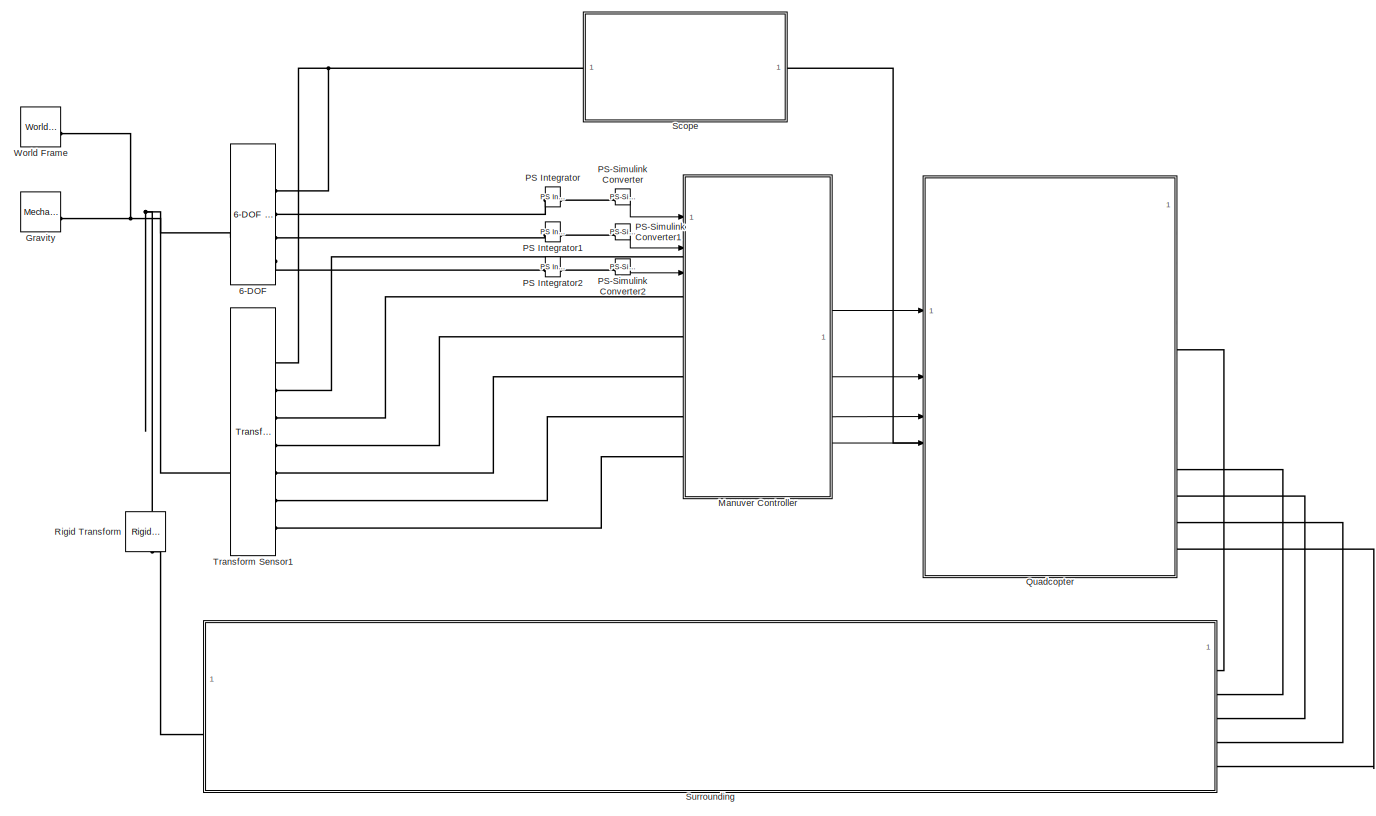
[diagram: root canvas - part 1/1, most of the canvas]
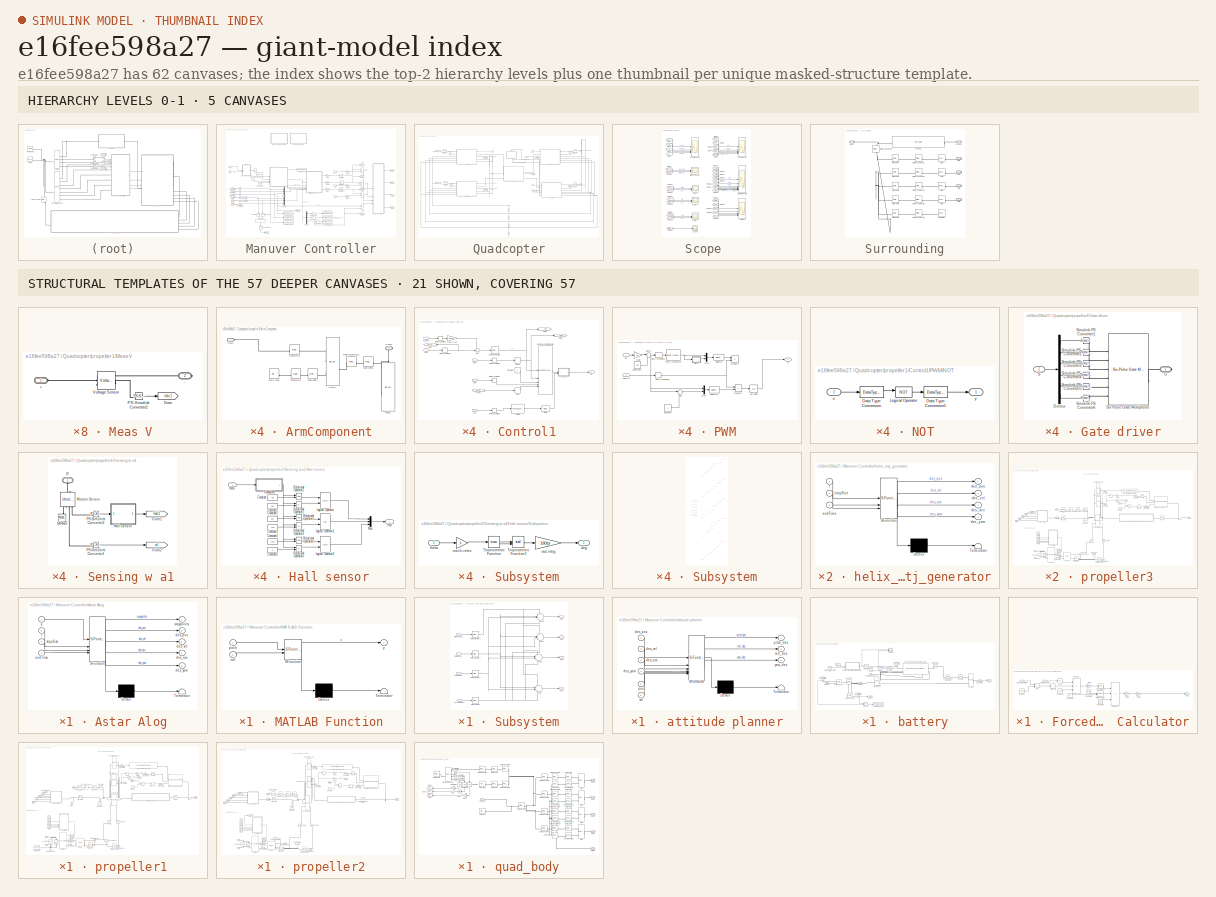
[diagram: thumbnail index - top-2 hierarchy levels (5 canvases) + 21 structural-template representatives of the remaining 57 canvases]
MODEL slx_e16fee598a27
KIND model
CONFIG AbsTol = 1e-4
CONFIG EnableMultiTasking = off
CONFIG FixedStep = auto
CONFIG MaxStep = auto
CONFIG MinStep = auto
CONFIG RelTol = 1e-4
CONFIG SampleTimeConstraint = Unconstrained
CONFIG SolverName = ode4
CONFIG StartFcn = close all;\nrho_cfrp = 6.32;  \nTs = 1e-4;\nTsc = Ts;
CONFIG StartTime = 0.0
CONFIG StopTime = T_stop
BLOCK [Reference] 6-DOF  REF=sm_lib/Joints/6-DOF Joint
  SourceBlock = sm_lib/Joints/6-DOF Joint
  SourceType = 6-DOF Joint
BLOCK [Reference] Gravity  REF=sm_lib/Utilities/Mechanism
Configuration
  SourceBlock = sm_lib/Utilities/Mechanism\nConfiguration
  SourceType = Mechanism\nConfiguration
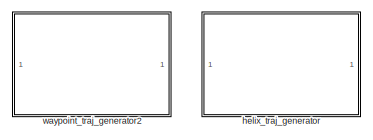
[diagram: Manuver Controller - part 1/3, top center region]
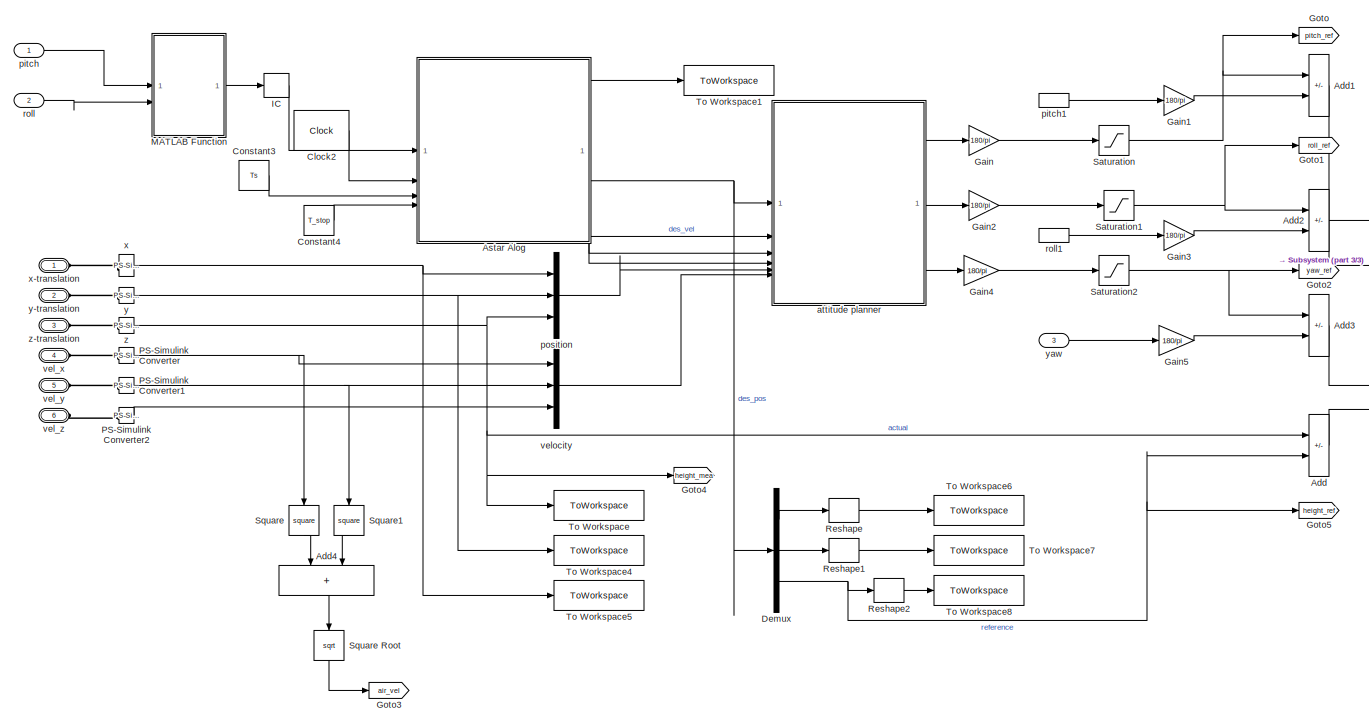
[diagram: Manuver Controller - part 2/3, full width, middle band]
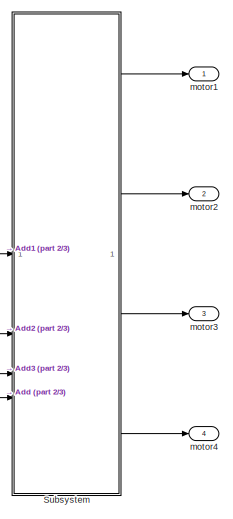
[diagram: Manuver Controller - part 3/3, middle right region]
BLOCK [SubSystem] Manuver Controller
BLOCK [Sum] Manuver Controller/Add
  IconShape = rectangular
  Inputs = -+
BLOCK [Sum] Manuver Controller/Add1
  IconShape = rectangular
  Inputs = +-
BLOCK [Sum] Manuver Controller/Add2
  IconShape = rectangular
  Inputs = +-
BLOCK [Sum] Manuver Controller/Add3
  IconShape = rectangular
  Inputs = +-
BLOCK [Sum] Manuver Controller/Add4
  IconShape = rectangular
  NameLocation = left
BLOCK [SubSystem] Manuver Controller/Astar Alog
  ErrorFcn = Stateflow.Translate.translate
  PermitHierarchicalResolution = ExplicitOnly
  SFBlockType = MATLAB Function
  TreatAsAtomicUnit = on
BLOCK [Demux] Manuver Controller/Astar Alog/ Demux 
  Outputs = 1
BLOCK [S-Function] Manuver Controller/Astar Alog/ SFunction 
  EnableBusSupport = on
  FunctionName = sf_sfun
  PortCounts = [4 6]
  SFcnIsStateOwnerBlock = off
  SFunctionDeploymentMode = off
  Tag = Stateflow S-Function 3
BLOCK [Terminator] Manuver Controller/Astar Alog/ Terminator 
BLOCK [Outport] Manuver Controller/Astar Alog/des_acc
  Port = 4
BLOCK [Outport] Manuver Controller/Astar Alog/des_pos
  Port = 2
BLOCK [Outport] Manuver Controller/Astar Alog/des_vel
  Port = 3
BLOCK [Outport] Manuver Controller/Astar Alog/des_yaw
  Port = 5
BLOCK [Inport] Manuver Controller/Astar Alog/endTime
  Port = 4
BLOCK [Inport] Manuver Controller/Astar Alog/stepSize
  Port = 3
BLOCK [Inport] Manuver Controller/Astar Alog/t
  Port = 2
BLOCK [Outport] Manuver Controller/Astar Alog/waypoints
BLOCK [Inport] Manuver Controller/Astar Alog/y
BLOCK [Clock] Manuver Controller/Clock2
  DisplayTime = on
BLOCK [Constant] Manuver Controller/Constant3
  Value = Ts
BLOCK [Constant] Manuver Controller/Constant4
  Value = T_stop
BLOCK [Demux] Manuver Controller/Demux
  Outputs = 3
BLOCK [Gain] Manuver Controller/Gain
  Gain = 180/pi
BLOCK [Gain] Manuver Controller/Gain1
  Gain = 180/pi
BLOCK [Gain] Manuver Controller/Gain2
  Gain = 180/pi
BLOCK [Gain] Manuver Controller/Gain3
  Gain = 180/pi
BLOCK [Gain] Manuver Controller/Gain4
  Gain = 180/pi
BLOCK [Gain] Manuver Controller/Gain5
  Gain = 180/pi
BLOCK [Goto] Manuver Controller/Goto
  GotoTag = pitch_ref
  TagVisibility = global
BLOCK [Goto] Manuver Controller/Goto1
  GotoTag = roll_ref
  TagVisibility = global
BLOCK [Goto] Manuver Controller/Goto2
  GotoTag = yaw_ref
  TagVisibility = global
BLOCK [Goto] Manuver Controller/Goto3
  GotoTag = air_vel
  TagVisibility = global
BLOCK [Goto] Manuver Controller/Goto4
  GotoTag = height_mea
  TagVisibility = global
BLOCK [Goto] Manuver Controller/Goto5
  GotoTag = height_ref
  TagVisibility = global
BLOCK [InitialCondition] Manuver Controller/IC
  Value = 0
BLOCK [SubSystem] Manuver Controller/MATLAB Function
  ErrorFcn = Stateflow.Translate.translate
  PermitHierarchicalResolution = ExplicitOnly
  SFBlockType = MATLAB Function
  TreatAsAtomicUnit = on
BLOCK [Demux] Manuver Controller/MATLAB Function/ Demux 
  Outputs = 1
BLOCK [S-Function] Manuver Controller/MATLAB Function/ SFunction 
  EnableBusSupport = on
  FunctionName = sf_sfun
  PortCounts = [2 2]
  SFcnIsStateOwnerBlock = off
  SFunctionDeploymentMode = off
  Tag = Stateflow S-Function 5
BLOCK [Terminator] Manuver Controller/MATLAB Function/ Terminator 
BLOCK [Inport] Manuver Controller/MATLAB Function/pitch
BLOCK [Inport] Manuver Controller/MATLAB Function/roll
  Port = 2
BLOCK [Outport] Manuver Controller/MATLAB Function/y
BLOCK [Reference] Manuver Controller/PS-Simulink Converter  REF=nesl_utility/PS-Simulink
Converter
  SourceBlock = nesl_utility/PS-Simulink\nConverter
  SourceType = PS-Simulink\nConverter
BLOCK [Reference] Manuver Controller/PS-Simulink Converter1  REF=nesl_utility/PS-Simulink
Converter
  SourceBlock = nesl_utility/PS-Simulink\nConverter
  SourceType = PS-Simulink\nConverter
BLOCK [Reference] Manuver Controller/PS-Simulink Converter2  REF=nesl_utility/PS-Simulink
Converter
  SourceBlock = nesl_utility/PS-Simulink\nConverter
  SourceType = PS-Simulink\nConverter
BLOCK [Reshape] Manuver Controller/Reshape
BLOCK [Reshape] Manuver Controller/Reshape1
BLOCK [Reshape] Manuver Controller/Reshape2
BLOCK [Saturate] Manuver Controller/Saturation
  LowerLimit = -30
  UpperLimit = 30
BLOCK [Saturate] Manuver Controller/Saturation1
  LowerLimit = -30
  UpperLimit = 30
BLOCK [Saturate] Manuver Controller/Saturation2
  LowerLimit = -30
  UpperLimit = 30
BLOCK [Math] Manuver Controller/Square
  NameLocation = left
  Operator = square
BLOCK [Sqrt] Manuver Controller/Square Root
  NameLocation = left
BLOCK [Math] Manuver Controller/Square1
  NameLocation = left
  Operator = square
BLOCK [SubSystem] Manuver Controller/Subsystem
BLOCK [Sum] Manuver Controller/Subsystem/Add4
  Inputs = +--+
BLOCK [Sum] Manuver Controller/Subsystem/Add5
  Inputs = --++
BLOCK [Sum] Manuver Controller/Subsystem/Add6
  Inputs = -+-+
BLOCK [Sum] Manuver Controller/Subsystem/Add7
  Inputs = ++++
BLOCK [Outport] Manuver Controller/Subsystem/Out1
BLOCK [Outport] Manuver Controller/Subsystem/Out2
  Port = 2
BLOCK [Outport] Manuver Controller/Subsystem/Out3
  Port = 3
BLOCK [Outport] Manuver Controller/Subsystem/Out4
  Port = 4
BLOCK [Reference] Manuver Controller/Subsystem/PID Controller  REF=slpidlib/PID Controller
  SourceBlock = slpidlib/PID Controller
  SourceType = PID 1dof
BLOCK [Reference] Manuver Controller/Subsystem/PID Controller1  REF=slpidlib/PID Controller
  SourceBlock = slpidlib/PID Controller
  SourceType = PID 1dof
BLOCK [Reference] Manuver Controller/Subsystem/PID Controller2  REF=slpidlib/PID Controller
  SourceBlock = slpidlib/PID Controller
  SourceType = PID 1dof
BLOCK [Reference] Manuver Controller/Subsystem/PID Controller3  REF=slpidlib/PID Controller
  SourceBlock = slpidlib/PID Controller
  SourceType = PID 1dof
BLOCK [Inport] Manuver Controller/Subsystem/Pitch Control
BLOCK [Inport] Manuver Controller/Subsystem/Roll Control
  Port = 2
BLOCK [Inport] Manuver Controller/Subsystem/Thrust Control
  Port = 4
BLOCK [Inport] Manuver Controller/Subsystem/Yaw Control
  Port = 3
BLOCK [ToWorkspace] Manuver Controller/To Workspace
  FixptAsFi = on
  MaxDataPoints = inf
  SampleTime = -1
  VariableName = act_z
BLOCK [ToWorkspace] Manuver Controller/To Workspace1
  FixptAsFi = on
  MaxDataPoints = inf
  SampleTime = -1
  VariableName = waypoints
BLOCK [ToWorkspace] Manuver Controller/To Workspace4
  FixptAsFi = on
  MaxDataPoints = inf
  SampleTime = -1
  VariableName = act_y
BLOCK [ToWorkspace] Manuver Controller/To Workspace5
  FixptAsFi = on
  MaxDataPoints = inf
  SampleTime = -1
  VariableName = act_x
BLOCK [ToWorkspace] Manuver Controller/To Workspace6
  MaxDataPoints = inf
  SampleTime = -1
  VariableName = des_x
BLOCK [ToWorkspace] Manuver Controller/To Workspace7
  FixptAsFi = on
  MaxDataPoints = inf
  SampleTime = -1
  VariableName = des_y
BLOCK [ToWorkspace] Manuver Controller/To Workspace8
  FixptAsFi = on
  MaxDataPoints = inf
  SampleTime = -1
  VariableName = des_z
BLOCK [SubSystem] Manuver Controller/attitude planner
  ErrorFcn = Stateflow.Translate.translate
  PermitHierarchicalResolution = ExplicitOnly
  SFBlockType = MATLAB Function
  TreatAsAtomicUnit = on
BLOCK [Demux] Manuver Controller/attitude planner/ Demux 
  Outputs = 1
BLOCK [S-Function] Manuver Controller/attitude planner/ SFunction 
  EnableBusSupport = on
  FunctionName = sf_sfun
  PortCounts = [6 4]
  SFcnIsStateOwnerBlock = off
  SFunctionDeploymentMode = off
  Tag = Stateflow S-Function 1
BLOCK [Terminator] Manuver Controller/attitude planner/ Terminator 
BLOCK [Inport] Manuver Controller/attitude planner/des_acc
  Port = 3
BLOCK [Inport] Manuver Controller/attitude planner/des_pos
BLOCK [Inport] Manuver Controller/attitude planner/des_vel
  Port = 2
BLOCK [Inport] Manuver Controller/attitude planner/des_yaw
  Port = 4
BLOCK [Outport] Manuver Controller/attitude planner/pitch_des
BLOCK [Inport] Manuver Controller/attitude planner/pos
  Port = 5
BLOCK [Outport] Manuver Controller/attitude planner/roll_des
  Port = 2
BLOCK [Inport] Manuver Controller/attitude planner/vel
  Port = 6
BLOCK [Outport] Manuver Controller/attitude planner/yaw_des
  Port = 3
BLOCK [SubSystem] Manuver Controller/helix_traj_generator
  Commented = on
  ErrorFcn = Stateflow.Translate.translate
  PermitHierarchicalResolution = ExplicitOnly
  SFBlockType = MATLAB Function
  TreatAsAtomicUnit = on
BLOCK [Demux] Manuver Controller/helix_traj_generator/ Demux 
  Outputs = 1
BLOCK [S-Function] Manuver Controller/helix_traj_generator/ SFunction 
  EnableBusSupport = on
  FunctionName = sf_sfun
  PortCounts = [3 5]
  SFcnIsStateOwnerBlock = off
  SFunctionDeploymentMode = off
  Tag = Stateflow S-Function 2
BLOCK [Terminator] Manuver Controller/helix_traj_generator/ Terminator 
BLOCK [Outport] Manuver Controller/helix_traj_generator/des_acc
  Port = 3
BLOCK [Outport] Manuver Controller/helix_traj_generator/des_pos
BLOCK [Outport] Manuver Controller/helix_traj_generator/des_vel
  Port = 2
BLOCK [Outport] Manuver Controller/helix_traj_generator/des_yaw
  Port = 4
BLOCK [Inport] Manuver Controller/helix_traj_generator/endTime
  Port = 3
BLOCK [Inport] Manuver Controller/helix_traj_generator/stepSize
  Port = 2
BLOCK [Inport] Manuver Controller/helix_traj_generator/t
BLOCK [Outport] Manuver Controller/motor1
BLOCK [Outport] Manuver Controller/motor2
  Port = 2
BLOCK [Outport] Manuver Controller/motor3
  Port = 3
BLOCK [Outport] Manuver Controller/motor4
  Port = 4
BLOCK [Inport] Manuver Controller/pitch
BLOCK [InportShadow] Manuver Controller/pitch1
BLOCK [Mux] Manuver Controller/position
  DisplayOption = bar
  Inputs = 3
  NameLocation = top
BLOCK [Inport] Manuver Controller/roll
  Port = 2
BLOCK [InportShadow] Manuver Controller/roll1
  Port = 2
BLOCK [PMIOPort] Manuver Controller/vel_x
  Port = 4
  Side = Left
BLOCK [PMIOPort] Manuver Controller/vel_y
  Port = 5
  Side = Left
BLOCK [PMIOPort] Manuver Controller/vel_z
  Port = 6
  Side = Left
BLOCK [Mux] Manuver Controller/velocity
  DisplayOption = bar
  Inputs = 3
BLOCK [SubSystem] Manuver Controller/waypoint_traj_generator2
  Commented = on
  ErrorFcn = Stateflow.Translate.translate
  PermitHierarchicalResolution = ExplicitOnly
  SFBlockType = MATLAB Function
  TreatAsAtomicUnit = on
BLOCK [Demux] Manuver Controller/waypoint_traj_generator2/ Demux 
  Outputs = 1
BLOCK [S-Function] Manuver Controller/waypoint_traj_generator2/ SFunction 
  EnableBusSupport = on
  FunctionName = sf_sfun
  PortCounts = [3 5]
  SFcnIsStateOwnerBlock = off
  SFunctionDeploymentMode = off
  Tag = Stateflow S-Function 4
BLOCK [Terminator] Manuver Controller/waypoint_traj_generator2/ Terminator 
BLOCK [Outport] Manuver Controller/waypoint_traj_generator2/des_acc
  Port = 3
BLOCK [Outport] Manuver Controller/waypoint_traj_generator2/des_pos
BLOCK [Outport] Manuver Controller/waypoint_traj_generator2/des_vel
  Port = 2
BLOCK [Outport] Manuver Controller/waypoint_traj_generator2/des_yaw
  Port = 4
BLOCK [Inport] Manuver Controller/waypoint_traj_generator2/endTime
  Port = 3
BLOCK [Inport] Manuver Controller/waypoint_traj_generator2/stepSize
  Port = 2
BLOCK [Inport] Manuver Controller/waypoint_traj_generator2/t
BLOCK [Reference] Manuver Controller/x  REF=nesl_utility/PS-Simulink
Converter
  SourceBlock = nesl_utility/PS-Simulink\nConverter
  SourceType = PS-Simulink\nConverter
BLOCK [PMIOPort] Manuver Controller/x-translation
  Side = Left
BLOCK [Reference] Manuver Controller/y  REF=nesl_utility/PS-Simulink
Converter
  SourceBlock = nesl_utility/PS-Simulink\nConverter
  SourceType = PS-Simulink\nConverter
BLOCK [PMIOPort] Manuver Controller/y-translation
  Port = 2
  Side = Left
BLOCK [Inport] Manuver Controller/yaw
  Port = 3
BLOCK [Reference] Manuver Controller/z  REF=nesl_utility/PS-Simulink
Converter
  SourceBlock = nesl_utility/PS-Simulink\nConverter
  SourceType = PS-Simulink\nConverter
BLOCK [PMIOPort] Manuver Controller/z-translation
  Port = 3
  Side = Left
BLOCK [Reference] PS Integrator  REF=fl_lib/Physical Signals/Linear Operators/PS Integrator
  SourceBlock = fl_lib/Physical Signals/Linear Operators/PS Integrator
  SourceType = PS Integrator
BLOCK [Reference] PS Integrator1  REF=fl_lib/Physical Signals/Linear Operators/PS Integrator
  SourceBlock = fl_lib/Physical Signals/Linear Operators/PS Integrator
  SourceType = PS Integrator
BLOCK [Reference] PS Integrator2  REF=fl_lib/Physical Signals/Linear Operators/PS Integrator
  SourceBlock = fl_lib/Physical Signals/Linear Operators/PS Integrator
  SourceType = PS Integrator
BLOCK [Reference] PS-Simulink Converter  REF=nesl_utility/PS-Simulink
Converter
  SourceBlock = nesl_utility/PS-Simulink\nConverter
  SourceType = PS-Simulink\nConverter
BLOCK [Reference] PS-Simulink Converter1  REF=nesl_utility/PS-Simulink
Converter
  SourceBlock = nesl_utility/PS-Simulink\nConverter
  SourceType = PS-Simulink\nConverter
BLOCK [Reference] PS-Simulink Converter2  REF=nesl_utility/PS-Simulink
Converter
  SourceBlock = nesl_utility/PS-Simulink\nConverter
  SourceType = PS-Simulink\nConverter
BLOCK [SubSystem] Quadcopter
BLOCK [PMIOPort] Quadcopter/Arm Collision
  Port = 6
  Side = Right
BLOCK [Goto] Quadcopter/Goto
  GotoTag = T2
  TagVisibility = global
BLOCK [Goto] Quadcopter/Goto1
  GotoTag = T4
  TagVisibility = global
BLOCK [Goto] Quadcopter/Goto2
  GotoTag = T1
  TagVisibility = global
BLOCK [Goto] Quadcopter/Goto3
  GotoTag = T3
  TagVisibility = global
BLOCK [PMIOPort] Quadcopter/Landing Support1
  Port = 2
  Side = Right
BLOCK [PMIOPort] Quadcopter/Landing Support2 
  Side = Right
BLOCK [PMIOPort] Quadcopter/Landing Support3
  NameLocation = top
  Port = 5
  Side = Right
BLOCK [PMIOPort] Quadcopter/Landing Support4 
  Port = 4
  Side = Right
BLOCK [Reference] Quadcopter/PS-Simulink Converter  REF=nesl_utility/PS-Simulink
Converter
  SourceBlock = nesl_utility/PS-Simulink\nConverter
  SourceType = PS-Simulink\nConverter
BLOCK [Reference] Quadcopter/PS-Simulink Converter1  REF=nesl_utility/PS-Simulink
Converter
  SourceBlock = nesl_utility/PS-Simulink\nConverter
  SourceType = PS-Simulink\nConverter
BLOCK [Reference] Quadcopter/PS-Simulink Converter2  REF=nesl_utility/PS-Simulink
Converter
  SourceBlock = nesl_utility/PS-Simulink\nConverter
  SourceType = PS-Simulink\nConverter
BLOCK [Reference] Quadcopter/PS-Simulink Converter3  REF=nesl_utility/PS-Simulink
Converter
  SourceBlock = nesl_utility/PS-Simulink\nConverter
  SourceType = PS-Simulink\nConverter
BLOCK [PMIOPort] Quadcopter/Propeller1
  Port = 8
  Side = Right
BLOCK [PMIOPort] Quadcopter/Propeller2
  Port = 7
  Side = Right
BLOCK [PMIOPort] Quadcopter/Propeller3 
  Port = 10
  Side = Right
BLOCK [PMIOPort] Quadcopter/Propeller4
  Port = 9
  Side = Right
BLOCK [Reference] Quadcopter/Spatial Contact Force  REF=sm_lib/Forces and
Torques/Spatial
Contact Force
  SourceBlock = sm_lib/Forces and\nTorques/Spatial\nContact Force
  SourceType = Spatial\nContact Force
BLOCK [Reference] Quadcopter/Spatial Contact Force1  REF=sm_lib/Forces and
Torques/Spatial
Contact Force
  SourceBlock = sm_lib/Forces and\nTorques/Spatial\nContact Force
  SourceType = Spatial\nContact Force
BLOCK [Reference] Quadcopter/Spatial Contact Force2  REF=sm_lib/Forces and
Torques/Spatial
Contact Force
  SourceBlock = sm_lib/Forces and\nTorques/Spatial\nContact Force
  SourceType = Spatial\nContact Force
BLOCK [Reference] Quadcopter/Spatial Contact Force3  REF=sm_lib/Forces and
Torques/Spatial
Contact Force
  SourceBlock = sm_lib/Forces and\nTorques/Spatial\nContact Force
  SourceType = Spatial\nContact Force
BLOCK [PMIOPort] Quadcopter/arm
  Port = 3
  Side = Left
BLOCK [SubSystem] Quadcopter/battery
  NameLocation = left
BLOCK [Constant] Quadcopter/battery/Ambient Temperature
  Value = Temp
BLOCK [Reference] Quadcopter/battery/BATTERY  REF=batteryecm_lib/Battery
  LibrarySourceBlock = ee_lib/Sources/Battery
  NameLocation = top
  SourceBlock = batteryecm_lib/Battery
  SourceType = Battery
BLOCK [Constant] Quadcopter/battery/Constant
  Value = Temp
BLOCK [Reference] Quadcopter/battery/Controlled Temperature Source  REF=fl_lib/Thermal/Thermal Sources/Controlled
Temperature Source
  SourceBlock = fl_lib/Thermal/Thermal Sources/Controlled\nTemperature Source
  SourceType = Controlled\nTemperature Source
BLOCK [SimscapeComponentBlock] Quadcopter/battery/Convective Hear Transfer Calculator
  ClassName = convective
  ComponentPath = convective
  ComponentVariantNames = convective
  ComponentVariants = convective
  CopyFcn = simscape.engine.sli.internal.componentblockcallback(gcbh,'COPY')
  InternalSimscapePortConfiguration = {"Bottom":[],"Left":[{"id":"heat_tr_coeff","label":"heat_tr_coeff","type":"input"},{"id":"A","label":"A","type":"foundation.thermal.thermal"}],"Right":[{"id":"trans","label":"trans rate","type":"output"},{"id":"B","label":"B","type":"foundation.thermal.thermal"}],"Top":[]}
  MaskType = Convective Heat Transfer
  PreCopyFcn = simscape.engine.sli.internal.componentblockcallback(gcbh,'PRECOPY')
  PreDeleteFcn = simscape.engine.sli.internal.componentblockcallback(gcbh,'PREDELETE')
  SchemaVersion = 1
  SourceFile = convective
  area = 0.002044000000000
  area_conf = compiletime
  area_unit = m^2
BLOCK [Reference] Quadcopter/battery/Current Sensor  REF=fl_lib/Electrical/Electrical Sensors/Current Sensor
  SourceBlock = fl_lib/Electrical/Electrical Sensors/Current Sensor
  SourceType = Current Sensor
BLOCK [SubSystem] Quadcopter/battery/Forced Transfer Coeff Calculator
BLOCK [Abs] Quadcopter/battery/Forced Transfer Coeff Calculator/Abs
  SaturateOnIntegerOverflow = off
BLOCK [Sum] Quadcopter/battery/Forced Transfer Coeff Calculator/Add
  IconShape = rectangular
  Inputs = +-
BLOCK [Lookup_n-D] Quadcopter/battery/Forced Transfer Coeff Calculator/Air Density
  BreakpointsForDimension1 = [0:5:35]
  BreakpointsForDimension1FirstPoint = 0
  BreakpointsForDimension1Spacing = 5
  BreakpointsForDimension2 = [ 1 2 3 4 5 6 7 8]
  BreakpointsForDimension2FirstPoint = 10
  BreakpointsForDimension2Spacing = 12
  DiagnosticForOutOfRangeInput = Error
  ExtrapMethod = Cubic spline
  IndexSearchMethod = Linear search
  InputPortMap = u0
  InternalRulePriority = Speed
  InterpMethod = Cubic spline
  LookupTableObject = ''
  NumberOfTableDimensions = 1
  RndMeth = Simplest
  Table = [1.2922 1.269 1.246 1.225 1.2041 1.1839 1.1644 1.1455]
BLOCK [Constant] Quadcopter/battery/Forced Transfer Coeff Calculator/Constant2
  Value = l_bat
BLOCK [Constant] Quadcopter/battery/Forced Transfer Coeff Calculator/Constant3
  Value = pr_air
BLOCK [Constant] Quadcopter/battery/Forced Transfer Coeff Calculator/Constant4
  Value = 1/3
BLOCK [Constant] Quadcopter/battery/Forced Transfer Coeff Calculator/Constant5
  Value = 0.664
BLOCK [Inport] Quadcopter/battery/Forced Transfer Coeff Calculator/Fluid Temperature
  Port = 2
BLOCK [Gain] Quadcopter/battery/Forced Transfer Coeff Calculator/Gain
  Gain = 1/miu_air
BLOCK [Gain] Quadcopter/battery/Forced Transfer Coeff Calculator/Gain1
  Gain = k_air
BLOCK [Gain] Quadcopter/battery/Forced Transfer Coeff Calculator/Gain2
  Gain = 1/l_bat
BLOCK [Math] Quadcopter/battery/Forced Transfer Coeff Calculator/Math Function
  Operator = pow
BLOCK [Outport] Quadcopter/battery/Forced Transfer Coeff Calculator/Out1
BLOCK [Product] Quadcopter/battery/Forced Transfer Coeff Calculator/Product
  Inputs = 3
BLOCK [Product] Quadcopter/battery/Forced Transfer Coeff Calculator/Product1
  Inputs = 3
BLOCK [Sqrt] Quadcopter/battery/Forced Transfer Coeff Calculator/Square Root
BLOCK [Inport] Quadcopter/battery/Forced Transfer Coeff Calculator/stream velocity
BLOCK [Constant] Quadcopter/battery/Forced Transfer Coeff Calculator/to celsius
  Value = 273.15
BLOCK [From] Quadcopter/battery/From
  GotoTag = air_vel
  TagVisibility = global
BLOCK [Goto] Quadcopter/battery/Goto
  GotoTag = battery_temp
  TagVisibility = global
BLOCK [Goto] Quadcopter/battery/Goto4
  GotoTag = battery
  TagVisibility = global
BLOCK [Reference] Quadcopter/battery/PS Add  REF=fl_lib/Physical Signals/Functions/PS Add
  SourceBlock = fl_lib/Physical Signals/Functions/PS Add
  SourceType = PS Add
BLOCK [Reference] Quadcopter/battery/PS Gain  REF=fl_lib/Physical Signals/Functions/PS Gain
  SourceBlock = fl_lib/Physical Signals/Functions/PS Gain
  SourceType = PS Gain
BLOCK [Reference] Quadcopter/battery/PS Integrator  REF=fl_lib/Physical Signals/Linear Operators/PS Integrator
  SourceBlock = fl_lib/Physical Signals/Linear Operators/PS Integrator
  SourceType = PS Integrator
BLOCK [Reference] Quadcopter/battery/PS-Simulink Converter  REF=nesl_utility/PS-Simulink
Converter
  SourceBlock = nesl_utility/PS-Simulink\nConverter
  SourceType = PS-Simulink\nConverter
BLOCK [Reference] Quadcopter/battery/PS-Simulink Converter1  REF=nesl_utility/PS-Simulink
Converter
  SourceBlock = nesl_utility/PS-Simulink\nConverter
  SourceType = PS-Simulink\nConverter
BLOCK [Reference] Quadcopter/battery/PS-Simulink Converter4  REF=nesl_utility/PS-Simulink
Converter
  SourceBlock = nesl_utility/PS-Simulink\nConverter
  SourceType = PS-Simulink\nConverter
BLOCK [Reference] Quadcopter/battery/PSpecific Heat Capacity  REF=fl_lib/Physical Signals/Functions/PS Gain
  SourceBlock = fl_lib/Physical Signals/Functions/PS Gain
  SourceType = PS Gain
BLOCK [Product] Quadcopter/battery/Product
BLOCK [Scope] Quadcopter/battery/Scope1
  Floating = off
  NumInputPorts = 2
  ScopeSpecificationString = Simulink.scopes.TimeScopeBlockCfg('CurrentConfiguration', extmgr.ConfigurationSet(extmgr.Configuration('Core','General UI',true),extmgr.Configuration('Core','Source UI',true),extmgr.Configuration('Sources','WiredSimulink',true,'DataLoggingVariableName','ScopeData3'),extmgr.Configuration('Visuals','Time Domain',true,'SerializedDisplays',{struct('MinYLimReal','-3.32802','MaxYLimReal','29.9522','YLab...<+2054ch>
BLOCK [Reference] Quadcopter/battery/Simulink-PS Converter  REF=nesl_utility/Simulink-PS
Converter
  SourceBlock = nesl_utility/Simulink-PS\nConverter
  SourceType = Simulink-PS\nConverter
BLOCK [Reference] Quadcopter/battery/Simulink-PS Converter1  REF=nesl_utility/Simulink-PS
Converter
  SourceBlock = nesl_utility/Simulink-PS\nConverter
  SourceType = Simulink-PS\nConverter
BLOCK [Reference] Quadcopter/battery/Temperature Sensor  REF=fl_lib/Thermal/Thermal Sensors/Temperature Sensor
  SourceBlock = fl_lib/Thermal/Thermal Sensors/Temperature Sensor
  SourceType = Temperature Sensor
BLOCK [Reference] Quadcopter/battery/Thermal Reference  REF=fl_lib/Thermal/Thermal Elements/Thermal Reference
  SourceBlock = fl_lib/Thermal/Thermal Elements/Thermal Reference
  SourceType = Thermal Reference
BLOCK [ToWorkspace] Quadcopter/battery/To Workspace
  FixptAsFi = on
  MaxDataPoints = inf
  SampleTime = -1
  VariableName = power
BLOCK [UnitDelay] Quadcopter/battery/Unit Delay
  HasFrameUpgradeWarning = on
  SampleTime = -1
BLOCK [Reference] Quadcopter/battery/Voltage Sensor  REF=fl_lib/Electrical/Electrical Sensors/Voltage Sensor
  NameLocation = top
  SourceBlock = fl_lib/Electrical/Electrical Sensors/Voltage Sensor
  SourceType = Voltage Sensor
BLOCK [PMIOPort] Quadcopter/battery/negative
  Port = 2
  Side = Right
BLOCK [PMIOPort] Quadcopter/battery/postive
  Side = Left
BLOCK [Inport] Quadcopter/prop
  Port = 4
BLOCK [Inport] Quadcopter/prop1 
  Port = 2
BLOCK [Inport] Quadcopter/prop2
BLOCK [Inport] Quadcopter/prop4
  Port = 3
BLOCK [SubSystem] Quadcopter/propeller1
BLOCK [PMIOPort] Quadcopter/propeller1/+
  Port = 5
  Side = Left
BLOCK [PMIOPort] Quadcopter/propeller1/-
  Port = 6
  Side = Left
BLOCK [Abs] Quadcopter/propeller1/Abs
  SaturateOnIntegerOverflow = off
BLOCK [Sum] Quadcopter/propeller1/Add
  IconShape = rectangular
  Inputs = +-
BLOCK [Lookup_n-D] Quadcopter/propeller1/Air Density
  BreakpointsForDimension1 = [0:5:50]
  BreakpointsForDimension1FirstPoint = 0
  BreakpointsForDimension1Spacing = 5
  BreakpointsForDimension2 = [ 1 2 3 4 5 6 7 8]
  BreakpointsForDimension2FirstPoint = 10
  BreakpointsForDimension2Spacing = 12
  DiagnosticForOutOfRangeInput = Warning
  ExtrapMethod = Cubic spline
  IndexSearchMethod = Linear search
  InputPortMap = u0
  InternalRulePriority = Speed
  InterpMethod = Cubic spline
  LookupTableObject = ''
  NumberOfTableDimensions = 1
  RndMeth = Simplest
  Table = [1.2922 1.269 1.246 1.225 1.2041 1.1839 1.1644 1.1455 1.127 1.11 1.093]
BLOCK [SubSystem] Quadcopter/propeller1/ArmComponent
  AncestorBlock = test_library/ArmComponent
BLOCK [PMIOPort] Quadcopter/propeller1/ArmComponent/Conn1
  Side = Left
BLOCK [PMIOPort] Quadcopter/propeller1/ArmComponent/Conn2
  Port = 2
  Side = Right
BLOCK [Reference] Quadcopter/propeller1/ArmComponent/Prop1  REF=sm_lib/Body Elements/File Solid
  SourceBlock = sm_lib/Body Elements/File Solid
  SourceType = File Solid
BLOCK [Reference] Quadcopter/propeller1/ArmComponent/Rigid Transform6  REF=sm_lib/Frames and
Transforms/Rigid
Transform
  SourceBlock = sm_lib/Frames and\nTransforms/Rigid\nTransform
  SourceType = Rigid\nTransform
BLOCK [Reference] Quadcopter/propeller1/ArmComponent/Transform2  REF=sm_lib/Frames and
Transforms/Rigid
Transform
  SourceBlock = sm_lib/Frames and\nTransforms/Rigid\nTransform
  SourceType = Rigid\nTransform
BLOCK [Reference] Quadcopter/propeller1/ArmComponent/Transform4  REF=sm_lib/Frames and
Transforms/Rigid
Transform
  SourceBlock = sm_lib/Frames and\nTransforms/Rigid\nTransform
  SourceType = Rigid\nTransform
BLOCK [Reference] Quadcopter/propeller1/ArmComponent/Weld Joint3  REF=sm_lib/Joints/Weld Joint
  SourceBlock = sm_lib/Joints/Weld Joint
  SourceType = Weld Joint
BLOCK [Reference] Quadcopter/propeller1/ArmComponent/Weld Joint5  REF=sm_lib/Joints/Weld Joint
  SourceBlock = sm_lib/Joints/Weld Joint
  SourceType = Weld Joint
BLOCK [Reference] Quadcopter/propeller1/ArmComponent/motor cap1  REF=sm_lib/Body Elements/File Solid
  SourceBlock = sm_lib/Body Elements/File Solid
  SourceType = File Solid
BLOCK [Reference] Quadcopter/propeller1/ArmComponent/motor1  REF=sm_lib/Body Elements/File Solid
  SourceBlock = sm_lib/Body Elements/File Solid
  SourceType = File Solid
BLOCK [Reference] Quadcopter/propeller1/BLDC  REF=ee_lib/Electromechanical/Permanent Magnet/BLDC
  SourceBlock = ee_lib/Electromechanical/Permanent Magnet/BLDC
  SourceType = BLDC
BLOCK [Reference] Quadcopter/propeller1/Capacitor  REF=fl_lib/Electrical/Electrical Elements/Capacitor
  NameLocation = left
  SourceBlock = fl_lib/Electrical/Electrical Elements/Capacitor
  SourceType = Capacitor
BLOCK [Reference] Quadcopter/propeller1/Collision Detector 1-2  REF=sm_lib/Body Elements/Spherical Solid
  NameLocation = top
  SourceBlock = sm_lib/Body Elements/Spherical Solid
  SourceType = Spherical Solid
BLOCK [SubSystem] Quadcopter/propeller1/Control1
  NameLocation = top
BLOCK [Reference] Quadcopter/propeller1/Control1/BLDC Current Controller  REF=eeBldcCurrentController/BLDC Current Controller
  SourceBlock = eeBldcCurrentController/BLDC Current Controller
  SourceType = BLDC Current Controller
BLOCK [Constant] Quadcopter/propeller1/Control1/Constant
  Value = 0
BLOCK [From] Quadcopter/propeller1/Control1/From
  GotoTag = rpm_ref
BLOCK [Goto] Quadcopter/propeller1/Control1/Goto
  GotoTag = rpm_ref
BLOCK [Goto] Quadcopter/propeller1/Control1/Goto1
  GotoTag = i_ref1
  TagVisibility = global
BLOCK [Goto] Quadcopter/propeller1/Control1/Goto2
  GotoTag = i_mea1
  TagVisibility = global
BLOCK [Inport] Quadcopter/propeller1/Control1/Hall
  Port = 3
BLOCK [MinMax] Quadcopter/propeller1/Control1/MinMax
  Function = max
BLOCK [SubSystem] Quadcopter/propeller1/Control1/PWM
BLOCK [Constant] Quadcopter/propeller1/Control1/PWM/Constant
BLOCK [Constant] Quadcopter/propeller1/Control1/PWM/Constant2
  SampleTime = Tsc
  Value = 0.5
BLOCK [Inport] Quadcopter/propeller1/Control1/PWM/DC
BLOCK [Gain] Quadcopter/propeller1/Control1/PWM/Gain
  Gain = 0.5
BLOCK [Mux] Quadcopter/propeller1/Control1/PWM/Mux
  Commented = on
  DisplayOption = bar
  Inputs = 2
BLOCK [Mux] Quadcopter/propeller1/Control1/PWM/Mux1
  DisplayOption = bar
  Inputs = 2
BLOCK [SubSystem] Quadcopter/propeller1/Control1/PWM/NOT
  Commented = on
BLOCK [DataTypeConversion] Quadcopter/propeller1/Control1/PWM/NOT/Data Type Conversion
  RndMeth = Floor
  SaturateOnIntegerOverflow = off
BLOCK [DataTypeConversion] Quadcopter/propeller1/Control1/PWM/NOT/Data Type Conversion1
  RndMeth = Floor
  SaturateOnIntegerOverflow = off
BLOCK [Logic] Quadcopter/propeller1/Control1/PWM/NOT/Logical Operator
  AllPortsSameDT = off
  Operator = NOT
  OutDataTypeStr = boolean
BLOCK [Inport] Quadcopter/propeller1/Control1/PWM/NOT/u
BLOCK [Outport] Quadcopter/propeller1/Control1/PWM/NOT/y
  VectorParamsAs1DForOutWhenUnconnected = off
BLOCK [Reference] Quadcopter/propeller1/Control1/PWM/PWM Generator  REF=eePwmGenerator/PWM Generator
  Commented = on
  SourceBlock = eePwmGenerator/PWM Generator
  SourceType = PWM Generator
BLOCK [Product] Quadcopter/propeller1/Control1/PWM/Product1
  Commented = on
BLOCK [Product] Quadcopter/propeller1/Control1/PWM/Product2
BLOCK [Inport] Quadcopter/propeller1/Control1/PWM/PwmOn
  Port = 2
BLOCK [RateTransition] Quadcopter/propeller1/Control1/PWM/Rate Transition4
  OutPortSampleTime = Ts
BLOCK [RateTransition] Quadcopter/propeller1/Control1/PWM/Rate Transition7
  OutPortSampleTime = Ts
BLOCK [Outport] Quadcopter/propeller1/Control1/PWM/S
  VectorParamsAs1DForOutWhenUnconnected = off
BLOCK [Selector] Quadcopter/propeller1/Control1/PWM/Selector
  Commented = on
  IndexOptions = Index vector (dialog)
  Indices = [1 4 2 5 3 6]
  InputPortWidth = 6
  OutputSizes = 1
BLOCK [Selector] Quadcopter/propeller1/Control1/PWM/Selector1
  IndexOptions = Index vector (dialog)
  Indices = [1 4 2 5 3 6]
  InputPortWidth = 6
  OutputSizes = 1
BLOCK [Sum] Quadcopter/propeller1/Control1/PWM/Sum
  Inputs = |-+
BLOCK [Sum] Quadcopter/propeller1/Control1/PWM/Sum2
  Inputs = |++
BLOCK [UnitDelay] Quadcopter/propeller1/Control1/PWM/Unit Delay
  HasFrameUpgradeWarning = on
  SampleTime = Tsc
BLOCK [RateTransition] Quadcopter/propeller1/Control1/Rate Transition1
BLOCK [RateTransition] Quadcopter/propeller1/Control1/Rate Transition2
  OutPortSampleTime = Tsc
BLOCK [RateTransition] Quadcopter/propeller1/Control1/Rate Transition3
BLOCK [RateTransition] Quadcopter/propeller1/Control1/Rate Transition4
  OutPortSampleTime = Tsc
BLOCK [RateTransition] Quadcopter/propeller1/Control1/Rate Transition5
  OutPortSampleTime = Tsc
BLOCK [Relay] Quadcopter/propeller1/Control1/Relay
  OffSwitchValue = Vdc/4
  OnSwitchValue = Vdc/2
BLOCK [Outport] Quadcopter/propeller1/Control1/S
  VectorParamsAs1DForOutWhenUnconnected = off
BLOCK [Signum] Quadcopter/propeller1/Control1/Sign
BLOCK [Reference] Quadcopter/propeller1/Control1/Speed controller  REF=slpidlib/PID Controller
  SourceBlock = slpidlib/PID Controller
  SourceType = PID 1dof
BLOCK [Sum] Quadcopter/propeller1/Control1/Sum
  Inputs = -+|
BLOCK [Inport] Quadcopter/propeller1/Control1/Vdc
  Port = 5
BLOCK [Reference] Quadcopter/propeller1/Control1/Vdc filter  REF=eeGeneralControl/Low-Pass Filter
(Discrete or Continuous)
  SourceBlock = eeGeneralControl/Low-Pass Filter\n(Discrete or Continuous)
  SourceType = Low-Pass Filter (Discrete or Continuous)
BLOCK [Inport] Quadcopter/propeller1/Control1/iabc
  Port = 4
BLOCK [Gain] Quadcopter/propeller1/Control1/rad//s->rpm
  Gain = 30/pi
BLOCK [Inport] Quadcopter/propeller1/Control1/rpm
BLOCK [Inport] Quadcopter/propeller1/Control1/w_sens
  Port = 2
BLOCK [Reference] Quadcopter/propeller1/ERef Converter  REF=fl_lib/Electrical/Electrical Elements/Electrical Reference
  NameLocation = right
  SourceBlock = fl_lib/Electrical/Electrical Elements/Electrical Reference
  SourceType = Electrical Reference
BLOCK [Reference] Quadcopter/propeller1/ERef IPMSM  REF=fl_lib/Electrical/Electrical Elements/Electrical Reference
  SourceBlock = fl_lib/Electrical/Electrical Elements/Electrical Reference
  SourceType = Electrical Reference
BLOCK [Reference] Quadcopter/propeller1/Environment Parameters  REF=ee_lib/Utilities/Environment
Parameters
  SourceBlock = ee_lib/Utilities/Environment\nParameters
  SourceType = Environment\nParameters
BLOCK [From] Quadcopter/propeller1/From
  GotoTag = battery_temp
  TagVisibility = global
BLOCK [From] Quadcopter/propeller1/From4
  GotoTag = w1
  TagVisibility = global
BLOCK [From] Quadcopter/propeller1/From7
  GotoTag = Hall1
  TagVisibility = global
BLOCK [From] Quadcopter/propeller1/From8
  GotoTag = Vdc1
  TagVisibility = global
BLOCK [From] Quadcopter/propeller1/From9
  GotoTag = iabc1
  TagVisibility = global
BLOCK [Gain] Quadcopter/propeller1/Gain1
  Gain = 30/pi
BLOCK [Gain] Quadcopter/propeller1/Gain2
  Gain = 30/pi
BLOCK [SubSystem] Quadcopter/propeller1/Gate driver
  NameLocation = top
BLOCK [Demux] Quadcopter/propeller1/Gate driver/Demux
  Outputs = 6
BLOCK [PMIOPort] Quadcopter/propeller1/Gate driver/G
  Side = Right
BLOCK [Inport] Quadcopter/propeller1/Gate driver/S
BLOCK [Reference] Quadcopter/propeller1/Gate driver/Simulink-PS Converter1  REF=nesl_utility/Simulink-PS
Converter
  SourceBlock = nesl_utility/Simulink-PS\nConverter
  SourceType = Simulink-PS\nConverter
BLOCK [Reference] Quadcopter/propeller1/Gate driver/Simulink-PS Converter2  REF=nesl_utility/Simulink-PS
Converter
  SourceBlock = nesl_utility/Simulink-PS\nConverter
  SourceType = Simulink-PS\nConverter
BLOCK [Reference] Quadcopter/propeller1/Gate driver/Simulink-PS Converter3  REF=nesl_utility/Simulink-PS
Converter
  SourceBlock = nesl_utility/Simulink-PS\nConverter
  SourceType = Simulink-PS\nConverter
BLOCK [Reference] Quadcopter/propeller1/Gate driver/Simulink-PS Converter4  REF=nesl_utility/Simulink-PS
Converter
  SourceBlock = nesl_utility/Simulink-PS\nConverter
  SourceType = Simulink-PS\nConverter
BLOCK [Reference] Quadcopter/propeller1/Gate driver/Simulink-PS Converter5  REF=nesl_utility/Simulink-PS
Converter
  SourceBlock = nesl_utility/Simulink-PS\nConverter
  SourceType = Simulink-PS\nConverter
BLOCK [Reference] Quadcopter/propeller1/Gate driver/Simulink-PS Converter6  REF=nesl_utility/Simulink-PS
Converter
  SourceBlock = nesl_utility/Simulink-PS\nConverter
  SourceType = Simulink-PS\nConverter
BLOCK [Reference] Quadcopter/propeller1/Gate driver/Six-Pulse Gate Multiplexer  REF=ee_lib/Semiconductors &
Converters/Converters/Six-Pulse Gate
Multiplexer
  SourceBlock = ee_lib/Semiconductors &\nConverters/Converters/Six-Pulse Gate\nMultiplexer
  SourceType = Six-Pulse Gate\nMultiplexer
BLOCK [Reference] Quadcopter/propeller1/Gmin  REF=fl_lib/Electrical/Electrical Elements/Resistor
  SourceBlock = fl_lib/Electrical/Electrical Elements/Resistor
  SourceType = Resistor
BLOCK [Goto] Quadcopter/propeller1/Goto
  GotoTag = rpm1
  TagVisibility = global
BLOCK [Reference] Quadcopter/propeller1/Ideal Angular Velocity Source  REF=fl_lib/Mechanical/Mechanical Sources/Ideal Angular
Velocity Source
  SourceBlock = fl_lib/Mechanical/Mechanical Sources/Ideal Angular\nVelocity Source
  SourceType = Ideal Angular\nVelocity Source
BLOCK [Reference] Quadcopter/propeller1/Ideal Torque Sensor  REF=fl_lib/Mechanical/Mechanical Sensors/Ideal Torque Sensor
  SourceBlock = fl_lib/Mechanical/Mechanical Sensors/Ideal Torque Sensor
  SourceType = Ideal Torque Sensor
BLOCK [Reference] Quadcopter/propeller1/Inverter  REF=ee_lib/Semiconductors &
Converters/Converters/Converter
(Three-Phase)
  SourceBlock = ee_lib/Semiconductors &\nConverters/Converters/Converter\n(Three-Phase)
  SourceType = Converter\n(Three-Phase)
BLOCK [Reference] Quadcopter/propeller1/Landing support1  REF=sm_lib/Body Elements/Brick Solid
  SourceBlock = sm_lib/Body Elements/Brick Solid
  SourceType = Brick Solid
BLOCK [PMIOPort] Quadcopter/propeller1/Leg
  Port = 2
  Side = Right
BLOCK [Reference] Quadcopter/propeller1/MRRef IPMSM1  REF=fl_lib/Mechanical/Rotational Elements/Mechanical
Rotational Reference
  NameLocation = top
  SourceBlock = fl_lib/Mechanical/Rotational Elements/Mechanical\nRotational Reference
  SourceType = Mechanical\nRotational Reference
BLOCK [Reference] Quadcopter/propeller1/MRRef Load  REF=fl_lib/Mechanical/Rotational Elements/Mechanical
Rotational Reference
  NameLocation = top
  SourceBlock = fl_lib/Mechanical/Rotational Elements/Mechanical\nRotational Reference
  SourceType = Mechanical\nRotational Reference
BLOCK [SubSystem] Quadcopter/propeller1/Meas V
  NameLocation = right
BLOCK [PMIOPort] Quadcopter/propeller1/Meas V/+
  Side = Left
BLOCK [PMIOPort] Quadcopter/propeller1/Meas V/-
  Port = 2
  Side = Right
BLOCK [Goto] Quadcopter/propeller1/Meas V/Goto
  GotoTag = Vdc1
  TagVisibility = global
BLOCK [Reference] Quadcopter/propeller1/Meas V/PS-Simulink Converter2  REF=nesl_utility/PS-Simulink
Converter
  SourceBlock = nesl_utility/PS-Simulink\nConverter
  SourceType = PS-Simulink\nConverter
BLOCK [Reference] Quadcopter/propeller1/Meas V/Voltage Sensor  REF=fl_lib/Electrical/Electrical Sensors/Voltage Sensor
  NameLocation = top
  SourceBlock = fl_lib/Electrical/Electrical Sensors/Voltage Sensor
  SourceType = Voltage Sensor
BLOCK [PMIOPort] Quadcopter/propeller1/Motor
  NameLocation = right
  Side = Left
BLOCK [Reference] Quadcopter/propeller1/PS Gain  REF=fl_lib/Physical Signals/Functions/PS Gain
  SourceBlock = fl_lib/Physical Signals/Functions/PS Gain
  SourceType = PS Gain
BLOCK [Reference] Quadcopter/propeller1/PS Gain1  REF=fl_lib/Physical Signals/Functions/PS Gain
  NameLocation = right
  SourceBlock = fl_lib/Physical Signals/Functions/PS Gain
  SourceType = PS Gain
BLOCK [Reference] Quadcopter/propeller1/PS Gain3  REF=fl_lib/Physical Signals/Functions/PS Gain
  NameLocation = left
  SourceBlock = fl_lib/Physical Signals/Functions/PS Gain
  SourceType = PS Gain
BLOCK [Reference] Quadcopter/propeller1/PS-Simulink Converter1  REF=nesl_utility/PS-Simulink
Converter
  SourceBlock = nesl_utility/PS-Simulink\nConverter
  SourceType = PS-Simulink\nConverter
BLOCK [Reference] Quadcopter/propeller1/PS-Simulink Converter2  REF=nesl_utility/PS-Simulink
Converter
  SourceBlock = nesl_utility/PS-Simulink\nConverter
  SourceType = PS-Simulink\nConverter
BLOCK [PMIOPort] Quadcopter/propeller1/Propeller Collision
  NameLocation = top
  Port = 3
  Side = Right
BLOCK [Reference] Quadcopter/propeller1/Revolute Joint1  REF=sm_lib/Joints/Revolute Joint
  SourceBlock = sm_lib/Joints/Revolute Joint
  SourceType = Revolute Joint
BLOCK [SubSystem] Quadcopter/propeller1/Sensing iabc
BLOCK [PMIOPort] Quadcopter/propeller1/Sensing iabc/1
  Side = Left
BLOCK [PMIOPort] Quadcopter/propeller1/Sensing iabc/2
  Port = 2
  Side = Right
BLOCK [Reference] Quadcopter/propeller1/Sensing iabc/Current Sensor  REF=ee_lib/Sensors &
Transducers/Current Sensor
(Three-Phase)
  SourceBlock = ee_lib/Sensors &\nTransducers/Current Sensor\n(Three-Phase)
  SourceType = Current Sensor\n(Three-Phase)
BLOCK [Goto] Quadcopter/propeller1/Sensing iabc/Goto
  GotoTag = iabc1
  TagVisibility = global
BLOCK [Reference] Quadcopter/propeller1/Sensing iabc/PS-Simulink Converter  REF=nesl_utility/PS-Simulink
Converter
  SourceBlock = nesl_utility/PS-Simulink\nConverter
  SourceType = PS-Simulink\nConverter
BLOCK [SubSystem] Quadcopter/propeller1/Sensing w a1
  NameLocation = right
BLOCK [Goto] Quadcopter/propeller1/Sensing w a1/Goto1
  GotoTag = Hall1
  TagVisibility = global
BLOCK [Goto] Quadcopter/propeller1/Sensing w a1/Goto2
  GotoTag = w1
  TagVisibility = global
BLOCK [SubSystem] Quadcopter/propeller1/Sensing w a1/Hall sensor
BLOCK [Constant] Quadcopter/propeller1/Sensing w a1/Hall sensor/Constant
  Value = -60
BLOCK [Constant] Quadcopter/propeller1/Sensing w a1/Hall sensor/Constant1
  Value = 120
BLOCK [Constant] Quadcopter/propeller1/Sensing w a1/Hall sensor/Constant2
  Value = 60
BLOCK [Constant] Quadcopter/propeller1/Sensing w a1/Hall sensor/Constant3
  Value = -120
BLOCK [Constant] Quadcopter/propeller1/Sensing w a1/Hall sensor/Constant4
  Value = -180
BLOCK [Constant] Quadcopter/propeller1/Sensing w a1/Hall sensor/Constant5
  Value = 0
BLOCK [Outport] Quadcopter/propeller1/Sensing w a1/Hall sensor/Hall
  VectorParamsAs1DForOutWhenUnconnected = off
BLOCK [Logic] Quadcopter/propeller1/Sensing w a1/Hall sensor/Logical Operator
  AllPortsSameDT = off
  OutDataTypeStr = boolean
BLOCK [Logic] Quadcopter/propeller1/Sensing w a1/Hall sensor/Logical Operator1
  AllPortsSameDT = off
  Operator = OR
  OutDataTypeStr = boolean
BLOCK [Logic] Quadcopter/propeller1/Sensing w a1/Hall sensor/Logical Operator2
  AllPortsSameDT = off
  OutDataTypeStr = boolean
BLOCK [Mux] Quadcopter/propeller1/Sensing w a1/Hall sensor/Mux
  DisplayOption = bar
  Inputs = 3
BLOCK [RelationalOperator] Quadcopter/propeller1/Sensing w a1/Hall sensor/Relational Operator1
  Operator = <=
BLOCK [RelationalOperator] Quadcopter/propeller1/Sensing w a1/Hall sensor/Relational Operator2
BLOCK [RelationalOperator] Quadcopter/propeller1/Sensing w a1/Hall sensor/Relational Operator3
  Operator = <=
BLOCK [RelationalOperator] Quadcopter/propeller1/Sensing w a1/Hall sensor/Relational Operator4
BLOCK [RelationalOperator] Quadcopter/propeller1/Sensing w a1/Hall sensor/Relational Operator5
  Operator = <=
BLOCK [RelationalOperator] Quadcopter/propeller1/Sensing w a1/Hall sensor/Relational Operator6
BLOCK [SubSystem] Quadcopter/propeller1/Sensing w a1/Hall sensor/Subsystem
BLOCK [Trigonometry] Quadcopter/propeller1/Sensing w a1/Hall sensor/Subsystem/Trigonometric Function
  Operator = sincos
BLOCK [Trigonometry] Quadcopter/propeller1/Sensing w a1/Hall sensor/Subsystem/Trigonometric Function2
  Operator = atan2
BLOCK [Outport] Quadcopter/propeller1/Sensing w a1/Hall sensor/Subsystem/deg
  VectorParamsAs1DForOutWhenUnconnected = off
BLOCK [Gain] Quadcopter/propeller1/Sensing w a1/Hall sensor/Subsystem/mech->elec
  Gain = p
BLOCK [Gain] Quadcopter/propeller1/Sensing w a1/Hall sensor/Subsystem/rad->deg
  Gain = 180/pi
  OutDataTypeStr = Inherit: Same as input
  ParamDataTypeStr = Inherit: Same as input
  SaturateOnIntegerOverflow = on
BLOCK [Inport] Quadcopter/propeller1/Sensing w a1/Hall sensor/Subsystem/theta
BLOCK [Inport] Quadcopter/propeller1/Sensing w a1/Hall sensor/theta
BLOCK [Reference] Quadcopter/propeller1/Sensing w a1/MRRef  REF=fl_lib/Mechanical/Rotational Elements/Mechanical
Rotational Reference
  NameLocation = left
  SourceBlock = fl_lib/Mechanical/Rotational Elements/Mechanical\nRotational Reference
  SourceType = Mechanical\nRotational Reference
BLOCK [Reference] Quadcopter/propeller1/Sensing w a1/Motion Sensor  REF=fl_lib/Mechanical/Mechanical Sensors/Ideal Rotational
Motion Sensor
  NameLocation = right
  SourceBlock = fl_lib/Mechanical/Mechanical Sensors/Ideal Rotational\nMotion Sensor
  SourceType = Ideal Rotational\nMotion Sensor
BLOCK [Reference] Quadcopter/propeller1/Sensing w a1/PS-Simulink Converter1  REF=nesl_utility/PS-Simulink
Converter
  SourceBlock = nesl_utility/PS-Simulink\nConverter
  SourceType = PS-Simulink\nConverter
BLOCK [Reference] Quadcopter/propeller1/Sensing w a1/PS-Simulink Converter2  REF=nesl_utility/PS-Simulink
Converter
  SourceBlock = nesl_utility/PS-Simulink\nConverter
  SourceType = PS-Simulink\nConverter
BLOCK [PMIOPort] Quadcopter/propeller1/Sensing w a1/R
  NameLocation = right
  Side = Left
BLOCK [SimscapeComponentBlock] Quadcopter/propeller1/Simscape Component
  ClassName = PorpellerThrust
  ComponentPath = PorpellerThrust
  ComponentVariantNames = PorpellerThrust
  ComponentVariants = PorpellerThrust
  CopyFcn = simscape.engine.sli.internal.componentblockcallback(gcbh,'COPY')
  D = 0.254
  D_conf = compiletime
  D_unit = m
  InternalSimscapePortConfiguration = {"Bottom":[],"Left":[{"id":"ct","label":"Thrust Coefficient","type":"input"},{"id":"rpm","label":"rpm","type":"input"},{"id":"rho","label":"rho","type":"input"}],"Right":[{"id":"Thrust","label":"Thrust","type":"output"}],"Top":[]}  <repeated x4 — deduplicated; at blocks: Simscape Component, Propeller Thrust Calculator>
  MaskType = Propeller Thrust Characteristic Calculator
  PreCopyFcn = simscape.engine.sli.internal.componentblockcallback(gcbh,'PRECOPY')
  PreDeleteFcn = simscape.engine.sli.internal.componentblockcallback(gcbh,'PREDELETE')
  SchemaVersion = 1
  SourceFile = PorpellerThrust
BLOCK [Reference] Quadcopter/propeller1/Simulink-PS Converter1  REF=nesl_utility/Simulink-PS
Converter
  SourceBlock = nesl_utility/Simulink-PS\nConverter
  SourceType = Simulink-PS\nConverter
BLOCK [Reference] Quadcopter/propeller1/Simulink-PS Converter2  REF=nesl_utility/Simulink-PS
Converter
  SourceBlock = nesl_utility/Simulink-PS\nConverter
  SourceType = Simulink-PS\nConverter
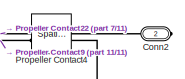
[diagram: Quadcopter/propeller1/Subsystem - part 1/11, top right region]
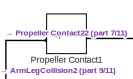
[diagram: Quadcopter/propeller1/Subsystem - part 2/11, top right region]
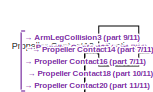
[diagram: Quadcopter/propeller1/Subsystem - part 3/11, top right region]
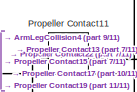
[diagram: Quadcopter/propeller1/Subsystem - part 4/11, top right region]
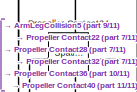
[diagram: Quadcopter/propeller1/Subsystem - part 5/11, top center region]
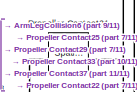
[diagram: Quadcopter/propeller1/Subsystem - part 6/11, top center region]
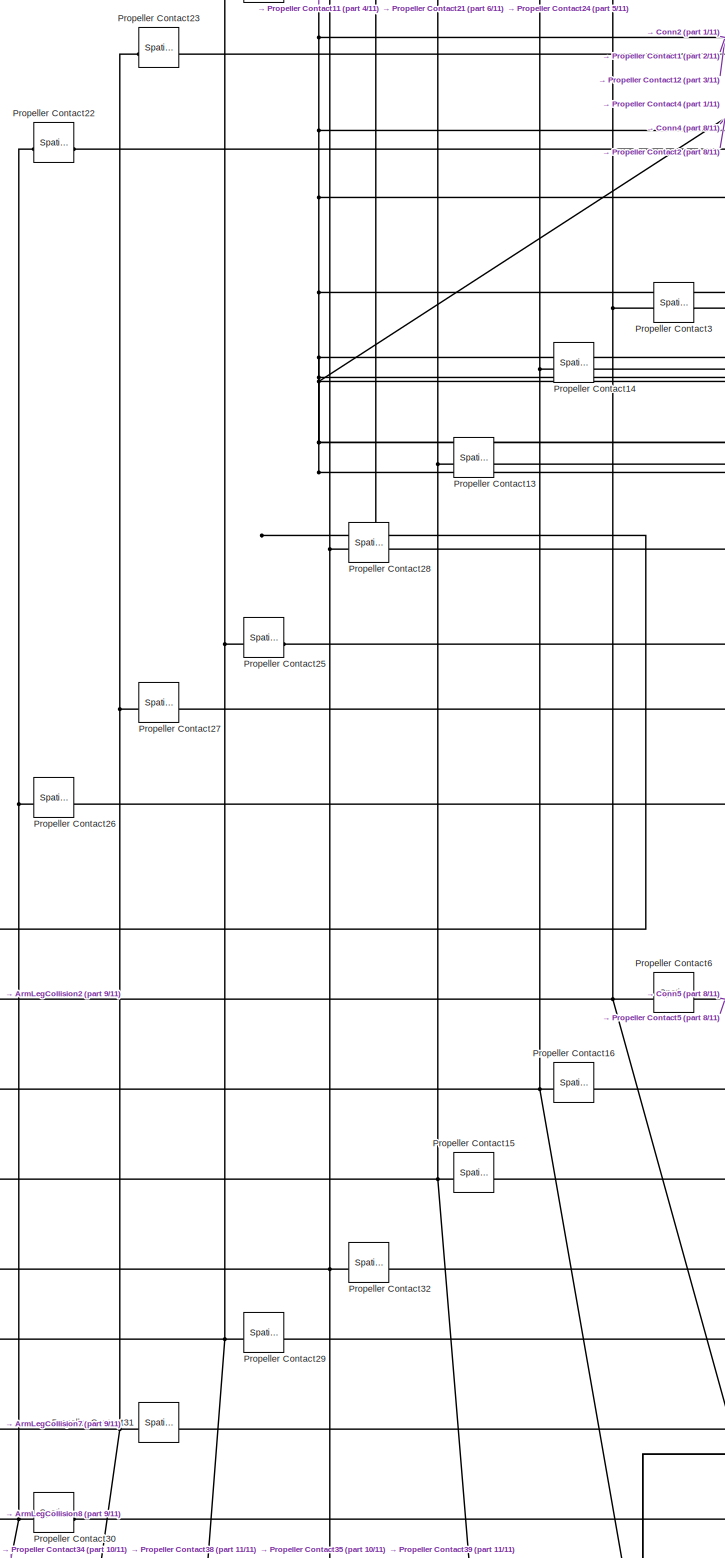
[diagram: Quadcopter/propeller1/Subsystem - part 7/11, central region]
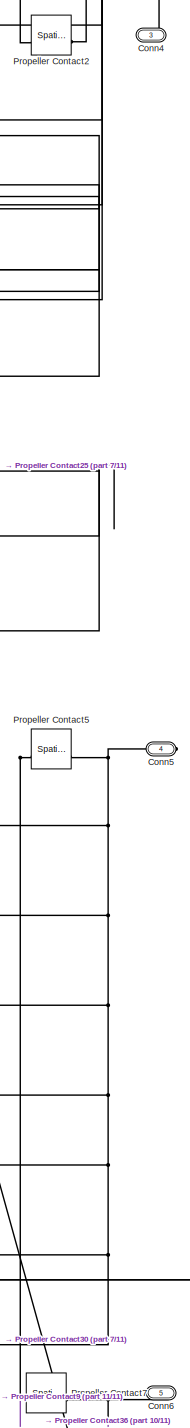
[diagram: Quadcopter/propeller1/Subsystem - part 8/11, middle right region]
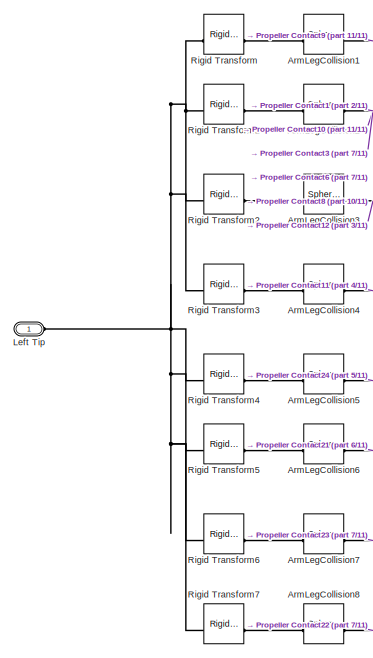
[diagram: Quadcopter/propeller1/Subsystem - part 9/11, middle left region]
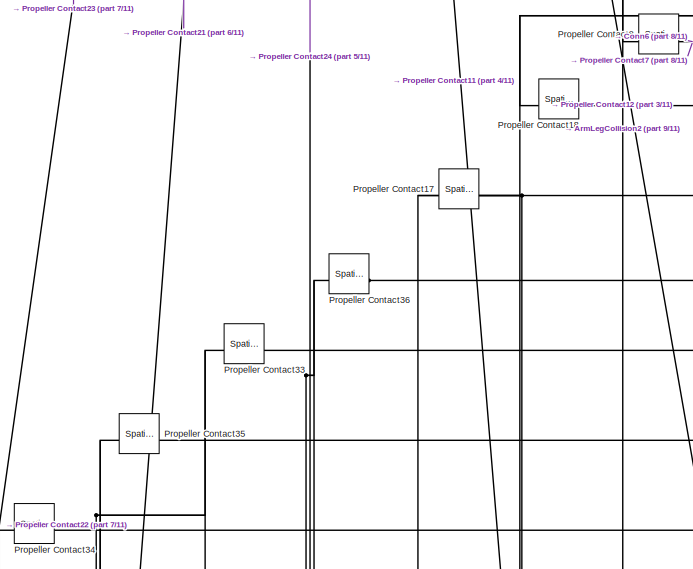
[diagram: Quadcopter/propeller1/Subsystem - part 10/11, central region]
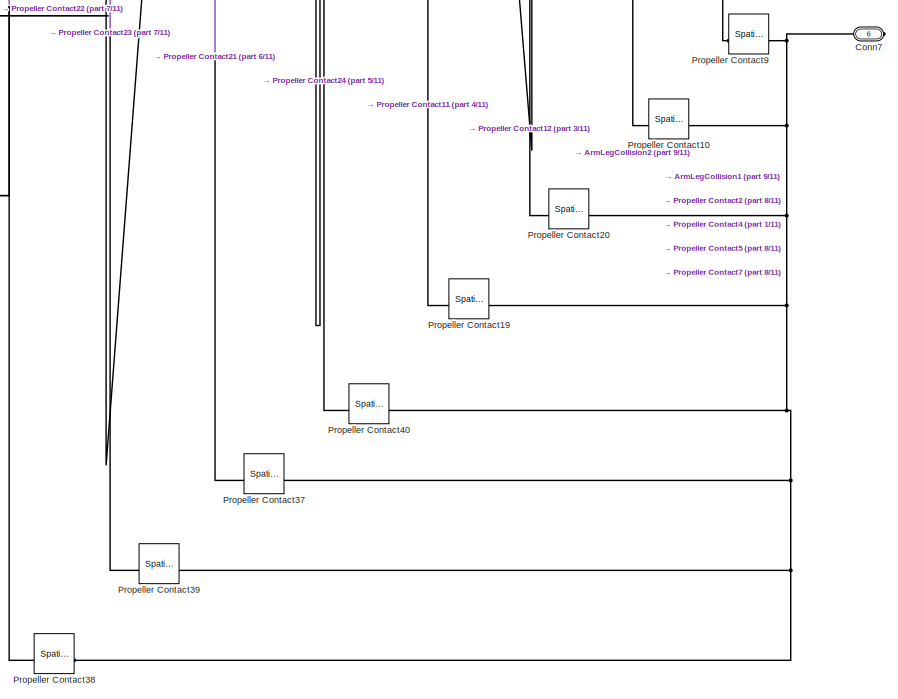
[diagram: Quadcopter/propeller1/Subsystem - part 11/11, bottom center region]
BLOCK [SubSystem] Quadcopter/propeller1/Subsystem
BLOCK [Reference] Quadcopter/propeller1/Subsystem/ArmLegCollision1  REF=sm_lib/Body Elements/Spherical Solid
  SourceBlock = sm_lib/Body Elements/Spherical Solid
  SourceType = Spherical Solid
BLOCK [Reference] Quadcopter/propeller1/Subsystem/ArmLegCollision2  REF=sm_lib/Body Elements/Spherical Solid
  SourceBlock = sm_lib/Body Elements/Spherical Solid
  SourceType = Spherical Solid
BLOCK [Reference] Quadcopter/propeller1/Subsystem/ArmLegCollision3  REF=sm_lib/Body Elements/Spherical Solid
  SourceBlock = sm_lib/Body Elements/Spherical Solid
  SourceType = Spherical Solid
BLOCK [Reference] Quadcopter/propeller1/Subsystem/ArmLegCollision4  REF=sm_lib/Body Elements/Spherical Solid
  SourceBlock = sm_lib/Body Elements/Spherical Solid
  SourceType = Spherical Solid
BLOCK [Reference] Quadcopter/propeller1/Subsystem/ArmLegCollision5  REF=sm_lib/Body Elements/Spherical Solid
  SourceBlock = sm_lib/Body Elements/Spherical Solid
  SourceType = Spherical Solid
BLOCK [Reference] Quadcopter/propeller1/Subsystem/ArmLegCollision6  REF=sm_lib/Body Elements/Spherical Solid
  SourceBlock = sm_lib/Body Elements/Spherical Solid
  SourceType = Spherical Solid
BLOCK [Reference] Quadcopter/propeller1/Subsystem/ArmLegCollision7  REF=sm_lib/Body Elements/Spherical Solid
  SourceBlock = sm_lib/Body Elements/Spherical Solid
  SourceType = Spherical Solid
BLOCK [Reference] Quadcopter/propeller1/Subsystem/ArmLegCollision8  REF=sm_lib/Body Elements/Spherical Solid
  SourceBlock = sm_lib/Body Elements/Spherical Solid
  SourceType = Spherical Solid
BLOCK [PMIOPort] Quadcopter/propeller1/Subsystem/Conn2
  Port = 2
  Side = Right
BLOCK [PMIOPort] Quadcopter/propeller1/Subsystem/Conn4
  Port = 3
  Side = Right
BLOCK [PMIOPort] Quadcopter/propeller1/Subsystem/Conn5
  Port = 4
  Side = Right
BLOCK [PMIOPort] Quadcopter/propeller1/Subsystem/Conn6
  Port = 5
  Side = Right
BLOCK [PMIOPort] Quadcopter/propeller1/Subsystem/Conn7
  Port = 6
  Side = Right
BLOCK [PMIOPort] Quadcopter/propeller1/Subsystem/Left Tip
  Side = Left
BLOCK [Reference] Quadcopter/propeller1/Subsystem/Propeller Contact1  REF=sm_lib/Forces and
Torques/Spatial
Contact Force
  SourceBlock = sm_lib/Forces and\nTorques/Spatial\nContact Force
  SourceType = Spatial\nContact Force
BLOCK [Reference] Quadcopter/propeller1/Subsystem/Propeller Contact10  REF=sm_lib/Forces and
Torques/Spatial
Contact Force
  SourceBlock = sm_lib/Forces and\nTorques/Spatial\nContact Force
  SourceType = Spatial\nContact Force
BLOCK [Reference] Quadcopter/propeller1/Subsystem/Propeller Contact11  REF=sm_lib/Forces and
Torques/Spatial
Contact Force
  SourceBlock = sm_lib/Forces and\nTorques/Spatial\nContact Force
  SourceType = Spatial\nContact Force
BLOCK [Reference] Quadcopter/propeller1/Subsystem/Propeller Contact12  REF=sm_lib/Forces and
Torques/Spatial
Contact Force
  SourceBlock = sm_lib/Forces and\nTorques/Spatial\nContact Force
  SourceType = Spatial\nContact Force
BLOCK [Reference] Quadcopter/propeller1/Subsystem/Propeller Contact13  REF=sm_lib/Forces and
Torques/Spatial
Contact Force
  SourceBlock = sm_lib/Forces and\nTorques/Spatial\nContact Force
  SourceType = Spatial\nContact Force
BLOCK [Reference] Quadcopter/propeller1/Subsystem/Propeller Contact14  REF=sm_lib/Forces and
Torques/Spatial
Contact Force
  SourceBlock = sm_lib/Forces and\nTorques/Spatial\nContact Force
  SourceType = Spatial\nContact Force
BLOCK [Reference] Quadcopter/propeller1/Subsystem/Propeller Contact15  REF=sm_lib/Forces and
Torques/Spatial
Contact Force
  SourceBlock = sm_lib/Forces and\nTorques/Spatial\nContact Force
  SourceType = Spatial\nContact Force
BLOCK [Reference] Quadcopter/propeller1/Subsystem/Propeller Contact16  REF=sm_lib/Forces and
Torques/Spatial
Contact Force
  SourceBlock = sm_lib/Forces and\nTorques/Spatial\nContact Force
  SourceType = Spatial\nContact Force
BLOCK [Reference] Quadcopter/propeller1/Subsystem/Propeller Contact17  REF=sm_lib/Forces and
Torques/Spatial
Contact Force
  SourceBlock = sm_lib/Forces and\nTorques/Spatial\nContact Force
  SourceType = Spatial\nContact Force
BLOCK [Reference] Quadcopter/propeller1/Subsystem/Propeller Contact18  REF=sm_lib/Forces and
Torques/Spatial
Contact Force
  SourceBlock = sm_lib/Forces and\nTorques/Spatial\nContact Force
  SourceType = Spatial\nContact Force
BLOCK [Reference] Quadcopter/propeller1/Subsystem/Propeller Contact19  REF=sm_lib/Forces and
Torques/Spatial
Contact Force
  SourceBlock = sm_lib/Forces and\nTorques/Spatial\nContact Force
  SourceType = Spatial\nContact Force
BLOCK [Reference] Quadcopter/propeller1/Subsystem/Propeller Contact2  REF=sm_lib/Forces and
Torques/Spatial
Contact Force
  SourceBlock = sm_lib/Forces and\nTorques/Spatial\nContact Force
  SourceType = Spatial\nContact Force
BLOCK [Reference] Quadcopter/propeller1/Subsystem/Propeller Contact20  REF=sm_lib/Forces and
Torques/Spatial
Contact Force
  SourceBlock = sm_lib/Forces and\nTorques/Spatial\nContact Force
  SourceType = Spatial\nContact Force
BLOCK [Reference] Quadcopter/propeller1/Subsystem/Propeller Contact21  REF=sm_lib/Forces and
Torques/Spatial
Contact Force
  SourceBlock = sm_lib/Forces and\nTorques/Spatial\nContact Force
  SourceType = Spatial\nContact Force
BLOCK [Reference] Quadcopter/propeller1/Subsystem/Propeller Contact22  REF=sm_lib/Forces and
Torques/Spatial
Contact Force
  SourceBlock = sm_lib/Forces and\nTorques/Spatial\nContact Force
  SourceType = Spatial\nContact Force
BLOCK [Reference] Quadcopter/propeller1/Subsystem/Propeller Contact23  REF=sm_lib/Forces and
Torques/Spatial
Contact Force
  SourceBlock = sm_lib/Forces and\nTorques/Spatial\nContact Force
  SourceType = Spatial\nContact Force
BLOCK [Reference] Quadcopter/propeller1/Subsystem/Propeller Contact24  REF=sm_lib/Forces and
Torques/Spatial
Contact Force
  SourceBlock = sm_lib/Forces and\nTorques/Spatial\nContact Force
  SourceType = Spatial\nContact Force
BLOCK [Reference] Quadcopter/propeller1/Subsystem/Propeller Contact25  REF=sm_lib/Forces and
Torques/Spatial
Contact Force
  SourceBlock = sm_lib/Forces and\nTorques/Spatial\nContact Force
  SourceType = Spatial\nContact Force
BLOCK [Reference] Quadcopter/propeller1/Subsystem/Propeller Contact26  REF=sm_lib/Forces and
Torques/Spatial
Contact Force
  SourceBlock = sm_lib/Forces and\nTorques/Spatial\nContact Force
  SourceType = Spatial\nContact Force
BLOCK [Reference] Quadcopter/propeller1/Subsystem/Propeller Contact27  REF=sm_lib/Forces and
Torques/Spatial
Contact Force
  SourceBlock = sm_lib/Forces and\nTorques/Spatial\nContact Force
  SourceType = Spatial\nContact Force
BLOCK [Reference] Quadcopter/propeller1/Subsystem/Propeller Contact28  REF=sm_lib/Forces and
Torques/Spatial
Contact Force
  SourceBlock = sm_lib/Forces and\nTorques/Spatial\nContact Force
  SourceType = Spatial\nContact Force
BLOCK [Reference] Quadcopter/propeller1/Subsystem/Propeller Contact29  REF=sm_lib/Forces and
Torques/Spatial
Contact Force
  SourceBlock = sm_lib/Forces and\nTorques/Spatial\nContact Force
  SourceType = Spatial\nContact Force
BLOCK [Reference] Quadcopter/propeller1/Subsystem/Propeller Contact3  REF=sm_lib/Forces and
Torques/Spatial
Contact Force
  SourceBlock = sm_lib/Forces and\nTorques/Spatial\nContact Force
  SourceType = Spatial\nContact Force
BLOCK [Reference] Quadcopter/propeller1/Subsystem/Propeller Contact30  REF=sm_lib/Forces and
Torques/Spatial
Contact Force
  SourceBlock = sm_lib/Forces and\nTorques/Spatial\nContact Force
  SourceType = Spatial\nContact Force
BLOCK [Reference] Quadcopter/propeller1/Subsystem/Propeller Contact31  REF=sm_lib/Forces and
Torques/Spatial
Contact Force
  SourceBlock = sm_lib/Forces and\nTorques/Spatial\nContact Force
  SourceType = Spatial\nContact Force
BLOCK [Reference] Quadcopter/propeller1/Subsystem/Propeller Contact32  REF=sm_lib/Forces and
Torques/Spatial
Contact Force
  SourceBlock = sm_lib/Forces and\nTorques/Spatial\nContact Force
  SourceType = Spatial\nContact Force
BLOCK [Reference] Quadcopter/propeller1/Subsystem/Propeller Contact33  REF=sm_lib/Forces and
Torques/Spatial
Contact Force
  SourceBlock = sm_lib/Forces and\nTorques/Spatial\nContact Force
  SourceType = Spatial\nContact Force
BLOCK [Reference] Quadcopter/propeller1/Subsystem/Propeller Contact34  REF=sm_lib/Forces and
Torques/Spatial
Contact Force
  SourceBlock = sm_lib/Forces and\nTorques/Spatial\nContact Force
  SourceType = Spatial\nContact Force
BLOCK [Reference] Quadcopter/propeller1/Subsystem/Propeller Contact35  REF=sm_lib/Forces and
Torques/Spatial
Contact Force
  SourceBlock = sm_lib/Forces and\nTorques/Spatial\nContact Force
  SourceType = Spatial\nContact Force
BLOCK [Reference] Quadcopter/propeller1/Subsystem/Propeller Contact36  REF=sm_lib/Forces and
Torques/Spatial
Contact Force
  SourceBlock = sm_lib/Forces and\nTorques/Spatial\nContact Force
  SourceType = Spatial\nContact Force
BLOCK [Reference] Quadcopter/propeller1/Subsystem/Propeller Contact37  REF=sm_lib/Forces and
Torques/Spatial
Contact Force
  SourceBlock = sm_lib/Forces and\nTorques/Spatial\nContact Force
  SourceType = Spatial\nContact Force
BLOCK [Reference] Quadcopter/propeller1/Subsystem/Propeller Contact38  REF=sm_lib/Forces and
Torques/Spatial
Contact Force
  SourceBlock = sm_lib/Forces and\nTorques/Spatial\nContact Force
  SourceType = Spatial\nContact Force
BLOCK [Reference] Quadcopter/propeller1/Subsystem/Propeller Contact39  REF=sm_lib/Forces and
Torques/Spatial
Contact Force
  SourceBlock = sm_lib/Forces and\nTorques/Spatial\nContact Force
  SourceType = Spatial\nContact Force
BLOCK [Reference] Quadcopter/propeller1/Subsystem/Propeller Contact4  REF=sm_lib/Forces and
Torques/Spatial
Contact Force
  SourceBlock = sm_lib/Forces and\nTorques/Spatial\nContact Force
  SourceType = Spatial\nContact Force
BLOCK [Reference] Quadcopter/propeller1/Subsystem/Propeller Contact40  REF=sm_lib/Forces and
Torques/Spatial
Contact Force
  SourceBlock = sm_lib/Forces and\nTorques/Spatial\nContact Force
  SourceType = Spatial\nContact Force
BLOCK [Reference] Quadcopter/propeller1/Subsystem/Propeller Contact5  REF=sm_lib/Forces and
Torques/Spatial
Contact Force
  SourceBlock = sm_lib/Forces and\nTorques/Spatial\nContact Force
  SourceType = Spatial\nContact Force
BLOCK [Reference] Quadcopter/propeller1/Subsystem/Propeller Contact6  REF=sm_lib/Forces and
Torques/Spatial
Contact Force
  SourceBlock = sm_lib/Forces and\nTorques/Spatial\nContact Force
  SourceType = Spatial\nContact Force
BLOCK [Reference] Quadcopter/propeller1/Subsystem/Propeller Contact7  REF=sm_lib/Forces and
Torques/Spatial
Contact Force
  SourceBlock = sm_lib/Forces and\nTorques/Spatial\nContact Force
  SourceType = Spatial\nContact Force
BLOCK [Reference] Quadcopter/propeller1/Subsystem/Propeller Contact8  REF=sm_lib/Forces and
Torques/Spatial
Contact Force
  SourceBlock = sm_lib/Forces and\nTorques/Spatial\nContact Force
  SourceType = Spatial\nContact Force
BLOCK [Reference] Quadcopter/propeller1/Subsystem/Propeller Contact9  REF=sm_lib/Forces and
Torques/Spatial
Contact Force
  SourceBlock = sm_lib/Forces and\nTorques/Spatial\nContact Force
  SourceType = Spatial\nContact Force
BLOCK [Reference] Quadcopter/propeller1/Subsystem/Rigid Transform  REF=sm_lib/Frames and
Transforms/Rigid
Transform
  SourceBlock = sm_lib/Frames and\nTransforms/Rigid\nTransform
  SourceType = Rigid\nTransform
BLOCK [Reference] Quadcopter/propeller1/Subsystem/Rigid Transform1  REF=sm_lib/Frames and
Transforms/Rigid
Transform
  SourceBlock = sm_lib/Frames and\nTransforms/Rigid\nTransform
  SourceType = Rigid\nTransform
BLOCK [Reference] Quadcopter/propeller1/Subsystem/Rigid Transform2  REF=sm_lib/Frames and
Transforms/Rigid
Transform
  SourceBlock = sm_lib/Frames and\nTransforms/Rigid\nTransform
  SourceType = Rigid\nTransform
BLOCK [Reference] Quadcopter/propeller1/Subsystem/Rigid Transform3  REF=sm_lib/Frames and
Transforms/Rigid
Transform
  SourceBlock = sm_lib/Frames and\nTransforms/Rigid\nTransform
  SourceType = Rigid\nTransform
BLOCK [Reference] Quadcopter/propeller1/Subsystem/Rigid Transform4  REF=sm_lib/Frames and
Transforms/Rigid
Transform
  SourceBlock = sm_lib/Frames and\nTransforms/Rigid\nTransform
  SourceType = Rigid\nTransform
BLOCK [Reference] Quadcopter/propeller1/Subsystem/Rigid Transform5  REF=sm_lib/Frames and
Transforms/Rigid
Transform
  SourceBlock = sm_lib/Frames and\nTransforms/Rigid\nTransform
  SourceType = Rigid\nTransform
BLOCK [Reference] Quadcopter/propeller1/Subsystem/Rigid Transform6  REF=sm_lib/Frames and
Transforms/Rigid
Transform
  SourceBlock = sm_lib/Frames and\nTransforms/Rigid\nTransform
  SourceType = Rigid\nTransform
BLOCK [Reference] Quadcopter/propeller1/Subsystem/Rigid Transform7  REF=sm_lib/Frames and
Transforms/Rigid
Transform
  SourceBlock = sm_lib/Frames and\nTransforms/Rigid\nTransform
  SourceType = Rigid\nTransform
BLOCK [Reference] Quadcopter/propeller1/Thrust  REF=sm_lib/Forces and
Torques/External Force
and Torque
  SourceBlock = sm_lib/Forces and\nTorques/External Force\nand Torque
  SourceType = External Force\nand Torque
BLOCK [Reference] Quadcopter/propeller1/Thrust Coefficient Calculator  REF=test_library/Thrust Coefficient Calculator  (lib defined in slx_4c4a53204023)
  SourceBlock = test_library/Thrust Coefficient Calculator
  SourceType = SubSystem
BLOCK [PMIOPort] Quadcopter/propeller1/Thrust2 
  Port = 4
  Side = Left
BLOCK [Reference] Quadcopter/propeller1/Transform Sensor  REF=sm_lib/Frames and
Transforms/Transform
Sensor
  SourceBlock = sm_lib/Frames and\nTransforms/Transform\nSensor
  SourceType = Transform\nSensor
BLOCK [Reference] Quadcopter/propeller1/Transform Sensor1  REF=sm_lib/Frames and
Transforms/Transform
Sensor
  SourceBlock = sm_lib/Frames and\nTransforms/Transform\nSensor
  SourceType = Transform\nSensor
BLOCK [Reference] Quadcopter/propeller1/Transform1  REF=sm_lib/Frames and
Transforms/Rigid
Transform
  SourceBlock = sm_lib/Frames and\nTransforms/Rigid\nTransform
  SourceType = Rigid\nTransform
BLOCK [Reference] Quadcopter/propeller1/Transform3  REF=sm_lib/Frames and
Transforms/Rigid
Transform
  SourceBlock = sm_lib/Frames and\nTransforms/Rigid\nTransform
  SourceType = Rigid\nTransform
BLOCK [PMIOPort] Quadcopter/propeller1/Wall1
  Port = 7
  Side = Right
BLOCK [PMIOPort] Quadcopter/propeller1/Wall2
  Port = 8
  Side = Right
BLOCK [PMIOPort] Quadcopter/propeller1/Wall3
  Port = 9
  Side = Right
BLOCK [PMIOPort] Quadcopter/propeller1/Wall4
  Port = 10
  Side = Right
BLOCK [Reference] Quadcopter/propeller1/Weld Joint2  REF=sm_lib/Joints/Weld Joint
  SourceBlock = sm_lib/Joints/Weld Joint
  SourceType = Weld Joint
BLOCK [Reference] Quadcopter/propeller1/motor base  REF=sm_lib/Body Elements/Cylindrical Solid
  NameLocation = right
  SourceBlock = sm_lib/Body Elements/Cylindrical Solid
  SourceType = Cylindrical Solid
BLOCK [Inport] Quadcopter/propeller1/rpm
BLOCK [Constant] Quadcopter/propeller1/to celsius
  Value = 273.15
BLOCK [SubSystem] Quadcopter/propeller2
BLOCK [PMIOPort] Quadcopter/propeller2/+
  Port = 5
  Side = Left
BLOCK [PMIOPort] Quadcopter/propeller2/-
  Port = 6
  Side = Left
BLOCK [Abs] Quadcopter/propeller2/Abs
  SaturateOnIntegerOverflow = off
BLOCK [Sum] Quadcopter/propeller2/Add
  IconShape = rectangular
  Inputs = +-
BLOCK [Lookup_n-D] Quadcopter/propeller2/Air Density
  BreakpointsForDimension1 = [0:5:50]
  BreakpointsForDimension1FirstPoint = 0
  BreakpointsForDimension1Spacing = 5
  BreakpointsForDimension2 = [ 1 2 3 4 5 6 7 8]
  BreakpointsForDimension2FirstPoint = 10
  BreakpointsForDimension2Spacing = 12
  DiagnosticForOutOfRangeInput = Warning
  ExtrapMethod = Cubic spline
  IndexSearchMethod = Linear search
  InputPortMap = u0
  InternalRulePriority = Speed
  InterpMethod = Cubic spline
  LookupTableObject = ''
  NumberOfTableDimensions = 1
  RndMeth = Simplest
  Table = [1.2922 1.269 1.246 1.225 1.2041 1.1839 1.1644 1.1455 1.127 1.11 1.093]
BLOCK [SubSystem] Quadcopter/propeller2/ArmComponent
  AncestorBlock = test_library/ArmComponent
BLOCK [PMIOPort] Quadcopter/propeller2/ArmComponent/Conn1
  Side = Left
BLOCK [PMIOPort] Quadcopter/propeller2/ArmComponent/Conn2
  Port = 2
  Side = Right
BLOCK [Reference] Quadcopter/propeller2/ArmComponent/Prop1  REF=sm_lib/Body Elements/File Solid
  SourceBlock = sm_lib/Body Elements/File Solid
  SourceType = File Solid
BLOCK [Reference] Quadcopter/propeller2/ArmComponent/Rigid Transform6  REF=sm_lib/Frames and
Transforms/Rigid
Transform
  SourceBlock = sm_lib/Frames and\nTransforms/Rigid\nTransform
  SourceType = Rigid\nTransform
BLOCK [Reference] Quadcopter/propeller2/ArmComponent/Transform2  REF=sm_lib/Frames and
Transforms/Rigid
Transform
  SourceBlock = sm_lib/Frames and\nTransforms/Rigid\nTransform
  SourceType = Rigid\nTransform
BLOCK [Reference] Quadcopter/propeller2/ArmComponent/Transform4  REF=sm_lib/Frames and
Transforms/Rigid
Transform
  SourceBlock = sm_lib/Frames and\nTransforms/Rigid\nTransform
  SourceType = Rigid\nTransform
BLOCK [Reference] Quadcopter/propeller2/ArmComponent/Weld Joint3  REF=sm_lib/Joints/Weld Joint
  SourceBlock = sm_lib/Joints/Weld Joint
  SourceType = Weld Joint
BLOCK [Reference] Quadcopter/propeller2/ArmComponent/Weld Joint5  REF=sm_lib/Joints/Weld Joint
  SourceBlock = sm_lib/Joints/Weld Joint
  SourceType = Weld Joint
BLOCK [Reference] Quadcopter/propeller2/ArmComponent/motor cap1  REF=sm_lib/Body Elements/File Solid
  SourceBlock = sm_lib/Body Elements/File Solid
  SourceType = File Solid
BLOCK [Reference] Quadcopter/propeller2/ArmComponent/motor1  REF=sm_lib/Body Elements/File Solid
  SourceBlock = sm_lib/Body Elements/File Solid
  SourceType = File Solid
BLOCK [Reference] Quadcopter/propeller2/BLDC  REF=ee_lib/Electromechanical/Permanent Magnet/BLDC
  SourceBlock = ee_lib/Electromechanical/Permanent Magnet/BLDC
  SourceType = BLDC
BLOCK [Reference] Quadcopter/propeller2/Capacitor  REF=fl_lib/Electrical/Electrical Elements/Capacitor
  NameLocation = left
  SourceBlock = fl_lib/Electrical/Electrical Elements/Capacitor
  SourceType = Capacitor
BLOCK [Reference] Quadcopter/propeller2/Collision Detector 2-1  REF=sm_lib/Body Elements/Spherical Solid
  NameLocation = top
  SourceBlock = sm_lib/Body Elements/Spherical Solid
  SourceType = Spherical Solid
BLOCK [SubSystem] Quadcopter/propeller2/Control2
  NameLocation = top
BLOCK [Reference] Quadcopter/propeller2/Control2/BLDC Current Controller  REF=eeBldcCurrentController/BLDC Current Controller
  SourceBlock = eeBldcCurrentController/BLDC Current Controller
  SourceType = BLDC Current Controller
BLOCK [Constant] Quadcopter/propeller2/Control2/Constant
  Value = 0
BLOCK [From] Quadcopter/propeller2/Control2/From
  GotoTag = rpm_ref
BLOCK [Goto] Quadcopter/propeller2/Control2/Goto
  GotoTag = rpm_ref
BLOCK [Goto] Quadcopter/propeller2/Control2/Goto1
  GotoTag = i_ref2
  TagVisibility = global
BLOCK [Goto] Quadcopter/propeller2/Control2/Goto2
  GotoTag = i_mea2
  TagVisibility = global
BLOCK [Inport] Quadcopter/propeller2/Control2/Hall
  Port = 3
BLOCK [MinMax] Quadcopter/propeller2/Control2/MinMax
  Function = max
BLOCK [SubSystem] Quadcopter/propeller2/Control2/PWM
BLOCK [Constant] Quadcopter/propeller2/Control2/PWM/Constant
BLOCK [Constant] Quadcopter/propeller2/Control2/PWM/Constant2
  SampleTime = Tsc
  Value = 0.5
BLOCK [Inport] Quadcopter/propeller2/Control2/PWM/DC
BLOCK [Gain] Quadcopter/propeller2/Control2/PWM/Gain
  Gain = 0.5
BLOCK [Mux] Quadcopter/propeller2/Control2/PWM/Mux
  Commented = on
  DisplayOption = bar
  Inputs = 2
BLOCK [Mux] Quadcopter/propeller2/Control2/PWM/Mux1
  DisplayOption = bar
  Inputs = 2
BLOCK [SubSystem] Quadcopter/propeller2/Control2/PWM/NOT
  Commented = on
BLOCK [DataTypeConversion] Quadcopter/propeller2/Control2/PWM/NOT/Data Type Conversion
  RndMeth = Floor
  SaturateOnIntegerOverflow = off
BLOCK [DataTypeConversion] Quadcopter/propeller2/Control2/PWM/NOT/Data Type Conversion1
  RndMeth = Floor
  SaturateOnIntegerOverflow = off
BLOCK [Logic] Quadcopter/propeller2/Control2/PWM/NOT/Logical Operator
  AllPortsSameDT = off
  Operator = NOT
  OutDataTypeStr = boolean
BLOCK [Inport] Quadcopter/propeller2/Control2/PWM/NOT/u
BLOCK [Outport] Quadcopter/propeller2/Control2/PWM/NOT/y
  VectorParamsAs1DForOutWhenUnconnected = off
BLOCK [Reference] Quadcopter/propeller2/Control2/PWM/PWM Generator  REF=eePwmGenerator/PWM Generator
  Commented = on
  SourceBlock = eePwmGenerator/PWM Generator
  SourceType = PWM Generator
BLOCK [Product] Quadcopter/propeller2/Control2/PWM/Product1
  Commented = on
BLOCK [Product] Quadcopter/propeller2/Control2/PWM/Product2
BLOCK [Inport] Quadcopter/propeller2/Control2/PWM/PwmOn
  Port = 2
BLOCK [RateTransition] Quadcopter/propeller2/Control2/PWM/Rate Transition4
  OutPortSampleTime = Ts
BLOCK [RateTransition] Quadcopter/propeller2/Control2/PWM/Rate Transition7
  OutPortSampleTime = Ts
BLOCK [Outport] Quadcopter/propeller2/Control2/PWM/S
  VectorParamsAs1DForOutWhenUnconnected = off
BLOCK [Selector] Quadcopter/propeller2/Control2/PWM/Selector
  Commented = on
  IndexOptions = Index vector (dialog)
  Indices = [1 4 2 5 3 6]
  InputPortWidth = 6
  OutputSizes = 1
BLOCK [Selector] Quadcopter/propeller2/Control2/PWM/Selector1
  IndexOptions = Index vector (dialog)
  Indices = [1 4 2 5 3 6]
  InputPortWidth = 6
  OutputSizes = 1
BLOCK [Sum] Quadcopter/propeller2/Control2/PWM/Sum
  Inputs = |-+
BLOCK [Sum] Quadcopter/propeller2/Control2/PWM/Sum2
  Inputs = |++
BLOCK [UnitDelay] Quadcopter/propeller2/Control2/PWM/Unit Delay
  HasFrameUpgradeWarning = on
  SampleTime = Tsc
BLOCK [RateTransition] Quadcopter/propeller2/Control2/Rate Transition1
BLOCK [RateTransition] Quadcopter/propeller2/Control2/Rate Transition2
  OutPortSampleTime = Tsc
BLOCK [RateTransition] Quadcopter/propeller2/Control2/Rate Transition3
BLOCK [RateTransition] Quadcopter/propeller2/Control2/Rate Transition4
  OutPortSampleTime = Tsc
BLOCK [RateTransition] Quadcopter/propeller2/Control2/Rate Transition5
  OutPortSampleTime = Tsc
BLOCK [Relay] Quadcopter/propeller2/Control2/Relay
  OffSwitchValue = Vdc/4
  OnSwitchValue = Vdc/2
BLOCK [Outport] Quadcopter/propeller2/Control2/S
  VectorParamsAs1DForOutWhenUnconnected = off
BLOCK [Signum] Quadcopter/propeller2/Control2/Sign
BLOCK [Reference] Quadcopter/propeller2/Control2/Speed controller  REF=slpidlib/PID Controller
  SourceBlock = slpidlib/PID Controller
  SourceType = PID 1dof
BLOCK [Sum] Quadcopter/propeller2/Control2/Sum
  Inputs = -+|
BLOCK [Inport] Quadcopter/propeller2/Control2/Vdc
  Port = 5
BLOCK [Reference] Quadcopter/propeller2/Control2/Vdc filter  REF=eeGeneralControl/Low-Pass Filter
(Discrete or Continuous)
  SourceBlock = eeGeneralControl/Low-Pass Filter\n(Discrete or Continuous)
  SourceType = Low-Pass Filter (Discrete or Continuous)
BLOCK [Inport] Quadcopter/propeller2/Control2/iabc
  Port = 4
BLOCK [Gain] Quadcopter/propeller2/Control2/rad//s->rpm
  Gain = 30/pi
BLOCK [Inport] Quadcopter/propeller2/Control2/rpm
BLOCK [Inport] Quadcopter/propeller2/Control2/w_sens
  Port = 2
BLOCK [Reference] Quadcopter/propeller2/ERef IPMSM  REF=fl_lib/Electrical/Electrical Elements/Electrical Reference
  SourceBlock = fl_lib/Electrical/Electrical Elements/Electrical Reference
  SourceType = Electrical Reference
BLOCK [Reference] Quadcopter/propeller2/External Force and Torque  REF=sm_lib/Forces and
Torques/External Force
and Torque
  SourceBlock = sm_lib/Forces and\nTorques/External Force\nand Torque
  SourceType = External Force\nand Torque
BLOCK [From] Quadcopter/propeller2/From
  GotoTag = battery_temp
  TagVisibility = global
BLOCK [From] Quadcopter/propeller2/From4
  GotoTag = w2
  TagVisibility = global
BLOCK [From] Quadcopter/propeller2/From7
  GotoTag = Hall2
  TagVisibility = global
BLOCK [From] Quadcopter/propeller2/From8
  GotoTag = Vdc2
  TagVisibility = global
BLOCK [From] Quadcopter/propeller2/From9
  GotoTag = iabc2
  TagVisibility = global
BLOCK [Gain] Quadcopter/propeller2/Gain1
  Gain = 30/pi
BLOCK [Gain] Quadcopter/propeller2/Gain2
  Gain = 30/pi
BLOCK [SubSystem] Quadcopter/propeller2/Gate driver
  NameLocation = top
BLOCK [Demux] Quadcopter/propeller2/Gate driver/Demux
  Outputs = 6
BLOCK [PMIOPort] Quadcopter/propeller2/Gate driver/G
  Side = Right
BLOCK [Inport] Quadcopter/propeller2/Gate driver/S
BLOCK [Reference] Quadcopter/propeller2/Gate driver/Simulink-PS Converter1  REF=nesl_utility/Simulink-PS
Converter
  SourceBlock = nesl_utility/Simulink-PS\nConverter
  SourceType = Simulink-PS\nConverter
BLOCK [Reference] Quadcopter/propeller2/Gate driver/Simulink-PS Converter2  REF=nesl_utility/Simulink-PS
Converter
  SourceBlock = nesl_utility/Simulink-PS\nConverter
  SourceType = Simulink-PS\nConverter
BLOCK [Reference] Quadcopter/propeller2/Gate driver/Simulink-PS Converter3  REF=nesl_utility/Simulink-PS
Converter
  SourceBlock = nesl_utility/Simulink-PS\nConverter
  SourceType = Simulink-PS\nConverter
BLOCK [Reference] Quadcopter/propeller2/Gate driver/Simulink-PS Converter4  REF=nesl_utility/Simulink-PS
Converter
  SourceBlock = nesl_utility/Simulink-PS\nConverter
  SourceType = Simulink-PS\nConverter
BLOCK [Reference] Quadcopter/propeller2/Gate driver/Simulink-PS Converter5  REF=nesl_utility/Simulink-PS
Converter
  SourceBlock = nesl_utility/Simulink-PS\nConverter
  SourceType = Simulink-PS\nConverter
BLOCK [Reference] Quadcopter/propeller2/Gate driver/Simulink-PS Converter6  REF=nesl_utility/Simulink-PS
Converter
  SourceBlock = nesl_utility/Simulink-PS\nConverter
  SourceType = Simulink-PS\nConverter
BLOCK [Reference] Quadcopter/propeller2/Gate driver/Six-Pulse Gate Multiplexer  REF=ee_lib/Semiconductors &
Converters/Converters/Six-Pulse Gate
Multiplexer
  SourceBlock = ee_lib/Semiconductors &\nConverters/Converters/Six-Pulse Gate\nMultiplexer
  SourceType = Six-Pulse Gate\nMultiplexer
BLOCK [Reference] Quadcopter/propeller2/Gmin  REF=fl_lib/Electrical/Electrical Elements/Resistor
  SourceBlock = fl_lib/Electrical/Electrical Elements/Resistor
  SourceType = Resistor
BLOCK [Goto] Quadcopter/propeller2/Goto
  GotoTag = rpm2
  TagVisibility = global
BLOCK [Goto] Quadcopter/propeller2/Goto1
  GotoTag = rpm_ref1
  TagVisibility = global
BLOCK [Reference] Quadcopter/propeller2/Ideal Angular Velocity Source  REF=fl_lib/Mechanical/Mechanical Sources/Ideal Angular
Velocity Source
  SourceBlock = fl_lib/Mechanical/Mechanical Sources/Ideal Angular\nVelocity Source
  SourceType = Ideal Angular\nVelocity Source
BLOCK [Reference] Quadcopter/propeller2/Ideal Torque Sensor  REF=fl_lib/Mechanical/Mechanical Sensors/Ideal Torque Sensor
  SourceBlock = fl_lib/Mechanical/Mechanical Sensors/Ideal Torque Sensor
  SourceType = Ideal Torque Sensor
BLOCK [Reference] Quadcopter/propeller2/Inverter  REF=ee_lib/Semiconductors &
Converters/Converters/Converter
(Three-Phase)
  SourceBlock = ee_lib/Semiconductors &\nConverters/Converters/Converter\n(Three-Phase)
  SourceType = Converter\n(Three-Phase)
BLOCK [Reference] Quadcopter/propeller2/Landing support2  REF=sm_lib/Body Elements/Brick Solid
  SourceBlock = sm_lib/Body Elements/Brick Solid
  SourceType = Brick Solid
BLOCK [PMIOPort] Quadcopter/propeller2/Leg
  Port = 2
  Side = Right
BLOCK [Reference] Quadcopter/propeller2/MRRef IPMSM1  REF=fl_lib/Mechanical/Rotational Elements/Mechanical
Rotational Reference
  NameLocation = top
  SourceBlock = fl_lib/Mechanical/Rotational Elements/Mechanical\nRotational Reference
  SourceType = Mechanical\nRotational Reference
BLOCK [Reference] Quadcopter/propeller2/MRRef Load  REF=fl_lib/Mechanical/Rotational Elements/Mechanical
Rotational Reference
  NameLocation = top
  SourceBlock = fl_lib/Mechanical/Rotational Elements/Mechanical\nRotational Reference
  SourceType = Mechanical\nRotational Reference
BLOCK [SubSystem] Quadcopter/propeller2/Meas V
  NameLocation = right
BLOCK [PMIOPort] Quadcopter/propeller2/Meas V/+
  Side = Left
BLOCK [PMIOPort] Quadcopter/propeller2/Meas V/-
  Port = 2
  Side = Right
BLOCK [Goto] Quadcopter/propeller2/Meas V/Goto
  GotoTag = Vdc2
  TagVisibility = global
BLOCK [Reference] Quadcopter/propeller2/Meas V/PS-Simulink Converter2  REF=nesl_utility/PS-Simulink
Converter
  SourceBlock = nesl_utility/PS-Simulink\nConverter
  SourceType = PS-Simulink\nConverter
BLOCK [Reference] Quadcopter/propeller2/Meas V/Voltage Sensor  REF=fl_lib/Electrical/Electrical Sensors/Voltage Sensor
  NameLocation = top
  SourceBlock = fl_lib/Electrical/Electrical Sensors/Voltage Sensor
  SourceType = Voltage Sensor
BLOCK [PMIOPort] Quadcopter/propeller2/Motor
  Side = Left
BLOCK [Reference] Quadcopter/propeller2/PS Gain  REF=fl_lib/Physical Signals/Functions/PS Gain
  SourceBlock = fl_lib/Physical Signals/Functions/PS Gain
  SourceType = PS Gain
BLOCK [Reference] Quadcopter/propeller2/PS Gain1  REF=fl_lib/Physical Signals/Functions/PS Gain
  NameLocation = right
  SourceBlock = fl_lib/Physical Signals/Functions/PS Gain
  SourceType = PS Gain
BLOCK [Reference] Quadcopter/propeller2/PS Gain3  REF=fl_lib/Physical Signals/Functions/PS Gain
  NameLocation = left
  SourceBlock = fl_lib/Physical Signals/Functions/PS Gain
  SourceType = PS Gain
BLOCK [Reference] Quadcopter/propeller2/PS-Simulink Converter1  REF=nesl_utility/PS-Simulink
Converter
  SourceBlock = nesl_utility/PS-Simulink\nConverter
  SourceType = PS-Simulink\nConverter
BLOCK [Reference] Quadcopter/propeller2/PS-Simulink Converter2  REF=nesl_utility/PS-Simulink
Converter
  SourceBlock = nesl_utility/PS-Simulink\nConverter
  SourceType = PS-Simulink\nConverter
BLOCK [PMIOPort] Quadcopter/propeller2/Propeller Collision
  Port = 3
  Side = Right
BLOCK [SimscapeComponentBlock] Quadcopter/propeller2/Propeller Thrust Calculator
  ClassName = PorpellerThrust
  ComponentPath = PorpellerThrust
  ComponentVariantNames = PorpellerThrust
  ComponentVariants = PorpellerThrust
  CopyFcn = simscape.engine.sli.internal.componentblockcallback(gcbh,'COPY')
  D = 0.254
  D_conf = compiletime
  D_unit = m
  MaskType = Propeller Thrust Characteristic Calculator
  PreCopyFcn = simscape.engine.sli.internal.componentblockcallback(gcbh,'PRECOPY')
  PreDeleteFcn = simscape.engine.sli.internal.componentblockcallback(gcbh,'PREDELETE')
  SchemaVersion = 1
  SourceFile = PorpellerThrust
BLOCK [Reference] Quadcopter/propeller2/Revolute Joint  REF=sm_lib/Joints/Revolute Joint
  SourceBlock = sm_lib/Joints/Revolute Joint
  SourceType = Revolute Joint
BLOCK [SubSystem] Quadcopter/propeller2/Sensing iabc
BLOCK [PMIOPort] Quadcopter/propeller2/Sensing iabc/1
  Side = Left
BLOCK [PMIOPort] Quadcopter/propeller2/Sensing iabc/2
  Port = 2
  Side = Right
BLOCK [Reference] Quadcopter/propeller2/Sensing iabc/Current Sensor  REF=ee_lib/Sensors &
Transducers/Current Sensor
(Three-Phase)
  SourceBlock = ee_lib/Sensors &\nTransducers/Current Sensor\n(Three-Phase)
  SourceType = Current Sensor\n(Three-Phase)
BLOCK [Goto] Quadcopter/propeller2/Sensing iabc/Goto
  GotoTag = iabc2
  TagVisibility = global
BLOCK [Reference] Quadcopter/propeller2/Sensing iabc/PS-Simulink Converter  REF=nesl_utility/PS-Simulink
Converter
  SourceBlock = nesl_utility/PS-Simulink\nConverter
  SourceType = PS-Simulink\nConverter
BLOCK [SubSystem] Quadcopter/propeller2/Sensing w a1
  NameLocation = right
BLOCK [Goto] Quadcopter/propeller2/Sensing w a1/Goto1
  GotoTag = Hall2
  TagVisibility = global
BLOCK [Goto] Quadcopter/propeller2/Sensing w a1/Goto2
  GotoTag = w2
  TagVisibility = global
BLOCK [SubSystem] Quadcopter/propeller2/Sensing w a1/Hall sensor
BLOCK [Constant] Quadcopter/propeller2/Sensing w a1/Hall sensor/Constant
  Value = -60
BLOCK [Constant] Quadcopter/propeller2/Sensing w a1/Hall sensor/Constant1
  Value = 120
BLOCK [Constant] Quadcopter/propeller2/Sensing w a1/Hall sensor/Constant2
  Value = 60
BLOCK [Constant] Quadcopter/propeller2/Sensing w a1/Hall sensor/Constant3
  Value = -120
BLOCK [Constant] Quadcopter/propeller2/Sensing w a1/Hall sensor/Constant4
  Value = -180
BLOCK [Constant] Quadcopter/propeller2/Sensing w a1/Hall sensor/Constant5
  Value = 0
BLOCK [Outport] Quadcopter/propeller2/Sensing w a1/Hall sensor/Hall
  VectorParamsAs1DForOutWhenUnconnected = off
BLOCK [Logic] Quadcopter/propeller2/Sensing w a1/Hall sensor/Logical Operator
  AllPortsSameDT = off
  OutDataTypeStr = boolean
BLOCK [Logic] Quadcopter/propeller2/Sensing w a1/Hall sensor/Logical Operator1
  AllPortsSameDT = off
  Operator = OR
  OutDataTypeStr = boolean
BLOCK [Logic] Quadcopter/propeller2/Sensing w a1/Hall sensor/Logical Operator2
  AllPortsSameDT = off
  OutDataTypeStr = boolean
BLOCK [Mux] Quadcopter/propeller2/Sensing w a1/Hall sensor/Mux
  DisplayOption = bar
  Inputs = 3
BLOCK [RelationalOperator] Quadcopter/propeller2/Sensing w a1/Hall sensor/Relational Operator1
  Operator = <=
BLOCK [RelationalOperator] Quadcopter/propeller2/Sensing w a1/Hall sensor/Relational Operator2
BLOCK [RelationalOperator] Quadcopter/propeller2/Sensing w a1/Hall sensor/Relational Operator3
  Operator = <=
BLOCK [RelationalOperator] Quadcopter/propeller2/Sensing w a1/Hall sensor/Relational Operator4
BLOCK [RelationalOperator] Quadcopter/propeller2/Sensing w a1/Hall sensor/Relational Operator5
  Operator = <=
BLOCK [RelationalOperator] Quadcopter/propeller2/Sensing w a1/Hall sensor/Relational Operator6
BLOCK [SubSystem] Quadcopter/propeller2/Sensing w a1/Hall sensor/Subsystem
BLOCK [Trigonometry] Quadcopter/propeller2/Sensing w a1/Hall sensor/Subsystem/Trigonometric Function
  Operator = sincos
BLOCK [Trigonometry] Quadcopter/propeller2/Sensing w a1/Hall sensor/Subsystem/Trigonometric Function2
  Operator = atan2
BLOCK [Outport] Quadcopter/propeller2/Sensing w a1/Hall sensor/Subsystem/deg
  VectorParamsAs1DForOutWhenUnconnected = off
BLOCK [Gain] Quadcopter/propeller2/Sensing w a1/Hall sensor/Subsystem/mech->elec
  Gain = p
BLOCK [Gain] Quadcopter/propeller2/Sensing w a1/Hall sensor/Subsystem/rad->deg
  Gain = 180/pi
  OutDataTypeStr = Inherit: Same as input
  ParamDataTypeStr = Inherit: Same as input
  SaturateOnIntegerOverflow = on
BLOCK [Inport] Quadcopter/propeller2/Sensing w a1/Hall sensor/Subsystem/theta
BLOCK [Inport] Quadcopter/propeller2/Sensing w a1/Hall sensor/theta
BLOCK [Reference] Quadcopter/propeller2/Sensing w a1/MRRef  REF=fl_lib/Mechanical/Rotational Elements/Mechanical
Rotational Reference
  NameLocation = left
  SourceBlock = fl_lib/Mechanical/Rotational Elements/Mechanical\nRotational Reference
  SourceType = Mechanical\nRotational Reference
BLOCK [Reference] Quadcopter/propeller2/Sensing w a1/Motion Sensor  REF=fl_lib/Mechanical/Mechanical Sensors/Ideal Rotational
Motion Sensor
  NameLocation = right
  SourceBlock = fl_lib/Mechanical/Mechanical Sensors/Ideal Rotational\nMotion Sensor
  SourceType = Ideal Rotational\nMotion Sensor
BLOCK [Reference] Quadcopter/propeller2/Sensing w a1/PS-Simulink Converter1  REF=nesl_utility/PS-Simulink
Converter
  SourceBlock = nesl_utility/PS-Simulink\nConverter
  SourceType = PS-Simulink\nConverter
BLOCK [Reference] Quadcopter/propeller2/Sensing w a1/PS-Simulink Converter2  REF=nesl_utility/PS-Simulink
Converter
  SourceBlock = nesl_utility/PS-Simulink\nConverter
  SourceType = PS-Simulink\nConverter
BLOCK [PMIOPort] Quadcopter/propeller2/Sensing w a1/R
  NameLocation = right
  Side = Left
BLOCK [Reference] Quadcopter/propeller2/Simulink-PS Converter1  REF=nesl_utility/Simulink-PS
Converter
  SourceBlock = nesl_utility/Simulink-PS\nConverter
  SourceType = Simulink-PS\nConverter
BLOCK [Reference] Quadcopter/propeller2/Simulink-PS Converter2  REF=nesl_utility/Simulink-PS
Converter
  SourceBlock = nesl_utility/Simulink-PS\nConverter
  SourceType = Simulink-PS\nConverter
BLOCK [Reference] Quadcopter/propeller2/Solver Configuration1  REF=nesl_utility/Solver
Configuration
  SourceBlock = nesl_utility/Solver\nConfiguration
  SourceType = Solver\nConfiguration
BLOCK [SubSystem] Quadcopter/propeller2/Subsystem
BLOCK [Reference] Quadcopter/propeller2/Subsystem/ArmLegCollision1  REF=sm_lib/Body Elements/Spherical Solid
  SourceBlock = sm_lib/Body Elements/Spherical Solid
  SourceType = Spherical Solid
BLOCK [Reference] Quadcopter/propeller2/Subsystem/ArmLegCollision2  REF=sm_lib/Body Elements/Spherical Solid
  SourceBlock = sm_lib/Body Elements/Spherical Solid
  SourceType = Spherical Solid
BLOCK [Reference] Quadcopter/propeller2/Subsystem/ArmLegCollision3  REF=sm_lib/Body Elements/Spherical Solid
  SourceBlock = sm_lib/Body Elements/Spherical Solid
  SourceType = Spherical Solid
BLOCK [Reference] Quadcopter/propeller2/Subsystem/ArmLegCollision4  REF=sm_lib/Body Elements/Spherical Solid
  SourceBlock = sm_lib/Body Elements/Spherical Solid
  SourceType = Spherical Solid
BLOCK [Reference] Quadcopter/propeller2/Subsystem/ArmLegCollision5  REF=sm_lib/Body Elements/Spherical Solid
  SourceBlock = sm_lib/Body Elements/Spherical Solid
  SourceType = Spherical Solid
BLOCK [Reference] Quadcopter/propeller2/Subsystem/ArmLegCollision6  REF=sm_lib/Body Elements/Spherical Solid
  Commented = on
  SourceBlock = sm_lib/Body Elements/Spherical Solid
  SourceType = Spherical Solid
BLOCK [Reference] Quadcopter/propeller2/Subsystem/ArmLegCollision7  REF=sm_lib/Body Elements/Spherical Solid
  Commented = on
  SourceBlock = sm_lib/Body Elements/Spherical Solid
  SourceType = Spherical Solid
BLOCK [Reference] Quadcopter/propeller2/Subsystem/ArmLegCollision8  REF=sm_lib/Body Elements/Spherical Solid
  Commented = on
  SourceBlock = sm_lib/Body Elements/Spherical Solid
  SourceType = Spherical Solid
BLOCK [PMIOPort] Quadcopter/propeller2/Subsystem/Conn2
  Port = 2
  Side = Right
BLOCK [PMIOPort] Quadcopter/propeller2/Subsystem/Conn4
  Port = 3
  Side = Right
BLOCK [PMIOPort] Quadcopter/propeller2/Subsystem/Conn5
  Port = 4
  Side = Right
BLOCK [PMIOPort] Quadcopter/propeller2/Subsystem/Conn6
  Port = 5
  Side = Right
BLOCK [PMIOPort] Quadcopter/propeller2/Subsystem/Conn7
  Port = 6
  Side = Right
BLOCK [PMIOPort] Quadcopter/propeller2/Subsystem/Left Tip
  Side = Left
BLOCK [Reference] Quadcopter/propeller2/Subsystem/Propeller Contact1  REF=sm_lib/Forces and
Torques/Spatial
Contact Force
  SourceBlock = sm_lib/Forces and\nTorques/Spatial\nContact Force
  SourceType = Spatial\nContact Force
BLOCK [Reference] Quadcopter/propeller2/Subsystem/Propeller Contact10  REF=sm_lib/Forces and
Torques/Spatial
Contact Force
  SourceBlock = sm_lib/Forces and\nTorques/Spatial\nContact Force
  SourceType = Spatial\nContact Force
BLOCK [Reference] Quadcopter/propeller2/Subsystem/Propeller Contact11  REF=sm_lib/Forces and
Torques/Spatial
Contact Force
  SourceBlock = sm_lib/Forces and\nTorques/Spatial\nContact Force
  SourceType = Spatial\nContact Force
BLOCK [Reference] Quadcopter/propeller2/Subsystem/Propeller Contact12  REF=sm_lib/Forces and
Torques/Spatial
Contact Force
  SourceBlock = sm_lib/Forces and\nTorques/Spatial\nContact Force
  SourceType = Spatial\nContact Force
BLOCK [Reference] Quadcopter/propeller2/Subsystem/Propeller Contact13  REF=sm_lib/Forces and
Torques/Spatial
Contact Force
  SourceBlock = sm_lib/Forces and\nTorques/Spatial\nContact Force
  SourceType = Spatial\nContact Force
BLOCK [Reference] Quadcopter/propeller2/Subsystem/Propeller Contact14  REF=sm_lib/Forces and
Torques/Spatial
Contact Force
  SourceBlock = sm_lib/Forces and\nTorques/Spatial\nContact Force
  SourceType = Spatial\nContact Force
BLOCK [Reference] Quadcopter/propeller2/Subsystem/Propeller Contact15  REF=sm_lib/Forces and
Torques/Spatial
Contact Force
  SourceBlock = sm_lib/Forces and\nTorques/Spatial\nContact Force
  SourceType = Spatial\nContact Force
BLOCK [Reference] Quadcopter/propeller2/Subsystem/Propeller Contact16  REF=sm_lib/Forces and
Torques/Spatial
Contact Force
  SourceBlock = sm_lib/Forces and\nTorques/Spatial\nContact Force
  SourceType = Spatial\nContact Force
BLOCK [Reference] Quadcopter/propeller2/Subsystem/Propeller Contact17  REF=sm_lib/Forces and
Torques/Spatial
Contact Force
  SourceBlock = sm_lib/Forces and\nTorques/Spatial\nContact Force
  SourceType = Spatial\nContact Force
BLOCK [Reference] Quadcopter/propeller2/Subsystem/Propeller Contact18  REF=sm_lib/Forces and
Torques/Spatial
Contact Force
  SourceBlock = sm_lib/Forces and\nTorques/Spatial\nContact Force
  SourceType = Spatial\nContact Force
BLOCK [Reference] Quadcopter/propeller2/Subsystem/Propeller Contact19  REF=sm_lib/Forces and
Torques/Spatial
Contact Force
  SourceBlock = sm_lib/Forces and\nTorques/Spatial\nContact Force
  SourceType = Spatial\nContact Force
BLOCK [Reference] Quadcopter/propeller2/Subsystem/Propeller Contact2  REF=sm_lib/Forces and
Torques/Spatial
Contact Force
  SourceBlock = sm_lib/Forces and\nTorques/Spatial\nContact Force
  SourceType = Spatial\nContact Force
BLOCK [Reference] Quadcopter/propeller2/Subsystem/Propeller Contact20  REF=sm_lib/Forces and
Torques/Spatial
Contact Force
  SourceBlock = sm_lib/Forces and\nTorques/Spatial\nContact Force
  SourceType = Spatial\nContact Force
BLOCK [Reference] Quadcopter/propeller2/Subsystem/Propeller Contact21  REF=sm_lib/Forces and
Torques/Spatial
Contact Force
  Commented = on
  SourceBlock = sm_lib/Forces and\nTorques/Spatial\nContact Force
  SourceType = Spatial\nContact Force
BLOCK [Reference] Quadcopter/propeller2/Subsystem/Propeller Contact22  REF=sm_lib/Forces and
Torques/Spatial
Contact Force
  Commented = on
  SourceBlock = sm_lib/Forces and\nTorques/Spatial\nContact Force
  SourceType = Spatial\nContact Force
BLOCK [Reference] Quadcopter/propeller2/Subsystem/Propeller Contact23  REF=sm_lib/Forces and
Torques/Spatial
Contact Force
  Commented = on
  SourceBlock = sm_lib/Forces and\nTorques/Spatial\nContact Force
  SourceType = Spatial\nContact Force
BLOCK [Reference] Quadcopter/propeller2/Subsystem/Propeller Contact24  REF=sm_lib/Forces and
Torques/Spatial
Contact Force
  SourceBlock = sm_lib/Forces and\nTorques/Spatial\nContact Force
  SourceType = Spatial\nContact Force
BLOCK [Reference] Quadcopter/propeller2/Subsystem/Propeller Contact25  REF=sm_lib/Forces and
Torques/Spatial
Contact Force
  Commented = on
  SourceBlock = sm_lib/Forces and\nTorques/Spatial\nContact Force
  SourceType = Spatial\nContact Force
BLOCK [Reference] Quadcopter/propeller2/Subsystem/Propeller Contact26  REF=sm_lib/Forces and
Torques/Spatial
Contact Force
  Commented = on
  SourceBlock = sm_lib/Forces and\nTorques/Spatial\nContact Force
  SourceType = Spatial\nContact Force
BLOCK [Reference] Quadcopter/propeller2/Subsystem/Propeller Contact27  REF=sm_lib/Forces and
Torques/Spatial
Contact Force
  Commented = on
  SourceBlock = sm_lib/Forces and\nTorques/Spatial\nContact Force
  SourceType = Spatial\nContact Force
BLOCK [Reference] Quadcopter/propeller2/Subsystem/Propeller Contact28  REF=sm_lib/Forces and
Torques/Spatial
Contact Force
  SourceBlock = sm_lib/Forces and\nTorques/Spatial\nContact Force
  SourceType = Spatial\nContact Force
BLOCK [Reference] Quadcopter/propeller2/Subsystem/Propeller Contact29  REF=sm_lib/Forces and
Torques/Spatial
Contact Force
  Commented = on
  SourceBlock = sm_lib/Forces and\nTorques/Spatial\nContact Force
  SourceType = Spatial\nContact Force
BLOCK [Reference] Quadcopter/propeller2/Subsystem/Propeller Contact3  REF=sm_lib/Forces and
Torques/Spatial
Contact Force
  SourceBlock = sm_lib/Forces and\nTorques/Spatial\nContact Force
  SourceType = Spatial\nContact Force
BLOCK [Reference] Quadcopter/propeller2/Subsystem/Propeller Contact30  REF=sm_lib/Forces and
Torques/Spatial
Contact Force
  Commented = on
  SourceBlock = sm_lib/Forces and\nTorques/Spatial\nContact Force
  SourceType = Spatial\nContact Force
BLOCK [Reference] Quadcopter/propeller2/Subsystem/Propeller Contact31  REF=sm_lib/Forces and
Torques/Spatial
Contact Force
  Commented = on
  SourceBlock = sm_lib/Forces and\nTorques/Spatial\nContact Force
  SourceType = Spatial\nContact Force
BLOCK [Reference] Quadcopter/propeller2/Subsystem/Propeller Contact32  REF=sm_lib/Forces and
Torques/Spatial
Contact Force
  SourceBlock = sm_lib/Forces and\nTorques/Spatial\nContact Force
  SourceType = Spatial\nContact Force
BLOCK [Reference] Quadcopter/propeller2/Subsystem/Propeller Contact33  REF=sm_lib/Forces and
Torques/Spatial
Contact Force
  Commented = on
  SourceBlock = sm_lib/Forces and\nTorques/Spatial\nContact Force
  SourceType = Spatial\nContact Force
BLOCK [Reference] Quadcopter/propeller2/Subsystem/Propeller Contact34  REF=sm_lib/Forces and
Torques/Spatial
Contact Force
  Commented = on
  SourceBlock = sm_lib/Forces and\nTorques/Spatial\nContact Force
  SourceType = Spatial\nContact Force
BLOCK [Reference] Quadcopter/propeller2/Subsystem/Propeller Contact35  REF=sm_lib/Forces and
Torques/Spatial
Contact Force
  Commented = on
  SourceBlock = sm_lib/Forces and\nTorques/Spatial\nContact Force
  SourceType = Spatial\nContact Force
BLOCK [Reference] Quadcopter/propeller2/Subsystem/Propeller Contact36  REF=sm_lib/Forces and
Torques/Spatial
Contact Force
  SourceBlock = sm_lib/Forces and\nTorques/Spatial\nContact Force
  SourceType = Spatial\nContact Force
BLOCK [Reference] Quadcopter/propeller2/Subsystem/Propeller Contact37  REF=sm_lib/Forces and
Torques/Spatial
Contact Force
  Commented = on
  SourceBlock = sm_lib/Forces and\nTorques/Spatial\nContact Force
  SourceType = Spatial\nContact Force
BLOCK [Reference] Quadcopter/propeller2/Subsystem/Propeller Contact38  REF=sm_lib/Forces and
Torques/Spatial
Contact Force
  Commented = on
  SourceBlock = sm_lib/Forces and\nTorques/Spatial\nContact Force
  SourceType = Spatial\nContact Force
BLOCK [Reference] Quadcopter/propeller2/Subsystem/Propeller Contact39  REF=sm_lib/Forces and
Torques/Spatial
Contact Force
  Commented = on
  SourceBlock = sm_lib/Forces and\nTorques/Spatial\nContact Force
  SourceType = Spatial\nContact Force
BLOCK [Reference] Quadcopter/propeller2/Subsystem/Propeller Contact4  REF=sm_lib/Forces and
Torques/Spatial
Contact Force
  SourceBlock = sm_lib/Forces and\nTorques/Spatial\nContact Force
  SourceType = Spatial\nContact Force
BLOCK [Reference] Quadcopter/propeller2/Subsystem/Propeller Contact40  REF=sm_lib/Forces and
Torques/Spatial
Contact Force
  SourceBlock = sm_lib/Forces and\nTorques/Spatial\nContact Force
  SourceType = Spatial\nContact Force
BLOCK [Reference] Quadcopter/propeller2/Subsystem/Propeller Contact5  REF=sm_lib/Forces and
Torques/Spatial
Contact Force
  SourceBlock = sm_lib/Forces and\nTorques/Spatial\nContact Force
  SourceType = Spatial\nContact Force
BLOCK [Reference] Quadcopter/propeller2/Subsystem/Propeller Contact6  REF=sm_lib/Forces and
Torques/Spatial
Contact Force
  SourceBlock = sm_lib/Forces and\nTorques/Spatial\nContact Force
  SourceType = Spatial\nContact Force
BLOCK [Reference] Quadcopter/propeller2/Subsystem/Propeller Contact7  REF=sm_lib/Forces and
Torques/Spatial
Contact Force
  SourceBlock = sm_lib/Forces and\nTorques/Spatial\nContact Force
  SourceType = Spatial\nContact Force
BLOCK [Reference] Quadcopter/propeller2/Subsystem/Propeller Contact8  REF=sm_lib/Forces and
Torques/Spatial
Contact Force
  SourceBlock = sm_lib/Forces and\nTorques/Spatial\nContact Force
  SourceType = Spatial\nContact Force
BLOCK [Reference] Quadcopter/propeller2/Subsystem/Propeller Contact9  REF=sm_lib/Forces and
Torques/Spatial
Contact Force
  SourceBlock = sm_lib/Forces and\nTorques/Spatial\nContact Force
  SourceType = Spatial\nContact Force
BLOCK [Reference] Quadcopter/propeller2/Subsystem/Rigid Transform  REF=sm_lib/Frames and
Transforms/Rigid
Transform
  SourceBlock = sm_lib/Frames and\nTransforms/Rigid\nTransform
  SourceType = Rigid\nTransform
BLOCK [Reference] Quadcopter/propeller2/Subsystem/Rigid Transform1  REF=sm_lib/Frames and
Transforms/Rigid
Transform
  SourceBlock = sm_lib/Frames and\nTransforms/Rigid\nTransform
  SourceType = Rigid\nTransform
BLOCK [Reference] Quadcopter/propeller2/Subsystem/Rigid Transform2  REF=sm_lib/Frames and
Transforms/Rigid
Transform
  SourceBlock = sm_lib/Frames and\nTransforms/Rigid\nTransform
  SourceType = Rigid\nTransform
BLOCK [Reference] Quadcopter/propeller2/Subsystem/Rigid Transform3  REF=sm_lib/Frames and
Transforms/Rigid
Transform
  SourceBlock = sm_lib/Frames and\nTransforms/Rigid\nTransform
  SourceType = Rigid\nTransform
BLOCK [Reference] Quadcopter/propeller2/Subsystem/Rigid Transform4  REF=sm_lib/Frames and
Transforms/Rigid
Transform
  SourceBlock = sm_lib/Frames and\nTransforms/Rigid\nTransform
  SourceType = Rigid\nTransform
BLOCK [Reference] Quadcopter/propeller2/Subsystem/Rigid Transform5  REF=sm_lib/Frames and
Transforms/Rigid
Transform
  Commented = on
  SourceBlock = sm_lib/Frames and\nTransforms/Rigid\nTransform
  SourceType = Rigid\nTransform
BLOCK [Reference] Quadcopter/propeller2/Subsystem/Rigid Transform6  REF=sm_lib/Frames and
Transforms/Rigid
Transform
  Commented = on
  SourceBlock = sm_lib/Frames and\nTransforms/Rigid\nTransform
  SourceType = Rigid\nTransform
BLOCK [Reference] Quadcopter/propeller2/Subsystem/Rigid Transform7  REF=sm_lib/Frames and
Transforms/Rigid
Transform
  Commented = on
  SourceBlock = sm_lib/Frames and\nTransforms/Rigid\nTransform
  SourceType = Rigid\nTransform
BLOCK [Reference] Quadcopter/propeller2/Thrust Coefficient Calculator  REF=test_library/Thrust Coefficient Calculator  (lib defined in slx_4c4a53204023)
  SourceBlock = test_library/Thrust Coefficient Calculator
  SourceType = SubSystem
BLOCK [PMIOPort] Quadcopter/propeller2/Thrust1
  Port = 4
  Side = Left
BLOCK [Reference] Quadcopter/propeller2/Transform Sensor  REF=sm_lib/Frames and
Transforms/Transform
Sensor
  SourceBlock = sm_lib/Frames and\nTransforms/Transform\nSensor
  SourceType = Transform\nSensor
BLOCK [Reference] Quadcopter/propeller2/Transform Sensor1  REF=sm_lib/Frames and
Transforms/Transform
Sensor
  SourceBlock = sm_lib/Frames and\nTransforms/Transform\nSensor
  SourceType = Transform\nSensor
BLOCK [Reference] Quadcopter/propeller2/Transform1  REF=sm_lib/Frames and
Transforms/Rigid
Transform
  SourceBlock = sm_lib/Frames and\nTransforms/Rigid\nTransform
  SourceType = Rigid\nTransform
BLOCK [Reference] Quadcopter/propeller2/Transform3  REF=sm_lib/Frames and
Transforms/Rigid
Transform
  SourceBlock = sm_lib/Frames and\nTransforms/Rigid\nTransform
  SourceType = Rigid\nTransform
BLOCK [PMIOPort] Quadcopter/propeller2/Wall1
  Port = 7
  Side = Right
BLOCK [PMIOPort] Quadcopter/propeller2/Wall2
  Port = 8
  Side = Right
BLOCK [PMIOPort] Quadcopter/propeller2/Wall3
  Port = 9
  Side = Right
BLOCK [PMIOPort] Quadcopter/propeller2/Wall4
  Port = 10
  Side = Right
BLOCK [Reference] Quadcopter/propeller2/Weld Joint1  REF=sm_lib/Joints/Weld Joint
  SourceBlock = sm_lib/Joints/Weld Joint
  SourceType = Weld Joint
BLOCK [Reference] Quadcopter/propeller2/motor base  REF=sm_lib/Body Elements/Cylindrical Solid
  NameLocation = left
  SourceBlock = sm_lib/Body Elements/Cylindrical Solid
  SourceType = Cylindrical Solid
BLOCK [Inport] Quadcopter/propeller2/rpm
BLOCK [Constant] Quadcopter/propeller2/to celsius
  Value = 273.15
BLOCK [SubSystem] Quadcopter/propeller3 
BLOCK [PMIOPort] Quadcopter/propeller3 /+
  Port = 5
  Side = Left
BLOCK [PMIOPort] Quadcopter/propeller3 /-
  Port = 6
  Side = Left
BLOCK [Abs] Quadcopter/propeller3 /Abs
  SaturateOnIntegerOverflow = off
BLOCK [Sum] Quadcopter/propeller3 /Add
  IconShape = rectangular
  Inputs = +-
BLOCK [Lookup_n-D] Quadcopter/propeller3 /Air Density
  BreakpointsForDimension1 = [0:5:50]
  BreakpointsForDimension1FirstPoint = 0
  BreakpointsForDimension1Spacing = 5
  BreakpointsForDimension2 = [ 1 2 3 4 5 6 7 8]
  BreakpointsForDimension2FirstPoint = 10
  BreakpointsForDimension2Spacing = 12
  DiagnosticForOutOfRangeInput = Warning
  ExtrapMethod = Cubic spline
  IndexSearchMethod = Linear search
  InputPortMap = u0
  InternalRulePriority = Speed
  InterpMethod = Cubic spline
  LookupTableObject = ''
  NumberOfTableDimensions = 1
  RndMeth = Simplest
  Table = [1.2922 1.269 1.246 1.225 1.2041 1.1839 1.1644 1.1455 1.127 1.11 1.093]
BLOCK [SubSystem] Quadcopter/propeller3 /ArmComponent
  AncestorBlock = test_library/ArmComponent
BLOCK [PMIOPort] Quadcopter/propeller3 /ArmComponent/Conn1
  Side = Left
BLOCK [PMIOPort] Quadcopter/propeller3 /ArmComponent/Conn2
  Port = 2
  Side = Right
BLOCK [Reference] Quadcopter/propeller3 /ArmComponent/Prop1  REF=sm_lib/Body Elements/File Solid
  SourceBlock = sm_lib/Body Elements/File Solid
  SourceType = File Solid
BLOCK [Reference] Quadcopter/propeller3 /ArmComponent/Rigid Transform6  REF=sm_lib/Frames and
Transforms/Rigid
Transform
  SourceBlock = sm_lib/Frames and\nTransforms/Rigid\nTransform
  SourceType = Rigid\nTransform
BLOCK [Reference] Quadcopter/propeller3 /ArmComponent/Transform2  REF=sm_lib/Frames and
Transforms/Rigid
Transform
  SourceBlock = sm_lib/Frames and\nTransforms/Rigid\nTransform
  SourceType = Rigid\nTransform
BLOCK [Reference] Quadcopter/propeller3 /ArmComponent/Transform4  REF=sm_lib/Frames and
Transforms/Rigid
Transform
  SourceBlock = sm_lib/Frames and\nTransforms/Rigid\nTransform
  SourceType = Rigid\nTransform
BLOCK [Reference] Quadcopter/propeller3 /ArmComponent/Weld Joint3  REF=sm_lib/Joints/Weld Joint
  SourceBlock = sm_lib/Joints/Weld Joint
  SourceType = Weld Joint
BLOCK [Reference] Quadcopter/propeller3 /ArmComponent/Weld Joint5  REF=sm_lib/Joints/Weld Joint
  SourceBlock = sm_lib/Joints/Weld Joint
  SourceType = Weld Joint
BLOCK [Reference] Quadcopter/propeller3 /ArmComponent/motor cap1  REF=sm_lib/Body Elements/File Solid
  SourceBlock = sm_lib/Body Elements/File Solid
  SourceType = File Solid
BLOCK [Reference] Quadcopter/propeller3 /ArmComponent/motor1  REF=sm_lib/Body Elements/File Solid
  SourceBlock = sm_lib/Body Elements/File Solid
  SourceType = File Solid
BLOCK [Reference] Quadcopter/propeller3 /BLDC  REF=ee_lib/Electromechanical/Permanent Magnet/BLDC
  SourceBlock = ee_lib/Electromechanical/Permanent Magnet/BLDC
  SourceType = BLDC
BLOCK [Reference] Quadcopter/propeller3 /Capacitor  REF=fl_lib/Electrical/Electrical Elements/Capacitor
  NameLocation = left
  SourceBlock = fl_lib/Electrical/Electrical Elements/Capacitor
  SourceType = Capacitor
BLOCK [Reference] Quadcopter/propeller3 /Collision Detector 3-1  REF=sm_lib/Body Elements/Spherical Solid
  NameLocation = top
  SourceBlock = sm_lib/Body Elements/Spherical Solid
  SourceType = Spherical Solid
BLOCK [SubSystem] Quadcopter/propeller3 /Control4
  NameLocation = top
BLOCK [Reference] Quadcopter/propeller3 /Control4/BLDC Current Controller  REF=eeBldcCurrentController/BLDC Current Controller
  SourceBlock = eeBldcCurrentController/BLDC Current Controller
  SourceType = BLDC Current Controller
BLOCK [Constant] Quadcopter/propeller3 /Control4/Constant
  Value = 0
BLOCK [From] Quadcopter/propeller3 /Control4/From
  GotoTag = rpm_ref
BLOCK [Goto] Quadcopter/propeller3 /Control4/Goto
  GotoTag = rpm_ref
BLOCK [Goto] Quadcopter/propeller3 /Control4/Goto1
  GotoTag = i_ref4
  TagVisibility = global
BLOCK [Goto] Quadcopter/propeller3 /Control4/Goto2
  GotoTag = i_mea4
  TagVisibility = global
BLOCK [Inport] Quadcopter/propeller3 /Control4/Hall
  Port = 3
BLOCK [MinMax] Quadcopter/propeller3 /Control4/MinMax
  Function = max
BLOCK [SubSystem] Quadcopter/propeller3 /Control4/PWM
BLOCK [Constant] Quadcopter/propeller3 /Control4/PWM/Constant
BLOCK [Constant] Quadcopter/propeller3 /Control4/PWM/Constant2
  SampleTime = Tsc
  Value = 0.5
BLOCK [Inport] Quadcopter/propeller3 /Control4/PWM/DC
BLOCK [Gain] Quadcopter/propeller3 /Control4/PWM/Gain
  Gain = 0.5
BLOCK [Mux] Quadcopter/propeller3 /Control4/PWM/Mux
  Commented = on
  DisplayOption = bar
  Inputs = 2
BLOCK [Mux] Quadcopter/propeller3 /Control4/PWM/Mux1
  DisplayOption = bar
  Inputs = 2
BLOCK [SubSystem] Quadcopter/propeller3 /Control4/PWM/NOT
  Commented = on
BLOCK [DataTypeConversion] Quadcopter/propeller3 /Control4/PWM/NOT/Data Type Conversion
  RndMeth = Floor
  SaturateOnIntegerOverflow = off
BLOCK [DataTypeConversion] Quadcopter/propeller3 /Control4/PWM/NOT/Data Type Conversion1
  RndMeth = Floor
  SaturateOnIntegerOverflow = off
BLOCK [Logic] Quadcopter/propeller3 /Control4/PWM/NOT/Logical Operator
  AllPortsSameDT = off
  Operator = NOT
  OutDataTypeStr = boolean
BLOCK [Inport] Quadcopter/propeller3 /Control4/PWM/NOT/u
BLOCK [Outport] Quadcopter/propeller3 /Control4/PWM/NOT/y
  VectorParamsAs1DForOutWhenUnconnected = off
BLOCK [Reference] Quadcopter/propeller3 /Control4/PWM/PWM Generator  REF=eePwmGenerator/PWM Generator
  Commented = on
  SourceBlock = eePwmGenerator/PWM Generator
  SourceType = PWM Generator
BLOCK [Product] Quadcopter/propeller3 /Control4/PWM/Product1
  Commented = on
BLOCK [Product] Quadcopter/propeller3 /Control4/PWM/Product2
BLOCK [Inport] Quadcopter/propeller3 /Control4/PWM/PwmOn
  Port = 2
BLOCK [RateTransition] Quadcopter/propeller3 /Control4/PWM/Rate Transition4
  OutPortSampleTime = Ts
BLOCK [RateTransition] Quadcopter/propeller3 /Control4/PWM/Rate Transition7
  OutPortSampleTime = Ts
BLOCK [Outport] Quadcopter/propeller3 /Control4/PWM/S
  VectorParamsAs1DForOutWhenUnconnected = off
BLOCK [Selector] Quadcopter/propeller3 /Control4/PWM/Selector
  Commented = on
  IndexOptions = Index vector (dialog)
  Indices = [1 4 2 5 3 6]
  InputPortWidth = 6
  OutputSizes = 1
BLOCK [Selector] Quadcopter/propeller3 /Control4/PWM/Selector1
  IndexOptions = Index vector (dialog)
  Indices = [1 4 2 5 3 6]
  InputPortWidth = 6
  OutputSizes = 1
BLOCK [Sum] Quadcopter/propeller3 /Control4/PWM/Sum
  Inputs = |-+
BLOCK [Sum] Quadcopter/propeller3 /Control4/PWM/Sum2
  Inputs = |++
BLOCK [UnitDelay] Quadcopter/propeller3 /Control4/PWM/Unit Delay
  HasFrameUpgradeWarning = on
  SampleTime = Tsc
BLOCK [RateTransition] Quadcopter/propeller3 /Control4/Rate Transition1
BLOCK [RateTransition] Quadcopter/propeller3 /Control4/Rate Transition2
  OutPortSampleTime = Tsc
BLOCK [RateTransition] Quadcopter/propeller3 /Control4/Rate Transition3
BLOCK [RateTransition] Quadcopter/propeller3 /Control4/Rate Transition4
  OutPortSampleTime = Tsc
BLOCK [RateTransition] Quadcopter/propeller3 /Control4/Rate Transition5
  OutPortSampleTime = Tsc
BLOCK [Relay] Quadcopter/propeller3 /Control4/Relay
  OffSwitchValue = Vdc/4
  OnSwitchValue = Vdc/2
BLOCK [Outport] Quadcopter/propeller3 /Control4/S
  VectorParamsAs1DForOutWhenUnconnected = off
BLOCK [Signum] Quadcopter/propeller3 /Control4/Sign
BLOCK [Reference] Quadcopter/propeller3 /Control4/Speed controller  REF=slpidlib/PID Controller
  SourceBlock = slpidlib/PID Controller
  SourceType = PID 1dof
BLOCK [Sum] Quadcopter/propeller3 /Control4/Sum
  Inputs = -+|
BLOCK [Inport] Quadcopter/propeller3 /Control4/Vdc
  Port = 5
BLOCK [Reference] Quadcopter/propeller3 /Control4/Vdc filter  REF=eeGeneralControl/Low-Pass Filter
(Discrete or Continuous)
  SourceBlock = eeGeneralControl/Low-Pass Filter\n(Discrete or Continuous)
  SourceType = Low-Pass Filter (Discrete or Continuous)
BLOCK [Inport] Quadcopter/propeller3 /Control4/iabc
  Port = 4
BLOCK [Gain] Quadcopter/propeller3 /Control4/rad//s->rpm
  Gain = 30/pi
BLOCK [Inport] Quadcopter/propeller3 /Control4/rpm
BLOCK [Inport] Quadcopter/propeller3 /Control4/w_sens
  Port = 2
BLOCK [Reference] Quadcopter/propeller3 /ERef IPMSM  REF=fl_lib/Electrical/Electrical Elements/Electrical Reference
  SourceBlock = fl_lib/Electrical/Electrical Elements/Electrical Reference
  SourceType = Electrical Reference
BLOCK [From] Quadcopter/propeller3 /From
  GotoTag = battery_temp
  TagVisibility = global
BLOCK [From] Quadcopter/propeller3 /From4
  GotoTag = w3
  TagVisibility = global
BLOCK [From] Quadcopter/propeller3 /From7
  GotoTag = Hall3
  TagVisibility = global
BLOCK [From] Quadcopter/propeller3 /From8
  GotoTag = Vdc3
  TagVisibility = global
BLOCK [From] Quadcopter/propeller3 /From9
  GotoTag = iabc3
  TagVisibility = global
BLOCK [Gain] Quadcopter/propeller3 /Gain1
  Gain = 30/pi
BLOCK [Gain] Quadcopter/propeller3 /Gain2
  Gain = 30/pi
BLOCK [SubSystem] Quadcopter/propeller3 /Gate driver
  NameLocation = top
BLOCK [Demux] Quadcopter/propeller3 /Gate driver/Demux
  Outputs = 6
BLOCK [PMIOPort] Quadcopter/propeller3 /Gate driver/G
  Side = Right
BLOCK [Inport] Quadcopter/propeller3 /Gate driver/S
BLOCK [Reference] Quadcopter/propeller3 /Gate driver/Simulink-PS Converter1  REF=nesl_utility/Simulink-PS
Converter
  SourceBlock = nesl_utility/Simulink-PS\nConverter
  SourceType = Simulink-PS\nConverter
BLOCK [Reference] Quadcopter/propeller3 /Gate driver/Simulink-PS Converter2  REF=nesl_utility/Simulink-PS
Converter
  SourceBlock = nesl_utility/Simulink-PS\nConverter
  SourceType = Simulink-PS\nConverter
BLOCK [Reference] Quadcopter/propeller3 /Gate driver/Simulink-PS Converter3  REF=nesl_utility/Simulink-PS
Converter
  SourceBlock = nesl_utility/Simulink-PS\nConverter
  SourceType = Simulink-PS\nConverter
BLOCK [Reference] Quadcopter/propeller3 /Gate driver/Simulink-PS Converter4  REF=nesl_utility/Simulink-PS
Converter
  SourceBlock = nesl_utility/Simulink-PS\nConverter
  SourceType = Simulink-PS\nConverter
BLOCK [Reference] Quadcopter/propeller3 /Gate driver/Simulink-PS Converter5  REF=nesl_utility/Simulink-PS
Converter
  SourceBlock = nesl_utility/Simulink-PS\nConverter
  SourceType = Simulink-PS\nConverter
BLOCK [Reference] Quadcopter/propeller3 /Gate driver/Simulink-PS Converter6  REF=nesl_utility/Simulink-PS
Converter
  SourceBlock = nesl_utility/Simulink-PS\nConverter
  SourceType = Simulink-PS\nConverter
BLOCK [Reference] Quadcopter/propeller3 /Gate driver/Six-Pulse Gate Multiplexer  REF=ee_lib/Semiconductors &
Converters/Converters/Six-Pulse Gate
Multiplexer
  SourceBlock = ee_lib/Semiconductors &\nConverters/Converters/Six-Pulse Gate\nMultiplexer
  SourceType = Six-Pulse Gate\nMultiplexer
BLOCK [Reference] Quadcopter/propeller3 /Gmin  REF=fl_lib/Electrical/Electrical Elements/Resistor
  SourceBlock = fl_lib/Electrical/Electrical Elements/Resistor
  SourceType = Resistor
BLOCK [Goto] Quadcopter/propeller3 /Goto1
  GotoTag = rpm3
  TagVisibility = global
BLOCK [Reference] Quadcopter/propeller3 /Ideal Angular Velocity Source  REF=fl_lib/Mechanical/Mechanical Sources/Ideal Angular
Velocity Source
  SourceBlock = fl_lib/Mechanical/Mechanical Sources/Ideal Angular\nVelocity Source
  SourceType = Ideal Angular\nVelocity Source
BLOCK [Reference] Quadcopter/propeller3 /Ideal Torque Sensor  REF=fl_lib/Mechanical/Mechanical Sensors/Ideal Torque Sensor
  SourceBlock = fl_lib/Mechanical/Mechanical Sensors/Ideal Torque Sensor
  SourceType = Ideal Torque Sensor
BLOCK [Reference] Quadcopter/propeller3 /Inverter  REF=ee_lib/Semiconductors &
Converters/Converters/Converter
(Three-Phase)
  SourceBlock = ee_lib/Semiconductors &\nConverters/Converters/Converter\n(Three-Phase)
  SourceType = Converter\n(Three-Phase)
BLOCK [Reference] Quadcopter/propeller3 /Landing support4  REF=sm_lib/Body Elements/Brick Solid
  SourceBlock = sm_lib/Body Elements/Brick Solid
  SourceType = Brick Solid
BLOCK [PMIOPort] Quadcopter/propeller3 /Leg
  Port = 2
  Side = Right
BLOCK [Reference] Quadcopter/propeller3 /MRRef IPMSM1  REF=fl_lib/Mechanical/Rotational Elements/Mechanical
Rotational Reference
  NameLocation = top
  SourceBlock = fl_lib/Mechanical/Rotational Elements/Mechanical\nRotational Reference
  SourceType = Mechanical\nRotational Reference
BLOCK [Reference] Quadcopter/propeller3 /MRRef Load  REF=fl_lib/Mechanical/Rotational Elements/Mechanical
Rotational Reference
  NameLocation = top
  SourceBlock = fl_lib/Mechanical/Rotational Elements/Mechanical\nRotational Reference
  SourceType = Mechanical\nRotational Reference
BLOCK [SubSystem] Quadcopter/propeller3 /Meas V
  NameLocation = right
BLOCK [PMIOPort] Quadcopter/propeller3 /Meas V/+
  Side = Left
BLOCK [PMIOPort] Quadcopter/propeller3 /Meas V/-
  Port = 2
  Side = Right
BLOCK [Goto] Quadcopter/propeller3 /Meas V/Goto
  GotoTag = Vdc3
  TagVisibility = global
BLOCK [Reference] Quadcopter/propeller3 /Meas V/PS-Simulink Converter2  REF=nesl_utility/PS-Simulink
Converter
  SourceBlock = nesl_utility/PS-Simulink\nConverter
  SourceType = PS-Simulink\nConverter
BLOCK [Reference] Quadcopter/propeller3 /Meas V/Voltage Sensor  REF=fl_lib/Electrical/Electrical Sensors/Voltage Sensor
  NameLocation = top
  SourceBlock = fl_lib/Electrical/Electrical Sensors/Voltage Sensor
  SourceType = Voltage Sensor
BLOCK [PMIOPort] Quadcopter/propeller3 /Motor
  Side = Left
BLOCK [Reference] Quadcopter/propeller3 /PS Gain  REF=fl_lib/Physical Signals/Functions/PS Gain
  SourceBlock = fl_lib/Physical Signals/Functions/PS Gain
  SourceType = PS Gain
BLOCK [Reference] Quadcopter/propeller3 /PS Gain1  REF=fl_lib/Physical Signals/Functions/PS Gain
  NameLocation = right
  SourceBlock = fl_lib/Physical Signals/Functions/PS Gain
  SourceType = PS Gain
BLOCK [Reference] Quadcopter/propeller3 /PS Gain3  REF=fl_lib/Physical Signals/Functions/PS Gain
  NameLocation = left
  SourceBlock = fl_lib/Physical Signals/Functions/PS Gain
  SourceType = PS Gain
BLOCK [Reference] Quadcopter/propeller3 /PS-Simulink Converter1  REF=nesl_utility/PS-Simulink
Converter
  SourceBlock = nesl_utility/PS-Simulink\nConverter
  SourceType = PS-Simulink\nConverter
BLOCK [Reference] Quadcopter/propeller3 /PS-Simulink Converter2  REF=nesl_utility/PS-Simulink
Converter
  SourceBlock = nesl_utility/PS-Simulink\nConverter
  SourceType = PS-Simulink\nConverter
BLOCK [PMIOPort] Quadcopter/propeller3 /Propeller Collision
  Port = 3
  Side = Right
BLOCK [Reference] Quadcopter/propeller3 /Revolute Joint3  REF=sm_lib/Joints/Revolute Joint
  SourceBlock = sm_lib/Joints/Revolute Joint
  SourceType = Revolute Joint
BLOCK [SubSystem] Quadcopter/propeller3 /Sensing iabc
BLOCK [PMIOPort] Quadcopter/propeller3 /Sensing iabc/1
  Side = Left
BLOCK [PMIOPort] Quadcopter/propeller3 /Sensing iabc/2
  Port = 2
  Side = Right
BLOCK [Reference] Quadcopter/propeller3 /Sensing iabc/Current Sensor  REF=ee_lib/Sensors &
Transducers/Current Sensor
(Three-Phase)
  SourceBlock = ee_lib/Sensors &\nTransducers/Current Sensor\n(Three-Phase)
  SourceType = Current Sensor\n(Three-Phase)
BLOCK [Goto] Quadcopter/propeller3 /Sensing iabc/Goto
  GotoTag = iabc3
  TagVisibility = global
BLOCK [Reference] Quadcopter/propeller3 /Sensing iabc/PS-Simulink Converter  REF=nesl_utility/PS-Simulink
Converter
  SourceBlock = nesl_utility/PS-Simulink\nConverter
  SourceType = PS-Simulink\nConverter
BLOCK [SubSystem] Quadcopter/propeller3 /Sensing w a1
  NameLocation = right
BLOCK [Goto] Quadcopter/propeller3 /Sensing w a1/Goto1
  GotoTag = Hall3
  TagVisibility = global
BLOCK [Goto] Quadcopter/propeller3 /Sensing w a1/Goto2
  GotoTag = w3
  TagVisibility = global
BLOCK [SubSystem] Quadcopter/propeller3 /Sensing w a1/Hall sensor
BLOCK [Constant] Quadcopter/propeller3 /Sensing w a1/Hall sensor/Constant
  Value = -60
BLOCK [Constant] Quadcopter/propeller3 /Sensing w a1/Hall sensor/Constant1
  Value = 120
BLOCK [Constant] Quadcopter/propeller3 /Sensing w a1/Hall sensor/Constant2
  Value = 60
BLOCK [Constant] Quadcopter/propeller3 /Sensing w a1/Hall sensor/Constant3
  Value = -120
BLOCK [Constant] Quadcopter/propeller3 /Sensing w a1/Hall sensor/Constant4
  Value = -180
BLOCK [Constant] Quadcopter/propeller3 /Sensing w a1/Hall sensor/Constant5
  Value = 0
BLOCK [Outport] Quadcopter/propeller3 /Sensing w a1/Hall sensor/Hall
  VectorParamsAs1DForOutWhenUnconnected = off
BLOCK [Logic] Quadcopter/propeller3 /Sensing w a1/Hall sensor/Logical Operator
  AllPortsSameDT = off
  OutDataTypeStr = boolean
BLOCK [Logic] Quadcopter/propeller3 /Sensing w a1/Hall sensor/Logical Operator1
  AllPortsSameDT = off
  Operator = OR
  OutDataTypeStr = boolean
BLOCK [Logic] Quadcopter/propeller3 /Sensing w a1/Hall sensor/Logical Operator2
  AllPortsSameDT = off
  OutDataTypeStr = boolean
BLOCK [Mux] Quadcopter/propeller3 /Sensing w a1/Hall sensor/Mux
  DisplayOption = bar
  Inputs = 3
BLOCK [RelationalOperator] Quadcopter/propeller3 /Sensing w a1/Hall sensor/Relational Operator1
  Operator = <=
BLOCK [RelationalOperator] Quadcopter/propeller3 /Sensing w a1/Hall sensor/Relational Operator2
BLOCK [RelationalOperator] Quadcopter/propeller3 /Sensing w a1/Hall sensor/Relational Operator3
  Operator = <=
BLOCK [RelationalOperator] Quadcopter/propeller3 /Sensing w a1/Hall sensor/Relational Operator4
BLOCK [RelationalOperator] Quadcopter/propeller3 /Sensing w a1/Hall sensor/Relational Operator5
  Operator = <=
BLOCK [RelationalOperator] Quadcopter/propeller3 /Sensing w a1/Hall sensor/Relational Operator6
BLOCK [SubSystem] Quadcopter/propeller3 /Sensing w a1/Hall sensor/Subsystem
BLOCK [Trigonometry] Quadcopter/propeller3 /Sensing w a1/Hall sensor/Subsystem/Trigonometric Function
  Operator = sincos
BLOCK [Trigonometry] Quadcopter/propeller3 /Sensing w a1/Hall sensor/Subsystem/Trigonometric Function2
  Operator = atan2
BLOCK [Outport] Quadcopter/propeller3 /Sensing w a1/Hall sensor/Subsystem/deg
  VectorParamsAs1DForOutWhenUnconnected = off
BLOCK [Gain] Quadcopter/propeller3 /Sensing w a1/Hall sensor/Subsystem/mech->elec
  Gain = p
BLOCK [Gain] Quadcopter/propeller3 /Sensing w a1/Hall sensor/Subsystem/rad->deg
  Gain = 180/pi
  OutDataTypeStr = Inherit: Same as input
  ParamDataTypeStr = Inherit: Same as input
  SaturateOnIntegerOverflow = on
BLOCK [Inport] Quadcopter/propeller3 /Sensing w a1/Hall sensor/Subsystem/theta
BLOCK [Inport] Quadcopter/propeller3 /Sensing w a1/Hall sensor/theta
BLOCK [Reference] Quadcopter/propeller3 /Sensing w a1/MRRef  REF=fl_lib/Mechanical/Rotational Elements/Mechanical
Rotational Reference
  NameLocation = left
  SourceBlock = fl_lib/Mechanical/Rotational Elements/Mechanical\nRotational Reference
  SourceType = Mechanical\nRotational Reference
BLOCK [Reference] Quadcopter/propeller3 /Sensing w a1/Motion Sensor  REF=fl_lib/Mechanical/Mechanical Sensors/Ideal Rotational
Motion Sensor
  NameLocation = right
  SourceBlock = fl_lib/Mechanical/Mechanical Sensors/Ideal Rotational\nMotion Sensor
  SourceType = Ideal Rotational\nMotion Sensor
BLOCK [Reference] Quadcopter/propeller3 /Sensing w a1/PS-Simulink Converter1  REF=nesl_utility/PS-Simulink
Converter
  SourceBlock = nesl_utility/PS-Simulink\nConverter
  SourceType = PS-Simulink\nConverter
BLOCK [Reference] Quadcopter/propeller3 /Sensing w a1/PS-Simulink Converter2  REF=nesl_utility/PS-Simulink
Converter
  SourceBlock = nesl_utility/PS-Simulink\nConverter
  SourceType = PS-Simulink\nConverter
BLOCK [PMIOPort] Quadcopter/propeller3 /Sensing w a1/R
  NameLocation = right
  Side = Left
BLOCK [SimscapeComponentBlock] Quadcopter/propeller3 /Simscape Component
  ClassName = PorpellerThrust
  ComponentPath = PorpellerThrust
  ComponentVariantNames = PorpellerThrust
  ComponentVariants = PorpellerThrust
  CopyFcn = simscape.engine.sli.internal.componentblockcallback(gcbh,'COPY')
  D = 0.254
  D_conf = compiletime
  D_unit = m
  MaskType = Propeller Thrust Characteristic Calculator
  PreCopyFcn = simscape.engine.sli.internal.componentblockcallback(gcbh,'PRECOPY')
  PreDeleteFcn = simscape.engine.sli.internal.componentblockcallback(gcbh,'PREDELETE')
  SchemaVersion = 1
  SourceFile = PorpellerThrust
BLOCK [Reference] Quadcopter/propeller3 /Simulink-PS Converter1  REF=nesl_utility/Simulink-PS
Converter
  SourceBlock = nesl_utility/Simulink-PS\nConverter
  SourceType = Simulink-PS\nConverter
BLOCK [Reference] Quadcopter/propeller3 /Simulink-PS Converter2  REF=nesl_utility/Simulink-PS
Converter
  SourceBlock = nesl_utility/Simulink-PS\nConverter
  SourceType = Simulink-PS\nConverter
BLOCK [SubSystem] Quadcopter/propeller3 /Subsystem
BLOCK [Reference] Quadcopter/propeller3 /Subsystem/ArmLegCollision1  REF=sm_lib/Body Elements/Spherical Solid
  SourceBlock = sm_lib/Body Elements/Spherical Solid
  SourceType = Spherical Solid
BLOCK [Reference] Quadcopter/propeller3 /Subsystem/ArmLegCollision2  REF=sm_lib/Body Elements/Spherical Solid
  SourceBlock = sm_lib/Body Elements/Spherical Solid
  SourceType = Spherical Solid
BLOCK [Reference] Quadcopter/propeller3 /Subsystem/ArmLegCollision3  REF=sm_lib/Body Elements/Spherical Solid
  SourceBlock = sm_lib/Body Elements/Spherical Solid
  SourceType = Spherical Solid
BLOCK [Reference] Quadcopter/propeller3 /Subsystem/ArmLegCollision4  REF=sm_lib/Body Elements/Spherical Solid
  SourceBlock = sm_lib/Body Elements/Spherical Solid
  SourceType = Spherical Solid
BLOCK [Reference] Quadcopter/propeller3 /Subsystem/ArmLegCollision5  REF=sm_lib/Body Elements/Spherical Solid
  SourceBlock = sm_lib/Body Elements/Spherical Solid
  SourceType = Spherical Solid
BLOCK [Reference] Quadcopter/propeller3 /Subsystem/ArmLegCollision6  REF=sm_lib/Body Elements/Spherical Solid
  Commented = on
  SourceBlock = sm_lib/Body Elements/Spherical Solid
  SourceType = Spherical Solid
BLOCK [Reference] Quadcopter/propeller3 /Subsystem/ArmLegCollision7  REF=sm_lib/Body Elements/Spherical Solid
  Commented = on
  SourceBlock = sm_lib/Body Elements/Spherical Solid
  SourceType = Spherical Solid
BLOCK [Reference] Quadcopter/propeller3 /Subsystem/ArmLegCollision8  REF=sm_lib/Body Elements/Spherical Solid
  Commented = on
  SourceBlock = sm_lib/Body Elements/Spherical Solid
  SourceType = Spherical Solid
BLOCK [PMIOPort] Quadcopter/propeller3 /Subsystem/Conn2
  Port = 2
  Side = Right
BLOCK [PMIOPort] Quadcopter/propeller3 /Subsystem/Conn4
  Port = 3
  Side = Right
BLOCK [PMIOPort] Quadcopter/propeller3 /Subsystem/Conn5
  Port = 4
  Side = Right
BLOCK [PMIOPort] Quadcopter/propeller3 /Subsystem/Conn6
  Port = 5
  Side = Right
BLOCK [PMIOPort] Quadcopter/propeller3 /Subsystem/Conn7
  Port = 6
  Side = Right
BLOCK [PMIOPort] Quadcopter/propeller3 /Subsystem/Left Tip
  Side = Left
BLOCK [Reference] Quadcopter/propeller3 /Subsystem/Propeller Contact1  REF=sm_lib/Forces and
Torques/Spatial
Contact Force
  SourceBlock = sm_lib/Forces and\nTorques/Spatial\nContact Force
  SourceType = Spatial\nContact Force
BLOCK [Reference] Quadcopter/propeller3 /Subsystem/Propeller Contact10  REF=sm_lib/Forces and
Torques/Spatial
Contact Force
  SourceBlock = sm_lib/Forces and\nTorques/Spatial\nContact Force
  SourceType = Spatial\nContact Force
BLOCK [Reference] Quadcopter/propeller3 /Subsystem/Propeller Contact11  REF=sm_lib/Forces and
Torques/Spatial
Contact Force
  SourceBlock = sm_lib/Forces and\nTorques/Spatial\nContact Force
  SourceType = Spatial\nContact Force
BLOCK [Reference] Quadcopter/propeller3 /Subsystem/Propeller Contact12  REF=sm_lib/Forces and
Torques/Spatial
Contact Force
  SourceBlock = sm_lib/Forces and\nTorques/Spatial\nContact Force
  SourceType = Spatial\nContact Force
BLOCK [Reference] Quadcopter/propeller3 /Subsystem/Propeller Contact13  REF=sm_lib/Forces and
Torques/Spatial
Contact Force
  SourceBlock = sm_lib/Forces and\nTorques/Spatial\nContact Force
  SourceType = Spatial\nContact Force
BLOCK [Reference] Quadcopter/propeller3 /Subsystem/Propeller Contact14  REF=sm_lib/Forces and
Torques/Spatial
Contact Force
  SourceBlock = sm_lib/Forces and\nTorques/Spatial\nContact Force
  SourceType = Spatial\nContact Force
BLOCK [Reference] Quadcopter/propeller3 /Subsystem/Propeller Contact15  REF=sm_lib/Forces and
Torques/Spatial
Contact Force
  SourceBlock = sm_lib/Forces and\nTorques/Spatial\nContact Force
  SourceType = Spatial\nContact Force
BLOCK [Reference] Quadcopter/propeller3 /Subsystem/Propeller Contact16  REF=sm_lib/Forces and
Torques/Spatial
Contact Force
  SourceBlock = sm_lib/Forces and\nTorques/Spatial\nContact Force
  SourceType = Spatial\nContact Force
BLOCK [Reference] Quadcopter/propeller3 /Subsystem/Propeller Contact17  REF=sm_lib/Forces and
Torques/Spatial
Contact Force
  SourceBlock = sm_lib/Forces and\nTorques/Spatial\nContact Force
  SourceType = Spatial\nContact Force
BLOCK [Reference] Quadcopter/propeller3 /Subsystem/Propeller Contact18  REF=sm_lib/Forces and
Torques/Spatial
Contact Force
  SourceBlock = sm_lib/Forces and\nTorques/Spatial\nContact Force
  SourceType = Spatial\nContact Force
BLOCK [Reference] Quadcopter/propeller3 /Subsystem/Propeller Contact19  REF=sm_lib/Forces and
Torques/Spatial
Contact Force
  SourceBlock = sm_lib/Forces and\nTorques/Spatial\nContact Force
  SourceType = Spatial\nContact Force
BLOCK [Reference] Quadcopter/propeller3 /Subsystem/Propeller Contact2  REF=sm_lib/Forces and
Torques/Spatial
Contact Force
  SourceBlock = sm_lib/Forces and\nTorques/Spatial\nContact Force
  SourceType = Spatial\nContact Force
BLOCK [Reference] Quadcopter/propeller3 /Subsystem/Propeller Contact20  REF=sm_lib/Forces and
Torques/Spatial
Contact Force
  SourceBlock = sm_lib/Forces and\nTorques/Spatial\nContact Force
  SourceType = Spatial\nContact Force
BLOCK [Reference] Quadcopter/propeller3 /Subsystem/Propeller Contact21  REF=sm_lib/Forces and
Torques/Spatial
Contact Force
  Commented = on
  SourceBlock = sm_lib/Forces and\nTorques/Spatial\nContact Force
  SourceType = Spatial\nContact Force
BLOCK [Reference] Quadcopter/propeller3 /Subsystem/Propeller Contact22  REF=sm_lib/Forces and
Torques/Spatial
Contact Force
  Commented = on
  SourceBlock = sm_lib/Forces and\nTorques/Spatial\nContact Force
  SourceType = Spatial\nContact Force
BLOCK [Reference] Quadcopter/propeller3 /Subsystem/Propeller Contact23  REF=sm_lib/Forces and
Torques/Spatial
Contact Force
  Commented = on
  SourceBlock = sm_lib/Forces and\nTorques/Spatial\nContact Force
  SourceType = Spatial\nContact Force
BLOCK [Reference] Quadcopter/propeller3 /Subsystem/Propeller Contact24  REF=sm_lib/Forces and
Torques/Spatial
Contact Force
  SourceBlock = sm_lib/Forces and\nTorques/Spatial\nContact Force
  SourceType = Spatial\nContact Force
BLOCK [Reference] Quadcopter/propeller3 /Subsystem/Propeller Contact25  REF=sm_lib/Forces and
Torques/Spatial
Contact Force
  Commented = on
  SourceBlock = sm_lib/Forces and\nTorques/Spatial\nContact Force
  SourceType = Spatial\nContact Force
BLOCK [Reference] Quadcopter/propeller3 /Subsystem/Propeller Contact26  REF=sm_lib/Forces and
Torques/Spatial
Contact Force
  Commented = on
  SourceBlock = sm_lib/Forces and\nTorques/Spatial\nContact Force
  SourceType = Spatial\nContact Force
BLOCK [Reference] Quadcopter/propeller3 /Subsystem/Propeller Contact27  REF=sm_lib/Forces and
Torques/Spatial
Contact Force
  Commented = on
  SourceBlock = sm_lib/Forces and\nTorques/Spatial\nContact Force
  SourceType = Spatial\nContact Force
BLOCK [Reference] Quadcopter/propeller3 /Subsystem/Propeller Contact28  REF=sm_lib/Forces and
Torques/Spatial
Contact Force
  SourceBlock = sm_lib/Forces and\nTorques/Spatial\nContact Force
  SourceType = Spatial\nContact Force
BLOCK [Reference] Quadcopter/propeller3 /Subsystem/Propeller Contact29  REF=sm_lib/Forces and
Torques/Spatial
Contact Force
  Commented = on
  SourceBlock = sm_lib/Forces and\nTorques/Spatial\nContact Force
  SourceType = Spatial\nContact Force
BLOCK [Reference] Quadcopter/propeller3 /Subsystem/Propeller Contact3  REF=sm_lib/Forces and
Torques/Spatial
Contact Force
  SourceBlock = sm_lib/Forces and\nTorques/Spatial\nContact Force
  SourceType = Spatial\nContact Force
BLOCK [Reference] Quadcopter/propeller3 /Subsystem/Propeller Contact30  REF=sm_lib/Forces and
Torques/Spatial
Contact Force
  Commented = on
  SourceBlock = sm_lib/Forces and\nTorques/Spatial\nContact Force
  SourceType = Spatial\nContact Force
BLOCK [Reference] Quadcopter/propeller3 /Subsystem/Propeller Contact31  REF=sm_lib/Forces and
Torques/Spatial
Contact Force
  Commented = on
  SourceBlock = sm_lib/Forces and\nTorques/Spatial\nContact Force
  SourceType = Spatial\nContact Force
BLOCK [Reference] Quadcopter/propeller3 /Subsystem/Propeller Contact32  REF=sm_lib/Forces and
Torques/Spatial
Contact Force
  SourceBlock = sm_lib/Forces and\nTorques/Spatial\nContact Force
  SourceType = Spatial\nContact Force
BLOCK [Reference] Quadcopter/propeller3 /Subsystem/Propeller Contact33  REF=sm_lib/Forces and
Torques/Spatial
Contact Force
  Commented = on
  SourceBlock = sm_lib/Forces and\nTorques/Spatial\nContact Force
  SourceType = Spatial\nContact Force
BLOCK [Reference] Quadcopter/propeller3 /Subsystem/Propeller Contact34  REF=sm_lib/Forces and
Torques/Spatial
Contact Force
  Commented = on
  SourceBlock = sm_lib/Forces and\nTorques/Spatial\nContact Force
  SourceType = Spatial\nContact Force
BLOCK [Reference] Quadcopter/propeller3 /Subsystem/Propeller Contact35  REF=sm_lib/Forces and
Torques/Spatial
Contact Force
  Commented = on
  SourceBlock = sm_lib/Forces and\nTorques/Spatial\nContact Force
  SourceType = Spatial\nContact Force
BLOCK [Reference] Quadcopter/propeller3 /Subsystem/Propeller Contact36  REF=sm_lib/Forces and
Torques/Spatial
Contact Force
  SourceBlock = sm_lib/Forces and\nTorques/Spatial\nContact Force
  SourceType = Spatial\nContact Force
BLOCK [Reference] Quadcopter/propeller3 /Subsystem/Propeller Contact37  REF=sm_lib/Forces and
Torques/Spatial
Contact Force
  Commented = on
  SourceBlock = sm_lib/Forces and\nTorques/Spatial\nContact Force
  SourceType = Spatial\nContact Force
BLOCK [Reference] Quadcopter/propeller3 /Subsystem/Propeller Contact38  REF=sm_lib/Forces and
Torques/Spatial
Contact Force
  Commented = on
  SourceBlock = sm_lib/Forces and\nTorques/Spatial\nContact Force
  SourceType = Spatial\nContact Force
BLOCK [Reference] Quadcopter/propeller3 /Subsystem/Propeller Contact39  REF=sm_lib/Forces and
Torques/Spatial
Contact Force
  Commented = on
  SourceBlock = sm_lib/Forces and\nTorques/Spatial\nContact Force
  SourceType = Spatial\nContact Force
BLOCK [Reference] Quadcopter/propeller3 /Subsystem/Propeller Contact4  REF=sm_lib/Forces and
Torques/Spatial
Contact Force
  SourceBlock = sm_lib/Forces and\nTorques/Spatial\nContact Force
  SourceType = Spatial\nContact Force
BLOCK [Reference] Quadcopter/propeller3 /Subsystem/Propeller Contact40  REF=sm_lib/Forces and
Torques/Spatial
Contact Force
  SourceBlock = sm_lib/Forces and\nTorques/Spatial\nContact Force
  SourceType = Spatial\nContact Force
BLOCK [Reference] Quadcopter/propeller3 /Subsystem/Propeller Contact5  REF=sm_lib/Forces and
Torques/Spatial
Contact Force
  SourceBlock = sm_lib/Forces and\nTorques/Spatial\nContact Force
  SourceType = Spatial\nContact Force
BLOCK [Reference] Quadcopter/propeller3 /Subsystem/Propeller Contact6  REF=sm_lib/Forces and
Torques/Spatial
Contact Force
  SourceBlock = sm_lib/Forces and\nTorques/Spatial\nContact Force
  SourceType = Spatial\nContact Force
BLOCK [Reference] Quadcopter/propeller3 /Subsystem/Propeller Contact7  REF=sm_lib/Forces and
Torques/Spatial
Contact Force
  SourceBlock = sm_lib/Forces and\nTorques/Spatial\nContact Force
  SourceType = Spatial\nContact Force
BLOCK [Reference] Quadcopter/propeller3 /Subsystem/Propeller Contact8  REF=sm_lib/Forces and
Torques/Spatial
Contact Force
  SourceBlock = sm_lib/Forces and\nTorques/Spatial\nContact Force
  SourceType = Spatial\nContact Force
BLOCK [Reference] Quadcopter/propeller3 /Subsystem/Propeller Contact9  REF=sm_lib/Forces and
Torques/Spatial
Contact Force
  SourceBlock = sm_lib/Forces and\nTorques/Spatial\nContact Force
  SourceType = Spatial\nContact Force
BLOCK [Reference] Quadcopter/propeller3 /Subsystem/Rigid Transform  REF=sm_lib/Frames and
Transforms/Rigid
Transform
  SourceBlock = sm_lib/Frames and\nTransforms/Rigid\nTransform
  SourceType = Rigid\nTransform
BLOCK [Reference] Quadcopter/propeller3 /Subsystem/Rigid Transform1  REF=sm_lib/Frames and
Transforms/Rigid
Transform
  SourceBlock = sm_lib/Frames and\nTransforms/Rigid\nTransform
  SourceType = Rigid\nTransform
BLOCK [Reference] Quadcopter/propeller3 /Subsystem/Rigid Transform2  REF=sm_lib/Frames and
Transforms/Rigid
Transform
  SourceBlock = sm_lib/Frames and\nTransforms/Rigid\nTransform
  SourceType = Rigid\nTransform
BLOCK [Reference] Quadcopter/propeller3 /Subsystem/Rigid Transform3  REF=sm_lib/Frames and
Transforms/Rigid
Transform
  SourceBlock = sm_lib/Frames and\nTransforms/Rigid\nTransform
  SourceType = Rigid\nTransform
BLOCK [Reference] Quadcopter/propeller3 /Subsystem/Rigid Transform4  REF=sm_lib/Frames and
Transforms/Rigid
Transform
  SourceBlock = sm_lib/Frames and\nTransforms/Rigid\nTransform
  SourceType = Rigid\nTransform
BLOCK [Reference] Quadcopter/propeller3 /Subsystem/Rigid Transform5  REF=sm_lib/Frames and
Transforms/Rigid
Transform
  Commented = on
  SourceBlock = sm_lib/Frames and\nTransforms/Rigid\nTransform
  SourceType = Rigid\nTransform
BLOCK [Reference] Quadcopter/propeller3 /Subsystem/Rigid Transform6  REF=sm_lib/Frames and
Transforms/Rigid
Transform
  Commented = on
  SourceBlock = sm_lib/Frames and\nTransforms/Rigid\nTransform
  SourceType = Rigid\nTransform
BLOCK [Reference] Quadcopter/propeller3 /Subsystem/Rigid Transform7  REF=sm_lib/Frames and
Transforms/Rigid
Transform
  Commented = on
  SourceBlock = sm_lib/Frames and\nTransforms/Rigid\nTransform
  SourceType = Rigid\nTransform
BLOCK [Reference] Quadcopter/propeller3 /Thrust  REF=sm_lib/Forces and
Torques/External Force
and Torque
  SourceBlock = sm_lib/Forces and\nTorques/External Force\nand Torque
  SourceType = External Force\nand Torque
BLOCK [Reference] Quadcopter/propeller3 /Thrust Coefficient Calculator  REF=test_library/Thrust Coefficient Calculator  (lib defined in slx_4c4a53204023)
  SourceBlock = test_library/Thrust Coefficient Calculator
  SourceType = SubSystem
BLOCK [PMIOPort] Quadcopter/propeller3 /Thrust4
  Port = 4
  Side = Left
BLOCK [Reference] Quadcopter/propeller3 /Transform Sensor  REF=sm_lib/Frames and
Transforms/Transform
Sensor
  SourceBlock = sm_lib/Frames and\nTransforms/Transform\nSensor
  SourceType = Transform\nSensor
BLOCK [Reference] Quadcopter/propeller3 /Transform Sensor1  REF=sm_lib/Frames and
Transforms/Transform
Sensor
  SourceBlock = sm_lib/Frames and\nTransforms/Transform\nSensor
  SourceType = Transform\nSensor
BLOCK [Reference] Quadcopter/propeller3 /Transform1  REF=sm_lib/Frames and
Transforms/Rigid
Transform
  SourceBlock = sm_lib/Frames and\nTransforms/Rigid\nTransform
  SourceType = Rigid\nTransform
BLOCK [Reference] Quadcopter/propeller3 /Transform2  REF=sm_lib/Frames and
Transforms/Rigid
Transform
  SourceBlock = sm_lib/Frames and\nTransforms/Rigid\nTransform
  SourceType = Rigid\nTransform
BLOCK [PMIOPort] Quadcopter/propeller3 /Wall1
  Port = 7
  Side = Right
BLOCK [PMIOPort] Quadcopter/propeller3 /Wall2
  Port = 8
  Side = Right
BLOCK [PMIOPort] Quadcopter/propeller3 /Wall3
  Port = 9
  Side = Right
BLOCK [PMIOPort] Quadcopter/propeller3 /Wall4
  Port = 10
  Side = Right
BLOCK [Reference] Quadcopter/propeller3 /Weld Joint1  REF=sm_lib/Joints/Weld Joint
  SourceBlock = sm_lib/Joints/Weld Joint
  SourceType = Weld Joint
BLOCK [Reference] Quadcopter/propeller3 /motor base  REF=sm_lib/Body Elements/Cylindrical Solid
  NameLocation = right
  SourceBlock = sm_lib/Body Elements/Cylindrical Solid
  SourceType = Cylindrical Solid
BLOCK [Inport] Quadcopter/propeller3 /rpm
BLOCK [Constant] Quadcopter/propeller3 /to celsius
  Value = 273.15
BLOCK [SubSystem] Quadcopter/propeller4
BLOCK [PMIOPort] Quadcopter/propeller4/+
  Port = 5
  Side = Left
BLOCK [PMIOPort] Quadcopter/propeller4/-
  Port = 6
  Side = Left
BLOCK [Abs] Quadcopter/propeller4/Abs
  SaturateOnIntegerOverflow = off
BLOCK [Sum] Quadcopter/propeller4/Add
  IconShape = rectangular
  Inputs = +-
BLOCK [Lookup_n-D] Quadcopter/propeller4/Air Density
  BreakpointsForDimension1 = [0:5:50]
  BreakpointsForDimension1FirstPoint = 0
  BreakpointsForDimension1Spacing = 5
  BreakpointsForDimension2 = [ 1 2 3 4 5 6 7 8]
  BreakpointsForDimension2FirstPoint = 10
  BreakpointsForDimension2Spacing = 12
  DiagnosticForOutOfRangeInput = Warning
  ExtrapMethod = Cubic spline
  IndexSearchMethod = Linear search
  InputPortMap = u0
  InternalRulePriority = Speed
  InterpMethod = Cubic spline
  LookupTableObject = ''
  NumberOfTableDimensions = 1
  RndMeth = Simplest
  Table = [1.2922 1.269 1.246 1.225 1.2041 1.1839 1.1644 1.1455 1.127 1.11 1.093]
BLOCK [SubSystem] Quadcopter/propeller4/ArmComponent
  AncestorBlock = test_library/ArmComponent
BLOCK [PMIOPort] Quadcopter/propeller4/ArmComponent/Conn1
  Side = Left
BLOCK [PMIOPort] Quadcopter/propeller4/ArmComponent/Conn2
  Port = 2
  Side = Right
BLOCK [Reference] Quadcopter/propeller4/ArmComponent/Prop1  REF=sm_lib/Body Elements/File Solid
  SourceBlock = sm_lib/Body Elements/File Solid
  SourceType = File Solid
BLOCK [Reference] Quadcopter/propeller4/ArmComponent/Rigid Transform6  REF=sm_lib/Frames and
Transforms/Rigid
Transform
  SourceBlock = sm_lib/Frames and\nTransforms/Rigid\nTransform
  SourceType = Rigid\nTransform
BLOCK [Reference] Quadcopter/propeller4/ArmComponent/Transform2  REF=sm_lib/Frames and
Transforms/Rigid
Transform
  SourceBlock = sm_lib/Frames and\nTransforms/Rigid\nTransform
  SourceType = Rigid\nTransform
BLOCK [Reference] Quadcopter/propeller4/ArmComponent/Transform4  REF=sm_lib/Frames and
Transforms/Rigid
Transform
  SourceBlock = sm_lib/Frames and\nTransforms/Rigid\nTransform
  SourceType = Rigid\nTransform
BLOCK [Reference] Quadcopter/propeller4/ArmComponent/Weld Joint3  REF=sm_lib/Joints/Weld Joint
  SourceBlock = sm_lib/Joints/Weld Joint
  SourceType = Weld Joint
BLOCK [Reference] Quadcopter/propeller4/ArmComponent/Weld Joint5  REF=sm_lib/Joints/Weld Joint
  SourceBlock = sm_lib/Joints/Weld Joint
  SourceType = Weld Joint
BLOCK [Reference] Quadcopter/propeller4/ArmComponent/motor cap1  REF=sm_lib/Body Elements/File Solid
  SourceBlock = sm_lib/Body Elements/File Solid
  SourceType = File Solid
BLOCK [Reference] Quadcopter/propeller4/ArmComponent/motor1  REF=sm_lib/Body Elements/File Solid
  SourceBlock = sm_lib/Body Elements/File Solid
  SourceType = File Solid
BLOCK [Reference] Quadcopter/propeller4/BLDC  REF=ee_lib/Electromechanical/Permanent Magnet/BLDC
  SourceBlock = ee_lib/Electromechanical/Permanent Magnet/BLDC
  SourceType = BLDC
BLOCK [Reference] Quadcopter/propeller4/Capacitor  REF=fl_lib/Electrical/Electrical Elements/Capacitor
  NameLocation = left
  SourceBlock = fl_lib/Electrical/Electrical Elements/Capacitor
  SourceType = Capacitor
BLOCK [Reference] Quadcopter/propeller4/Collision Detector 4-1  REF=sm_lib/Body Elements/Spherical Solid
  NameLocation = top
  SourceBlock = sm_lib/Body Elements/Spherical Solid
  SourceType = Spherical Solid
BLOCK [SubSystem] Quadcopter/propeller4/Control3
  NameLocation = top
BLOCK [Reference] Quadcopter/propeller4/Control3/BLDC Current Controller  REF=eeBldcCurrentController/BLDC Current Controller
  SourceBlock = eeBldcCurrentController/BLDC Current Controller
  SourceType = BLDC Current Controller
BLOCK [Constant] Quadcopter/propeller4/Control3/Constant
  Value = 0
BLOCK [From] Quadcopter/propeller4/Control3/From
  GotoTag = rpm_ref
BLOCK [Goto] Quadcopter/propeller4/Control3/Goto
  GotoTag = rpm_ref
BLOCK [Goto] Quadcopter/propeller4/Control3/Goto1
  GotoTag = i_ref3
  TagVisibility = global
BLOCK [Goto] Quadcopter/propeller4/Control3/Goto2
  GotoTag = i_mea3
  TagVisibility = global
BLOCK [Inport] Quadcopter/propeller4/Control3/Hall
  Port = 3
BLOCK [MinMax] Quadcopter/propeller4/Control3/MinMax
  Function = max
BLOCK [SubSystem] Quadcopter/propeller4/Control3/PWM
BLOCK [Constant] Quadcopter/propeller4/Control3/PWM/Constant
BLOCK [Constant] Quadcopter/propeller4/Control3/PWM/Constant2
  SampleTime = Tsc
  Value = 0.5
BLOCK [Inport] Quadcopter/propeller4/Control3/PWM/DC
BLOCK [Gain] Quadcopter/propeller4/Control3/PWM/Gain
  Gain = 0.5
BLOCK [Mux] Quadcopter/propeller4/Control3/PWM/Mux
  Commented = on
  DisplayOption = bar
  Inputs = 2
BLOCK [Mux] Quadcopter/propeller4/Control3/PWM/Mux1
  DisplayOption = bar
  Inputs = 2
BLOCK [SubSystem] Quadcopter/propeller4/Control3/PWM/NOT
  Commented = on
BLOCK [DataTypeConversion] Quadcopter/propeller4/Control3/PWM/NOT/Data Type Conversion
  RndMeth = Floor
  SaturateOnIntegerOverflow = off
BLOCK [DataTypeConversion] Quadcopter/propeller4/Control3/PWM/NOT/Data Type Conversion1
  RndMeth = Floor
  SaturateOnIntegerOverflow = off
BLOCK [Logic] Quadcopter/propeller4/Control3/PWM/NOT/Logical Operator
  AllPortsSameDT = off
  Operator = NOT
  OutDataTypeStr = boolean
BLOCK [Inport] Quadcopter/propeller4/Control3/PWM/NOT/u
BLOCK [Outport] Quadcopter/propeller4/Control3/PWM/NOT/y
  VectorParamsAs1DForOutWhenUnconnected = off
BLOCK [Reference] Quadcopter/propeller4/Control3/PWM/PWM Generator  REF=eePwmGenerator/PWM Generator
  Commented = on
  SourceBlock = eePwmGenerator/PWM Generator
  SourceType = PWM Generator
BLOCK [Product] Quadcopter/propeller4/Control3/PWM/Product1
  Commented = on
BLOCK [Product] Quadcopter/propeller4/Control3/PWM/Product2
BLOCK [Inport] Quadcopter/propeller4/Control3/PWM/PwmOn
  Port = 2
BLOCK [RateTransition] Quadcopter/propeller4/Control3/PWM/Rate Transition4
  OutPortSampleTime = Ts
BLOCK [RateTransition] Quadcopter/propeller4/Control3/PWM/Rate Transition7
  OutPortSampleTime = Ts
BLOCK [Outport] Quadcopter/propeller4/Control3/PWM/S
  VectorParamsAs1DForOutWhenUnconnected = off
BLOCK [Selector] Quadcopter/propeller4/Control3/PWM/Selector
  Commented = on
  IndexOptions = Index vector (dialog)
  Indices = [1 4 2 5 3 6]
  InputPortWidth = 6
  OutputSizes = 1
BLOCK [Selector] Quadcopter/propeller4/Control3/PWM/Selector1
  IndexOptions = Index vector (dialog)
  Indices = [1 4 2 5 3 6]
  InputPortWidth = 6
  OutputSizes = 1
BLOCK [Sum] Quadcopter/propeller4/Control3/PWM/Sum
  Inputs = |-+
BLOCK [Sum] Quadcopter/propeller4/Control3/PWM/Sum2
  Inputs = |++
BLOCK [UnitDelay] Quadcopter/propeller4/Control3/PWM/Unit Delay
  HasFrameUpgradeWarning = on
  SampleTime = Tsc
BLOCK [RateTransition] Quadcopter/propeller4/Control3/Rate Transition1
BLOCK [RateTransition] Quadcopter/propeller4/Control3/Rate Transition2
  OutPortSampleTime = Tsc
BLOCK [RateTransition] Quadcopter/propeller4/Control3/Rate Transition3
BLOCK [RateTransition] Quadcopter/propeller4/Control3/Rate Transition4
  OutPortSampleTime = Tsc
BLOCK [RateTransition] Quadcopter/propeller4/Control3/Rate Transition5
  OutPortSampleTime = Tsc
BLOCK [Relay] Quadcopter/propeller4/Control3/Relay
  OffSwitchValue = Vdc/4
  OnSwitchValue = Vdc/2
BLOCK [Outport] Quadcopter/propeller4/Control3/S
  VectorParamsAs1DForOutWhenUnconnected = off
BLOCK [Signum] Quadcopter/propeller4/Control3/Sign
BLOCK [Reference] Quadcopter/propeller4/Control3/Speed controller  REF=slpidlib/PID Controller
  SourceBlock = slpidlib/PID Controller
  SourceType = PID 1dof
BLOCK [Sum] Quadcopter/propeller4/Control3/Sum
  Inputs = -+|
BLOCK [Inport] Quadcopter/propeller4/Control3/Vdc
  Port = 5
BLOCK [Reference] Quadcopter/propeller4/Control3/Vdc filter  REF=eeGeneralControl/Low-Pass Filter
(Discrete or Continuous)
  SourceBlock = eeGeneralControl/Low-Pass Filter\n(Discrete or Continuous)
  SourceType = Low-Pass Filter (Discrete or Continuous)
BLOCK [Inport] Quadcopter/propeller4/Control3/iabc
  Port = 4
BLOCK [Gain] Quadcopter/propeller4/Control3/rad//s->rpm
  Gain = 30/pi
BLOCK [Inport] Quadcopter/propeller4/Control3/rpm
BLOCK [Inport] Quadcopter/propeller4/Control3/w_sens
  Port = 2
BLOCK [Reference] Quadcopter/propeller4/ERef IPMSM  REF=fl_lib/Electrical/Electrical Elements/Electrical Reference
  SourceBlock = fl_lib/Electrical/Electrical Elements/Electrical Reference
  SourceType = Electrical Reference
BLOCK [From] Quadcopter/propeller4/From
  GotoTag = battery_temp
  TagVisibility = global
BLOCK [From] Quadcopter/propeller4/From4
  GotoTag = w4
  TagVisibility = global
BLOCK [From] Quadcopter/propeller4/From7
  GotoTag = Hall4
  TagVisibility = global
BLOCK [From] Quadcopter/propeller4/From8
  GotoTag = Vdc4
  TagVisibility = global
BLOCK [From] Quadcopter/propeller4/From9
  GotoTag = iabc4
  TagVisibility = global
BLOCK [Gain] Quadcopter/propeller4/Gain1
  Gain = 30/pi
BLOCK [Gain] Quadcopter/propeller4/Gain2
  Gain = 30/pi
BLOCK [SubSystem] Quadcopter/propeller4/Gate driver
  NameLocation = top
BLOCK [Demux] Quadcopter/propeller4/Gate driver/Demux
  Outputs = 6
BLOCK [PMIOPort] Quadcopter/propeller4/Gate driver/G
  Side = Right
BLOCK [Inport] Quadcopter/propeller4/Gate driver/S
BLOCK [Reference] Quadcopter/propeller4/Gate driver/Simulink-PS Converter1  REF=nesl_utility/Simulink-PS
Converter
  SourceBlock = nesl_utility/Simulink-PS\nConverter
  SourceType = Simulink-PS\nConverter
BLOCK [Reference] Quadcopter/propeller4/Gate driver/Simulink-PS Converter2  REF=nesl_utility/Simulink-PS
Converter
  SourceBlock = nesl_utility/Simulink-PS\nConverter
  SourceType = Simulink-PS\nConverter
BLOCK [Reference] Quadcopter/propeller4/Gate driver/Simulink-PS Converter3  REF=nesl_utility/Simulink-PS
Converter
  SourceBlock = nesl_utility/Simulink-PS\nConverter
  SourceType = Simulink-PS\nConverter
BLOCK [Reference] Quadcopter/propeller4/Gate driver/Simulink-PS Converter4  REF=nesl_utility/Simulink-PS
Converter
  SourceBlock = nesl_utility/Simulink-PS\nConverter
  SourceType = Simulink-PS\nConverter
BLOCK [Reference] Quadcopter/propeller4/Gate driver/Simulink-PS Converter5  REF=nesl_utility/Simulink-PS
Converter
  SourceBlock = nesl_utility/Simulink-PS\nConverter
  SourceType = Simulink-PS\nConverter
BLOCK [Reference] Quadcopter/propeller4/Gate driver/Simulink-PS Converter6  REF=nesl_utility/Simulink-PS
Converter
  SourceBlock = nesl_utility/Simulink-PS\nConverter
  SourceType = Simulink-PS\nConverter
BLOCK [Reference] Quadcopter/propeller4/Gate driver/Six-Pulse Gate Multiplexer  REF=ee_lib/Semiconductors &
Converters/Converters/Six-Pulse Gate
Multiplexer
  SourceBlock = ee_lib/Semiconductors &\nConverters/Converters/Six-Pulse Gate\nMultiplexer
  SourceType = Six-Pulse Gate\nMultiplexer
BLOCK [Reference] Quadcopter/propeller4/Gmin  REF=fl_lib/Electrical/Electrical Elements/Resistor
  SourceBlock = fl_lib/Electrical/Electrical Elements/Resistor
  SourceType = Resistor
BLOCK [Goto] Quadcopter/propeller4/Goto1
  GotoTag = rpm4
  TagVisibility = global
BLOCK [Reference] Quadcopter/propeller4/Ideal Angular Velocity Source  REF=fl_lib/Mechanical/Mechanical Sources/Ideal Angular
Velocity Source
  SourceBlock = fl_lib/Mechanical/Mechanical Sources/Ideal Angular\nVelocity Source
  SourceType = Ideal Angular\nVelocity Source
BLOCK [Reference] Quadcopter/propeller4/Ideal Torque Sensor  REF=fl_lib/Mechanical/Mechanical Sensors/Ideal Torque Sensor
  SourceBlock = fl_lib/Mechanical/Mechanical Sensors/Ideal Torque Sensor
  SourceType = Ideal Torque Sensor
BLOCK [Reference] Quadcopter/propeller4/Inverter  REF=ee_lib/Semiconductors &
Converters/Converters/Converter
(Three-Phase)
  SourceBlock = ee_lib/Semiconductors &\nConverters/Converters/Converter\n(Three-Phase)
  SourceType = Converter\n(Three-Phase)
BLOCK [Reference] Quadcopter/propeller4/Landing support4  REF=sm_lib/Body Elements/Brick Solid
  SourceBlock = sm_lib/Body Elements/Brick Solid
  SourceType = Brick Solid
BLOCK [PMIOPort] Quadcopter/propeller4/Leg
  Port = 2
  Side = Right
BLOCK [Reference] Quadcopter/propeller4/MRRef IPMSM1  REF=fl_lib/Mechanical/Rotational Elements/Mechanical
Rotational Reference
  NameLocation = top
  SourceBlock = fl_lib/Mechanical/Rotational Elements/Mechanical\nRotational Reference
  SourceType = Mechanical\nRotational Reference
BLOCK [Reference] Quadcopter/propeller4/MRRef Load  REF=fl_lib/Mechanical/Rotational Elements/Mechanical
Rotational Reference
  NameLocation = top
  SourceBlock = fl_lib/Mechanical/Rotational Elements/Mechanical\nRotational Reference
  SourceType = Mechanical\nRotational Reference
BLOCK [SubSystem] Quadcopter/propeller4/Meas V
  NameLocation = right
BLOCK [PMIOPort] Quadcopter/propeller4/Meas V/+
  Side = Left
BLOCK [PMIOPort] Quadcopter/propeller4/Meas V/-
  Port = 2
  Side = Right
BLOCK [Goto] Quadcopter/propeller4/Meas V/Goto
  GotoTag = Vdc4
  TagVisibility = global
BLOCK [Reference] Quadcopter/propeller4/Meas V/PS-Simulink Converter2  REF=nesl_utility/PS-Simulink
Converter
  SourceBlock = nesl_utility/PS-Simulink\nConverter
  SourceType = PS-Simulink\nConverter
BLOCK [Reference] Quadcopter/propeller4/Meas V/Voltage Sensor  REF=fl_lib/Electrical/Electrical Sensors/Voltage Sensor
  NameLocation = top
  SourceBlock = fl_lib/Electrical/Electrical Sensors/Voltage Sensor
  SourceType = Voltage Sensor
BLOCK [PMIOPort] Quadcopter/propeller4/Motor
  Side = Left
BLOCK [Reference] Quadcopter/propeller4/PS Gain  REF=fl_lib/Physical Signals/Functions/PS Gain
  SourceBlock = fl_lib/Physical Signals/Functions/PS Gain
  SourceType = PS Gain
BLOCK [Reference] Quadcopter/propeller4/PS Gain1  REF=fl_lib/Physical Signals/Functions/PS Gain
  NameLocation = right
  SourceBlock = fl_lib/Physical Signals/Functions/PS Gain
  SourceType = PS Gain
BLOCK [Reference] Quadcopter/propeller4/PS Gain3  REF=fl_lib/Physical Signals/Functions/PS Gain
  NameLocation = left
  SourceBlock = fl_lib/Physical Signals/Functions/PS Gain
  SourceType = PS Gain
BLOCK [Reference] Quadcopter/propeller4/PS-Simulink Converter1  REF=nesl_utility/PS-Simulink
Converter
  SourceBlock = nesl_utility/PS-Simulink\nConverter
  SourceType = PS-Simulink\nConverter
BLOCK [Reference] Quadcopter/propeller4/PS-Simulink Converter2  REF=nesl_utility/PS-Simulink
Converter
  SourceBlock = nesl_utility/PS-Simulink\nConverter
  SourceType = PS-Simulink\nConverter
BLOCK [PMIOPort] Quadcopter/propeller4/Propeller Collision
  Port = 3
  Side = Right
BLOCK [Reference] Quadcopter/propeller4/Revolute Joint2  REF=sm_lib/Joints/Revolute Joint
  SourceBlock = sm_lib/Joints/Revolute Joint
  SourceType = Revolute Joint
BLOCK [SubSystem] Quadcopter/propeller4/Sensing iabc
BLOCK [PMIOPort] Quadcopter/propeller4/Sensing iabc/1
  Side = Left
BLOCK [PMIOPort] Quadcopter/propeller4/Sensing iabc/2
  Port = 2
  Side = Right
BLOCK [Reference] Quadcopter/propeller4/Sensing iabc/Current Sensor  REF=ee_lib/Sensors &
Transducers/Current Sensor
(Three-Phase)
  SourceBlock = ee_lib/Sensors &\nTransducers/Current Sensor\n(Three-Phase)
  SourceType = Current Sensor\n(Three-Phase)
BLOCK [Goto] Quadcopter/propeller4/Sensing iabc/Goto
  GotoTag = iabc4
  TagVisibility = global
BLOCK [Reference] Quadcopter/propeller4/Sensing iabc/PS-Simulink Converter  REF=nesl_utility/PS-Simulink
Converter
  SourceBlock = nesl_utility/PS-Simulink\nConverter
  SourceType = PS-Simulink\nConverter
BLOCK [SubSystem] Quadcopter/propeller4/Sensing w a1
  NameLocation = right
BLOCK [Goto] Quadcopter/propeller4/Sensing w a1/Goto1
  GotoTag = Hall4
  TagVisibility = global
BLOCK [Goto] Quadcopter/propeller4/Sensing w a1/Goto2
  GotoTag = w4
  TagVisibility = global
BLOCK [SubSystem] Quadcopter/propeller4/Sensing w a1/Hall sensor
BLOCK [Constant] Quadcopter/propeller4/Sensing w a1/Hall sensor/Constant
  Value = -60
BLOCK [Constant] Quadcopter/propeller4/Sensing w a1/Hall sensor/Constant1
  Value = 120
BLOCK [Constant] Quadcopter/propeller4/Sensing w a1/Hall sensor/Constant2
  Value = 60
BLOCK [Constant] Quadcopter/propeller4/Sensing w a1/Hall sensor/Constant3
  Value = -120
BLOCK [Constant] Quadcopter/propeller4/Sensing w a1/Hall sensor/Constant4
  Value = -180
BLOCK [Constant] Quadcopter/propeller4/Sensing w a1/Hall sensor/Constant5
  Value = 0
BLOCK [Outport] Quadcopter/propeller4/Sensing w a1/Hall sensor/Hall
  VectorParamsAs1DForOutWhenUnconnected = off
BLOCK [Logic] Quadcopter/propeller4/Sensing w a1/Hall sensor/Logical Operator
  AllPortsSameDT = off
  OutDataTypeStr = boolean
BLOCK [Logic] Quadcopter/propeller4/Sensing w a1/Hall sensor/Logical Operator1
  AllPortsSameDT = off
  Operator = OR
  OutDataTypeStr = boolean
BLOCK [Logic] Quadcopter/propeller4/Sensing w a1/Hall sensor/Logical Operator2
  AllPortsSameDT = off
  OutDataTypeStr = boolean
BLOCK [Mux] Quadcopter/propeller4/Sensing w a1/Hall sensor/Mux
  DisplayOption = bar
  Inputs = 3
BLOCK [RelationalOperator] Quadcopter/propeller4/Sensing w a1/Hall sensor/Relational Operator1
  Operator = <=
BLOCK [RelationalOperator] Quadcopter/propeller4/Sensing w a1/Hall sensor/Relational Operator2
BLOCK [RelationalOperator] Quadcopter/propeller4/Sensing w a1/Hall sensor/Relational Operator3
  Operator = <=
BLOCK [RelationalOperator] Quadcopter/propeller4/Sensing w a1/Hall sensor/Relational Operator4
BLOCK [RelationalOperator] Quadcopter/propeller4/Sensing w a1/Hall sensor/Relational Operator5
  Operator = <=
BLOCK [RelationalOperator] Quadcopter/propeller4/Sensing w a1/Hall sensor/Relational Operator6
BLOCK [SubSystem] Quadcopter/propeller4/Sensing w a1/Hall sensor/Subsystem
BLOCK [Trigonometry] Quadcopter/propeller4/Sensing w a1/Hall sensor/Subsystem/Trigonometric Function
  Operator = sincos
BLOCK [Trigonometry] Quadcopter/propeller4/Sensing w a1/Hall sensor/Subsystem/Trigonometric Function2
  Operator = atan2
BLOCK [Outport] Quadcopter/propeller4/Sensing w a1/Hall sensor/Subsystem/deg
  VectorParamsAs1DForOutWhenUnconnected = off
BLOCK [Gain] Quadcopter/propeller4/Sensing w a1/Hall sensor/Subsystem/mech->elec
  Gain = p
BLOCK [Gain] Quadcopter/propeller4/Sensing w a1/Hall sensor/Subsystem/rad->deg
  Gain = 180/pi
  OutDataTypeStr = Inherit: Same as input
  ParamDataTypeStr = Inherit: Same as input
  SaturateOnIntegerOverflow = on
BLOCK [Inport] Quadcopter/propeller4/Sensing w a1/Hall sensor/Subsystem/theta
BLOCK [Inport] Quadcopter/propeller4/Sensing w a1/Hall sensor/theta
BLOCK [Reference] Quadcopter/propeller4/Sensing w a1/MRRef  REF=fl_lib/Mechanical/Rotational Elements/Mechanical
Rotational Reference
  NameLocation = left
  SourceBlock = fl_lib/Mechanical/Rotational Elements/Mechanical\nRotational Reference
  SourceType = Mechanical\nRotational Reference
BLOCK [Reference] Quadcopter/propeller4/Sensing w a1/Motion Sensor  REF=fl_lib/Mechanical/Mechanical Sensors/Ideal Rotational
Motion Sensor
  NameLocation = right
  SourceBlock = fl_lib/Mechanical/Mechanical Sensors/Ideal Rotational\nMotion Sensor
  SourceType = Ideal Rotational\nMotion Sensor
BLOCK [Reference] Quadcopter/propeller4/Sensing w a1/PS-Simulink Converter1  REF=nesl_utility/PS-Simulink
Converter
  SourceBlock = nesl_utility/PS-Simulink\nConverter
  SourceType = PS-Simulink\nConverter
BLOCK [Reference] Quadcopter/propeller4/Sensing w a1/PS-Simulink Converter2  REF=nesl_utility/PS-Simulink
Converter
  SourceBlock = nesl_utility/PS-Simulink\nConverter
  SourceType = PS-Simulink\nConverter
BLOCK [PMIOPort] Quadcopter/propeller4/Sensing w a1/R
  NameLocation = right
  Side = Left
BLOCK [SimscapeComponentBlock] Quadcopter/propeller4/Simscape Component
  ClassName = PorpellerThrust
  ComponentPath = PorpellerThrust
  ComponentVariantNames = PorpellerThrust
  ComponentVariants = PorpellerThrust
  CopyFcn = simscape.engine.sli.internal.componentblockcallback(gcbh,'COPY')
  D = 0.254
  D_conf = compiletime
  D_unit = m
  MaskType = Propeller Thrust Characteristic Calculator
  PreCopyFcn = simscape.engine.sli.internal.componentblockcallback(gcbh,'PRECOPY')
  PreDeleteFcn = simscape.engine.sli.internal.componentblockcallback(gcbh,'PREDELETE')
  SchemaVersion = 1
  SourceFile = PorpellerThrust
BLOCK [Reference] Quadcopter/propeller4/Simulink-PS Converter1  REF=nesl_utility/Simulink-PS
Converter
  SourceBlock = nesl_utility/Simulink-PS\nConverter
  SourceType = Simulink-PS\nConverter
BLOCK [Reference] Quadcopter/propeller4/Simulink-PS Converter2  REF=nesl_utility/Simulink-PS
Converter
  SourceBlock = nesl_utility/Simulink-PS\nConverter
  SourceType = Simulink-PS\nConverter
BLOCK [SubSystem] Quadcopter/propeller4/Subsystem
BLOCK [Reference] Quadcopter/propeller4/Subsystem/ArmLegCollision1  REF=sm_lib/Body Elements/Spherical Solid
  SourceBlock = sm_lib/Body Elements/Spherical Solid
  SourceType = Spherical Solid
BLOCK [Reference] Quadcopter/propeller4/Subsystem/ArmLegCollision2  REF=sm_lib/Body Elements/Spherical Solid
  SourceBlock = sm_lib/Body Elements/Spherical Solid
  SourceType = Spherical Solid
BLOCK [Reference] Quadcopter/propeller4/Subsystem/ArmLegCollision3  REF=sm_lib/Body Elements/Spherical Solid
  SourceBlock = sm_lib/Body Elements/Spherical Solid
  SourceType = Spherical Solid
BLOCK [Reference] Quadcopter/propeller4/Subsystem/ArmLegCollision4  REF=sm_lib/Body Elements/Spherical Solid
  SourceBlock = sm_lib/Body Elements/Spherical Solid
  SourceType = Spherical Solid
BLOCK [Reference] Quadcopter/propeller4/Subsystem/ArmLegCollision5  REF=sm_lib/Body Elements/Spherical Solid
  SourceBlock = sm_lib/Body Elements/Spherical Solid
  SourceType = Spherical Solid
BLOCK [Reference] Quadcopter/propeller4/Subsystem/ArmLegCollision6  REF=sm_lib/Body Elements/Spherical Solid
  Commented = on
  SourceBlock = sm_lib/Body Elements/Spherical Solid
  SourceType = Spherical Solid
BLOCK [Reference] Quadcopter/propeller4/Subsystem/ArmLegCollision7  REF=sm_lib/Body Elements/Spherical Solid
  Commented = on
  SourceBlock = sm_lib/Body Elements/Spherical Solid
  SourceType = Spherical Solid
BLOCK [Reference] Quadcopter/propeller4/Subsystem/ArmLegCollision8  REF=sm_lib/Body Elements/Spherical Solid
  Commented = on
  SourceBlock = sm_lib/Body Elements/Spherical Solid
  SourceType = Spherical Solid
BLOCK [PMIOPort] Quadcopter/propeller4/Subsystem/Conn2
  Port = 2
  Side = Right
BLOCK [PMIOPort] Quadcopter/propeller4/Subsystem/Conn4
  Port = 3
  Side = Right
BLOCK [PMIOPort] Quadcopter/propeller4/Subsystem/Conn5
  Port = 4
  Side = Right
BLOCK [PMIOPort] Quadcopter/propeller4/Subsystem/Conn6
  Port = 5
  Side = Right
BLOCK [PMIOPort] Quadcopter/propeller4/Subsystem/Conn7
  Port = 6
  Side = Right
BLOCK [PMIOPort] Quadcopter/propeller4/Subsystem/Left Tip
  Side = Left
BLOCK [Reference] Quadcopter/propeller4/Subsystem/Propeller Contact1  REF=sm_lib/Forces and
Torques/Spatial
Contact Force
  SourceBlock = sm_lib/Forces and\nTorques/Spatial\nContact Force
  SourceType = Spatial\nContact Force
BLOCK [Reference] Quadcopter/propeller4/Subsystem/Propeller Contact10  REF=sm_lib/Forces and
Torques/Spatial
Contact Force
  SourceBlock = sm_lib/Forces and\nTorques/Spatial\nContact Force
  SourceType = Spatial\nContact Force
BLOCK [Reference] Quadcopter/propeller4/Subsystem/Propeller Contact11  REF=sm_lib/Forces and
Torques/Spatial
Contact Force
  SourceBlock = sm_lib/Forces and\nTorques/Spatial\nContact Force
  SourceType = Spatial\nContact Force
BLOCK [Reference] Quadcopter/propeller4/Subsystem/Propeller Contact12  REF=sm_lib/Forces and
Torques/Spatial
Contact Force
  SourceBlock = sm_lib/Forces and\nTorques/Spatial\nContact Force
  SourceType = Spatial\nContact Force
BLOCK [Reference] Quadcopter/propeller4/Subsystem/Propeller Contact13  REF=sm_lib/Forces and
Torques/Spatial
Contact Force
  SourceBlock = sm_lib/Forces and\nTorques/Spatial\nContact Force
  SourceType = Spatial\nContact Force
BLOCK [Reference] Quadcopter/propeller4/Subsystem/Propeller Contact14  REF=sm_lib/Forces and
Torques/Spatial
Contact Force
  SourceBlock = sm_lib/Forces and\nTorques/Spatial\nContact Force
  SourceType = Spatial\nContact Force
BLOCK [Reference] Quadcopter/propeller4/Subsystem/Propeller Contact15  REF=sm_lib/Forces and
Torques/Spatial
Contact Force
  SourceBlock = sm_lib/Forces and\nTorques/Spatial\nContact Force
  SourceType = Spatial\nContact Force
BLOCK [Reference] Quadcopter/propeller4/Subsystem/Propeller Contact16  REF=sm_lib/Forces and
Torques/Spatial
Contact Force
  SourceBlock = sm_lib/Forces and\nTorques/Spatial\nContact Force
  SourceType = Spatial\nContact Force
BLOCK [Reference] Quadcopter/propeller4/Subsystem/Propeller Contact17  REF=sm_lib/Forces and
Torques/Spatial
Contact Force
  SourceBlock = sm_lib/Forces and\nTorques/Spatial\nContact Force
  SourceType = Spatial\nContact Force
BLOCK [Reference] Quadcopter/propeller4/Subsystem/Propeller Contact18  REF=sm_lib/Forces and
Torques/Spatial
Contact Force
  SourceBlock = sm_lib/Forces and\nTorques/Spatial\nContact Force
  SourceType = Spatial\nContact Force
BLOCK [Reference] Quadcopter/propeller4/Subsystem/Propeller Contact19  REF=sm_lib/Forces and
Torques/Spatial
Contact Force
  SourceBlock = sm_lib/Forces and\nTorques/Spatial\nContact Force
  SourceType = Spatial\nContact Force
BLOCK [Reference] Quadcopter/propeller4/Subsystem/Propeller Contact2  REF=sm_lib/Forces and
Torques/Spatial
Contact Force
  SourceBlock = sm_lib/Forces and\nTorques/Spatial\nContact Force
  SourceType = Spatial\nContact Force
BLOCK [Reference] Quadcopter/propeller4/Subsystem/Propeller Contact20  REF=sm_lib/Forces and
Torques/Spatial
Contact Force
  SourceBlock = sm_lib/Forces and\nTorques/Spatial\nContact Force
  SourceType = Spatial\nContact Force
BLOCK [Reference] Quadcopter/propeller4/Subsystem/Propeller Contact21  REF=sm_lib/Forces and
Torques/Spatial
Contact Force
  Commented = on
  SourceBlock = sm_lib/Forces and\nTorques/Spatial\nContact Force
  SourceType = Spatial\nContact Force
BLOCK [Reference] Quadcopter/propeller4/Subsystem/Propeller Contact22  REF=sm_lib/Forces and
Torques/Spatial
Contact Force
  Commented = on
  SourceBlock = sm_lib/Forces and\nTorques/Spatial\nContact Force
  SourceType = Spatial\nContact Force
BLOCK [Reference] Quadcopter/propeller4/Subsystem/Propeller Contact23  REF=sm_lib/Forces and
Torques/Spatial
Contact Force
  Commented = on
  SourceBlock = sm_lib/Forces and\nTorques/Spatial\nContact Force
  SourceType = Spatial\nContact Force
BLOCK [Reference] Quadcopter/propeller4/Subsystem/Propeller Contact24  REF=sm_lib/Forces and
Torques/Spatial
Contact Force
  SourceBlock = sm_lib/Forces and\nTorques/Spatial\nContact Force
  SourceType = Spatial\nContact Force
BLOCK [Reference] Quadcopter/propeller4/Subsystem/Propeller Contact25  REF=sm_lib/Forces and
Torques/Spatial
Contact Force
  Commented = on
  SourceBlock = sm_lib/Forces and\nTorques/Spatial\nContact Force
  SourceType = Spatial\nContact Force
BLOCK [Reference] Quadcopter/propeller4/Subsystem/Propeller Contact26  REF=sm_lib/Forces and
Torques/Spatial
Contact Force
  Commented = on
  SourceBlock = sm_lib/Forces and\nTorques/Spatial\nContact Force
  SourceType = Spatial\nContact Force
BLOCK [Reference] Quadcopter/propeller4/Subsystem/Propeller Contact27  REF=sm_lib/Forces and
Torques/Spatial
Contact Force
  Commented = on
  SourceBlock = sm_lib/Forces and\nTorques/Spatial\nContact Force
  SourceType = Spatial\nContact Force
BLOCK [Reference] Quadcopter/propeller4/Subsystem/Propeller Contact28  REF=sm_lib/Forces and
Torques/Spatial
Contact Force
  SourceBlock = sm_lib/Forces and\nTorques/Spatial\nContact Force
  SourceType = Spatial\nContact Force
BLOCK [Reference] Quadcopter/propeller4/Subsystem/Propeller Contact29  REF=sm_lib/Forces and
Torques/Spatial
Contact Force
  Commented = on
  SourceBlock = sm_lib/Forces and\nTorques/Spatial\nContact Force
  SourceType = Spatial\nContact Force
BLOCK [Reference] Quadcopter/propeller4/Subsystem/Propeller Contact3  REF=sm_lib/Forces and
Torques/Spatial
Contact Force
  SourceBlock = sm_lib/Forces and\nTorques/Spatial\nContact Force
  SourceType = Spatial\nContact Force
BLOCK [Reference] Quadcopter/propeller4/Subsystem/Propeller Contact30  REF=sm_lib/Forces and
Torques/Spatial
Contact Force
  Commented = on
  SourceBlock = sm_lib/Forces and\nTorques/Spatial\nContact Force
  SourceType = Spatial\nContact Force
BLOCK [Reference] Quadcopter/propeller4/Subsystem/Propeller Contact31  REF=sm_lib/Forces and
Torques/Spatial
Contact Force
  Commented = on
  SourceBlock = sm_lib/Forces and\nTorques/Spatial\nContact Force
  SourceType = Spatial\nContact Force
BLOCK [Reference] Quadcopter/propeller4/Subsystem/Propeller Contact32  REF=sm_lib/Forces and
Torques/Spatial
Contact Force
  SourceBlock = sm_lib/Forces and\nTorques/Spatial\nContact Force
  SourceType = Spatial\nContact Force
BLOCK [Reference] Quadcopter/propeller4/Subsystem/Propeller Contact33  REF=sm_lib/Forces and
Torques/Spatial
Contact Force
  Commented = on
  SourceBlock = sm_lib/Forces and\nTorques/Spatial\nContact Force
  SourceType = Spatial\nContact Force
BLOCK [Reference] Quadcopter/propeller4/Subsystem/Propeller Contact34  REF=sm_lib/Forces and
Torques/Spatial
Contact Force
  Commented = on
  SourceBlock = sm_lib/Forces and\nTorques/Spatial\nContact Force
  SourceType = Spatial\nContact Force
BLOCK [Reference] Quadcopter/propeller4/Subsystem/Propeller Contact35  REF=sm_lib/Forces and
Torques/Spatial
Contact Force
  Commented = on
  SourceBlock = sm_lib/Forces and\nTorques/Spatial\nContact Force
  SourceType = Spatial\nContact Force
BLOCK [Reference] Quadcopter/propeller4/Subsystem/Propeller Contact36  REF=sm_lib/Forces and
Torques/Spatial
Contact Force
  SourceBlock = sm_lib/Forces and\nTorques/Spatial\nContact Force
  SourceType = Spatial\nContact Force
BLOCK [Reference] Quadcopter/propeller4/Subsystem/Propeller Contact37  REF=sm_lib/Forces and
Torques/Spatial
Contact Force
  Commented = on
  SourceBlock = sm_lib/Forces and\nTorques/Spatial\nContact Force
  SourceType = Spatial\nContact Force
BLOCK [Reference] Quadcopter/propeller4/Subsystem/Propeller Contact38  REF=sm_lib/Forces and
Torques/Spatial
Contact Force
  Commented = on
  SourceBlock = sm_lib/Forces and\nTorques/Spatial\nContact Force
  SourceType = Spatial\nContact Force
BLOCK [Reference] Quadcopter/propeller4/Subsystem/Propeller Contact39  REF=sm_lib/Forces and
Torques/Spatial
Contact Force
  Commented = on
  SourceBlock = sm_lib/Forces and\nTorques/Spatial\nContact Force
  SourceType = Spatial\nContact Force
BLOCK [Reference] Quadcopter/propeller4/Subsystem/Propeller Contact4  REF=sm_lib/Forces and
Torques/Spatial
Contact Force
  SourceBlock = sm_lib/Forces and\nTorques/Spatial\nContact Force
  SourceType = Spatial\nContact Force
BLOCK [Reference] Quadcopter/propeller4/Subsystem/Propeller Contact40  REF=sm_lib/Forces and
Torques/Spatial
Contact Force
  SourceBlock = sm_lib/Forces and\nTorques/Spatial\nContact Force
  SourceType = Spatial\nContact Force
BLOCK [Reference] Quadcopter/propeller4/Subsystem/Propeller Contact5  REF=sm_lib/Forces and
Torques/Spatial
Contact Force
  SourceBlock = sm_lib/Forces and\nTorques/Spatial\nContact Force
  SourceType = Spatial\nContact Force
BLOCK [Reference] Quadcopter/propeller4/Subsystem/Propeller Contact6  REF=sm_lib/Forces and
Torques/Spatial
Contact Force
  SourceBlock = sm_lib/Forces and\nTorques/Spatial\nContact Force
  SourceType = Spatial\nContact Force
BLOCK [Reference] Quadcopter/propeller4/Subsystem/Propeller Contact7  REF=sm_lib/Forces and
Torques/Spatial
Contact Force
  SourceBlock = sm_lib/Forces and\nTorques/Spatial\nContact Force
  SourceType = Spatial\nContact Force
BLOCK [Reference] Quadcopter/propeller4/Subsystem/Propeller Contact8  REF=sm_lib/Forces and
Torques/Spatial
Contact Force
  SourceBlock = sm_lib/Forces and\nTorques/Spatial\nContact Force
  SourceType = Spatial\nContact Force
BLOCK [Reference] Quadcopter/propeller4/Subsystem/Propeller Contact9  REF=sm_lib/Forces and
Torques/Spatial
Contact Force
  SourceBlock = sm_lib/Forces and\nTorques/Spatial\nContact Force
  SourceType = Spatial\nContact Force
BLOCK [Reference] Quadcopter/propeller4/Subsystem/Rigid Transform  REF=sm_lib/Frames and
Transforms/Rigid
Transform
  SourceBlock = sm_lib/Frames and\nTransforms/Rigid\nTransform
  SourceType = Rigid\nTransform
BLOCK [Reference] Quadcopter/propeller4/Subsystem/Rigid Transform1  REF=sm_lib/Frames and
Transforms/Rigid
Transform
  SourceBlock = sm_lib/Frames and\nTransforms/Rigid\nTransform
  SourceType = Rigid\nTransform
BLOCK [Reference] Quadcopter/propeller4/Subsystem/Rigid Transform2  REF=sm_lib/Frames and
Transforms/Rigid
Transform
  SourceBlock = sm_lib/Frames and\nTransforms/Rigid\nTransform
  SourceType = Rigid\nTransform
BLOCK [Reference] Quadcopter/propeller4/Subsystem/Rigid Transform3  REF=sm_lib/Frames and
Transforms/Rigid
Transform
  SourceBlock = sm_lib/Frames and\nTransforms/Rigid\nTransform
  SourceType = Rigid\nTransform
BLOCK [Reference] Quadcopter/propeller4/Subsystem/Rigid Transform4  REF=sm_lib/Frames and
Transforms/Rigid
Transform
  SourceBlock = sm_lib/Frames and\nTransforms/Rigid\nTransform
  SourceType = Rigid\nTransform
BLOCK [Reference] Quadcopter/propeller4/Subsystem/Rigid Transform5  REF=sm_lib/Frames and
Transforms/Rigid
Transform
  Commented = on
  SourceBlock = sm_lib/Frames and\nTransforms/Rigid\nTransform
  SourceType = Rigid\nTransform
BLOCK [Reference] Quadcopter/propeller4/Subsystem/Rigid Transform6  REF=sm_lib/Frames and
Transforms/Rigid
Transform
  Commented = on
  SourceBlock = sm_lib/Frames and\nTransforms/Rigid\nTransform
  SourceType = Rigid\nTransform
BLOCK [Reference] Quadcopter/propeller4/Subsystem/Rigid Transform7  REF=sm_lib/Frames and
Transforms/Rigid
Transform
  Commented = on
  SourceBlock = sm_lib/Frames and\nTransforms/Rigid\nTransform
  SourceType = Rigid\nTransform
BLOCK [Reference] Quadcopter/propeller4/Thrust  REF=sm_lib/Forces and
Torques/External Force
and Torque
  SourceBlock = sm_lib/Forces and\nTorques/External Force\nand Torque
  SourceType = External Force\nand Torque
BLOCK [Reference] Quadcopter/propeller4/Thrust Coefficient Calculator  REF=test_library/Thrust Coefficient Calculator  (lib defined in slx_4c4a53204023)
  SourceBlock = test_library/Thrust Coefficient Calculator
  SourceType = SubSystem
BLOCK [PMIOPort] Quadcopter/propeller4/Thrust3
  Port = 4
  Side = Left
BLOCK [Reference] Quadcopter/propeller4/Transform Sensor  REF=sm_lib/Frames and
Transforms/Transform
Sensor
  SourceBlock = sm_lib/Frames and\nTransforms/Transform\nSensor
  SourceType = Transform\nSensor
BLOCK [Reference] Quadcopter/propeller4/Transform Sensor1  REF=sm_lib/Frames and
Transforms/Transform
Sensor
  SourceBlock = sm_lib/Frames and\nTransforms/Transform\nSensor
  SourceType = Transform\nSensor
BLOCK [Reference] Quadcopter/propeller4/Transform1  REF=sm_lib/Frames and
Transforms/Rigid
Transform
  SourceBlock = sm_lib/Frames and\nTransforms/Rigid\nTransform
  SourceType = Rigid\nTransform
BLOCK [Reference] Quadcopter/propeller4/Transform3  REF=sm_lib/Frames and
Transforms/Rigid
Transform
  SourceBlock = sm_lib/Frames and\nTransforms/Rigid\nTransform
  SourceType = Rigid\nTransform
BLOCK [PMIOPort] Quadcopter/propeller4/Wall1
  Port = 7
  Side = Right
BLOCK [PMIOPort] Quadcopter/propeller4/Wall2
  Port = 8
  Side = Right
BLOCK [PMIOPort] Quadcopter/propeller4/Wall3
  Port = 9
  Side = Right
BLOCK [PMIOPort] Quadcopter/propeller4/Wall4
  Port = 10
  Side = Right
BLOCK [Reference] Quadcopter/propeller4/Weld Joint2  REF=sm_lib/Joints/Weld Joint
  SourceBlock = sm_lib/Joints/Weld Joint
  SourceType = Weld Joint
BLOCK [Reference] Quadcopter/propeller4/motor base  REF=sm_lib/Body Elements/Cylindrical Solid
  NameLocation = right
  SourceBlock = sm_lib/Body Elements/Cylindrical Solid
  SourceType = Cylindrical Solid
BLOCK [Inport] Quadcopter/propeller4/rpm
BLOCK [Constant] Quadcopter/propeller4/to celsius
  Value = 273.15
BLOCK [SubSystem] Quadcopter/quad_body
BLOCK [Reference] Quadcopter/quad_body/ Arm2   REF=sm_lib/Body Elements/File Solid
  SourceBlock = sm_lib/Body Elements/File Solid
  SourceType = File Solid
BLOCK [Reference] Quadcopter/quad_body/ Arm4  REF=sm_lib/Body Elements/File Solid
  SourceBlock = sm_lib/Body Elements/File Solid
  SourceType = File Solid
BLOCK [Reference] Quadcopter/quad_body/Arm contact  REF=sm_lib/Forces and
Torques/Spatial
Contact Force
  SourceBlock = sm_lib/Forces and\nTorques/Spatial\nContact Force
  SourceType = Spatial\nContact Force
BLOCK [Reference] Quadcopter/quad_body/Arm contact1  REF=sm_lib/Forces and
Torques/Spatial
Contact Force
  SourceBlock = sm_lib/Forces and\nTorques/Spatial\nContact Force
  SourceType = Spatial\nContact Force
BLOCK [Reference] Quadcopter/quad_body/Arm contact2  REF=sm_lib/Forces and
Torques/Spatial
Contact Force
  SourceBlock = sm_lib/Forces and\nTorques/Spatial\nContact Force
  SourceType = Spatial\nContact Force
BLOCK [Reference] Quadcopter/quad_body/Arm contact3  REF=sm_lib/Forces and
Torques/Spatial
Contact Force
  SourceBlock = sm_lib/Forces and\nTorques/Spatial\nContact Force
  SourceType = Spatial\nContact Force
BLOCK [Reference] Quadcopter/quad_body/Arm1  REF=sm_lib/Body Elements/File Solid
  SourceBlock = sm_lib/Body Elements/File Solid
  SourceType = File Solid
BLOCK [Reference] Quadcopter/quad_body/Arm3  REF=sm_lib/Body Elements/File Solid
  SourceBlock = sm_lib/Body Elements/File Solid
  SourceType = File Solid
BLOCK [PMIOPort] Quadcopter/quad_body/Body_In
  Port = 2
  Side = Left
BLOCK [PMIOPort] Quadcopter/quad_body/Collision
  Port = 4
  Side = Right
BLOCK [Reference] Quadcopter/quad_body/Flight Computer  REF=sm_lib/Body Elements/Brick Solid
  SourceBlock = sm_lib/Body Elements/Brick Solid
  SourceType = Brick Solid
BLOCK [Gain] Quadcopter/quad_body/Gain
  Gain = 180/pi
BLOCK [Gain] Quadcopter/quad_body/Gain1
  Gain = 180/pi
BLOCK [Gain] Quadcopter/quad_body/Gain2
  Gain = 180/pi
BLOCK [Goto] Quadcopter/quad_body/Goto
  GotoTag = pitch
  NameLocation = top
  TagVisibility = global
BLOCK [Goto] Quadcopter/quad_body/Goto1
  GotoTag = roll
  NameLocation = top
  TagVisibility = global
BLOCK [Goto] Quadcopter/quad_body/Goto2
  GotoTag = yaw
  NameLocation = top
  TagVisibility = global
BLOCK [Integrator] Quadcopter/quad_body/Integrator
  NameLocation = left
BLOCK [Integrator] Quadcopter/quad_body/Integrator1
  NameLocation = left
BLOCK [Integrator] Quadcopter/quad_body/Integrator2
  NameLocation = left
BLOCK [Reference] Quadcopter/quad_body/PS-Simulink Converter  REF=nesl_utility/PS-Simulink
Converter
  SourceBlock = nesl_utility/PS-Simulink\nConverter
  SourceType = PS-Simulink\nConverter
BLOCK [Reference] Quadcopter/quad_body/PS-Simulink Converter1  REF=nesl_utility/PS-Simulink
Converter
  SourceBlock = nesl_utility/PS-Simulink\nConverter
  SourceType = PS-Simulink\nConverter
BLOCK [Reference] Quadcopter/quad_body/PS-Simulink Converter2  REF=nesl_utility/PS-Simulink
Converter
  SourceBlock = nesl_utility/PS-Simulink\nConverter
  SourceType = PS-Simulink\nConverter
BLOCK [Reference] Quadcopter/quad_body/Rigid Transform  REF=sm_lib/Frames and
Transforms/Rigid
Transform
  NameLocation = top
  SourceBlock = sm_lib/Frames and\nTransforms/Rigid\nTransform
  SourceType = Rigid\nTransform
BLOCK [Reference] Quadcopter/quad_body/Rigid Transform1  REF=sm_lib/Frames and
Transforms/Rigid
Transform
  SourceBlock = sm_lib/Frames and\nTransforms/Rigid\nTransform
  SourceType = Rigid\nTransform
BLOCK [Reference] Quadcopter/quad_body/Rigid Transform10  REF=sm_lib/Frames and
Transforms/Rigid
Transform
  SourceBlock = sm_lib/Frames and\nTransforms/Rigid\nTransform
  SourceType = Rigid\nTransform
BLOCK [Reference] Quadcopter/quad_body/Rigid Transform2  REF=sm_lib/Frames and
Transforms/Rigid
Transform
  SourceBlock = sm_lib/Frames and\nTransforms/Rigid\nTransform
  SourceType = Rigid\nTransform
BLOCK [Reference] Quadcopter/quad_body/Rigid Transform3  REF=sm_lib/Frames and
Transforms/Rigid
Transform
  SourceBlock = sm_lib/Frames and\nTransforms/Rigid\nTransform
  SourceType = Rigid\nTransform
BLOCK [Reference] Quadcopter/quad_body/Rigid Transform4  REF=sm_lib/Frames and
Transforms/Rigid
Transform
  SourceBlock = sm_lib/Frames and\nTransforms/Rigid\nTransform
  SourceType = Rigid\nTransform
BLOCK [Reference] Quadcopter/quad_body/Rigid Transform5  REF=sm_lib/Frames and
Transforms/Rigid
Transform
  NameLocation = top
  SourceBlock = sm_lib/Frames and\nTransforms/Rigid\nTransform
  SourceType = Rigid\nTransform
BLOCK [Reference] Quadcopter/quad_body/Rigid Transform6  REF=sm_lib/Frames and
Transforms/Rigid
Transform
  SourceBlock = sm_lib/Frames and\nTransforms/Rigid\nTransform
  SourceType = Rigid\nTransform
BLOCK [Reference] Quadcopter/quad_body/Rigid Transform7  REF=sm_lib/Frames and
Transforms/Rigid
Transform
  NameLocation = top
  SourceBlock = sm_lib/Frames and\nTransforms/Rigid\nTransform
  SourceType = Rigid\nTransform
BLOCK [Reference] Quadcopter/quad_body/Rigid Transform8  REF=sm_lib/Frames and
Transforms/Rigid
Transform
  SourceBlock = sm_lib/Frames and\nTransforms/Rigid\nTransform
  SourceType = Rigid\nTransform
BLOCK [Reference] Quadcopter/quad_body/Rigid Transform9  REF=sm_lib/Frames and
Transforms/Rigid
Transform
  SourceBlock = sm_lib/Frames and\nTransforms/Rigid\nTransform
  SourceType = Rigid\nTransform
BLOCK [Reference] Quadcopter/quad_body/Spherical Solid  REF=sm_lib/Body Elements/Spherical Solid
  SourceBlock = sm_lib/Body Elements/Spherical Solid
  SourceType = Spherical Solid
BLOCK [Reference] Quadcopter/quad_body/Spherical Solid1  REF=sm_lib/Body Elements/Spherical Solid
  SourceBlock = sm_lib/Body Elements/Spherical Solid
  SourceType = Spherical Solid
BLOCK [Reference] Quadcopter/quad_body/Spherical Solid2  REF=sm_lib/Body Elements/Spherical Solid
  SourceBlock = sm_lib/Body Elements/Spherical Solid
  SourceType = Spherical Solid
BLOCK [Reference] Quadcopter/quad_body/Spherical Solid3  REF=sm_lib/Body Elements/Spherical Solid
  SourceBlock = sm_lib/Body Elements/Spherical Solid
  SourceType = Spherical Solid
BLOCK [Reference] Quadcopter/quad_body/Transform Sensor  REF=sm_lib/Frames and
Transforms/Transform
Sensor
  SourceBlock = sm_lib/Frames and\nTransforms/Transform\nSensor
  SourceType = Transform\nSensor
BLOCK [Reference] Quadcopter/quad_body/Weld Joint  REF=sm_lib/Joints/Weld Joint
  SourceBlock = sm_lib/Joints/Weld Joint
  SourceType = Weld Joint
BLOCK [Reference] Quadcopter/quad_body/Weld Joint1  REF=sm_lib/Joints/Weld Joint
  SourceBlock = sm_lib/Joints/Weld Joint
  SourceType = Weld Joint
BLOCK [Reference] Quadcopter/quad_body/Weld Joint2  REF=sm_lib/Joints/Weld Joint
  SourceBlock = sm_lib/Joints/Weld Joint
  SourceType = Weld Joint
BLOCK [Reference] Quadcopter/quad_body/Weld Joint3  REF=sm_lib/Joints/Weld Joint
  SourceBlock = sm_lib/Joints/Weld Joint
  SourceType = Weld Joint
BLOCK [Reference] Quadcopter/quad_body/Weld Joint4  REF=sm_lib/Joints/Weld Joint
  SourceBlock = sm_lib/Joints/Weld Joint
  SourceType = Weld Joint
BLOCK [Reference] Quadcopter/quad_body/Weld Joint7  REF=sm_lib/Joints/Weld Joint
  SourceBlock = sm_lib/Joints/Weld Joint
  SourceType = Weld Joint
BLOCK [Reference] Quadcopter/quad_body/World Frame  REF=sm_lib/Frames and
Transforms/World Frame
  SourceBlock = sm_lib/Frames and\nTransforms/World Frame
  SourceType = World Frame
BLOCK [Reference] Quadcopter/quad_body/plate_top   REF=sm_lib/Body Elements/File Solid
  SourceBlock = sm_lib/Body Elements/File Solid
  SourceType = File Solid
BLOCK [Reference] Quadcopter/quad_body/plate_top 1  REF=sm_lib/Body Elements/File Solid
  SourceBlock = sm_lib/Body Elements/File Solid
  SourceType = File Solid
BLOCK [PMIOPort] Quadcopter/quad_body/prop1 
  Port = 3
  Side = Right
BLOCK [PMIOPort] Quadcopter/quad_body/prop2
  Side = Left
BLOCK [PMIOPort] Quadcopter/quad_body/prop3
  Port = 5
  Side = Right
BLOCK [PMIOPort] Quadcopter/quad_body/prop4
  Port = 6
  Side = Left
BLOCK [PMIOPort] Quadcopter/wall1
  NameLocation = right
  Port = 11
  Side = Right
BLOCK [PMIOPort] Quadcopter/wall2
  NameLocation = right
  Port = 12
  Side = Right
BLOCK [PMIOPort] Quadcopter/wall3
  NameLocation = right
  Port = 13
  Side = Right
BLOCK [PMIOPort] Quadcopter/wall4
  NameLocation = right
  Port = 14
  Side = Right
BLOCK [Reference] Rigid Transform  REF=sm_lib/Frames and
Transforms/Rigid
Transform
  NameLocation = right
  SourceBlock = sm_lib/Frames and\nTransforms/Rigid\nTransform
  SourceType = Rigid\nTransform
BLOCK [SubSystem] Scope 
BLOCK [Scope] Scope /Altitude Measure
  Floating = off
  NumInputPorts = 2
  ScopeSpecificationString = Simulink.scopes.TimeScopeBlockCfg('CurrentConfiguration', extmgr.ConfigurationSet(extmgr.Configuration('Core','General UI',true),extmgr.Configuration('Core','Source UI',true),extmgr.Configuration('Sources','WiredSimulink',true,'DataLoggingVariableName','ScopeData1'),extmgr.Configuration('Visuals','Time Domain',true,'SerializedDisplays',{struct('MinYLimReal','-0.50944','MaxYLimReal','6.72327','YLab...<+1450ch>
BLOCK [Scope] Scope /Current Measure
  Floating = off
  NumInputPorts = 8
  ScopeSpecificationString = Simulink.scopes.TimeScopeBlockCfg('CurrentConfiguration', extmgr.ConfigurationSet(extmgr.Configuration('Core','General UI',true),extmgr.Configuration('Core','Source UI',true),extmgr.Configuration('Sources','WiredSimulink',true,'DataLoggingVariableName','ScopeData2'),extmgr.Configuration('Visuals','Time Domain',true,'SerializedDisplays',{struct('MinYLimReal','-62.5','MaxYLimReal','562.5','YLabelRea...<+1466ch>
BLOCK [From] Scope /From
  GotoTag = T1
  TagVisibility = global
BLOCK [From] Scope /From1
  GotoTag = T2
  TagVisibility = global
BLOCK [From] Scope /From10
  GotoTag = height_ref
  TagVisibility = global
BLOCK [From] Scope /From11
  GotoTag = i_ref1
  TagVisibility = global
BLOCK [From] Scope /From12
  GotoTag = i_mea1
  TagVisibility = global
BLOCK [From] Scope /From13
  GotoTag = i_ref2
  TagVisibility = global
BLOCK [From] Scope /From14
  GotoTag = i_ref3
  TagVisibility = global
BLOCK [From] Scope /From15
  GotoTag = i_ref4
  TagVisibility = global
BLOCK [From] Scope /From16
  GotoTag = i_mea2
  TagVisibility = global
BLOCK [From] Scope /From17
  GotoTag = i_mea3
  TagVisibility = global
BLOCK [From] Scope /From18
  GotoTag = i_mea4
  TagVisibility = global
BLOCK [From] Scope /From19
  GotoTag = pitch
  TagVisibility = global
BLOCK [From] Scope /From2
  GotoTag = T3
  TagVisibility = global
BLOCK [From] Scope /From20
  GotoTag = roll
  TagVisibility = global
BLOCK [From] Scope /From21
  GotoTag = yaw
  TagVisibility = global
BLOCK [From] Scope /From22
  GotoTag = pitch_ref
  TagVisibility = global
BLOCK [From] Scope /From23
  GotoTag = roll_ref
  TagVisibility = global
BLOCK [From] Scope /From24
  GotoTag = yaw_ref
  TagVisibility = global
BLOCK [From] Scope /From25
  GotoTag = battery
  TagVisibility = global
BLOCK [From] Scope /From26
  GotoTag = Vdc1
  TagVisibility = global
BLOCK [From] Scope /From27
  GotoTag = Vdc2
  TagVisibility = global
BLOCK [From] Scope /From28
  GotoTag = Vdc3
  TagVisibility = global
BLOCK [From] Scope /From29
  GotoTag = Vdc4
  TagVisibility = global
BLOCK [From] Scope /From3
  GotoTag = T4
  TagVisibility = global
BLOCK [From] Scope /From30
  GotoTag = battery_temp
  TagVisibility = global
BLOCK [From] Scope /From4
  GotoTag = rpm1
  TagVisibility = global
BLOCK [From] Scope /From5
  GotoTag = rpm2
  TagVisibility = global
BLOCK [From] Scope /From6
  GotoTag = rpm3
  TagVisibility = global
BLOCK [From] Scope /From7
  GotoTag = rpm4
  TagVisibility = global
BLOCK [From] Scope /From8
  GotoTag = rpm_ref1
  TagVisibility = global
BLOCK [From] Scope /From9
  GotoTag = height_mea
  TagVisibility = global
BLOCK [Scope] Scope /RPM Measure
  Floating = off
  NumInputPorts = 5
  ScopeSpecificationString = Simulink.scopes.TimeScopeBlockCfg('CurrentConfiguration', extmgr.ConfigurationSet(extmgr.Configuration('Core','General UI',true),extmgr.Configuration('Core','Source UI',true),extmgr.Configuration('Sources','WiredSimulink',true,'DataLoggingVariableName','ScopeData2'),extmgr.Configuration('Visuals','Time Domain',true,'SerializedDisplays',{struct('MinYLimReal','-1005.60862','MaxYLimReal','1222.8454',...<+1604ch>
BLOCK [Scope] Scope /Scope
  Floating = off
  NumInputPorts = 1
  ScopeSpecificationString = Simulink.scopes.TimeScopeBlockCfg('CurrentConfiguration', extmgr.ConfigurationSet(extmgr.Configuration('Core','General UI',true),extmgr.Configuration('Core','Source UI',true),extmgr.Configuration('Sources','WiredSimulink',true,'DataLoggingVariableName','ScopeData1'),extmgr.Configuration('Visuals','Time Domain',true,'SerializedDisplays',{struct('MinYLimReal','245.18666','MaxYLimReal','316.92372','Y...<+1448ch>
BLOCK [Scope] Scope /Thrust Measure
  Floating = off
  NumInputPorts = 4
  ScopeSpecificationString = Simulink.scopes.TimeScopeBlockCfg('CurrentConfiguration', extmgr.ConfigurationSet(extmgr.Configuration('Core','General UI',true),extmgr.Configuration('Core','Source UI',true),extmgr.Configuration('Sources','WiredSimulink',true,'DataLoggingVariableName','ScopeData1'),extmgr.Configuration('Visuals','Time Domain',true,'SerializedDisplays',{struct('MinYLimReal','-8.02358','MaxYLimReal','11.59078','YLa...<+2016ch>
BLOCK [Scope] Scope /Voltage
  Floating = off
  NumInputPorts = 5
  ScopeSpecificationString = Simulink.scopes.TimeScopeBlockCfg('CurrentConfiguration', extmgr.ConfigurationSet(extmgr.Configuration('Core','General UI',true),extmgr.Configuration('Core','Source UI',true),extmgr.Configuration('Sources','WiredSimulink',true,'DataLoggingVariableName','ScopeData1'),extmgr.Configuration('Visuals','Time Domain',true,'SerializedDisplays',{struct('MinYLimReal','-4.95079','MaxYLimReal','44.5619','YLab...<+1624ch>
BLOCK [Scope] Scope /pitch
  Floating = off
  NumInputPorts = 2
  ScopeSpecificationString = Simulink.scopes.TimeScopeBlockCfg('CurrentConfiguration', extmgr.ConfigurationSet(extmgr.Configuration('Core','General UI',true),extmgr.Configuration('Core','Source UI',true),extmgr.Configuration('Sources','WiredSimulink',true,'DataLoggingVariableName','ScopeData1'),extmgr.Configuration('Visuals','Time Domain',true,'SerializedDisplays',{struct('MinYLimReal','-37.5429','MaxYLimReal','37.88606','YLa...<+1490ch>
BLOCK [Scope] Scope /roll
  Floating = off
  NumInputPorts = 2
  ScopeSpecificationString = Simulink.scopes.TimeScopeBlockCfg('CurrentConfiguration', extmgr.ConfigurationSet(extmgr.Configuration('Core','General UI',true),extmgr.Configuration('Core','Source UI',true),extmgr.Configuration('Sources','WiredSimulink',true,'DataLoggingVariableName','ScopeData2'),extmgr.Configuration('Visuals','Time Domain',true,'SerializedDisplays',{struct('MinYLimReal','-22.85747','MaxYLimReal','28.06556','YL...<+1471ch>
BLOCK [Scope] Scope /yaw
  Floating = off
  NumInputPorts = 2
  ScopeSpecificationString = Simulink.scopes.TimeScopeBlockCfg('CurrentConfiguration', extmgr.ConfigurationSet(extmgr.Configuration('Core','General UI',true),extmgr.Configuration('Core','Source UI',true),extmgr.Configuration('Sources','WiredSimulink',true,'DataLoggingVariableName','ScopeData3'),extmgr.Configuration('Visuals','Time Domain',true,'SerializedDisplays',{struct('MinYLimReal','-0.00000017','MaxYLimReal','0.00000004'...<+1464ch>
BLOCK [SubSystem] Surrounding
BLOCK [Reference] Surrounding/Destination  REF=sm_lib/Body Elements/Brick Solid
  SourceBlock = sm_lib/Body Elements/Brick Solid
  SourceType = Brick Solid
BLOCK [PMIOPort] Surrounding/Ground
  Port = 2
  Side = Right
BLOCK [Reference] Surrounding/Rigid Transform1  REF=sm_lib/Frames and
Transforms/Rigid
Transform
  SourceBlock = sm_lib/Frames and\nTransforms/Rigid\nTransform
  SourceType = Rigid\nTransform
BLOCK [Reference] Surrounding/Rigid Transform2  REF=sm_lib/Frames and
Transforms/Rigid
Transform
  NameLocation = right
  SourceBlock = sm_lib/Frames and\nTransforms/Rigid\nTransform
  SourceType = Rigid\nTransform
BLOCK [Reference] Surrounding/Rigid Transform3  REF=sm_lib/Frames and
Transforms/Rigid
Transform
  SourceBlock = sm_lib/Frames and\nTransforms/Rigid\nTransform
  SourceType = Rigid\nTransform
BLOCK [Reference] Surrounding/Rigid Transform4  REF=sm_lib/Frames and
Transforms/Rigid
Transform
  SourceBlock = sm_lib/Frames and\nTransforms/Rigid\nTransform
  SourceType = Rigid\nTransform
BLOCK [Reference] Surrounding/Rigid Transform5  REF=sm_lib/Frames and
Transforms/Rigid
Transform
  SourceBlock = sm_lib/Frames and\nTransforms/Rigid\nTransform
  SourceType = Rigid\nTransform
BLOCK [Reference] Surrounding/Rigid Transform6  REF=sm_lib/Frames and
Transforms/Rigid
Transform
  SourceBlock = sm_lib/Frames and\nTransforms/Rigid\nTransform
  SourceType = Rigid\nTransform
BLOCK [PMIOPort] Surrounding/Wall1
  Port = 3
  Side = Right
BLOCK [PMIOPort] Surrounding/Wall2
  Port = 4
  Side = Right
BLOCK [PMIOPort] Surrounding/Wall3
  Port = 5
  Side = Right
BLOCK [PMIOPort] Surrounding/Wall4
  Port = 6
  Side = Right
BLOCK [Reference] Surrounding/Weld Joint  REF=sm_lib/Joints/Weld Joint
  SourceBlock = sm_lib/Joints/Weld Joint
  SourceType = Weld Joint
BLOCK [Reference] Surrounding/Weld Joint1  REF=sm_lib/Joints/Weld Joint
  SourceBlock = sm_lib/Joints/Weld Joint
  SourceType = Weld Joint
BLOCK [Reference] Surrounding/Weld Joint2  REF=sm_lib/Joints/Weld Joint
  SourceBlock = sm_lib/Joints/Weld Joint
  SourceType = Weld Joint
BLOCK [Reference] Surrounding/Weld Joint3  REF=sm_lib/Joints/Weld Joint
  SourceBlock = sm_lib/Joints/Weld Joint
  SourceType = Weld Joint
BLOCK [Reference] Surrounding/Weld Joint4  REF=sm_lib/Joints/Weld Joint
  SourceBlock = sm_lib/Joints/Weld Joint
  SourceType = Weld Joint
BLOCK [PMIOPort] Surrounding/World
  Side = Left
BLOCK [Reference] Surrounding/ground  REF=sm_lib/Body Elements/Brick Solid
  NameLocation = top
  SourceBlock = sm_lib/Body Elements/Brick Solid
  SourceType = Brick Solid
BLOCK [Reference] Surrounding/wall1  REF=sm_lib/Body Elements/Brick Solid
  SourceBlock = sm_lib/Body Elements/Brick Solid
  SourceType = Brick Solid
BLOCK [Reference] Surrounding/wall2  REF=sm_lib/Body Elements/Brick Solid
  SourceBlock = sm_lib/Body Elements/Brick Solid
  SourceType = Brick Solid
BLOCK [Reference] Surrounding/wall3  REF=sm_lib/Body Elements/Brick Solid
  SourceBlock = sm_lib/Body Elements/Brick Solid
  SourceType = Brick Solid
BLOCK [Reference] Surrounding/wall4  REF=sm_lib/Body Elements/Brick Solid
  SourceBlock = sm_lib/Body Elements/Brick Solid
  SourceType = Brick Solid
BLOCK [Reference] Transform Sensor1  REF=sm_lib/Frames and
Transforms/Transform
Sensor
  SourceBlock = sm_lib/Frames and\nTransforms/Transform\nSensor
  SourceType = Transform\nSensor
BLOCK [Reference] World Frame  REF=sm_lib/Frames and
Transforms/World Frame
  SourceBlock = sm_lib/Frames and\nTransforms/World Frame
  SourceType = World Frame
ANNOTATION Quadcopter/propeller1: Aerodynamic Effect Calculation
ANNOTATION Quadcopter/propeller1: Electrical Component
ANNOTATION Quadcopter/propeller2: Aerodynamic Effect Calculation
ANNOTATION Quadcopter/propeller2: Electrical Component
ANNOTATION Quadcopter/propeller3 : Aerodynamic Effect Calculation
ANNOTATION Quadcopter/propeller3 : Electrical Component
ANNOTATION Quadcopter/propeller4: Aerodynamic Effect Calculation
ANNOTATION Quadcopter/propeller4: Electrical Component
LINE Manuver Controller/Add1:1 -> Manuver Controller/Subsystem:1
LINE Manuver Controller/Add2:1 -> Manuver Controller/Subsystem:2
LINE Manuver Controller/Add3:1 -> Manuver Controller/Subsystem:3
LINE Manuver Controller/Add4:1 -> Manuver Controller/Square Root:1
LINE Manuver Controller/Add:1 -> Manuver Controller/Subsystem:4
LINE Manuver Controller/Astar Alog:1 -> Manuver Controller/To Workspace1:1
NET Manuver Controller/Astar Alog:2 -> Manuver Controller/Demux:1, Manuver Controller/attitude planner:1
LINE Manuver Controller/Astar Alog:3 -> Manuver Controller/attitude planner:2
LINE Manuver Controller/Astar Alog:4 -> Manuver Controller/attitude planner:3
LINE Manuver Controller/Astar Alog:5 -> Manuver Controller/attitude planner:4
LINE Manuver Controller/Clock2:1 -> Manuver Controller/Astar Alog:2
LINE Manuver Controller/Constant3:1 -> Manuver Controller/Astar Alog:3
LINE Manuver Controller/Constant4:1 -> Manuver Controller/Astar Alog:4
LINE Manuver Controller/Demux:1 -> Manuver Controller/Reshape:1
LINE Manuver Controller/Demux:2 -> Manuver Controller/Reshape1:1
NET Manuver Controller/Demux:3 -> Manuver Controller/Add:2, Manuver Controller/Goto5:1, Manuver Controller/Reshape2:1
LINE Manuver Controller/Gain1:1 -> Manuver Controller/Add1:2
LINE Manuver Controller/Gain2:1 -> Manuver Controller/Saturation1:1
LINE Manuver Controller/Gain3:1 -> Manuver Controller/Add2:2
LINE Manuver Controller/Gain4:1 -> Manuver Controller/Saturation2:1
LINE Manuver Controller/Gain5:1 -> Manuver Controller/Add3:2
LINE Manuver Controller/Gain:1 -> Manuver Controller/Saturation:1
LINE Manuver Controller/IC:1 -> Manuver Controller/Astar Alog:1
LINE Manuver Controller/MATLAB Function:1 -> Manuver Controller/IC:1
NET Manuver Controller/PS-Simulink Converter1:1 -> Manuver Controller/Square1:1, Manuver Controller/velocity:2
LINE Manuver Controller/PS-Simulink Converter2:1 -> Manuver Controller/velocity:3
NET Manuver Controller/PS-Simulink Converter:1 -> Manuver Controller/Square:1, Manuver Controller/velocity:1
LINE Manuver Controller/Reshape1:1 -> Manuver Controller/To Workspace7:1
LINE Manuver Controller/Reshape2:1 -> Manuver Controller/To Workspace8:1
LINE Manuver Controller/Reshape:1 -> Manuver Controller/To Workspace6:1
NET Manuver Controller/Saturation1:1 -> Manuver Controller/Add2:1, Manuver Controller/Goto1:1
NET Manuver Controller/Saturation2:1 -> Manuver Controller/Add3:1, Manuver Controller/Goto2:1
NET Manuver Controller/Saturation:1 -> Manuver Controller/Add1:1, Manuver Controller/Goto:1
LINE Manuver Controller/Square Root:1 -> Manuver Controller/Goto3:1
LINE Manuver Controller/Square1:1 -> Manuver Controller/Add4:2
LINE Manuver Controller/Square:1 -> Manuver Controller/Add4:1
LINE Manuver Controller/Subsystem/Add4:1 -> Manuver Controller/Subsystem/Out2:1
LINE Manuver Controller/Subsystem/Add5:1 -> Manuver Controller/Subsystem/Out1:1
LINE Manuver Controller/Subsystem/Add6:1 -> Manuver Controller/Subsystem/Out3:1
LINE Manuver Controller/Subsystem/Add7:1 -> Manuver Controller/Subsystem/Out4:1
NET Manuver Controller/Subsystem/PID Controller1:1 -> Manuver Controller/Subsystem/Add4:1, Manuver Controller/Subsystem/Add5:1, Manuver Controller/Subsystem/Add6:1, Manuver Controller/Subsystem/Add7:1
NET Manuver Controller/Subsystem/PID Controller2:1 -> Manuver Controller/Subsystem/Add4:2, Manuver Controller/Subsystem/Add5:2, Manuver Controller/Subsystem/Add6:2, Manuver Controller/Subsystem/Add7:2
NET Manuver Controller/Subsystem/PID Controller3:1 -> Manuver Controller/Subsystem/Add4:3, Manuver Controller/Subsystem/Add5:3, Manuver Controller/Subsystem/Add6:3, Manuver Controller/Subsystem/Add7:3
NET Manuver Controller/Subsystem/PID Controller:1 -> Manuver Controller/Subsystem/Add4:4, Manuver Controller/Subsystem/Add5:4, Manuver Controller/Subsystem/Add6:4, Manuver Controller/Subsystem/Add7:4
LINE Manuver Controller/Subsystem/Pitch Control:1 -> Manuver Controller/Subsystem/PID Controller1:1
LINE Manuver Controller/Subsystem/Roll Control:1 -> Manuver Controller/Subsystem/PID Controller2:1
LINE Manuver Controller/Subsystem/Thrust Control:1 -> Manuver Controller/Subsystem/PID Controller:1
LINE Manuver Controller/Subsystem/Yaw Control:1 -> Manuver Controller/Subsystem/PID Controller3:1
LINE Manuver Controller/Subsystem:1 -> Manuver Controller/motor1:1
LINE Manuver Controller/Subsystem:2 -> Manuver Controller/motor2:1
LINE Manuver Controller/Subsystem:3 -> Manuver Controller/motor3:1
LINE Manuver Controller/Subsystem:4 -> Manuver Controller/motor4:1
LINE Manuver Controller/attitude planner:1 -> Manuver Controller/Gain:1
LINE Manuver Controller/attitude planner:2 -> Manuver Controller/Gain2:1
LINE Manuver Controller/attitude planner:3 -> Manuver Controller/Gain4:1
LINE Manuver Controller/pitch1:1 -> Manuver Controller/Gain1:1
LINE Manuver Controller/pitch:1 -> Manuver Controller/MATLAB Function:1
LINE Manuver Controller/position:1 -> Manuver Controller/attitude planner:5
LINE Manuver Controller/roll1:1 -> Manuver Controller/Gain3:1
LINE Manuver Controller/roll:1 -> Manuver Controller/MATLAB Function:2
LINE Manuver Controller/velocity:1 -> Manuver Controller/attitude planner:6
NET Manuver Controller/x:1 -> Manuver Controller/To Workspace5:1, Manuver Controller/position:1
NET Manuver Controller/y:1 -> Manuver Controller/To Workspace4:1, Manuver Controller/position:2
LINE Manuver Controller/yaw:1 -> Manuver Controller/Gain5:1
NET Manuver Controller/z:1 -> Manuver Controller/Add:1, Manuver Controller/Goto4:1, Manuver Controller/To Workspace:1, Manuver Controller/position:3
LINE Manuver Controller:1 -> Quadcopter:1
LINE Manuver Controller:2 -> Quadcopter:2
LINE Manuver Controller:3 -> Quadcopter:3
LINE Manuver Controller:4 -> Quadcopter:4
LINE PS-Simulink Converter1:1 -> Manuver Controller:2
LINE PS-Simulink Converter2:1 -> Manuver Controller:3
LINE PS-Simulink Converter:1 -> Manuver Controller:1
LINE Quadcopter/PS-Simulink Converter1:1 -> Quadcopter/Goto1:1
LINE Quadcopter/PS-Simulink Converter2:1 -> Quadcopter/Goto2:1
LINE Quadcopter/PS-Simulink Converter3:1 -> Quadcopter/Goto3:1
LINE Quadcopter/PS-Simulink Converter:1 -> Quadcopter/Goto:1
LINE Quadcopter/battery/Ambient Temperature:1 -> Quadcopter/battery/Forced Transfer Coeff Calculator:2
LINE Quadcopter/battery/Constant:1 -> Quadcopter/battery/Simulink-PS Converter:1
LINE Quadcopter/battery/Forced Transfer Coeff Calculator/Abs:1 -> Quadcopter/battery/Forced Transfer Coeff Calculator/Product:1
LINE Quadcopter/battery/Forced Transfer Coeff Calculator/Add:1 -> Quadcopter/battery/Forced Transfer Coeff Calculator/Air Density:1
LINE Quadcopter/battery/Forced Transfer Coeff Calculator/Air Density:1 -> Quadcopter/battery/Forced Transfer Coeff Calculator/Product:2
LINE Quadcopter/battery/Forced Transfer Coeff Calculator/Constant2:1 -> Quadcopter/battery/Forced Transfer Coeff Calculator/Product:3
LINE Quadcopter/battery/Forced Transfer Coeff Calculator/Constant3:1 -> Quadcopter/battery/Forced Transfer Coeff Calculator/Math Function:1
LINE Quadcopter/battery/Forced Transfer Coeff Calculator/Constant4:1 -> Quadcopter/battery/Forced Transfer Coeff Calculator/Math Function:2
LINE Quadcopter/battery/Forced Transfer Coeff Calculator/Constant5:1 -> Quadcopter/battery/Forced Transfer Coeff Calculator/Product1:3
LINE Quadcopter/battery/Forced Transfer Coeff Calculator/Fluid Temperature:1 -> Quadcopter/battery/Forced Transfer Coeff Calculator/Add:1
LINE Quadcopter/battery/Forced Transfer Coeff Calculator/Gain1:1 -> Quadcopter/battery/Forced Transfer Coeff Calculator/Gain2:1
LINE Quadcopter/battery/Forced Transfer Coeff Calculator/Gain2:1 -> Quadcopter/battery/Forced Transfer Coeff Calculator/Out1:1
LINE Quadcopter/battery/Forced Transfer Coeff Calculator/Gain:1 -> Quadcopter/battery/Forced Transfer Coeff Calculator/Square Root:1
LINE Quadcopter/battery/Forced Transfer Coeff Calculator/Math Function:1 -> Quadcopter/battery/Forced Transfer Coeff Calculator/Product1:2
LINE Quadcopter/battery/Forced Transfer Coeff Calculator/Product1:1 -> Quadcopter/battery/Forced Transfer Coeff Calculator/Gain1:1
LINE Quadcopter/battery/Forced Transfer Coeff Calculator/Product:1 -> Quadcopter/battery/Forced Transfer Coeff Calculator/Gain:1
LINE Quadcopter/battery/Forced Transfer Coeff Calculator/Square Root:1 -> Quadcopter/battery/Forced Transfer Coeff Calculator/Product1:1
LINE Quadcopter/battery/Forced Transfer Coeff Calculator/stream velocity:1 -> Quadcopter/battery/Forced Transfer Coeff Calculator/Abs:1
LINE Quadcopter/battery/Forced Transfer Coeff Calculator/to celsius:1 -> Quadcopter/battery/Forced Transfer Coeff Calculator/Add:2
NET Quadcopter/battery/Forced Transfer Coeff Calculator:1 -> Quadcopter/battery/Scope1:1, Quadcopter/battery/Unit Delay:1
LINE Quadcopter/battery/From:1 -> Quadcopter/battery/Forced Transfer Coeff Calculator:1
LINE Quadcopter/battery/PS-Simulink Converter1:1 -> Quadcopter/battery/Product:2
NET Quadcopter/battery/PS-Simulink Converter4:1 -> Quadcopter/battery/Goto4:1, Quadcopter/battery/Product:1
LINE Quadcopter/battery/PS-Simulink Converter:1 -> Quadcopter/battery/Goto:1
LINE Quadcopter/battery/Product:1 -> Quadcopter/battery/To Workspace:1
NET Quadcopter/battery/Unit Delay:1 -> Quadcopter/battery/Scope1:2, Quadcopter/battery/Simulink-PS Converter1:1
LINE Quadcopter/prop1 :1 -> Quadcopter/propeller1:1
LINE Quadcopter/prop2:1 -> Quadcopter/propeller2:1
LINE Quadcopter/prop4:1 -> Quadcopter/propeller4:1
LINE Quadcopter/prop:1 -> Quadcopter/propeller3 :1
LINE Quadcopter/propeller1/Abs:1 -> Quadcopter/propeller1/Gain2:1
LINE Quadcopter/propeller1/Add:1 -> Quadcopter/propeller1/Air Density:1
LINE Quadcopter/propeller1/Air Density:1 -> Quadcopter/propeller1/Simulink-PS Converter2:1
LINE Quadcopter/propeller1/Control1/BLDC Current Controller:1 -> Quadcopter/propeller1/Control1/PWM:1
LINE Quadcopter/propeller1/Control1/Constant:1 -> Quadcopter/propeller1/Control1/BLDC Current Controller:3
LINE Quadcopter/propeller1/Control1/From:1 -> Quadcopter/propeller1/Control1/Sign:1
LINE Quadcopter/propeller1/Control1/Hall:1 -> Quadcopter/propeller1/Control1/Rate Transition4:1
NET Quadcopter/propeller1/Control1/MinMax:1 -> Quadcopter/propeller1/Control1/BLDC Current Controller:2, Quadcopter/propeller1/Control1/Goto2:1
LINE Quadcopter/propeller1/Control1/PWM/Constant2:1 -> Quadcopter/propeller1/Control1/PWM/Sum2:2
LINE Quadcopter/propeller1/Control1/PWM/Constant:1 -> Quadcopter/propeller1/Control1/PWM/Sum:2
LINE Quadcopter/propeller1/Control1/PWM/DC:1 -> Quadcopter/propeller1/Control1/PWM/Gain:1
LINE Quadcopter/propeller1/Control1/PWM/Gain:1 -> Quadcopter/propeller1/Control1/PWM/Sum2:1
LINE Quadcopter/propeller1/Control1/PWM/Mux1:1 -> Quadcopter/propeller1/Control1/PWM/Selector1:1
LINE Quadcopter/propeller1/Control1/PWM/Mux:1 -> Quadcopter/propeller1/Control1/PWM/Selector:1
LINE Quadcopter/propeller1/Control1/PWM/NOT/Data Type Conversion1:1 -> Quadcopter/propeller1/Control1/PWM/NOT/y:1
LINE Quadcopter/propeller1/Control1/PWM/NOT/Data Type Conversion:1 -> Quadcopter/propeller1/Control1/PWM/NOT/Logical Operator:1
LINE Quadcopter/propeller1/Control1/PWM/NOT/Logical Operator:1 -> Quadcopter/propeller1/Control1/PWM/NOT/Data Type Conversion1:1
LINE Quadcopter/propeller1/Control1/PWM/NOT/u:1 -> Quadcopter/propeller1/Control1/PWM/NOT/Data Type Conversion:1
LINE Quadcopter/propeller1/Control1/PWM/NOT:1 -> Quadcopter/propeller1/Control1/PWM/Mux:2
NET Quadcopter/propeller1/Control1/PWM/PWM Generator:1 -> Quadcopter/propeller1/Control1/PWM/Mux:1, Quadcopter/propeller1/Control1/PWM/NOT:1
LINE Quadcopter/propeller1/Control1/PWM/Product2:1 -> Quadcopter/propeller1/Control1/PWM/Unit Delay:1
LINE Quadcopter/propeller1/Control1/PWM/PwmOn:1 -> Quadcopter/propeller1/Control1/PWM/Rate Transition7:1
LINE Quadcopter/propeller1/Control1/PWM/Rate Transition4:1 -> Quadcopter/propeller1/Control1/PWM/PWM Generator:1
NET Quadcopter/propeller1/Control1/PWM/Rate Transition7:1 -> Quadcopter/propeller1/Control1/PWM/Product1:2, Quadcopter/propeller1/Control1/PWM/Product2:1
LINE Quadcopter/propeller1/Control1/PWM/Selector1:1 -> Quadcopter/propeller1/Control1/PWM/Product2:2
LINE Quadcopter/propeller1/Control1/PWM/Selector:1 -> Quadcopter/propeller1/Control1/PWM/Product1:1
NET Quadcopter/propeller1/Control1/PWM/Sum2:1 -> Quadcopter/propeller1/Control1/PWM/Mux1:1, Quadcopter/propeller1/Control1/PWM/Rate Transition4:1, Quadcopter/propeller1/Control1/PWM/Sum:1
LINE Quadcopter/propeller1/Control1/PWM/Sum:1 -> Quadcopter/propeller1/Control1/PWM/Mux1:2
LINE Quadcopter/propeller1/Control1/PWM/Unit Delay:1 -> Quadcopter/propeller1/Control1/PWM/S:1
LINE Quadcopter/propeller1/Control1/PWM:1 -> Quadcopter/propeller1/Control1/S:1
LINE Quadcopter/propeller1/Control1/Rate Transition1:1 -> Quadcopter/propeller1/Control1/rad//s->rpm:1
LINE Quadcopter/propeller1/Control1/Rate Transition2:1 -> Quadcopter/propeller1/Control1/Vdc filter:1
NET Quadcopter/propeller1/Control1/Rate Transition3:1 -> Quadcopter/propeller1/Control1/Goto:1, Quadcopter/propeller1/Control1/Sum:2
LINE Quadcopter/propeller1/Control1/Rate Transition4:1 -> Quadcopter/propeller1/Control1/BLDC Current Controller:4
LINE Quadcopter/propeller1/Control1/Rate Transition5:1 -> Quadcopter/propeller1/Control1/MinMax:1
LINE Quadcopter/propeller1/Control1/Relay:1 -> Quadcopter/propeller1/Control1/PWM:2
LINE Quadcopter/propeller1/Control1/Sign:1 -> Quadcopter/propeller1/Control1/BLDC Current Controller:5
NET Quadcopter/propeller1/Control1/Speed controller:1 -> Quadcopter/propeller1/Control1/BLDC Current Controller:1, Quadcopter/propeller1/Control1/Goto1:1
LINE Quadcopter/propeller1/Control1/Sum:1 -> Quadcopter/propeller1/Control1/Speed controller:1
LINE Quadcopter/propeller1/Control1/Vdc filter:1 -> Quadcopter/propeller1/Control1/Relay:1
LINE Quadcopter/propeller1/Control1/Vdc:1 -> Quadcopter/propeller1/Control1/Rate Transition2:1
LINE Quadcopter/propeller1/Control1/iabc:1 -> Quadcopter/propeller1/Control1/Rate Transition5:1
LINE Quadcopter/propeller1/Control1/rad//s->rpm:1 -> Quadcopter/propeller1/Control1/Sum:1
LINE Quadcopter/propeller1/Control1/rpm:1 -> Quadcopter/propeller1/Control1/Rate Transition3:1
LINE Quadcopter/propeller1/Control1/w_sens:1 -> Quadcopter/propeller1/Control1/Rate Transition1:1
LINE Quadcopter/propeller1/Control1:1 -> Quadcopter/propeller1/Gate driver:1
LINE Quadcopter/propeller1/From4:1 -> Quadcopter/propeller1/Control1:2
LINE Quadcopter/propeller1/From7:1 -> Quadcopter/propeller1/Control1:3
LINE Quadcopter/propeller1/From8:1 -> Quadcopter/propeller1/Control1:5
LINE Quadcopter/propeller1/From9:1 -> Quadcopter/propeller1/Control1:4
LINE Quadcopter/propeller1/From:1 -> Quadcopter/propeller1/Add:1
LINE Quadcopter/propeller1/Gain1:1 -> Quadcopter/propeller1/Goto:1
LINE Quadcopter/propeller1/Gain2:1 -> Quadcopter/propeller1/Simulink-PS Converter1:1
LINE Quadcopter/propeller1/Gate driver/Demux:1 -> Quadcopter/propeller1/Gate driver/Simulink-PS Converter1:1
LINE Quadcopter/propeller1/Gate driver/Demux:2 -> Quadcopter/propeller1/Gate driver/Simulink-PS Converter2:1
LINE Quadcopter/propeller1/Gate driver/Demux:3 -> Quadcopter/propeller1/Gate driver/Simulink-PS Converter3:1
LINE Quadcopter/propeller1/Gate driver/Demux:4 -> Quadcopter/propeller1/Gate driver/Simulink-PS Converter4:1
LINE Quadcopter/propeller1/Gate driver/Demux:5 -> Quadcopter/propeller1/Gate driver/Simulink-PS Converter5:1
LINE Quadcopter/propeller1/Gate driver/Demux:6 -> Quadcopter/propeller1/Gate driver/Simulink-PS Converter6:1
LINE Quadcopter/propeller1/Gate driver/S:1 -> Quadcopter/propeller1/Gate driver/Demux:1
LINE Quadcopter/propeller1/Meas V/PS-Simulink Converter2:1 -> Quadcopter/propeller1/Meas V/Goto:1
NET Quadcopter/propeller1/PS-Simulink Converter1:1 -> Quadcopter/propeller1/Abs:1, Quadcopter/propeller1/Gain1:1
LINE Quadcopter/propeller1/PS-Simulink Converter2:1 -> Quadcopter/propeller1/Thrust Coefficient Calculator:1
LINE Quadcopter/propeller1/Sensing iabc/PS-Simulink Converter:1 -> Quadcopter/propeller1/Sensing iabc/Goto:1
LINE Quadcopter/propeller1/Sensing w a1/Hall sensor/Constant1:1 -> Quadcopter/propeller1/Sensing w a1/Hall sensor/Relational Operator1:2
LINE Quadcopter/propeller1/Sensing w a1/Hall sensor/Constant2:1 -> Quadcopter/propeller1/Sensing w a1/Hall sensor/Relational Operator4:2
LINE Quadcopter/propeller1/Sensing w a1/Hall sensor/Constant3:1 -> Quadcopter/propeller1/Sensing w a1/Hall sensor/Relational Operator3:2
LINE Quadcopter/propeller1/Sensing w a1/Hall sensor/Constant4:1 -> Quadcopter/propeller1/Sensing w a1/Hall sensor/Relational Operator6:2
LINE Quadcopter/propeller1/Sensing w a1/Hall sensor/Constant5:1 -> Quadcopter/propeller1/Sensing w a1/Hall sensor/Relational Operator5:2
LINE Quadcopter/propeller1/Sensing w a1/Hall sensor/Constant:1 -> Quadcopter/propeller1/Sensing w a1/Hall sensor/Relational Operator2:2
LINE Quadcopter/propeller1/Sensing w a1/Hall sensor/Logical Operator1:1 -> Quadcopter/propeller1/Sensing w a1/Hall sensor/Mux:2
LINE Quadcopter/propeller1/Sensing w a1/Hall sensor/Logical Operator2:1 -> Quadcopter/propeller1/Sensing w a1/Hall sensor/Mux:3
LINE Quadcopter/propeller1/Sensing w a1/Hall sensor/Logical Operator:1 -> Quadcopter/propeller1/Sensing w a1/Hall sensor/Mux:1
LINE Quadcopter/propeller1/Sensing w a1/Hall sensor/Mux:1 -> Quadcopter/propeller1/Sensing w a1/Hall sensor/Hall:1
LINE Quadcopter/propeller1/Sensing w a1/Hall sensor/Relational Operator1:1 -> Quadcopter/propeller1/Sensing w a1/Hall sensor/Logical Operator:2
LINE Quadcopter/propeller1/Sensing w a1/Hall sensor/Relational Operator2:1 -> Quadcopter/propeller1/Sensing w a1/Hall sensor/Logical Operator:1
LINE Quadcopter/propeller1/Sensing w a1/Hall sensor/Relational Operator3:1 -> Quadcopter/propeller1/Sensing w a1/Hall sensor/Logical Operator1:2
LINE Quadcopter/propeller1/Sensing w a1/Hall sensor/Relational Operator4:1 -> Quadcopter/propeller1/Sensing w a1/Hall sensor/Logical Operator1:1
LINE Quadcopter/propeller1/Sensing w a1/Hall sensor/Relational Operator5:1 -> Quadcopter/propeller1/Sensing w a1/Hall sensor/Logical Operator2:2
LINE Quadcopter/propeller1/Sensing w a1/Hall sensor/Relational Operator6:1 -> Quadcopter/propeller1/Sensing w a1/Hall sensor/Logical Operator2:1
LINE Quadcopter/propeller1/Sensing w a1/Hall sensor/Subsystem/Trigonometric Function2:1 -> Quadcopter/propeller1/Sensing w a1/Hall sensor/Subsystem/rad->deg:1
LINE Quadcopter/propeller1/Sensing w a1/Hall sensor/Subsystem/Trigonometric Function:1 -> Quadcopter/propeller1/Sensing w a1/Hall sensor/Subsystem/Trigonometric Function2:1
LINE Quadcopter/propeller1/Sensing w a1/Hall sensor/Subsystem/Trigonometric Function:2 -> Quadcopter/propeller1/Sensing w a1/Hall sensor/Subsystem/Trigonometric Function2:2
LINE Quadcopter/propeller1/Sensing w a1/Hall sensor/Subsystem/mech->elec:1 -> Quadcopter/propeller1/Sensing w a1/Hall sensor/Subsystem/Trigonometric Function:1
LINE Quadcopter/propeller1/Sensing w a1/Hall sensor/Subsystem/rad->deg:1 -> Quadcopter/propeller1/Sensing w a1/Hall sensor/Subsystem/deg:1
LINE Quadcopter/propeller1/Sensing w a1/Hall sensor/Subsystem/theta:1 -> Quadcopter/propeller1/Sensing w a1/Hall sensor/Subsystem/mech->elec:1
NET Quadcopter/propeller1/Sensing w a1/Hall sensor/Subsystem:1 -> Quadcopter/propeller1/Sensing w a1/Hall sensor/Relational Operator1:1, Quadcopter/propeller1/Sensing w a1/Hall sensor/Relational Operator2:1, Quadcopter/propeller1/Sensing w a1/Hall sensor/Relational Operator3:1, Quadcopter/propeller1/Sensing w a1/Hall sensor/Relational Operator4:1, Quadcopter/propeller1/Sensing w a1/Hall sensor/Relational Operator5:1, Quadcopter/propeller1/Sensing w a1/Hall sensor/Relational Operator6:1
LINE Quadcopter/propeller1/Sensing w a1/Hall sensor/theta:1 -> Quadcopter/propeller1/Sensing w a1/Hall sensor/Subsystem:1
LINE Quadcopter/propeller1/Sensing w a1/Hall sensor:1 -> Quadcopter/propeller1/Sensing w a1/Goto1:1
LINE Quadcopter/propeller1/Sensing w a1/PS-Simulink Converter1:1 -> Quadcopter/propeller1/Sensing w a1/Goto2:1
LINE Quadcopter/propeller1/Sensing w a1/PS-Simulink Converter2:1 -> Quadcopter/propeller1/Sensing w a1/Hall sensor:1
LINE Quadcopter/propeller1/rpm:1 -> Quadcopter/propeller1/Control1:1
LINE Quadcopter/propeller1/to celsius:1 -> Quadcopter/propeller1/Add:2
LINE Quadcopter/propeller2/Abs:1 -> Quadcopter/propeller2/Gain2:1
LINE Quadcopter/propeller2/Add:1 -> Quadcopter/propeller2/Air Density:1
LINE Quadcopter/propeller2/Air Density:1 -> Quadcopter/propeller2/Simulink-PS Converter2:1
LINE Quadcopter/propeller2/Control2/BLDC Current Controller:1 -> Quadcopter/propeller2/Control2/PWM:1
LINE Quadcopter/propeller2/Control2/Constant:1 -> Quadcopter/propeller2/Control2/BLDC Current Controller:3
LINE Quadcopter/propeller2/Control2/From:1 -> Quadcopter/propeller2/Control2/Sign:1
LINE Quadcopter/propeller2/Control2/Hall:1 -> Quadcopter/propeller2/Control2/Rate Transition4:1
NET Quadcopter/propeller2/Control2/MinMax:1 -> Quadcopter/propeller2/Control2/BLDC Current Controller:2, Quadcopter/propeller2/Control2/Goto2:1
LINE Quadcopter/propeller2/Control2/PWM/Constant2:1 -> Quadcopter/propeller2/Control2/PWM/Sum2:2
LINE Quadcopter/propeller2/Control2/PWM/Constant:1 -> Quadcopter/propeller2/Control2/PWM/Sum:2
LINE Quadcopter/propeller2/Control2/PWM/DC:1 -> Quadcopter/propeller2/Control2/PWM/Gain:1
LINE Quadcopter/propeller2/Control2/PWM/Gain:1 -> Quadcopter/propeller2/Control2/PWM/Sum2:1
LINE Quadcopter/propeller2/Control2/PWM/Mux1:1 -> Quadcopter/propeller2/Control2/PWM/Selector1:1
LINE Quadcopter/propeller2/Control2/PWM/Mux:1 -> Quadcopter/propeller2/Control2/PWM/Selector:1
LINE Quadcopter/propeller2/Control2/PWM/NOT/Data Type Conversion1:1 -> Quadcopter/propeller2/Control2/PWM/NOT/y:1
LINE Quadcopter/propeller2/Control2/PWM/NOT/Data Type Conversion:1 -> Quadcopter/propeller2/Control2/PWM/NOT/Logical Operator:1
LINE Quadcopter/propeller2/Control2/PWM/NOT/Logical Operator:1 -> Quadcopter/propeller2/Control2/PWM/NOT/Data Type Conversion1:1
LINE Quadcopter/propeller2/Control2/PWM/NOT/u:1 -> Quadcopter/propeller2/Control2/PWM/NOT/Data Type Conversion:1
LINE Quadcopter/propeller2/Control2/PWM/NOT:1 -> Quadcopter/propeller2/Control2/PWM/Mux:2
NET Quadcopter/propeller2/Control2/PWM/PWM Generator:1 -> Quadcopter/propeller2/Control2/PWM/Mux:1, Quadcopter/propeller2/Control2/PWM/NOT:1
LINE Quadcopter/propeller2/Control2/PWM/Product2:1 -> Quadcopter/propeller2/Control2/PWM/Unit Delay:1
LINE Quadcopter/propeller2/Control2/PWM/PwmOn:1 -> Quadcopter/propeller2/Control2/PWM/Rate Transition7:1
LINE Quadcopter/propeller2/Control2/PWM/Rate Transition4:1 -> Quadcopter/propeller2/Control2/PWM/PWM Generator:1
NET Quadcopter/propeller2/Control2/PWM/Rate Transition7:1 -> Quadcopter/propeller2/Control2/PWM/Product1:2, Quadcopter/propeller2/Control2/PWM/Product2:1
LINE Quadcopter/propeller2/Control2/PWM/Selector1:1 -> Quadcopter/propeller2/Control2/PWM/Product2:2
LINE Quadcopter/propeller2/Control2/PWM/Selector:1 -> Quadcopter/propeller2/Control2/PWM/Product1:1
NET Quadcopter/propeller2/Control2/PWM/Sum2:1 -> Quadcopter/propeller2/Control2/PWM/Mux1:1, Quadcopter/propeller2/Control2/PWM/Rate Transition4:1, Quadcopter/propeller2/Control2/PWM/Sum:1
LINE Quadcopter/propeller2/Control2/PWM/Sum:1 -> Quadcopter/propeller2/Control2/PWM/Mux1:2
LINE Quadcopter/propeller2/Control2/PWM/Unit Delay:1 -> Quadcopter/propeller2/Control2/PWM/S:1
LINE Quadcopter/propeller2/Control2/PWM:1 -> Quadcopter/propeller2/Control2/S:1
LINE Quadcopter/propeller2/Control2/Rate Transition1:1 -> Quadcopter/propeller2/Control2/rad//s->rpm:1
LINE Quadcopter/propeller2/Control2/Rate Transition2:1 -> Quadcopter/propeller2/Control2/Vdc filter:1
NET Quadcopter/propeller2/Control2/Rate Transition3:1 -> Quadcopter/propeller2/Control2/Goto:1, Quadcopter/propeller2/Control2/Sum:2
LINE Quadcopter/propeller2/Control2/Rate Transition4:1 -> Quadcopter/propeller2/Control2/BLDC Current Controller:4
LINE Quadcopter/propeller2/Control2/Rate Transition5:1 -> Quadcopter/propeller2/Control2/MinMax:1
LINE Quadcopter/propeller2/Control2/Relay:1 -> Quadcopter/propeller2/Control2/PWM:2
LINE Quadcopter/propeller2/Control2/Sign:1 -> Quadcopter/propeller2/Control2/BLDC Current Controller:5
NET Quadcopter/propeller2/Control2/Speed controller:1 -> Quadcopter/propeller2/Control2/BLDC Current Controller:1, Quadcopter/propeller2/Control2/Goto1:1
LINE Quadcopter/propeller2/Control2/Sum:1 -> Quadcopter/propeller2/Control2/Speed controller:1
LINE Quadcopter/propeller2/Control2/Vdc filter:1 -> Quadcopter/propeller2/Control2/Relay:1
LINE Quadcopter/propeller2/Control2/Vdc:1 -> Quadcopter/propeller2/Control2/Rate Transition2:1
LINE Quadcopter/propeller2/Control2/iabc:1 -> Quadcopter/propeller2/Control2/Rate Transition5:1
LINE Quadcopter/propeller2/Control2/rad//s->rpm:1 -> Quadcopter/propeller2/Control2/Sum:1
LINE Quadcopter/propeller2/Control2/rpm:1 -> Quadcopter/propeller2/Control2/Rate Transition3:1
LINE Quadcopter/propeller2/Control2/w_sens:1 -> Quadcopter/propeller2/Control2/Rate Transition1:1
LINE Quadcopter/propeller2/Control2:1 -> Quadcopter/propeller2/Gate driver:1
LINE Quadcopter/propeller2/From4:1 -> Quadcopter/propeller2/Control2:2
LINE Quadcopter/propeller2/From7:1 -> Quadcopter/propeller2/Control2:3
LINE Quadcopter/propeller2/From8:1 -> Quadcopter/propeller2/Control2:5
LINE Quadcopter/propeller2/From9:1 -> Quadcopter/propeller2/Control2:4
LINE Quadcopter/propeller2/From:1 -> Quadcopter/propeller2/Add:1
LINE Quadcopter/propeller2/Gain1:1 -> Quadcopter/propeller2/Goto:1
LINE Quadcopter/propeller2/Gain2:1 -> Quadcopter/propeller2/Simulink-PS Converter1:1
LINE Quadcopter/propeller2/Gate driver/Demux:1 -> Quadcopter/propeller2/Gate driver/Simulink-PS Converter1:1
LINE Quadcopter/propeller2/Gate driver/Demux:2 -> Quadcopter/propeller2/Gate driver/Simulink-PS Converter2:1
LINE Quadcopter/propeller2/Gate driver/Demux:3 -> Quadcopter/propeller2/Gate driver/Simulink-PS Converter3:1
LINE Quadcopter/propeller2/Gate driver/Demux:4 -> Quadcopter/propeller2/Gate driver/Simulink-PS Converter4:1
LINE Quadcopter/propeller2/Gate driver/Demux:5 -> Quadcopter/propeller2/Gate driver/Simulink-PS Converter5:1
LINE Quadcopter/propeller2/Gate driver/Demux:6 -> Quadcopter/propeller2/Gate driver/Simulink-PS Converter6:1
LINE Quadcopter/propeller2/Gate driver/S:1 -> Quadcopter/propeller2/Gate driver/Demux:1
LINE Quadcopter/propeller2/Meas V/PS-Simulink Converter2:1 -> Quadcopter/propeller2/Meas V/Goto:1
NET Quadcopter/propeller2/PS-Simulink Converter1:1 -> Quadcopter/propeller2/Abs:1, Quadcopter/propeller2/Gain1:1
LINE Quadcopter/propeller2/PS-Simulink Converter2:1 -> Quadcopter/propeller2/Thrust Coefficient Calculator:1
LINE Quadcopter/propeller2/Sensing iabc/PS-Simulink Converter:1 -> Quadcopter/propeller2/Sensing iabc/Goto:1
LINE Quadcopter/propeller2/Sensing w a1/Hall sensor/Constant1:1 -> Quadcopter/propeller2/Sensing w a1/Hall sensor/Relational Operator1:2
LINE Quadcopter/propeller2/Sensing w a1/Hall sensor/Constant2:1 -> Quadcopter/propeller2/Sensing w a1/Hall sensor/Relational Operator4:2
LINE Quadcopter/propeller2/Sensing w a1/Hall sensor/Constant3:1 -> Quadcopter/propeller2/Sensing w a1/Hall sensor/Relational Operator3:2
LINE Quadcopter/propeller2/Sensing w a1/Hall sensor/Constant4:1 -> Quadcopter/propeller2/Sensing w a1/Hall sensor/Relational Operator6:2
LINE Quadcopter/propeller2/Sensing w a1/Hall sensor/Constant5:1 -> Quadcopter/propeller2/Sensing w a1/Hall sensor/Relational Operator5:2
LINE Quadcopter/propeller2/Sensing w a1/Hall sensor/Constant:1 -> Quadcopter/propeller2/Sensing w a1/Hall sensor/Relational Operator2:2
LINE Quadcopter/propeller2/Sensing w a1/Hall sensor/Logical Operator1:1 -> Quadcopter/propeller2/Sensing w a1/Hall sensor/Mux:2
LINE Quadcopter/propeller2/Sensing w a1/Hall sensor/Logical Operator2:1 -> Quadcopter/propeller2/Sensing w a1/Hall sensor/Mux:3
LINE Quadcopter/propeller2/Sensing w a1/Hall sensor/Logical Operator:1 -> Quadcopter/propeller2/Sensing w a1/Hall sensor/Mux:1
LINE Quadcopter/propeller2/Sensing w a1/Hall sensor/Mux:1 -> Quadcopter/propeller2/Sensing w a1/Hall sensor/Hall:1
LINE Quadcopter/propeller2/Sensing w a1/Hall sensor/Relational Operator1:1 -> Quadcopter/propeller2/Sensing w a1/Hall sensor/Logical Operator:2
LINE Quadcopter/propeller2/Sensing w a1/Hall sensor/Relational Operator2:1 -> Quadcopter/propeller2/Sensing w a1/Hall sensor/Logical Operator:1
LINE Quadcopter/propeller2/Sensing w a1/Hall sensor/Relational Operator3:1 -> Quadcopter/propeller2/Sensing w a1/Hall sensor/Logical Operator1:2
LINE Quadcopter/propeller2/Sensing w a1/Hall sensor/Relational Operator4:1 -> Quadcopter/propeller2/Sensing w a1/Hall sensor/Logical Operator1:1
LINE Quadcopter/propeller2/Sensing w a1/Hall sensor/Relational Operator5:1 -> Quadcopter/propeller2/Sensing w a1/Hall sensor/Logical Operator2:2
LINE Quadcopter/propeller2/Sensing w a1/Hall sensor/Relational Operator6:1 -> Quadcopter/propeller2/Sensing w a1/Hall sensor/Logical Operator2:1
LINE Quadcopter/propeller2/Sensing w a1/Hall sensor/Subsystem/Trigonometric Function2:1 -> Quadcopter/propeller2/Sensing w a1/Hall sensor/Subsystem/rad->deg:1
LINE Quadcopter/propeller2/Sensing w a1/Hall sensor/Subsystem/Trigonometric Function:1 -> Quadcopter/propeller2/Sensing w a1/Hall sensor/Subsystem/Trigonometric Function2:1
LINE Quadcopter/propeller2/Sensing w a1/Hall sensor/Subsystem/Trigonometric Function:2 -> Quadcopter/propeller2/Sensing w a1/Hall sensor/Subsystem/Trigonometric Function2:2
LINE Quadcopter/propeller2/Sensing w a1/Hall sensor/Subsystem/mech->elec:1 -> Quadcopter/propeller2/Sensing w a1/Hall sensor/Subsystem/Trigonometric Function:1
LINE Quadcopter/propeller2/Sensing w a1/Hall sensor/Subsystem/rad->deg:1 -> Quadcopter/propeller2/Sensing w a1/Hall sensor/Subsystem/deg:1
LINE Quadcopter/propeller2/Sensing w a1/Hall sensor/Subsystem/theta:1 -> Quadcopter/propeller2/Sensing w a1/Hall sensor/Subsystem/mech->elec:1
NET Quadcopter/propeller2/Sensing w a1/Hall sensor/Subsystem:1 -> Quadcopter/propeller2/Sensing w a1/Hall sensor/Relational Operator1:1, Quadcopter/propeller2/Sensing w a1/Hall sensor/Relational Operator2:1, Quadcopter/propeller2/Sensing w a1/Hall sensor/Relational Operator3:1, Quadcopter/propeller2/Sensing w a1/Hall sensor/Relational Operator4:1, Quadcopter/propeller2/Sensing w a1/Hall sensor/Relational Operator5:1, Quadcopter/propeller2/Sensing w a1/Hall sensor/Relational Operator6:1
LINE Quadcopter/propeller2/Sensing w a1/Hall sensor/theta:1 -> Quadcopter/propeller2/Sensing w a1/Hall sensor/Subsystem:1
LINE Quadcopter/propeller2/Sensing w a1/Hall sensor:1 -> Quadcopter/propeller2/Sensing w a1/Goto1:1
LINE Quadcopter/propeller2/Sensing w a1/PS-Simulink Converter1:1 -> Quadcopter/propeller2/Sensing w a1/Goto2:1
LINE Quadcopter/propeller2/Sensing w a1/PS-Simulink Converter2:1 -> Quadcopter/propeller2/Sensing w a1/Hall sensor:1
NET Quadcopter/propeller2/rpm:1 -> Quadcopter/propeller2/Control2:1, Quadcopter/propeller2/Goto1:1
LINE Quadcopter/propeller2/to celsius:1 -> Quadcopter/propeller2/Add:2
LINE Quadcopter/propeller3 /Abs:1 -> Quadcopter/propeller3 /Gain2:1
LINE Quadcopter/propeller3 /Add:1 -> Quadcopter/propeller3 /Air Density:1
LINE Quadcopter/propeller3 /Air Density:1 -> Quadcopter/propeller3 /Simulink-PS Converter2:1
LINE Quadcopter/propeller3 /Control4/BLDC Current Controller:1 -> Quadcopter/propeller3 /Control4/PWM:1
LINE Quadcopter/propeller3 /Control4/Constant:1 -> Quadcopter/propeller3 /Control4/BLDC Current Controller:3
LINE Quadcopter/propeller3 /Control4/From:1 -> Quadcopter/propeller3 /Control4/Sign:1
LINE Quadcopter/propeller3 /Control4/Hall:1 -> Quadcopter/propeller3 /Control4/Rate Transition4:1
NET Quadcopter/propeller3 /Control4/MinMax:1 -> Quadcopter/propeller3 /Control4/BLDC Current Controller:2, Quadcopter/propeller3 /Control4/Goto2:1
LINE Quadcopter/propeller3 /Control4/PWM/Constant2:1 -> Quadcopter/propeller3 /Control4/PWM/Sum2:2
LINE Quadcopter/propeller3 /Control4/PWM/Constant:1 -> Quadcopter/propeller3 /Control4/PWM/Sum:2
LINE Quadcopter/propeller3 /Control4/PWM/DC:1 -> Quadcopter/propeller3 /Control4/PWM/Gain:1
LINE Quadcopter/propeller3 /Control4/PWM/Gain:1 -> Quadcopter/propeller3 /Control4/PWM/Sum2:1
LINE Quadcopter/propeller3 /Control4/PWM/Mux1:1 -> Quadcopter/propeller3 /Control4/PWM/Selector1:1
LINE Quadcopter/propeller3 /Control4/PWM/Mux:1 -> Quadcopter/propeller3 /Control4/PWM/Selector:1
LINE Quadcopter/propeller3 /Control4/PWM/NOT/Data Type Conversion1:1 -> Quadcopter/propeller3 /Control4/PWM/NOT/y:1
LINE Quadcopter/propeller3 /Control4/PWM/NOT/Data Type Conversion:1 -> Quadcopter/propeller3 /Control4/PWM/NOT/Logical Operator:1
LINE Quadcopter/propeller3 /Control4/PWM/NOT/Logical Operator:1 -> Quadcopter/propeller3 /Control4/PWM/NOT/Data Type Conversion1:1
LINE Quadcopter/propeller3 /Control4/PWM/NOT/u:1 -> Quadcopter/propeller3 /Control4/PWM/NOT/Data Type Conversion:1
LINE Quadcopter/propeller3 /Control4/PWM/NOT:1 -> Quadcopter/propeller3 /Control4/PWM/Mux:2
NET Quadcopter/propeller3 /Control4/PWM/PWM Generator:1 -> Quadcopter/propeller3 /Control4/PWM/Mux:1, Quadcopter/propeller3 /Control4/PWM/NOT:1
LINE Quadcopter/propeller3 /Control4/PWM/Product2:1 -> Quadcopter/propeller3 /Control4/PWM/Unit Delay:1
LINE Quadcopter/propeller3 /Control4/PWM/PwmOn:1 -> Quadcopter/propeller3 /Control4/PWM/Rate Transition7:1
LINE Quadcopter/propeller3 /Control4/PWM/Rate Transition4:1 -> Quadcopter/propeller3 /Control4/PWM/PWM Generator:1
NET Quadcopter/propeller3 /Control4/PWM/Rate Transition7:1 -> Quadcopter/propeller3 /Control4/PWM/Product1:2, Quadcopter/propeller3 /Control4/PWM/Product2:1
LINE Quadcopter/propeller3 /Control4/PWM/Selector1:1 -> Quadcopter/propeller3 /Control4/PWM/Product2:2
LINE Quadcopter/propeller3 /Control4/PWM/Selector:1 -> Quadcopter/propeller3 /Control4/PWM/Product1:1
NET Quadcopter/propeller3 /Control4/PWM/Sum2:1 -> Quadcopter/propeller3 /Control4/PWM/Mux1:1, Quadcopter/propeller3 /Control4/PWM/Rate Transition4:1, Quadcopter/propeller3 /Control4/PWM/Sum:1
LINE Quadcopter/propeller3 /Control4/PWM/Sum:1 -> Quadcopter/propeller3 /Control4/PWM/Mux1:2
LINE Quadcopter/propeller3 /Control4/PWM/Unit Delay:1 -> Quadcopter/propeller3 /Control4/PWM/S:1
LINE Quadcopter/propeller3 /Control4/PWM:1 -> Quadcopter/propeller3 /Control4/S:1
LINE Quadcopter/propeller3 /Control4/Rate Transition1:1 -> Quadcopter/propeller3 /Control4/rad//s->rpm:1
LINE Quadcopter/propeller3 /Control4/Rate Transition2:1 -> Quadcopter/propeller3 /Control4/Vdc filter:1
NET Quadcopter/propeller3 /Control4/Rate Transition3:1 -> Quadcopter/propeller3 /Control4/Goto:1, Quadcopter/propeller3 /Control4/Sum:2
LINE Quadcopter/propeller3 /Control4/Rate Transition4:1 -> Quadcopter/propeller3 /Control4/BLDC Current Controller:4
LINE Quadcopter/propeller3 /Control4/Rate Transition5:1 -> Quadcopter/propeller3 /Control4/MinMax:1
LINE Quadcopter/propeller3 /Control4/Relay:1 -> Quadcopter/propeller3 /Control4/PWM:2
LINE Quadcopter/propeller3 /Control4/Sign:1 -> Quadcopter/propeller3 /Control4/BLDC Current Controller:5
NET Quadcopter/propeller3 /Control4/Speed controller:1 -> Quadcopter/propeller3 /Control4/BLDC Current Controller:1, Quadcopter/propeller3 /Control4/Goto1:1
LINE Quadcopter/propeller3 /Control4/Sum:1 -> Quadcopter/propeller3 /Control4/Speed controller:1
LINE Quadcopter/propeller3 /Control4/Vdc filter:1 -> Quadcopter/propeller3 /Control4/Relay:1
LINE Quadcopter/propeller3 /Control4/Vdc:1 -> Quadcopter/propeller3 /Control4/Rate Transition2:1
LINE Quadcopter/propeller3 /Control4/iabc:1 -> Quadcopter/propeller3 /Control4/Rate Transition5:1
LINE Quadcopter/propeller3 /Control4/rad//s->rpm:1 -> Quadcopter/propeller3 /Control4/Sum:1
LINE Quadcopter/propeller3 /Control4/rpm:1 -> Quadcopter/propeller3 /Control4/Rate Transition3:1
LINE Quadcopter/propeller3 /Control4/w_sens:1 -> Quadcopter/propeller3 /Control4/Rate Transition1:1
LINE Quadcopter/propeller3 /Control4:1 -> Quadcopter/propeller3 /Gate driver:1
LINE Quadcopter/propeller3 /From4:1 -> Quadcopter/propeller3 /Control4:2
LINE Quadcopter/propeller3 /From7:1 -> Quadcopter/propeller3 /Control4:3
LINE Quadcopter/propeller3 /From8:1 -> Quadcopter/propeller3 /Control4:5
LINE Quadcopter/propeller3 /From9:1 -> Quadcopter/propeller3 /Control4:4
LINE Quadcopter/propeller3 /From:1 -> Quadcopter/propeller3 /Add:1
LINE Quadcopter/propeller3 /Gain1:1 -> Quadcopter/propeller3 /Goto1:1
LINE Quadcopter/propeller3 /Gain2:1 -> Quadcopter/propeller3 /Simulink-PS Converter1:1
LINE Quadcopter/propeller3 /Gate driver/Demux:1 -> Quadcopter/propeller3 /Gate driver/Simulink-PS Converter1:1
LINE Quadcopter/propeller3 /Gate driver/Demux:2 -> Quadcopter/propeller3 /Gate driver/Simulink-PS Converter2:1
LINE Quadcopter/propeller3 /Gate driver/Demux:3 -> Quadcopter/propeller3 /Gate driver/Simulink-PS Converter3:1
LINE Quadcopter/propeller3 /Gate driver/Demux:4 -> Quadcopter/propeller3 /Gate driver/Simulink-PS Converter4:1
LINE Quadcopter/propeller3 /Gate driver/Demux:5 -> Quadcopter/propeller3 /Gate driver/Simulink-PS Converter5:1
LINE Quadcopter/propeller3 /Gate driver/Demux:6 -> Quadcopter/propeller3 /Gate driver/Simulink-PS Converter6:1
LINE Quadcopter/propeller3 /Gate driver/S:1 -> Quadcopter/propeller3 /Gate driver/Demux:1
LINE Quadcopter/propeller3 /Meas V/PS-Simulink Converter2:1 -> Quadcopter/propeller3 /Meas V/Goto:1
LINE Quadcopter/propeller3 /PS-Simulink Converter1:1 -> Quadcopter/propeller3 /Thrust Coefficient Calculator:1
NET Quadcopter/propeller3 /PS-Simulink Converter2:1 -> Quadcopter/propeller3 /Abs:1, Quadcopter/propeller3 /Gain1:1
LINE Quadcopter/propeller3 /Sensing iabc/PS-Simulink Converter:1 -> Quadcopter/propeller3 /Sensing iabc/Goto:1
LINE Quadcopter/propeller3 /Sensing w a1/Hall sensor/Constant1:1 -> Quadcopter/propeller3 /Sensing w a1/Hall sensor/Relational Operator1:2
LINE Quadcopter/propeller3 /Sensing w a1/Hall sensor/Constant2:1 -> Quadcopter/propeller3 /Sensing w a1/Hall sensor/Relational Operator4:2
LINE Quadcopter/propeller3 /Sensing w a1/Hall sensor/Constant3:1 -> Quadcopter/propeller3 /Sensing w a1/Hall sensor/Relational Operator3:2
LINE Quadcopter/propeller3 /Sensing w a1/Hall sensor/Constant4:1 -> Quadcopter/propeller3 /Sensing w a1/Hall sensor/Relational Operator6:2
LINE Quadcopter/propeller3 /Sensing w a1/Hall sensor/Constant5:1 -> Quadcopter/propeller3 /Sensing w a1/Hall sensor/Relational Operator5:2
LINE Quadcopter/propeller3 /Sensing w a1/Hall sensor/Constant:1 -> Quadcopter/propeller3 /Sensing w a1/Hall sensor/Relational Operator2:2
LINE Quadcopter/propeller3 /Sensing w a1/Hall sensor/Logical Operator1:1 -> Quadcopter/propeller3 /Sensing w a1/Hall sensor/Mux:2
LINE Quadcopter/propeller3 /Sensing w a1/Hall sensor/Logical Operator2:1 -> Quadcopter/propeller3 /Sensing w a1/Hall sensor/Mux:3
LINE Quadcopter/propeller3 /Sensing w a1/Hall sensor/Logical Operator:1 -> Quadcopter/propeller3 /Sensing w a1/Hall sensor/Mux:1
LINE Quadcopter/propeller3 /Sensing w a1/Hall sensor/Mux:1 -> Quadcopter/propeller3 /Sensing w a1/Hall sensor/Hall:1
LINE Quadcopter/propeller3 /Sensing w a1/Hall sensor/Relational Operator1:1 -> Quadcopter/propeller3 /Sensing w a1/Hall sensor/Logical Operator:2
LINE Quadcopter/propeller3 /Sensing w a1/Hall sensor/Relational Operator2:1 -> Quadcopter/propeller3 /Sensing w a1/Hall sensor/Logical Operator:1
LINE Quadcopter/propeller3 /Sensing w a1/Hall sensor/Relational Operator3:1 -> Quadcopter/propeller3 /Sensing w a1/Hall sensor/Logical Operator1:2
LINE Quadcopter/propeller3 /Sensing w a1/Hall sensor/Relational Operator4:1 -> Quadcopter/propeller3 /Sensing w a1/Hall sensor/Logical Operator1:1
LINE Quadcopter/propeller3 /Sensing w a1/Hall sensor/Relational Operator5:1 -> Quadcopter/propeller3 /Sensing w a1/Hall sensor/Logical Operator2:2
LINE Quadcopter/propeller3 /Sensing w a1/Hall sensor/Relational Operator6:1 -> Quadcopter/propeller3 /Sensing w a1/Hall sensor/Logical Operator2:1
LINE Quadcopter/propeller3 /Sensing w a1/Hall sensor/Subsystem/Trigonometric Function2:1 -> Quadcopter/propeller3 /Sensing w a1/Hall sensor/Subsystem/rad->deg:1
LINE Quadcopter/propeller3 /Sensing w a1/Hall sensor/Subsystem/Trigonometric Function:1 -> Quadcopter/propeller3 /Sensing w a1/Hall sensor/Subsystem/Trigonometric Function2:1
LINE Quadcopter/propeller3 /Sensing w a1/Hall sensor/Subsystem/Trigonometric Function:2 -> Quadcopter/propeller3 /Sensing w a1/Hall sensor/Subsystem/Trigonometric Function2:2
LINE Quadcopter/propeller3 /Sensing w a1/Hall sensor/Subsystem/mech->elec:1 -> Quadcopter/propeller3 /Sensing w a1/Hall sensor/Subsystem/Trigonometric Function:1
LINE Quadcopter/propeller3 /Sensing w a1/Hall sensor/Subsystem/rad->deg:1 -> Quadcopter/propeller3 /Sensing w a1/Hall sensor/Subsystem/deg:1
LINE Quadcopter/propeller3 /Sensing w a1/Hall sensor/Subsystem/theta:1 -> Quadcopter/propeller3 /Sensing w a1/Hall sensor/Subsystem/mech->elec:1
NET Quadcopter/propeller3 /Sensing w a1/Hall sensor/Subsystem:1 -> Quadcopter/propeller3 /Sensing w a1/Hall sensor/Relational Operator1:1, Quadcopter/propeller3 /Sensing w a1/Hall sensor/Relational Operator2:1, Quadcopter/propeller3 /Sensing w a1/Hall sensor/Relational Operator3:1, Quadcopter/propeller3 /Sensing w a1/Hall sensor/Relational Operator4:1, Quadcopter/propeller3 /Sensing w a1/Hall sensor/Relational Operator5:1, Quadcopter/propeller3 /Sensing w a1/Hall sensor/Relational Operator6:1
LINE Quadcopter/propeller3 /Sensing w a1/Hall sensor/theta:1 -> Quadcopter/propeller3 /Sensing w a1/Hall sensor/Subsystem:1
LINE Quadcopter/propeller3 /Sensing w a1/Hall sensor:1 -> Quadcopter/propeller3 /Sensing w a1/Goto1:1
LINE Quadcopter/propeller3 /Sensing w a1/PS-Simulink Converter1:1 -> Quadcopter/propeller3 /Sensing w a1/Goto2:1
LINE Quadcopter/propeller3 /Sensing w a1/PS-Simulink Converter2:1 -> Quadcopter/propeller3 /Sensing w a1/Hall sensor:1
LINE Quadcopter/propeller3 /rpm:1 -> Quadcopter/propeller3 /Control4:1
LINE Quadcopter/propeller3 /to celsius:1 -> Quadcopter/propeller3 /Add:2
LINE Quadcopter/propeller4/Abs:1 -> Quadcopter/propeller4/Gain2:1
LINE Quadcopter/propeller4/Add:1 -> Quadcopter/propeller4/Air Density:1
LINE Quadcopter/propeller4/Air Density:1 -> Quadcopter/propeller4/Simulink-PS Converter2:1
LINE Quadcopter/propeller4/Control3/BLDC Current Controller:1 -> Quadcopter/propeller4/Control3/PWM:1
LINE Quadcopter/propeller4/Control3/Constant:1 -> Quadcopter/propeller4/Control3/BLDC Current Controller:3
LINE Quadcopter/propeller4/Control3/From:1 -> Quadcopter/propeller4/Control3/Sign:1
LINE Quadcopter/propeller4/Control3/Hall:1 -> Quadcopter/propeller4/Control3/Rate Transition4:1
NET Quadcopter/propeller4/Control3/MinMax:1 -> Quadcopter/propeller4/Control3/BLDC Current Controller:2, Quadcopter/propeller4/Control3/Goto2:1
LINE Quadcopter/propeller4/Control3/PWM/Constant2:1 -> Quadcopter/propeller4/Control3/PWM/Sum2:2
LINE Quadcopter/propeller4/Control3/PWM/Constant:1 -> Quadcopter/propeller4/Control3/PWM/Sum:2
LINE Quadcopter/propeller4/Control3/PWM/DC:1 -> Quadcopter/propeller4/Control3/PWM/Gain:1
LINE Quadcopter/propeller4/Control3/PWM/Gain:1 -> Quadcopter/propeller4/Control3/PWM/Sum2:1
LINE Quadcopter/propeller4/Control3/PWM/Mux1:1 -> Quadcopter/propeller4/Control3/PWM/Selector1:1
LINE Quadcopter/propeller4/Control3/PWM/Mux:1 -> Quadcopter/propeller4/Control3/PWM/Selector:1
LINE Quadcopter/propeller4/Control3/PWM/NOT/Data Type Conversion1:1 -> Quadcopter/propeller4/Control3/PWM/NOT/y:1
LINE Quadcopter/propeller4/Control3/PWM/NOT/Data Type Conversion:1 -> Quadcopter/propeller4/Control3/PWM/NOT/Logical Operator:1
LINE Quadcopter/propeller4/Control3/PWM/NOT/Logical Operator:1 -> Quadcopter/propeller4/Control3/PWM/NOT/Data Type Conversion1:1
LINE Quadcopter/propeller4/Control3/PWM/NOT/u:1 -> Quadcopter/propeller4/Control3/PWM/NOT/Data Type Conversion:1
LINE Quadcopter/propeller4/Control3/PWM/NOT:1 -> Quadcopter/propeller4/Control3/PWM/Mux:2
NET Quadcopter/propeller4/Control3/PWM/PWM Generator:1 -> Quadcopter/propeller4/Control3/PWM/Mux:1, Quadcopter/propeller4/Control3/PWM/NOT:1
LINE Quadcopter/propeller4/Control3/PWM/Product2:1 -> Quadcopter/propeller4/Control3/PWM/Unit Delay:1
LINE Quadcopter/propeller4/Control3/PWM/PwmOn:1 -> Quadcopter/propeller4/Control3/PWM/Rate Transition7:1
LINE Quadcopter/propeller4/Control3/PWM/Rate Transition4:1 -> Quadcopter/propeller4/Control3/PWM/PWM Generator:1
NET Quadcopter/propeller4/Control3/PWM/Rate Transition7:1 -> Quadcopter/propeller4/Control3/PWM/Product1:2, Quadcopter/propeller4/Control3/PWM/Product2:1
LINE Quadcopter/propeller4/Control3/PWM/Selector1:1 -> Quadcopter/propeller4/Control3/PWM/Product2:2
LINE Quadcopter/propeller4/Control3/PWM/Selector:1 -> Quadcopter/propeller4/Control3/PWM/Product1:1
NET Quadcopter/propeller4/Control3/PWM/Sum2:1 -> Quadcopter/propeller4/Control3/PWM/Mux1:1, Quadcopter/propeller4/Control3/PWM/Rate Transition4:1, Quadcopter/propeller4/Control3/PWM/Sum:1
LINE Quadcopter/propeller4/Control3/PWM/Sum:1 -> Quadcopter/propeller4/Control3/PWM/Mux1:2
LINE Quadcopter/propeller4/Control3/PWM/Unit Delay:1 -> Quadcopter/propeller4/Control3/PWM/S:1
LINE Quadcopter/propeller4/Control3/PWM:1 -> Quadcopter/propeller4/Control3/S:1
LINE Quadcopter/propeller4/Control3/Rate Transition1:1 -> Quadcopter/propeller4/Control3/rad//s->rpm:1
LINE Quadcopter/propeller4/Control3/Rate Transition2:1 -> Quadcopter/propeller4/Control3/Vdc filter:1
NET Quadcopter/propeller4/Control3/Rate Transition3:1 -> Quadcopter/propeller4/Control3/Goto:1, Quadcopter/propeller4/Control3/Sum:2
LINE Quadcopter/propeller4/Control3/Rate Transition4:1 -> Quadcopter/propeller4/Control3/BLDC Current Controller:4
LINE Quadcopter/propeller4/Control3/Rate Transition5:1 -> Quadcopter/propeller4/Control3/MinMax:1
LINE Quadcopter/propeller4/Control3/Relay:1 -> Quadcopter/propeller4/Control3/PWM:2
LINE Quadcopter/propeller4/Control3/Sign:1 -> Quadcopter/propeller4/Control3/BLDC Current Controller:5
NET Quadcopter/propeller4/Control3/Speed controller:1 -> Quadcopter/propeller4/Control3/BLDC Current Controller:1, Quadcopter/propeller4/Control3/Goto1:1
LINE Quadcopter/propeller4/Control3/Sum:1 -> Quadcopter/propeller4/Control3/Speed controller:1
LINE Quadcopter/propeller4/Control3/Vdc filter:1 -> Quadcopter/propeller4/Control3/Relay:1
LINE Quadcopter/propeller4/Control3/Vdc:1 -> Quadcopter/propeller4/Control3/Rate Transition2:1
LINE Quadcopter/propeller4/Control3/iabc:1 -> Quadcopter/propeller4/Control3/Rate Transition5:1
LINE Quadcopter/propeller4/Control3/rad//s->rpm:1 -> Quadcopter/propeller4/Control3/Sum:1
LINE Quadcopter/propeller4/Control3/rpm:1 -> Quadcopter/propeller4/Control3/Rate Transition3:1
LINE Quadcopter/propeller4/Control3/w_sens:1 -> Quadcopter/propeller4/Control3/Rate Transition1:1
LINE Quadcopter/propeller4/Control3:1 -> Quadcopter/propeller4/Gate driver:1
LINE Quadcopter/propeller4/From4:1 -> Quadcopter/propeller4/Control3:2
LINE Quadcopter/propeller4/From7:1 -> Quadcopter/propeller4/Control3:3
LINE Quadcopter/propeller4/From8:1 -> Quadcopter/propeller4/Control3:5
LINE Quadcopter/propeller4/From9:1 -> Quadcopter/propeller4/Control3:4
LINE Quadcopter/propeller4/From:1 -> Quadcopter/propeller4/Add:1
LINE Quadcopter/propeller4/Gain1:1 -> Quadcopter/propeller4/Goto1:1
LINE Quadcopter/propeller4/Gain2:1 -> Quadcopter/propeller4/Simulink-PS Converter1:1
LINE Quadcopter/propeller4/Gate driver/Demux:1 -> Quadcopter/propeller4/Gate driver/Simulink-PS Converter1:1
LINE Quadcopter/propeller4/Gate driver/Demux:2 -> Quadcopter/propeller4/Gate driver/Simulink-PS Converter2:1
LINE Quadcopter/propeller4/Gate driver/Demux:3 -> Quadcopter/propeller4/Gate driver/Simulink-PS Converter3:1
LINE Quadcopter/propeller4/Gate driver/Demux:4 -> Quadcopter/propeller4/Gate driver/Simulink-PS Converter4:1
LINE Quadcopter/propeller4/Gate driver/Demux:5 -> Quadcopter/propeller4/Gate driver/Simulink-PS Converter5:1
LINE Quadcopter/propeller4/Gate driver/Demux:6 -> Quadcopter/propeller4/Gate driver/Simulink-PS Converter6:1
LINE Quadcopter/propeller4/Gate driver/S:1 -> Quadcopter/propeller4/Gate driver/Demux:1
LINE Quadcopter/propeller4/Meas V/PS-Simulink Converter2:1 -> Quadcopter/propeller4/Meas V/Goto:1
LINE Quadcopter/propeller4/PS-Simulink Converter1:1 -> Quadcopter/propeller4/Thrust Coefficient Calculator:1
NET Quadcopter/propeller4/PS-Simulink Converter2:1 -> Quadcopter/propeller4/Abs:1, Quadcopter/propeller4/Gain1:1
LINE Quadcopter/propeller4/Sensing iabc/PS-Simulink Converter:1 -> Quadcopter/propeller4/Sensing iabc/Goto:1
LINE Quadcopter/propeller4/Sensing w a1/Hall sensor/Constant1:1 -> Quadcopter/propeller4/Sensing w a1/Hall sensor/Relational Operator1:2
LINE Quadcopter/propeller4/Sensing w a1/Hall sensor/Constant2:1 -> Quadcopter/propeller4/Sensing w a1/Hall sensor/Relational Operator4:2
LINE Quadcopter/propeller4/Sensing w a1/Hall sensor/Constant3:1 -> Quadcopter/propeller4/Sensing w a1/Hall sensor/Relational Operator3:2
LINE Quadcopter/propeller4/Sensing w a1/Hall sensor/Constant4:1 -> Quadcopter/propeller4/Sensing w a1/Hall sensor/Relational Operator6:2
LINE Quadcopter/propeller4/Sensing w a1/Hall sensor/Constant5:1 -> Quadcopter/propeller4/Sensing w a1/Hall sensor/Relational Operator5:2
LINE Quadcopter/propeller4/Sensing w a1/Hall sensor/Constant:1 -> Quadcopter/propeller4/Sensing w a1/Hall sensor/Relational Operator2:2
LINE Quadcopter/propeller4/Sensing w a1/Hall sensor/Logical Operator1:1 -> Quadcopter/propeller4/Sensing w a1/Hall sensor/Mux:2
LINE Quadcopter/propeller4/Sensing w a1/Hall sensor/Logical Operator2:1 -> Quadcopter/propeller4/Sensing w a1/Hall sensor/Mux:3
LINE Quadcopter/propeller4/Sensing w a1/Hall sensor/Logical Operator:1 -> Quadcopter/propeller4/Sensing w a1/Hall sensor/Mux:1
LINE Quadcopter/propeller4/Sensing w a1/Hall sensor/Mux:1 -> Quadcopter/propeller4/Sensing w a1/Hall sensor/Hall:1
LINE Quadcopter/propeller4/Sensing w a1/Hall sensor/Relational Operator1:1 -> Quadcopter/propeller4/Sensing w a1/Hall sensor/Logical Operator:2
LINE Quadcopter/propeller4/Sensing w a1/Hall sensor/Relational Operator2:1 -> Quadcopter/propeller4/Sensing w a1/Hall sensor/Logical Operator:1
LINE Quadcopter/propeller4/Sensing w a1/Hall sensor/Relational Operator3:1 -> Quadcopter/propeller4/Sensing w a1/Hall sensor/Logical Operator1:2
LINE Quadcopter/propeller4/Sensing w a1/Hall sensor/Relational Operator4:1 -> Quadcopter/propeller4/Sensing w a1/Hall sensor/Logical Operator1:1
LINE Quadcopter/propeller4/Sensing w a1/Hall sensor/Relational Operator5:1 -> Quadcopter/propeller4/Sensing w a1/Hall sensor/Logical Operator2:2
LINE Quadcopter/propeller4/Sensing w a1/Hall sensor/Relational Operator6:1 -> Quadcopter/propeller4/Sensing w a1/Hall sensor/Logical Operator2:1
LINE Quadcopter/propeller4/Sensing w a1/Hall sensor/Subsystem/Trigonometric Function2:1 -> Quadcopter/propeller4/Sensing w a1/Hall sensor/Subsystem/rad->deg:1
LINE Quadcopter/propeller4/Sensing w a1/Hall sensor/Subsystem/Trigonometric Function:1 -> Quadcopter/propeller4/Sensing w a1/Hall sensor/Subsystem/Trigonometric Function2:1
LINE Quadcopter/propeller4/Sensing w a1/Hall sensor/Subsystem/Trigonometric Function:2 -> Quadcopter/propeller4/Sensing w a1/Hall sensor/Subsystem/Trigonometric Function2:2
LINE Quadcopter/propeller4/Sensing w a1/Hall sensor/Subsystem/mech->elec:1 -> Quadcopter/propeller4/Sensing w a1/Hall sensor/Subsystem/Trigonometric Function:1
LINE Quadcopter/propeller4/Sensing w a1/Hall sensor/Subsystem/rad->deg:1 -> Quadcopter/propeller4/Sensing w a1/Hall sensor/Subsystem/deg:1
LINE Quadcopter/propeller4/Sensing w a1/Hall sensor/Subsystem/theta:1 -> Quadcopter/propeller4/Sensing w a1/Hall sensor/Subsystem/mech->elec:1
NET Quadcopter/propeller4/Sensing w a1/Hall sensor/Subsystem:1 -> Quadcopter/propeller4/Sensing w a1/Hall sensor/Relational Operator1:1, Quadcopter/propeller4/Sensing w a1/Hall sensor/Relational Operator2:1, Quadcopter/propeller4/Sensing w a1/Hall sensor/Relational Operator3:1, Quadcopter/propeller4/Sensing w a1/Hall sensor/Relational Operator4:1, Quadcopter/propeller4/Sensing w a1/Hall sensor/Relational Operator5:1, Quadcopter/propeller4/Sensing w a1/Hall sensor/Relational Operator6:1
LINE Quadcopter/propeller4/Sensing w a1/Hall sensor/theta:1 -> Quadcopter/propeller4/Sensing w a1/Hall sensor/Subsystem:1
LINE Quadcopter/propeller4/Sensing w a1/Hall sensor:1 -> Quadcopter/propeller4/Sensing w a1/Goto1:1
LINE Quadcopter/propeller4/Sensing w a1/PS-Simulink Converter1:1 -> Quadcopter/propeller4/Sensing w a1/Goto2:1
LINE Quadcopter/propeller4/Sensing w a1/PS-Simulink Converter2:1 -> Quadcopter/propeller4/Sensing w a1/Hall sensor:1
LINE Quadcopter/propeller4/rpm:1 -> Quadcopter/propeller4/Control3:1
LINE Quadcopter/propeller4/to celsius:1 -> Quadcopter/propeller4/Add:2
LINE Quadcopter/quad_body/Gain1:1 -> Quadcopter/quad_body/Goto1:1
LINE Quadcopter/quad_body/Gain2:1 -> Quadcopter/quad_body/Goto:1
LINE Quadcopter/quad_body/Gain:1 -> Quadcopter/quad_body/Goto2:1
LINE Quadcopter/quad_body/Integrator1:1 -> Quadcopter/quad_body/Gain1:1
LINE Quadcopter/quad_body/Integrator2:1 -> Quadcopter/quad_body/Gain:1
LINE Quadcopter/quad_body/Integrator:1 -> Quadcopter/quad_body/Gain2:1
LINE Quadcopter/quad_body/PS-Simulink Converter1:1 -> Quadcopter/quad_body/Integrator1:1
LINE Quadcopter/quad_body/PS-Simulink Converter2:1 -> Quadcopter/quad_body/Integrator2:1
LINE Quadcopter/quad_body/PS-Simulink Converter:1 -> Quadcopter/quad_body/Integrator:1
LINE Scope /From10:1 -> Scope /Altitude Measure:2
LINE Scope /From11:1 -> Scope /Current Measure:1
LINE Scope /From12:1 -> Scope /Current Measure:5
LINE Scope /From13:1 -> Scope /Current Measure:2
LINE Scope /From14:1 -> Scope /Current Measure:3
LINE Scope /From15:1 -> Scope /Current Measure:4
LINE Scope /From16:1 -> Scope /Current Measure:6
LINE Scope /From17:1 -> Scope /Current Measure:7
LINE Scope /From18:1 -> Scope /Current Measure:8
LINE Scope /From19:1 -> Scope /pitch:1
LINE Scope /From1:1 -> Scope /Thrust Measure:2
LINE Scope /From20:1 -> Scope /roll:1
LINE Scope /From21:1 -> Scope /yaw:1
LINE Scope /From22:1 -> Scope /pitch:2
LINE Scope /From23:1 -> Scope /roll:2
LINE Scope /From24:1 -> Scope /yaw:2
LINE Scope /From25:1 -> Scope /Voltage:1
LINE Scope /From26:1 -> Scope /Voltage:2
LINE Scope /From27:1 -> Scope /Voltage:3
LINE Scope /From28:1 -> Scope /Voltage:4
LINE Scope /From29:1 -> Scope /Voltage:5
LINE Scope /From2:1 -> Scope /Thrust Measure:3
LINE Scope /From30:1 -> Scope /Scope:1
LINE Scope /From3:1 -> Scope /Thrust Measure:4
LINE Scope /From4:1 -> Scope /RPM Measure:1
LINE Scope /From5:1 -> Scope /RPM Measure:2
LINE Scope /From6:1 -> Scope /RPM Measure:3
LINE Scope /From7:1 -> Scope /RPM Measure:4
LINE Scope /From8:1 -> Scope /RPM Measure:5
LINE Scope /From9:1 -> Scope /Altitude Measure:1
LINE Scope /From:1 -> Scope /Thrust Measure:1
PNET net1: 6-DOF:LConn1 -- Gravity:RConn1 -- Rigid Transform:RConn1 -- Transform Sensor1:LConn1 -- World Frame:RConn1
PNET net2: 6-DOF:RConn1 -- Quadcopter:LConn1 -- Transform Sensor1:RConn1
PLINE 6-DOF:RConn2 -- PS Integrator:LConn1
PLINE 6-DOF:RConn3 -- PS Integrator1:LConn1
PLINE 6-DOF:RConn4 -- PS Integrator2:LConn1
PLINE Manuver Controller/PS-Simulink Converter1:LConn1 -- Manuver Controller/vel_y:RConn1
PLINE Manuver Controller/PS-Simulink Converter2:LConn1 -- Manuver Controller/vel_z:RConn1
PLINE Manuver Controller/PS-Simulink Converter:LConn1 -- Manuver Controller/vel_x:RConn1
PLINE Manuver Controller/x-translation:RConn1 -- Manuver Controller/x:LConn1
PLINE Manuver Controller/y-translation:RConn1 -- Manuver Controller/y:LConn1
PLINE Manuver Controller/z-translation:RConn1 -- Manuver Controller/z:LConn1
PLINE Manuver Controller:LConn1 -- Transform Sensor1:RConn2
PLINE Manuver Controller:LConn2 -- Transform Sensor1:RConn3
PLINE Manuver Controller:LConn3 -- Transform Sensor1:RConn4
PLINE Manuver Controller:LConn4 -- Transform Sensor1:RConn5
PLINE Manuver Controller:LConn5 -- Transform Sensor1:RConn6
PLINE Manuver Controller:LConn6 -- Transform Sensor1:RConn7
PLINE PS Integrator1:RConn1 -- PS-Simulink Converter1:LConn1
PLINE PS Integrator2:RConn1 -- PS-Simulink Converter2:LConn1
PLINE PS Integrator:RConn1 -- PS-Simulink Converter:LConn1
PLINE Quadcopter/Arm Collision:RConn1 -- Quadcopter/quad_body:RConn2
PLINE Quadcopter/Landing Support1:RConn1 -- Quadcopter/Spatial Contact Force3:RConn1
PLINE Quadcopter/Landing Support2 :RConn1 -- Quadcopter/Spatial Contact Force:RConn1
PLINE Quadcopter/Landing Support3:RConn1 -- Quadcopter/Spatial Contact Force2:RConn1
PLINE Quadcopter/Landing Support4 :RConn1 -- Quadcopter/Spatial Contact Force1:RConn1
PLINE Quadcopter/PS-Simulink Converter1:LConn1 -- Quadcopter/propeller4:LConn2
PLINE Quadcopter/PS-Simulink Converter2:LConn1 -- Quadcopter/propeller1:LConn2
PLINE Quadcopter/PS-Simulink Converter3:LConn1 -- Quadcopter/propeller3 :LConn2
PLINE Quadcopter/PS-Simulink Converter:LConn1 -- Quadcopter/propeller2:LConn2
PLINE Quadcopter/Propeller1:RConn1 -- Quadcopter/propeller1:RConn2
PLINE Quadcopter/Propeller2:RConn1 -- Quadcopter/propeller2:RConn2
PLINE Quadcopter/Propeller3 :RConn1 -- Quadcopter/propeller3 :RConn2
PLINE Quadcopter/Propeller4:RConn1 -- Quadcopter/propeller4:RConn2
PLINE Quadcopter/Spatial Contact Force1:LConn1 -- Quadcopter/propeller4:RConn1
PLINE Quadcopter/Spatial Contact Force2:LConn1 -- Quadcopter/propeller3 :RConn1
PLINE Quadcopter/Spatial Contact Force3:LConn1 -- Quadcopter/propeller1:RConn1
PLINE Quadcopter/Spatial Contact Force:LConn1 -- Quadcopter/propeller2:RConn1
PLINE Quadcopter/arm:RConn1 -- Quadcopter/quad_body:LConn2
PNET net3: Quadcopter/battery/BATTERY:LConn1 -- Quadcopter/battery/Current Sensor:LConn1 -- Quadcopter/battery/Voltage Sensor:LConn1
PNET net4: Quadcopter/battery/BATTERY:RConn1 -- Quadcopter/battery/Voltage Sensor:RConn2 -- Quadcopter/battery/negative:RConn1
PLINE Quadcopter/battery/BATTERY:RConn2 -- Quadcopter/battery/Temperature Sensor:LConn1
PLINE Quadcopter/battery/Controlled Temperature Source:LConn1 -- Quadcopter/battery/Convective Hear Transfer Calculator:LConn2
PLINE Quadcopter/battery/Controlled Temperature Source:RConn1 -- Quadcopter/battery/Simulink-PS Converter:RConn1
PNET net5: Quadcopter/battery/Controlled Temperature Source:RConn2 -- Quadcopter/battery/Convective Hear Transfer Calculator:RConn2 -- Quadcopter/battery/Temperature Sensor:RConn1 -- Quadcopter/battery/Thermal Reference:LConn1
PLINE Quadcopter/battery/Convective Hear Transfer Calculator:LConn1 -- Quadcopter/battery/Simulink-PS Converter1:RConn1
PLINE Quadcopter/battery/Convective Hear Transfer Calculator:RConn1 -- Quadcopter/battery/PS Integrator:LConn1
PLINE Quadcopter/battery/Current Sensor:RConn1 -- Quadcopter/battery/PS-Simulink Converter1:LConn1
PLINE Quadcopter/battery/Current Sensor:RConn2 -- Quadcopter/battery/postive:RConn1
PLINE Quadcopter/battery/PS Add:LConn1 -- Quadcopter/battery/PS Gain:RConn1
PLINE Quadcopter/battery/PS Add:LConn2 -- Quadcopter/battery/Temperature Sensor:RConn2
PLINE Quadcopter/battery/PS Add:RConn1 -- Quadcopter/battery/PS-Simulink Converter:LConn1
PLINE Quadcopter/battery/PS Gain:LConn1 -- Quadcopter/battery/PSpecific Heat Capacity:RConn1
PLINE Quadcopter/battery/PS Integrator:RConn1 -- Quadcopter/battery/PSpecific Heat Capacity:LConn1
PLINE Quadcopter/battery/PS-Simulink Converter4:LConn1 -- Quadcopter/battery/Voltage Sensor:RConn1
PNET net6: Quadcopter/battery:LConn1 -- Quadcopter/propeller1:LConn3 -- Quadcopter/propeller2:LConn3 -- Quadcopter/propeller3 :LConn3 -- Quadcopter/propeller4:LConn3
PNET net7: Quadcopter/battery:RConn1 -- Quadcopter/propeller1:LConn4 -- Quadcopter/propeller2:LConn4 -- Quadcopter/propeller3 :LConn4 -- Quadcopter/propeller4:LConn4
PNET net8: Quadcopter/propeller1/+:RConn1 -- Quadcopter/propeller1/Capacitor:LConn1 -- Quadcopter/propeller1/Inverter:RConn1 -- Quadcopter/propeller1/Meas V:LConn1
PNET net9: Quadcopter/propeller1/-:RConn1 -- Quadcopter/propeller1/Capacitor:RConn1 -- Quadcopter/propeller1/ERef Converter:LConn1 -- Quadcopter/propeller1/Environment Parameters:RConn1 -- Quadcopter/propeller1/Inverter:RConn2 -- Quadcopter/propeller1/Meas V:RConn1
PNET net10: Quadcopter/propeller1/ArmComponent:LConn1 -- Quadcopter/propeller1/Revolute Joint1:RConn1 -- Quadcopter/propeller1/Transform Sensor1:RConn1 -- Quadcopter/propeller1/Transform Sensor:RConn1
PLINE Quadcopter/propeller1/ArmComponent:RConn1 -- Quadcopter/propeller1/Thrust:RConn1
PLINE Quadcopter/propeller1/BLDC:LConn1 -- Quadcopter/propeller1/Sensing iabc:RConn1
PLINE Quadcopter/propeller1/BLDC:LConn2 -- Quadcopter/propeller1/Gmin:RConn1
PLINE Quadcopter/propeller1/BLDC:RConn1 -- Quadcopter/propeller1/Ideal Torque Sensor:LConn1
PLINE Quadcopter/propeller1/BLDC:RConn2 -- Quadcopter/propeller1/MRRef IPMSM1:LConn1
PLINE Quadcopter/propeller1/Collision Detector 1-2:LConn1 -- Quadcopter/propeller1/Leg:RConn1
PLINE Quadcopter/propeller1/Collision Detector 1-2:RConn1 -- Quadcopter/propeller1/Landing support1:RConn1
PLINE Quadcopter/propeller1/ERef IPMSM:LConn1 -- Quadcopter/propeller1/Gmin:LConn1
PLINE Quadcopter/propeller1/Gate driver/G:RConn1 -- Quadcopter/propeller1/Gate driver/Six-Pulse Gate Multiplexer:RConn1
PLINE Quadcopter/propeller1/Gate driver/Simulink-PS Converter1:RConn1 -- Quadcopter/propeller1/Gate driver/Six-Pulse Gate Multiplexer:LConn1
PLINE Quadcopter/propeller1/Gate driver/Simulink-PS Converter2:RConn1 -- Quadcopter/propeller1/Gate driver/Six-Pulse Gate Multiplexer:LConn2
PLINE Quadcopter/propeller1/Gate driver/Simulink-PS Converter3:RConn1 -- Quadcopter/propeller1/Gate driver/Six-Pulse Gate Multiplexer:LConn3
PLINE Quadcopter/propeller1/Gate driver/Simulink-PS Converter4:RConn1 -- Quadcopter/propeller1/Gate driver/Six-Pulse Gate Multiplexer:LConn4
PLINE Quadcopter/propeller1/Gate driver/Simulink-PS Converter5:RConn1 -- Quadcopter/propeller1/Gate driver/Six-Pulse Gate Multiplexer:LConn5
PLINE Quadcopter/propeller1/Gate driver/Simulink-PS Converter6:RConn1 -- Quadcopter/propeller1/Gate driver/Six-Pulse Gate Multiplexer:LConn6
PLINE Quadcopter/propeller1/Gate driver:RConn1 -- Quadcopter/propeller1/Inverter:LConn1
PNET net11: Quadcopter/propeller1/Ideal Angular Velocity Source:LConn1 -- Quadcopter/propeller1/Ideal Torque Sensor:RConn1 -- Quadcopter/propeller1/Sensing w a1:LConn1
PLINE Quadcopter/propeller1/Ideal Angular Velocity Source:RConn1 -- Quadcopter/propeller1/PS Gain3:RConn1
PLINE Quadcopter/propeller1/Ideal Angular Velocity Source:RConn2 -- Quadcopter/propeller1/MRRef Load:LConn1
PLINE Quadcopter/propeller1/Ideal Torque Sensor:RConn2 -- Quadcopter/propeller1/PS Gain1:LConn1
PLINE Quadcopter/propeller1/Inverter:LConn2 -- Quadcopter/propeller1/Sensing iabc:LConn1
PLINE Quadcopter/propeller1/Landing support1:LConn1 -- Quadcopter/propeller1/Weld Joint2:RConn1
PLINE Quadcopter/propeller1/Meas V/+:RConn1 -- Quadcopter/propeller1/Meas V/Voltage Sensor:LConn1
PLINE Quadcopter/propeller1/Meas V/-:RConn1 -- Quadcopter/propeller1/Meas V/Voltage Sensor:RConn2
PLINE Quadcopter/propeller1/Meas V/PS-Simulink Converter2:LConn1 -- Quadcopter/propeller1/Meas V/Voltage Sensor:RConn1
PNET net12: Quadcopter/propeller1/Motor:RConn1 -- Quadcopter/propeller1/Subsystem:LConn1 -- Quadcopter/propeller1/Transform1:LConn1
PLINE Quadcopter/propeller1/PS Gain1:RConn1 -- Quadcopter/propeller1/Revolute Joint1:LConn2
PLINE Quadcopter/propeller1/PS Gain3:LConn1 -- Quadcopter/propeller1/Revolute Joint1:RConn2
PLINE Quadcopter/propeller1/PS Gain:LConn1 -- Quadcopter/propeller1/Simulink-PS Converter1:RConn1
PLINE Quadcopter/propeller1/PS Gain:RConn1 -- Quadcopter/propeller1/Simscape Component:LConn2
PLINE Quadcopter/propeller1/PS-Simulink Converter1:LConn1 -- Quadcopter/propeller1/Transform Sensor:RConn2
PLINE Quadcopter/propeller1/PS-Simulink Converter2:LConn1 -- Quadcopter/propeller1/Transform Sensor1:RConn2
PLINE Quadcopter/propeller1/Propeller Collision:RConn1 -- Quadcopter/propeller1/Subsystem:RConn1
PNET net13: Quadcopter/propeller1/Revolute Joint1:LConn1 -- Quadcopter/propeller1/Transform Sensor1:LConn1 -- Quadcopter/propeller1/Transform Sensor:LConn1 -- Quadcopter/propeller1/Transform3:LConn1 -- Quadcopter/propeller1/motor base:LConn2
PLINE Quadcopter/propeller1/Sensing iabc/1:RConn1 -- Quadcopter/propeller1/Sensing iabc/Current Sensor:LConn1
PLINE Quadcopter/propeller1/Sensing iabc/2:RConn1 -- Quadcopter/propeller1/Sensing iabc/Current Sensor:RConn2
PLINE Quadcopter/propeller1/Sensing iabc/Current Sensor:RConn1 -- Quadcopter/propeller1/Sensing iabc/PS-Simulink Converter:LConn1
PLINE Quadcopter/propeller1/Sensing w a1/MRRef:LConn1 -- Quadcopter/propeller1/Sensing w a1/Motion Sensor:RConn1
PLINE Quadcopter/propeller1/Sensing w a1/Motion Sensor:LConn1 -- Quadcopter/propeller1/Sensing w a1/R:RConn1
PLINE Quadcopter/propeller1/Sensing w a1/Motion Sensor:RConn2 -- Quadcopter/propeller1/Sensing w a1/PS-Simulink Converter1:LConn1
PLINE Quadcopter/propeller1/Sensing w a1/Motion Sensor:RConn3 -- Quadcopter/propeller1/Sensing w a1/PS-Simulink Converter2:LConn1
PLINE Quadcopter/propeller1/Simscape Component:LConn1 -- Quadcopter/propeller1/Thrust Coefficient Calculator:RConn1
PLINE Quadcopter/propeller1/Simscape Component:LConn3 -- Quadcopter/propeller1/Simulink-PS Converter2:RConn1
PNET net14: Quadcopter/propeller1/Simscape Component:RConn1 -- Quadcopter/propeller1/Thrust2 :RConn1 -- Quadcopter/propeller1/Thrust:LConn1
PNET net15: Quadcopter/propeller1/Subsystem/ArmLegCollision1:LConn1 -- Quadcopter/propeller1/Subsystem/Propeller Contact2:LConn1 -- Quadcopter/propeller1/Subsystem/Propeller Contact4:LConn1 -- Quadcopter/propeller1/Subsystem/Propeller Contact5:LConn1 -- Quadcopter/propeller1/Subsystem/Propeller Contact7:LConn1 -- Quadcopter/propeller1/Subsystem/Propeller Contact9:LConn1
PLINE Quadcopter/propeller1/Subsystem/ArmLegCollision1:RConn1 -- Quadcopter/propeller1/Subsystem/Rigid Transform:RConn1
PNET net16: Quadcopter/propeller1/Subsystem/ArmLegCollision2:LConn1 -- Quadcopter/propeller1/Subsystem/Propeller Contact10:LConn1 -- Quadcopter/propeller1/Subsystem/Propeller Contact1:LConn1 -- Quadcopter/propeller1/Subsystem/Propeller Contact3:LConn1 -- Quadcopter/propeller1/Subsystem/Propeller Contact6:LConn1 -- Quadcopter/propeller1/Subsystem/Propeller Contact8:LConn1
PLINE Quadcopter/propeller1/Subsystem/ArmLegCollision2:RConn1 -- Quadcopter/propeller1/Subsystem/Rigid Transform1:RConn1
PNET net17: Quadcopter/propeller1/Subsystem/ArmLegCollision3:LConn1 -- Quadcopter/propeller1/Subsystem/Propeller Contact12:LConn1 -- Quadcopter/propeller1/Subsystem/Propeller Contact14:LConn1 -- Quadcopter/propeller1/Subsystem/Propeller Contact16:LConn1 -- Quadcopter/propeller1/Subsystem/Propeller Contact18:LConn1 -- Quadcopter/propeller1/Subsystem/Propeller Contact20:LConn1
PLINE Quadcopter/propeller1/Subsystem/ArmLegCollision3:RConn1 -- Quadcopter/propeller1/Subsystem/Rigid Transform2:RConn1
PNET net18: Quadcopter/propeller1/Subsystem/ArmLegCollision4:LConn1 -- Quadcopter/propeller1/Subsystem/Propeller Contact11:LConn1 -- Quadcopter/propeller1/Subsystem/Propeller Contact13:LConn1 -- Quadcopter/propeller1/Subsystem/Propeller Contact15:LConn1 -- Quadcopter/propeller1/Subsystem/Propeller Contact17:LConn1 -- Quadcopter/propeller1/Subsystem/Propeller Contact19:LConn1
PLINE Quadcopter/propeller1/Subsystem/ArmLegCollision4:RConn1 -- Quadcopter/propeller1/Subsystem/Rigid Transform3:RConn1
PNET net19: Quadcopter/propeller1/Subsystem/ArmLegCollision5:LConn1 -- Quadcopter/propeller1/Subsystem/Propeller Contact24:LConn1 -- Quadcopter/propeller1/Subsystem/Propeller Contact28:LConn1 -- Quadcopter/propeller1/Subsystem/Propeller Contact32:LConn1 -- Quadcopter/propeller1/Subsystem/Propeller Contact36:LConn1 -- Quadcopter/propeller1/Subsystem/Propeller Contact40:LConn1
PLINE Quadcopter/propeller1/Subsystem/ArmLegCollision5:RConn1 -- Quadcopter/propeller1/Subsystem/Rigid Transform4:RConn1
PNET net20: Quadcopter/propeller1/Subsystem/ArmLegCollision6:LConn1 -- Quadcopter/propeller1/Subsystem/Propeller Contact21:LConn1 -- Quadcopter/propeller1/Subsystem/Propeller Contact25:LConn1 -- Quadcopter/propeller1/Subsystem/Propeller Contact29:LConn1 -- Quadcopter/propeller1/Subsystem/Propeller Contact33:LConn1 -- Quadcopter/propeller1/Subsystem/Propeller Contact37:LConn1
PLINE Quadcopter/propeller1/Subsystem/ArmLegCollision6:RConn1 -- Quadcopter/propeller1/Subsystem/Rigid Transform5:RConn1
PNET net21: Quadcopter/propeller1/Subsystem/ArmLegCollision7:LConn1 -- Quadcopter/propeller1/Subsystem/Propeller Contact23:LConn1 -- Quadcopter/propeller1/Subsystem/Propeller Contact27:LConn1 -- Quadcopter/propeller1/Subsystem/Propeller Contact31:LConn1 -- Quadcopter/propeller1/Subsystem/Propeller Contact35:LConn1 -- Quadcopter/propeller1/Subsystem/Propeller Contact39:LConn1
PLINE Quadcopter/propeller1/Subsystem/ArmLegCollision7:RConn1 -- Quadcopter/propeller1/Subsystem/Rigid Transform6:RConn1
PNET net22: Quadcopter/propeller1/Subsystem/ArmLegCollision8:LConn1 -- Quadcopter/propeller1/Subsystem/Propeller Contact22:LConn1 -- Quadcopter/propeller1/Subsystem/Propeller Contact26:LConn1 -- Quadcopter/propeller1/Subsystem/Propeller Contact30:LConn1 -- Quadcopter/propeller1/Subsystem/Propeller Contact34:LConn1 -- Quadcopter/propeller1/Subsystem/Propeller Contact38:LConn1
PLINE Quadcopter/propeller1/Subsystem/ArmLegCollision8:RConn1 -- Quadcopter/propeller1/Subsystem/Rigid Transform7:RConn1
PNET net23: Quadcopter/propeller1/Subsystem/Conn2:RConn1 -- Quadcopter/propeller1/Subsystem/Propeller Contact11:RConn1 -- Quadcopter/propeller1/Subsystem/Propeller Contact12:RConn1 -- Quadcopter/propeller1/Subsystem/Propeller Contact1:RConn1 -- Quadcopter/propeller1/Subsystem/Propeller Contact21:RConn1 -- Quadcopter/propeller1/Subsystem/Propeller Contact22:RConn1 -- Quadcopter/propeller1/Subsystem/Propeller Contact23:RConn1 -- Quadcopter/propeller1/Subsystem/Propeller Contact24:RConn1 -- Quadcopter/propeller1/Subsystem/Propeller Contact4:RConn1
PNET net24: Quadcopter/propeller1/Subsystem/Conn4:RConn1 -- Quadcopter/propeller1/Subsystem/Propeller Contact13:RConn1 -- Quadcopter/propeller1/Subsystem/Propeller Contact14:RConn1 -- Quadcopter/propeller1/Subsystem/Propeller Contact25:RConn1 -- Quadcopter/propeller1/Subsystem/Propeller Contact26:RConn1 -- Quadcopter/propeller1/Subsystem/Propeller Contact27:RConn1 -- Quadcopter/propeller1/Subsystem/Propeller Contact28:RConn1 -- Quadcopter/propeller1/Subsystem/Propeller Contact2:RConn1 -- Quadcopter/propeller1/Subsystem/Propeller Contact3:RConn1
PNET net25: Quadcopter/propeller1/Subsystem/Conn5:RConn1 -- Quadcopter/propeller1/Subsystem/Propeller Contact15:RConn1 -- Quadcopter/propeller1/Subsystem/Propeller Contact16:RConn1 -- Quadcopter/propeller1/Subsystem/Propeller Contact29:RConn1 -- Quadcopter/propeller1/Subsystem/Propeller Contact30:RConn1 -- Quadcopter/propeller1/Subsystem/Propeller Contact31:RConn1 -- Quadcopter/propeller1/Subsystem/Propeller Contact32:RConn1 -- Quadcopter/propeller1/Subsystem/Propeller Contact5:RConn1 -- Quadcopter/propeller1/Subsystem/Propeller Contact6:RConn1
PNET net26: Quadcopter/propeller1/Subsystem/Conn6:RConn1 -- Quadcopter/propeller1/Subsystem/Propeller Contact17:RConn1 -- Quadcopter/propeller1/Subsystem/Propeller Contact18:RConn1 -- Quadcopter/propeller1/Subsystem/Propeller Contact33:RConn1 -- Quadcopter/propeller1/Subsystem/Propeller Contact34:RConn1 -- Quadcopter/propeller1/Subsystem/Propeller Contact35:RConn1 -- Quadcopter/propeller1/Subsystem/Propeller Contact36:RConn1 -- Quadcopter/propeller1/Subsystem/Propeller Contact7:RConn1 -- Quadcopter/propeller1/Subsystem/Propeller Contact8:RConn1
PNET net27: Quadcopter/propeller1/Subsystem/Conn7:RConn1 -- Quadcopter/propeller1/Subsystem/Propeller Contact10:RConn1 -- Quadcopter/propeller1/Subsystem/Propeller Contact19:RConn1 -- Quadcopter/propeller1/Subsystem/Propeller Contact20:RConn1 -- Quadcopter/propeller1/Subsystem/Propeller Contact37:RConn1 -- Quadcopter/propeller1/Subsystem/Propeller Contact38:RConn1 -- Quadcopter/propeller1/Subsystem/Propeller Contact39:RConn1 -- Quadcopter/propeller1/Subsystem/Propeller Contact40:RConn1 -- Quadcopter/propeller1/Subsystem/Propeller Contact9:RConn1
PNET net28: Quadcopter/propeller1/Subsystem/Left Tip:RConn1 -- Quadcopter/propeller1/Subsystem/Rigid Transform1:LConn1 -- Quadcopter/propeller1/Subsystem/Rigid Transform2:LConn1 -- Quadcopter/propeller1/Subsystem/Rigid Transform3:LConn1 -- Quadcopter/propeller1/Subsystem/Rigid Transform4:LConn1 -- Quadcopter/propeller1/Subsystem/Rigid Transform5:LConn1 -- Quadcopter/propeller1/Subsystem/Rigid Transform6:LConn1 -- Quadcopter/propeller1/Subsystem/Rigid Transform7:LConn1 -- Quadcopter/propeller1/Subsystem/Rigid Transform:LConn1
PLINE Quadcopter/propeller1/Subsystem:RConn2 -- Quadcopter/propeller1/Wall1:RConn1
PLINE Quadcopter/propeller1/Subsystem:RConn3 -- Quadcopter/propeller1/Wall2:RConn1
PLINE Quadcopter/propeller1/Subsystem:RConn4 -- Quadcopter/propeller1/Wall3:RConn1
PLINE Quadcopter/propeller1/Subsystem:RConn5 -- Quadcopter/propeller1/Wall4:RConn1
PLINE Quadcopter/propeller1/Transform1:RConn1 -- Quadcopter/propeller1/motor base:LConn1
PLINE Quadcopter/propeller1/Transform3:RConn1 -- Quadcopter/propeller1/Weld Joint2:LConn1
PLINE Quadcopter/propeller1:LConn1 -- Quadcopter/quad_body:RConn1
PNET net29: Quadcopter/propeller1:RConn3 -- Quadcopter/propeller2:RConn3 -- Quadcopter/propeller3 :RConn3 -- Quadcopter/propeller4:RConn3 -- Quadcopter/wall1:RConn1
PNET net30: Quadcopter/propeller1:RConn4 -- Quadcopter/propeller2:RConn4 -- Quadcopter/propeller3 :RConn4 -- Quadcopter/propeller4:RConn4 -- Quadcopter/wall2:RConn1
PNET net31: Quadcopter/propeller1:RConn5 -- Quadcopter/propeller2:RConn5 -- Quadcopter/propeller3 :RConn5 -- Quadcopter/propeller4:RConn5 -- Quadcopter/wall3:RConn1
PNET net32: Quadcopter/propeller1:RConn6 -- Quadcopter/propeller2:RConn6 -- Quadcopter/propeller3 :RConn6 -- Quadcopter/propeller4:RConn6 -- Quadcopter/wall4:RConn1
PNET net33: Quadcopter/propeller2/+:RConn1 -- Quadcopter/propeller2/Capacitor:LConn1 -- Quadcopter/propeller2/Inverter:RConn1 -- Quadcopter/propeller2/Meas V:LConn1
PNET net34: Quadcopter/propeller2/-:RConn1 -- Quadcopter/propeller2/Capacitor:RConn1 -- Quadcopter/propeller2/Inverter:RConn2 -- Quadcopter/propeller2/Meas V:RConn1
PNET net35: Quadcopter/propeller2/ArmComponent:LConn1 -- Quadcopter/propeller2/Revolute Joint:RConn1 -- Quadcopter/propeller2/Transform Sensor1:RConn1 -- Quadcopter/propeller2/Transform Sensor:RConn1
PLINE Quadcopter/propeller2/ArmComponent:RConn1 -- Quadcopter/propeller2/External Force and Torque:RConn1
PLINE Quadcopter/propeller2/BLDC:LConn1 -- Quadcopter/propeller2/Sensing iabc:RConn1
PLINE Quadcopter/propeller2/BLDC:LConn2 -- Quadcopter/propeller2/Gmin:RConn1
PLINE Quadcopter/propeller2/BLDC:RConn1 -- Quadcopter/propeller2/Ideal Torque Sensor:LConn1
PNET net36: Quadcopter/propeller2/BLDC:RConn2 -- Quadcopter/propeller2/MRRef IPMSM1:LConn1 -- Quadcopter/propeller2/Solver Configuration1:RConn1
PLINE Quadcopter/propeller2/Collision Detector 2-1:LConn1 -- Quadcopter/propeller2/Leg:RConn1
PLINE Quadcopter/propeller2/Collision Detector 2-1:RConn1 -- Quadcopter/propeller2/Landing support2:RConn1
PLINE Quadcopter/propeller2/ERef IPMSM:LConn1 -- Quadcopter/propeller2/Gmin:LConn1
PNET net37: Quadcopter/propeller2/External Force and Torque:LConn1 -- Quadcopter/propeller2/Propeller Thrust Calculator:RConn1 -- Quadcopter/propeller2/Thrust1:RConn1
PLINE Quadcopter/propeller2/Gate driver/G:RConn1 -- Quadcopter/propeller2/Gate driver/Six-Pulse Gate Multiplexer:RConn1
PLINE Quadcopter/propeller2/Gate driver/Simulink-PS Converter1:RConn1 -- Quadcopter/propeller2/Gate driver/Six-Pulse Gate Multiplexer:LConn1
PLINE Quadcopter/propeller2/Gate driver/Simulink-PS Converter2:RConn1 -- Quadcopter/propeller2/Gate driver/Six-Pulse Gate Multiplexer:LConn2
PLINE Quadcopter/propeller2/Gate driver/Simulink-PS Converter3:RConn1 -- Quadcopter/propeller2/Gate driver/Six-Pulse Gate Multiplexer:LConn3
PLINE Quadcopter/propeller2/Gate driver/Simulink-PS Converter4:RConn1 -- Quadcopter/propeller2/Gate driver/Six-Pulse Gate Multiplexer:LConn4
PLINE Quadcopter/propeller2/Gate driver/Simulink-PS Converter5:RConn1 -- Quadcopter/propeller2/Gate driver/Six-Pulse Gate Multiplexer:LConn5
PLINE Quadcopter/propeller2/Gate driver/Simulink-PS Converter6:RConn1 -- Quadcopter/propeller2/Gate driver/Six-Pulse Gate Multiplexer:LConn6
PLINE Quadcopter/propeller2/Gate driver:RConn1 -- Quadcopter/propeller2/Inverter:LConn1
PNET net38: Quadcopter/propeller2/Ideal Angular Velocity Source:LConn1 -- Quadcopter/propeller2/Ideal Torque Sensor:RConn1 -- Quadcopter/propeller2/Sensing w a1:LConn1
PLINE Quadcopter/propeller2/Ideal Angular Velocity Source:RConn1 -- Quadcopter/propeller2/PS Gain3:RConn1
PLINE Quadcopter/propeller2/Ideal Angular Velocity Source:RConn2 -- Quadcopter/propeller2/MRRef Load:LConn1
PLINE Quadcopter/propeller2/Ideal Torque Sensor:RConn2 -- Quadcopter/propeller2/PS Gain1:LConn1
PLINE Quadcopter/propeller2/Inverter:LConn2 -- Quadcopter/propeller2/Sensing iabc:LConn1
PLINE Quadcopter/propeller2/Landing support2:LConn1 -- Quadcopter/propeller2/Weld Joint1:RConn1
PLINE Quadcopter/propeller2/Meas V/+:RConn1 -- Quadcopter/propeller2/Meas V/Voltage Sensor:LConn1
PLINE Quadcopter/propeller2/Meas V/-:RConn1 -- Quadcopter/propeller2/Meas V/Voltage Sensor:RConn2
PLINE Quadcopter/propeller2/Meas V/PS-Simulink Converter2:LConn1 -- Quadcopter/propeller2/Meas V/Voltage Sensor:RConn1
PNET net39: Quadcopter/propeller2/Motor:RConn1 -- Quadcopter/propeller2/Subsystem:LConn1 -- Quadcopter/propeller2/Transform1:LConn1
PLINE Quadcopter/propeller2/PS Gain1:RConn1 -- Quadcopter/propeller2/Revolute Joint:LConn2
PLINE Quadcopter/propeller2/PS Gain3:LConn1 -- Quadcopter/propeller2/Revolute Joint:RConn2
PLINE Quadcopter/propeller2/PS Gain:LConn1 -- Quadcopter/propeller2/Simulink-PS Converter1:RConn1
PLINE Quadcopter/propeller2/PS Gain:RConn1 -- Quadcopter/propeller2/Propeller Thrust Calculator:LConn2
PLINE Quadcopter/propeller2/PS-Simulink Converter1:LConn1 -- Quadcopter/propeller2/Transform Sensor:RConn2
PLINE Quadcopter/propeller2/PS-Simulink Converter2:LConn1 -- Quadcopter/propeller2/Transform Sensor1:RConn2
PLINE Quadcopter/propeller2/Propeller Collision:RConn1 -- Quadcopter/propeller2/Subsystem:RConn1
PLINE Quadcopter/propeller2/Propeller Thrust Calculator:LConn1 -- Quadcopter/propeller2/Thrust Coefficient Calculator:RConn1
PLINE Quadcopter/propeller2/Propeller Thrust Calculator:LConn3 -- Quadcopter/propeller2/Simulink-PS Converter2:RConn1
PNET net40: Quadcopter/propeller2/Revolute Joint:LConn1 -- Quadcopter/propeller2/Transform Sensor1:LConn1 -- Quadcopter/propeller2/Transform Sensor:LConn1 -- Quadcopter/propeller2/Transform3:LConn1 -- Quadcopter/propeller2/motor base:LConn2
PLINE Quadcopter/propeller2/Sensing iabc/1:RConn1 -- Quadcopter/propeller2/Sensing iabc/Current Sensor:LConn1
PLINE Quadcopter/propeller2/Sensing iabc/2:RConn1 -- Quadcopter/propeller2/Sensing iabc/Current Sensor:RConn2
PLINE Quadcopter/propeller2/Sensing iabc/Current Sensor:RConn1 -- Quadcopter/propeller2/Sensing iabc/PS-Simulink Converter:LConn1
PLINE Quadcopter/propeller2/Sensing w a1/MRRef:LConn1 -- Quadcopter/propeller2/Sensing w a1/Motion Sensor:RConn1
PLINE Quadcopter/propeller2/Sensing w a1/Motion Sensor:LConn1 -- Quadcopter/propeller2/Sensing w a1/R:RConn1
PLINE Quadcopter/propeller2/Sensing w a1/Motion Sensor:RConn2 -- Quadcopter/propeller2/Sensing w a1/PS-Simulink Converter1:LConn1
PLINE Quadcopter/propeller2/Sensing w a1/Motion Sensor:RConn3 -- Quadcopter/propeller2/Sensing w a1/PS-Simulink Converter2:LConn1
PNET net41: Quadcopter/propeller2/Subsystem/ArmLegCollision1:LConn1 -- Quadcopter/propeller2/Subsystem/Propeller Contact2:LConn1 -- Quadcopter/propeller2/Subsystem/Propeller Contact4:LConn1 -- Quadcopter/propeller2/Subsystem/Propeller Contact5:LConn1 -- Quadcopter/propeller2/Subsystem/Propeller Contact7:LConn1 -- Quadcopter/propeller2/Subsystem/Propeller Contact9:LConn1
PLINE Quadcopter/propeller2/Subsystem/ArmLegCollision1:RConn1 -- Quadcopter/propeller2/Subsystem/Rigid Transform:RConn1
PNET net42: Quadcopter/propeller2/Subsystem/ArmLegCollision2:LConn1 -- Quadcopter/propeller2/Subsystem/Propeller Contact10:LConn1 -- Quadcopter/propeller2/Subsystem/Propeller Contact1:LConn1 -- Quadcopter/propeller2/Subsystem/Propeller Contact3:LConn1 -- Quadcopter/propeller2/Subsystem/Propeller Contact6:LConn1 -- Quadcopter/propeller2/Subsystem/Propeller Contact8:LConn1
PLINE Quadcopter/propeller2/Subsystem/ArmLegCollision2:RConn1 -- Quadcopter/propeller2/Subsystem/Rigid Transform1:RConn1
PNET net43: Quadcopter/propeller2/Subsystem/ArmLegCollision3:LConn1 -- Quadcopter/propeller2/Subsystem/Propeller Contact12:LConn1 -- Quadcopter/propeller2/Subsystem/Propeller Contact14:LConn1 -- Quadcopter/propeller2/Subsystem/Propeller Contact16:LConn1 -- Quadcopter/propeller2/Subsystem/Propeller Contact18:LConn1 -- Quadcopter/propeller2/Subsystem/Propeller Contact20:LConn1
PLINE Quadcopter/propeller2/Subsystem/ArmLegCollision3:RConn1 -- Quadcopter/propeller2/Subsystem/Rigid Transform2:RConn1
PNET net44: Quadcopter/propeller2/Subsystem/ArmLegCollision4:LConn1 -- Quadcopter/propeller2/Subsystem/Propeller Contact11:LConn1 -- Quadcopter/propeller2/Subsystem/Propeller Contact13:LConn1 -- Quadcopter/propeller2/Subsystem/Propeller Contact15:LConn1 -- Quadcopter/propeller2/Subsystem/Propeller Contact17:LConn1 -- Quadcopter/propeller2/Subsystem/Propeller Contact19:LConn1
PLINE Quadcopter/propeller2/Subsystem/ArmLegCollision4:RConn1 -- Quadcopter/propeller2/Subsystem/Rigid Transform3:RConn1
PNET net45: Quadcopter/propeller2/Subsystem/ArmLegCollision5:LConn1 -- Quadcopter/propeller2/Subsystem/Propeller Contact24:LConn1 -- Quadcopter/propeller2/Subsystem/Propeller Contact28:LConn1 -- Quadcopter/propeller2/Subsystem/Propeller Contact32:LConn1 -- Quadcopter/propeller2/Subsystem/Propeller Contact36:LConn1 -- Quadcopter/propeller2/Subsystem/Propeller Contact40:LConn1
PLINE Quadcopter/propeller2/Subsystem/ArmLegCollision5:RConn1 -- Quadcopter/propeller2/Subsystem/Rigid Transform4:RConn1
PNET net46: Quadcopter/propeller2/Subsystem/ArmLegCollision6:LConn1 -- Quadcopter/propeller2/Subsystem/Propeller Contact21:LConn1 -- Quadcopter/propeller2/Subsystem/Propeller Contact25:LConn1 -- Quadcopter/propeller2/Subsystem/Propeller Contact29:LConn1 -- Quadcopter/propeller2/Subsystem/Propeller Contact33:LConn1 -- Quadcopter/propeller2/Subsystem/Propeller Contact37:LConn1
PLINE Quadcopter/propeller2/Subsystem/ArmLegCollision6:RConn1 -- Quadcopter/propeller2/Subsystem/Rigid Transform5:RConn1
PNET net47: Quadcopter/propeller2/Subsystem/ArmLegCollision7:LConn1 -- Quadcopter/propeller2/Subsystem/Propeller Contact23:LConn1 -- Quadcopter/propeller2/Subsystem/Propeller Contact27:LConn1 -- Quadcopter/propeller2/Subsystem/Propeller Contact31:LConn1 -- Quadcopter/propeller2/Subsystem/Propeller Contact35:LConn1 -- Quadcopter/propeller2/Subsystem/Propeller Contact39:LConn1
PLINE Quadcopter/propeller2/Subsystem/ArmLegCollision7:RConn1 -- Quadcopter/propeller2/Subsystem/Rigid Transform6:RConn1
PNET net48: Quadcopter/propeller2/Subsystem/ArmLegCollision8:LConn1 -- Quadcopter/propeller2/Subsystem/Propeller Contact22:LConn1 -- Quadcopter/propeller2/Subsystem/Propeller Contact26:LConn1 -- Quadcopter/propeller2/Subsystem/Propeller Contact30:LConn1 -- Quadcopter/propeller2/Subsystem/Propeller Contact34:LConn1 -- Quadcopter/propeller2/Subsystem/Propeller Contact38:LConn1
PLINE Quadcopter/propeller2/Subsystem/ArmLegCollision8:RConn1 -- Quadcopter/propeller2/Subsystem/Rigid Transform7:RConn1
PNET net49: Quadcopter/propeller2/Subsystem/Conn2:RConn1 -- Quadcopter/propeller2/Subsystem/Propeller Contact11:RConn1 -- Quadcopter/propeller2/Subsystem/Propeller Contact12:RConn1 -- Quadcopter/propeller2/Subsystem/Propeller Contact1:RConn1 -- Quadcopter/propeller2/Subsystem/Propeller Contact21:RConn1 -- Quadcopter/propeller2/Subsystem/Propeller Contact22:RConn1 -- Quadcopter/propeller2/Subsystem/Propeller Contact23:RConn1 -- Quadcopter/propeller2/Subsystem/Propeller Contact24:RConn1 -- Quadcopter/propeller2/Subsystem/Propeller Contact4:RConn1
PNET net50: Quadcopter/propeller2/Subsystem/Conn4:RConn1 -- Quadcopter/propeller2/Subsystem/Propeller Contact13:RConn1 -- Quadcopter/propeller2/Subsystem/Propeller Contact14:RConn1 -- Quadcopter/propeller2/Subsystem/Propeller Contact25:RConn1 -- Quadcopter/propeller2/Subsystem/Propeller Contact26:RConn1 -- Quadcopter/propeller2/Subsystem/Propeller Contact27:RConn1 -- Quadcopter/propeller2/Subsystem/Propeller Contact28:RConn1 -- Quadcopter/propeller2/Subsystem/Propeller Contact2:RConn1 -- Quadcopter/propeller2/Subsystem/Propeller Contact3:RConn1
PNET net51: Quadcopter/propeller2/Subsystem/Conn5:RConn1 -- Quadcopter/propeller2/Subsystem/Propeller Contact15:RConn1 -- Quadcopter/propeller2/Subsystem/Propeller Contact16:RConn1 -- Quadcopter/propeller2/Subsystem/Propeller Contact29:RConn1 -- Quadcopter/propeller2/Subsystem/Propeller Contact30:RConn1 -- Quadcopter/propeller2/Subsystem/Propeller Contact31:RConn1 -- Quadcopter/propeller2/Subsystem/Propeller Contact32:RConn1 -- Quadcopter/propeller2/Subsystem/Propeller Contact5:RConn1 -- Quadcopter/propeller2/Subsystem/Propeller Contact6:RConn1
PNET net52: Quadcopter/propeller2/Subsystem/Conn6:RConn1 -- Quadcopter/propeller2/Subsystem/Propeller Contact17:RConn1 -- Quadcopter/propeller2/Subsystem/Propeller Contact18:RConn1 -- Quadcopter/propeller2/Subsystem/Propeller Contact33:RConn1 -- Quadcopter/propeller2/Subsystem/Propeller Contact34:RConn1 -- Quadcopter/propeller2/Subsystem/Propeller Contact35:RConn1 -- Quadcopter/propeller2/Subsystem/Propeller Contact36:RConn1 -- Quadcopter/propeller2/Subsystem/Propeller Contact7:RConn1 -- Quadcopter/propeller2/Subsystem/Propeller Contact8:RConn1
PNET net53: Quadcopter/propeller2/Subsystem/Conn7:RConn1 -- Quadcopter/propeller2/Subsystem/Propeller Contact10:RConn1 -- Quadcopter/propeller2/Subsystem/Propeller Contact19:RConn1 -- Quadcopter/propeller2/Subsystem/Propeller Contact20:RConn1 -- Quadcopter/propeller2/Subsystem/Propeller Contact37:RConn1 -- Quadcopter/propeller2/Subsystem/Propeller Contact38:RConn1 -- Quadcopter/propeller2/Subsystem/Propeller Contact39:RConn1 -- Quadcopter/propeller2/Subsystem/Propeller Contact40:RConn1 -- Quadcopter/propeller2/Subsystem/Propeller Contact9:RConn1
PNET net54: Quadcopter/propeller2/Subsystem/Left Tip:RConn1 -- Quadcopter/propeller2/Subsystem/Rigid Transform1:LConn1 -- Quadcopter/propeller2/Subsystem/Rigid Transform2:LConn1 -- Quadcopter/propeller2/Subsystem/Rigid Transform3:LConn1 -- Quadcopter/propeller2/Subsystem/Rigid Transform4:LConn1 -- Quadcopter/propeller2/Subsystem/Rigid Transform5:LConn1 -- Quadcopter/propeller2/Subsystem/Rigid Transform6:LConn1 -- Quadcopter/propeller2/Subsystem/Rigid Transform7:LConn1 -- Quadcopter/propeller2/Subsystem/Rigid Transform:LConn1
PLINE Quadcopter/propeller2/Subsystem:RConn2 -- Quadcopter/propeller2/Wall1:RConn1
PLINE Quadcopter/propeller2/Subsystem:RConn3 -- Quadcopter/propeller2/Wall2:RConn1
PLINE Quadcopter/propeller2/Subsystem:RConn4 -- Quadcopter/propeller2/Wall3:RConn1
PLINE Quadcopter/propeller2/Subsystem:RConn5 -- Quadcopter/propeller2/Wall4:RConn1
PLINE Quadcopter/propeller2/Transform1:RConn1 -- Quadcopter/propeller2/motor base:LConn1
PLINE Quadcopter/propeller2/Transform3:RConn1 -- Quadcopter/propeller2/Weld Joint1:LConn1
PLINE Quadcopter/propeller2:LConn1 -- Quadcopter/quad_body:LConn1
PNET net55: Quadcopter/propeller3 /+:RConn1 -- Quadcopter/propeller3 /Capacitor:LConn1 -- Quadcopter/propeller3 /Inverter:RConn1 -- Quadcopter/propeller3 /Meas V:LConn1
PNET net56: Quadcopter/propeller3 /-:RConn1 -- Quadcopter/propeller3 /Capacitor:RConn1 -- Quadcopter/propeller3 /Inverter:RConn2 -- Quadcopter/propeller3 /Meas V:RConn1
PNET net57: Quadcopter/propeller3 /ArmComponent:LConn1 -- Quadcopter/propeller3 /Revolute Joint3:RConn1 -- Quadcopter/propeller3 /Transform Sensor1:RConn1 -- Quadcopter/propeller3 /Transform Sensor:RConn1
PLINE Quadcopter/propeller3 /ArmComponent:RConn1 -- Quadcopter/propeller3 /Thrust:RConn1
PLINE Quadcopter/propeller3 /BLDC:LConn1 -- Quadcopter/propeller3 /Sensing iabc:RConn1
PLINE Quadcopter/propeller3 /BLDC:LConn2 -- Quadcopter/propeller3 /Gmin:RConn1
PLINE Quadcopter/propeller3 /BLDC:RConn1 -- Quadcopter/propeller3 /Ideal Torque Sensor:LConn1
PLINE Quadcopter/propeller3 /BLDC:RConn2 -- Quadcopter/propeller3 /MRRef IPMSM1:LConn1
PLINE Quadcopter/propeller3 /Collision Detector 3-1:LConn1 -- Quadcopter/propeller3 /Leg:RConn1
PLINE Quadcopter/propeller3 /Collision Detector 3-1:RConn1 -- Quadcopter/propeller3 /Landing support4:RConn1
PLINE Quadcopter/propeller3 /ERef IPMSM:LConn1 -- Quadcopter/propeller3 /Gmin:LConn1
PLINE Quadcopter/propeller3 /Gate driver/G:RConn1 -- Quadcopter/propeller3 /Gate driver/Six-Pulse Gate Multiplexer:RConn1
PLINE Quadcopter/propeller3 /Gate driver/Simulink-PS Converter1:RConn1 -- Quadcopter/propeller3 /Gate driver/Six-Pulse Gate Multiplexer:LConn1
PLINE Quadcopter/propeller3 /Gate driver/Simulink-PS Converter2:RConn1 -- Quadcopter/propeller3 /Gate driver/Six-Pulse Gate Multiplexer:LConn2
PLINE Quadcopter/propeller3 /Gate driver/Simulink-PS Converter3:RConn1 -- Quadcopter/propeller3 /Gate driver/Six-Pulse Gate Multiplexer:LConn3
PLINE Quadcopter/propeller3 /Gate driver/Simulink-PS Converter4:RConn1 -- Quadcopter/propeller3 /Gate driver/Six-Pulse Gate Multiplexer:LConn4
PLINE Quadcopter/propeller3 /Gate driver/Simulink-PS Converter5:RConn1 -- Quadcopter/propeller3 /Gate driver/Six-Pulse Gate Multiplexer:LConn5
PLINE Quadcopter/propeller3 /Gate driver/Simulink-PS Converter6:RConn1 -- Quadcopter/propeller3 /Gate driver/Six-Pulse Gate Multiplexer:LConn6
PLINE Quadcopter/propeller3 /Gate driver:RConn1 -- Quadcopter/propeller3 /Inverter:LConn1
PNET net58: Quadcopter/propeller3 /Ideal Angular Velocity Source:LConn1 -- Quadcopter/propeller3 /Ideal Torque Sensor:RConn1 -- Quadcopter/propeller3 /Sensing w a1:LConn1
PLINE Quadcopter/propeller3 /Ideal Angular Velocity Source:RConn1 -- Quadcopter/propeller3 /PS Gain3:RConn1
PLINE Quadcopter/propeller3 /Ideal Angular Velocity Source:RConn2 -- Quadcopter/propeller3 /MRRef Load:LConn1
PLINE Quadcopter/propeller3 /Ideal Torque Sensor:RConn2 -- Quadcopter/propeller3 /PS Gain1:LConn1
PLINE Quadcopter/propeller3 /Inverter:LConn2 -- Quadcopter/propeller3 /Sensing iabc:LConn1
PLINE Quadcopter/propeller3 /Landing support4:LConn1 -- Quadcopter/propeller3 /Weld Joint1:RConn1
PLINE Quadcopter/propeller3 /Meas V/+:RConn1 -- Quadcopter/propeller3 /Meas V/Voltage Sensor:LConn1
PLINE Quadcopter/propeller3 /Meas V/-:RConn1 -- Quadcopter/propeller3 /Meas V/Voltage Sensor:RConn2
PLINE Quadcopter/propeller3 /Meas V/PS-Simulink Converter2:LConn1 -- Quadcopter/propeller3 /Meas V/Voltage Sensor:RConn1
PNET net59: Quadcopter/propeller3 /Motor:RConn1 -- Quadcopter/propeller3 /Subsystem:LConn1 -- Quadcopter/propeller3 /Transform1:LConn1
PLINE Quadcopter/propeller3 /PS Gain1:RConn1 -- Quadcopter/propeller3 /Revolute Joint3:LConn2
PLINE Quadcopter/propeller3 /PS Gain3:LConn1 -- Quadcopter/propeller3 /Revolute Joint3:RConn2
PLINE Quadcopter/propeller3 /PS Gain:LConn1 -- Quadcopter/propeller3 /Simulink-PS Converter1:RConn1
PLINE Quadcopter/propeller3 /PS Gain:RConn1 -- Quadcopter/propeller3 /Simscape Component:LConn2
PLINE Quadcopter/propeller3 /PS-Simulink Converter1:LConn1 -- Quadcopter/propeller3 /Transform Sensor1:RConn2
PLINE Quadcopter/propeller3 /PS-Simulink Converter2:LConn1 -- Quadcopter/propeller3 /Transform Sensor:RConn2
PLINE Quadcopter/propeller3 /Propeller Collision:RConn1 -- Quadcopter/propeller3 /Subsystem:RConn1
PNET net60: Quadcopter/propeller3 /Revolute Joint3:LConn1 -- Quadcopter/propeller3 /Transform Sensor1:LConn1 -- Quadcopter/propeller3 /Transform Sensor:LConn1 -- Quadcopter/propeller3 /Transform2:LConn1 -- Quadcopter/propeller3 /motor base:LConn2
PLINE Quadcopter/propeller3 /Sensing iabc/1:RConn1 -- Quadcopter/propeller3 /Sensing iabc/Current Sensor:LConn1
PLINE Quadcopter/propeller3 /Sensing iabc/2:RConn1 -- Quadcopter/propeller3 /Sensing iabc/Current Sensor:RConn2
PLINE Quadcopter/propeller3 /Sensing iabc/Current Sensor:RConn1 -- Quadcopter/propeller3 /Sensing iabc/PS-Simulink Converter:LConn1
PLINE Quadcopter/propeller3 /Sensing w a1/MRRef:LConn1 -- Quadcopter/propeller3 /Sensing w a1/Motion Sensor:RConn1
PLINE Quadcopter/propeller3 /Sensing w a1/Motion Sensor:LConn1 -- Quadcopter/propeller3 /Sensing w a1/R:RConn1
PLINE Quadcopter/propeller3 /Sensing w a1/Motion Sensor:RConn2 -- Quadcopter/propeller3 /Sensing w a1/PS-Simulink Converter1:LConn1
PLINE Quadcopter/propeller3 /Sensing w a1/Motion Sensor:RConn3 -- Quadcopter/propeller3 /Sensing w a1/PS-Simulink Converter2:LConn1
PLINE Quadcopter/propeller3 /Simscape Component:LConn1 -- Quadcopter/propeller3 /Thrust Coefficient Calculator:RConn1
PLINE Quadcopter/propeller3 /Simscape Component:LConn3 -- Quadcopter/propeller3 /Simulink-PS Converter2:RConn1
PNET net61: Quadcopter/propeller3 /Simscape Component:RConn1 -- Quadcopter/propeller3 /Thrust4:RConn1 -- Quadcopter/propeller3 /Thrust:LConn1
PNET net62: Quadcopter/propeller3 /Subsystem/ArmLegCollision1:LConn1 -- Quadcopter/propeller3 /Subsystem/Propeller Contact2:LConn1 -- Quadcopter/propeller3 /Subsystem/Propeller Contact4:LConn1 -- Quadcopter/propeller3 /Subsystem/Propeller Contact5:LConn1 -- Quadcopter/propeller3 /Subsystem/Propeller Contact7:LConn1 -- Quadcopter/propeller3 /Subsystem/Propeller Contact9:LConn1
PLINE Quadcopter/propeller3 /Subsystem/ArmLegCollision1:RConn1 -- Quadcopter/propeller3 /Subsystem/Rigid Transform:RConn1
PNET net63: Quadcopter/propeller3 /Subsystem/ArmLegCollision2:LConn1 -- Quadcopter/propeller3 /Subsystem/Propeller Contact10:LConn1 -- Quadcopter/propeller3 /Subsystem/Propeller Contact1:LConn1 -- Quadcopter/propeller3 /Subsystem/Propeller Contact3:LConn1 -- Quadcopter/propeller3 /Subsystem/Propeller Contact6:LConn1 -- Quadcopter/propeller3 /Subsystem/Propeller Contact8:LConn1
PLINE Quadcopter/propeller3 /Subsystem/ArmLegCollision2:RConn1 -- Quadcopter/propeller3 /Subsystem/Rigid Transform1:RConn1
PNET net64: Quadcopter/propeller3 /Subsystem/ArmLegCollision3:LConn1 -- Quadcopter/propeller3 /Subsystem/Propeller Contact12:LConn1 -- Quadcopter/propeller3 /Subsystem/Propeller Contact14:LConn1 -- Quadcopter/propeller3 /Subsystem/Propeller Contact16:LConn1 -- Quadcopter/propeller3 /Subsystem/Propeller Contact18:LConn1 -- Quadcopter/propeller3 /Subsystem/Propeller Contact20:LConn1
PLINE Quadcopter/propeller3 /Subsystem/ArmLegCollision3:RConn1 -- Quadcopter/propeller3 /Subsystem/Rigid Transform2:RConn1
PNET net65: Quadcopter/propeller3 /Subsystem/ArmLegCollision4:LConn1 -- Quadcopter/propeller3 /Subsystem/Propeller Contact11:LConn1 -- Quadcopter/propeller3 /Subsystem/Propeller Contact13:LConn1 -- Quadcopter/propeller3 /Subsystem/Propeller Contact15:LConn1 -- Quadcopter/propeller3 /Subsystem/Propeller Contact17:LConn1 -- Quadcopter/propeller3 /Subsystem/Propeller Contact19:LConn1
PLINE Quadcopter/propeller3 /Subsystem/ArmLegCollision4:RConn1 -- Quadcopter/propeller3 /Subsystem/Rigid Transform3:RConn1
PNET net66: Quadcopter/propeller3 /Subsystem/ArmLegCollision5:LConn1 -- Quadcopter/propeller3 /Subsystem/Propeller Contact24:LConn1 -- Quadcopter/propeller3 /Subsystem/Propeller Contact28:LConn1 -- Quadcopter/propeller3 /Subsystem/Propeller Contact32:LConn1 -- Quadcopter/propeller3 /Subsystem/Propeller Contact36:LConn1 -- Quadcopter/propeller3 /Subsystem/Propeller Contact40:LConn1
PLINE Quadcopter/propeller3 /Subsystem/ArmLegCollision5:RConn1 -- Quadcopter/propeller3 /Subsystem/Rigid Transform4:RConn1
PNET net67: Quadcopter/propeller3 /Subsystem/ArmLegCollision6:LConn1 -- Quadcopter/propeller3 /Subsystem/Propeller Contact21:LConn1 -- Quadcopter/propeller3 /Subsystem/Propeller Contact25:LConn1 -- Quadcopter/propeller3 /Subsystem/Propeller Contact29:LConn1 -- Quadcopter/propeller3 /Subsystem/Propeller Contact33:LConn1 -- Quadcopter/propeller3 /Subsystem/Propeller Contact37:LConn1
PLINE Quadcopter/propeller3 /Subsystem/ArmLegCollision6:RConn1 -- Quadcopter/propeller3 /Subsystem/Rigid Transform5:RConn1
PNET net68: Quadcopter/propeller3 /Subsystem/ArmLegCollision7:LConn1 -- Quadcopter/propeller3 /Subsystem/Propeller Contact23:LConn1 -- Quadcopter/propeller3 /Subsystem/Propeller Contact27:LConn1 -- Quadcopter/propeller3 /Subsystem/Propeller Contact31:LConn1 -- Quadcopter/propeller3 /Subsystem/Propeller Contact35:LConn1 -- Quadcopter/propeller3 /Subsystem/Propeller Contact39:LConn1
PLINE Quadcopter/propeller3 /Subsystem/ArmLegCollision7:RConn1 -- Quadcopter/propeller3 /Subsystem/Rigid Transform6:RConn1
PNET net69: Quadcopter/propeller3 /Subsystem/ArmLegCollision8:LConn1 -- Quadcopter/propeller3 /Subsystem/Propeller Contact22:LConn1 -- Quadcopter/propeller3 /Subsystem/Propeller Contact26:LConn1 -- Quadcopter/propeller3 /Subsystem/Propeller Contact30:LConn1 -- Quadcopter/propeller3 /Subsystem/Propeller Contact34:LConn1 -- Quadcopter/propeller3 /Subsystem/Propeller Contact38:LConn1
PLINE Quadcopter/propeller3 /Subsystem/ArmLegCollision8:RConn1 -- Quadcopter/propeller3 /Subsystem/Rigid Transform7:RConn1
PNET net70: Quadcopter/propeller3 /Subsystem/Conn2:RConn1 -- Quadcopter/propeller3 /Subsystem/Propeller Contact11:RConn1 -- Quadcopter/propeller3 /Subsystem/Propeller Contact12:RConn1 -- Quadcopter/propeller3 /Subsystem/Propeller Contact1:RConn1 -- Quadcopter/propeller3 /Subsystem/Propeller Contact21:RConn1 -- Quadcopter/propeller3 /Subsystem/Propeller Contact22:RConn1 -- Quadcopter/propeller3 /Subsystem/Propeller Contact23:RConn1 -- Quadcopter/propeller3 /Subsystem/Propeller Contact24:RConn1 -- Quadcopter/propeller3 /Subsystem/Propeller Contact4:RConn1
PNET net71: Quadcopter/propeller3 /Subsystem/Conn4:RConn1 -- Quadcopter/propeller3 /Subsystem/Propeller Contact13:RConn1 -- Quadcopter/propeller3 /Subsystem/Propeller Contact14:RConn1 -- Quadcopter/propeller3 /Subsystem/Propeller Contact25:RConn1 -- Quadcopter/propeller3 /Subsystem/Propeller Contact26:RConn1 -- Quadcopter/propeller3 /Subsystem/Propeller Contact27:RConn1 -- Quadcopter/propeller3 /Subsystem/Propeller Contact28:RConn1 -- Quadcopter/propeller3 /Subsystem/Propeller Contact2:RConn1 -- Quadcopter/propeller3 /Subsystem/Propeller Contact3:RConn1
PNET net72: Quadcopter/propeller3 /Subsystem/Conn5:RConn1 -- Quadcopter/propeller3 /Subsystem/Propeller Contact15:RConn1 -- Quadcopter/propeller3 /Subsystem/Propeller Contact16:RConn1 -- Quadcopter/propeller3 /Subsystem/Propeller Contact29:RConn1 -- Quadcopter/propeller3 /Subsystem/Propeller Contact30:RConn1 -- Quadcopter/propeller3 /Subsystem/Propeller Contact31:RConn1 -- Quadcopter/propeller3 /Subsystem/Propeller Contact32:RConn1 -- Quadcopter/propeller3 /Subsystem/Propeller Contact5:RConn1 -- Quadcopter/propeller3 /Subsystem/Propeller Contact6:RConn1
PNET net73: Quadcopter/propeller3 /Subsystem/Conn6:RConn1 -- Quadcopter/propeller3 /Subsystem/Propeller Contact17:RConn1 -- Quadcopter/propeller3 /Subsystem/Propeller Contact18:RConn1 -- Quadcopter/propeller3 /Subsystem/Propeller Contact33:RConn1 -- Quadcopter/propeller3 /Subsystem/Propeller Contact34:RConn1 -- Quadcopter/propeller3 /Subsystem/Propeller Contact35:RConn1 -- Quadcopter/propeller3 /Subsystem/Propeller Contact36:RConn1 -- Quadcopter/propeller3 /Subsystem/Propeller Contact7:RConn1 -- Quadcopter/propeller3 /Subsystem/Propeller Contact8:RConn1
PNET net74: Quadcopter/propeller3 /Subsystem/Conn7:RConn1 -- Quadcopter/propeller3 /Subsystem/Propeller Contact10:RConn1 -- Quadcopter/propeller3 /Subsystem/Propeller Contact19:RConn1 -- Quadcopter/propeller3 /Subsystem/Propeller Contact20:RConn1 -- Quadcopter/propeller3 /Subsystem/Propeller Contact37:RConn1 -- Quadcopter/propeller3 /Subsystem/Propeller Contact38:RConn1 -- Quadcopter/propeller3 /Subsystem/Propeller Contact39:RConn1 -- Quadcopter/propeller3 /Subsystem/Propeller Contact40:RConn1 -- Quadcopter/propeller3 /Subsystem/Propeller Contact9:RConn1
PNET net75: Quadcopter/propeller3 /Subsystem/Left Tip:RConn1 -- Quadcopter/propeller3 /Subsystem/Rigid Transform1:LConn1 -- Quadcopter/propeller3 /Subsystem/Rigid Transform2:LConn1 -- Quadcopter/propeller3 /Subsystem/Rigid Transform3:LConn1 -- Quadcopter/propeller3 /Subsystem/Rigid Transform4:LConn1 -- Quadcopter/propeller3 /Subsystem/Rigid Transform5:LConn1 -- Quadcopter/propeller3 /Subsystem/Rigid Transform6:LConn1 -- Quadcopter/propeller3 /Subsystem/Rigid Transform7:LConn1 -- Quadcopter/propeller3 /Subsystem/Rigid Transform:LConn1
PLINE Quadcopter/propeller3 /Subsystem:RConn2 -- Quadcopter/propeller3 /Wall1:RConn1
PLINE Quadcopter/propeller3 /Subsystem:RConn3 -- Quadcopter/propeller3 /Wall2:RConn1
PLINE Quadcopter/propeller3 /Subsystem:RConn4 -- Quadcopter/propeller3 /Wall3:RConn1
PLINE Quadcopter/propeller3 /Subsystem:RConn5 -- Quadcopter/propeller3 /Wall4:RConn1
PLINE Quadcopter/propeller3 /Transform1:RConn1 -- Quadcopter/propeller3 /motor base:LConn1
PLINE Quadcopter/propeller3 /Transform2:RConn1 -- Quadcopter/propeller3 /Weld Joint1:LConn1
PLINE Quadcopter/propeller3 :LConn1 -- Quadcopter/quad_body:RConn3
PNET net76: Quadcopter/propeller4/+:RConn1 -- Quadcopter/propeller4/Capacitor:LConn1 -- Quadcopter/propeller4/Inverter:RConn1 -- Quadcopter/propeller4/Meas V:LConn1
PNET net77: Quadcopter/propeller4/-:RConn1 -- Quadcopter/propeller4/Capacitor:RConn1 -- Quadcopter/propeller4/Inverter:RConn2 -- Quadcopter/propeller4/Meas V:RConn1
PNET net78: Quadcopter/propeller4/ArmComponent:LConn1 -- Quadcopter/propeller4/Revolute Joint2:RConn1 -- Quadcopter/propeller4/Transform Sensor1:RConn1 -- Quadcopter/propeller4/Transform Sensor:RConn1
PLINE Quadcopter/propeller4/ArmComponent:RConn1 -- Quadcopter/propeller4/Thrust:RConn1
PLINE Quadcopter/propeller4/BLDC:LConn1 -- Quadcopter/propeller4/Sensing iabc:RConn1
PLINE Quadcopter/propeller4/BLDC:LConn2 -- Quadcopter/propeller4/Gmin:RConn1
PLINE Quadcopter/propeller4/BLDC:RConn1 -- Quadcopter/propeller4/Ideal Torque Sensor:LConn1
PLINE Quadcopter/propeller4/BLDC:RConn2 -- Quadcopter/propeller4/MRRef IPMSM1:LConn1
PLINE Quadcopter/propeller4/Collision Detector 4-1:LConn1 -- Quadcopter/propeller4/Leg:RConn1
PLINE Quadcopter/propeller4/Collision Detector 4-1:RConn1 -- Quadcopter/propeller4/Landing support4:RConn1
PLINE Quadcopter/propeller4/ERef IPMSM:LConn1 -- Quadcopter/propeller4/Gmin:LConn1
PLINE Quadcopter/propeller4/Gate driver/G:RConn1 -- Quadcopter/propeller4/Gate driver/Six-Pulse Gate Multiplexer:RConn1
PLINE Quadcopter/propeller4/Gate driver/Simulink-PS Converter1:RConn1 -- Quadcopter/propeller4/Gate driver/Six-Pulse Gate Multiplexer:LConn1
PLINE Quadcopter/propeller4/Gate driver/Simulink-PS Converter2:RConn1 -- Quadcopter/propeller4/Gate driver/Six-Pulse Gate Multiplexer:LConn2
PLINE Quadcopter/propeller4/Gate driver/Simulink-PS Converter3:RConn1 -- Quadcopter/propeller4/Gate driver/Six-Pulse Gate Multiplexer:LConn3
PLINE Quadcopter/propeller4/Gate driver/Simulink-PS Converter4:RConn1 -- Quadcopter/propeller4/Gate driver/Six-Pulse Gate Multiplexer:LConn4
PLINE Quadcopter/propeller4/Gate driver/Simulink-PS Converter5:RConn1 -- Quadcopter/propeller4/Gate driver/Six-Pulse Gate Multiplexer:LConn5
PLINE Quadcopter/propeller4/Gate driver/Simulink-PS Converter6:RConn1 -- Quadcopter/propeller4/Gate driver/Six-Pulse Gate Multiplexer:LConn6
PLINE Quadcopter/propeller4/Gate driver:RConn1 -- Quadcopter/propeller4/Inverter:LConn1
PNET net79: Quadcopter/propeller4/Ideal Angular Velocity Source:LConn1 -- Quadcopter/propeller4/Ideal Torque Sensor:RConn1 -- Quadcopter/propeller4/Sensing w a1:LConn1
PLINE Quadcopter/propeller4/Ideal Angular Velocity Source:RConn1 -- Quadcopter/propeller4/PS Gain3:RConn1
PLINE Quadcopter/propeller4/Ideal Angular Velocity Source:RConn2 -- Quadcopter/propeller4/MRRef Load:LConn1
PLINE Quadcopter/propeller4/Ideal Torque Sensor:RConn2 -- Quadcopter/propeller4/PS Gain1:LConn1
PLINE Quadcopter/propeller4/Inverter:LConn2 -- Quadcopter/propeller4/Sensing iabc:LConn1
PLINE Quadcopter/propeller4/Landing support4:LConn1 -- Quadcopter/propeller4/Weld Joint2:RConn1
PLINE Quadcopter/propeller4/Meas V/+:RConn1 -- Quadcopter/propeller4/Meas V/Voltage Sensor:LConn1
PLINE Quadcopter/propeller4/Meas V/-:RConn1 -- Quadcopter/propeller4/Meas V/Voltage Sensor:RConn2
PLINE Quadcopter/propeller4/Meas V/PS-Simulink Converter2:LConn1 -- Quadcopter/propeller4/Meas V/Voltage Sensor:RConn1
PNET net80: Quadcopter/propeller4/Motor:RConn1 -- Quadcopter/propeller4/Subsystem:LConn1 -- Quadcopter/propeller4/Transform3:LConn1
PLINE Quadcopter/propeller4/PS Gain1:RConn1 -- Quadcopter/propeller4/Revolute Joint2:LConn2
PLINE Quadcopter/propeller4/PS Gain3:LConn1 -- Quadcopter/propeller4/Revolute Joint2:RConn2
PLINE Quadcopter/propeller4/PS Gain:LConn1 -- Quadcopter/propeller4/Simulink-PS Converter1:RConn1
PLINE Quadcopter/propeller4/PS Gain:RConn1 -- Quadcopter/propeller4/Simscape Component:LConn2
PLINE Quadcopter/propeller4/PS-Simulink Converter1:LConn1 -- Quadcopter/propeller4/Transform Sensor1:RConn2
PLINE Quadcopter/propeller4/PS-Simulink Converter2:LConn1 -- Quadcopter/propeller4/Transform Sensor:RConn2
PLINE Quadcopter/propeller4/Propeller Collision:RConn1 -- Quadcopter/propeller4/Subsystem:RConn1
PNET net81: Quadcopter/propeller4/Revolute Joint2:LConn1 -- Quadcopter/propeller4/Transform Sensor1:LConn1 -- Quadcopter/propeller4/Transform Sensor:LConn1 -- Quadcopter/propeller4/Transform1:LConn1 -- Quadcopter/propeller4/motor base:LConn2
PLINE Quadcopter/propeller4/Sensing iabc/1:RConn1 -- Quadcopter/propeller4/Sensing iabc/Current Sensor:LConn1
PLINE Quadcopter/propeller4/Sensing iabc/2:RConn1 -- Quadcopter/propeller4/Sensing iabc/Current Sensor:RConn2
PLINE Quadcopter/propeller4/Sensing iabc/Current Sensor:RConn1 -- Quadcopter/propeller4/Sensing iabc/PS-Simulink Converter:LConn1
PLINE Quadcopter/propeller4/Sensing w a1/MRRef:LConn1 -- Quadcopter/propeller4/Sensing w a1/Motion Sensor:RConn1
PLINE Quadcopter/propeller4/Sensing w a1/Motion Sensor:LConn1 -- Quadcopter/propeller4/Sensing w a1/R:RConn1
PLINE Quadcopter/propeller4/Sensing w a1/Motion Sensor:RConn2 -- Quadcopter/propeller4/Sensing w a1/PS-Simulink Converter1:LConn1
PLINE Quadcopter/propeller4/Sensing w a1/Motion Sensor:RConn3 -- Quadcopter/propeller4/Sensing w a1/PS-Simulink Converter2:LConn1
PLINE Quadcopter/propeller4/Simscape Component:LConn1 -- Quadcopter/propeller4/Thrust Coefficient Calculator:RConn1
PLINE Quadcopter/propeller4/Simscape Component:LConn3 -- Quadcopter/propeller4/Simulink-PS Converter2:RConn1
PNET net82: Quadcopter/propeller4/Simscape Component:RConn1 -- Quadcopter/propeller4/Thrust3:RConn1 -- Quadcopter/propeller4/Thrust:LConn1
PNET net83: Quadcopter/propeller4/Subsystem/ArmLegCollision1:LConn1 -- Quadcopter/propeller4/Subsystem/Propeller Contact2:LConn1 -- Quadcopter/propeller4/Subsystem/Propeller Contact4:LConn1 -- Quadcopter/propeller4/Subsystem/Propeller Contact5:LConn1 -- Quadcopter/propeller4/Subsystem/Propeller Contact7:LConn1 -- Quadcopter/propeller4/Subsystem/Propeller Contact9:LConn1
PLINE Quadcopter/propeller4/Subsystem/ArmLegCollision1:RConn1 -- Quadcopter/propeller4/Subsystem/Rigid Transform:RConn1
PNET net84: Quadcopter/propeller4/Subsystem/ArmLegCollision2:LConn1 -- Quadcopter/propeller4/Subsystem/Propeller Contact10:LConn1 -- Quadcopter/propeller4/Subsystem/Propeller Contact1:LConn1 -- Quadcopter/propeller4/Subsystem/Propeller Contact3:LConn1 -- Quadcopter/propeller4/Subsystem/Propeller Contact6:LConn1 -- Quadcopter/propeller4/Subsystem/Propeller Contact8:LConn1
PLINE Quadcopter/propeller4/Subsystem/ArmLegCollision2:RConn1 -- Quadcopter/propeller4/Subsystem/Rigid Transform1:RConn1
PNET net85: Quadcopter/propeller4/Subsystem/ArmLegCollision3:LConn1 -- Quadcopter/propeller4/Subsystem/Propeller Contact12:LConn1 -- Quadcopter/propeller4/Subsystem/Propeller Contact14:LConn1 -- Quadcopter/propeller4/Subsystem/Propeller Contact16:LConn1 -- Quadcopter/propeller4/Subsystem/Propeller Contact18:LConn1 -- Quadcopter/propeller4/Subsystem/Propeller Contact20:LConn1
PLINE Quadcopter/propeller4/Subsystem/ArmLegCollision3:RConn1 -- Quadcopter/propeller4/Subsystem/Rigid Transform2:RConn1
PNET net86: Quadcopter/propeller4/Subsystem/ArmLegCollision4:LConn1 -- Quadcopter/propeller4/Subsystem/Propeller Contact11:LConn1 -- Quadcopter/propeller4/Subsystem/Propeller Contact13:LConn1 -- Quadcopter/propeller4/Subsystem/Propeller Contact15:LConn1 -- Quadcopter/propeller4/Subsystem/Propeller Contact17:LConn1 -- Quadcopter/propeller4/Subsystem/Propeller Contact19:LConn1
PLINE Quadcopter/propeller4/Subsystem/ArmLegCollision4:RConn1 -- Quadcopter/propeller4/Subsystem/Rigid Transform3:RConn1
PNET net87: Quadcopter/propeller4/Subsystem/ArmLegCollision5:LConn1 -- Quadcopter/propeller4/Subsystem/Propeller Contact24:LConn1 -- Quadcopter/propeller4/Subsystem/Propeller Contact28:LConn1 -- Quadcopter/propeller4/Subsystem/Propeller Contact32:LConn1 -- Quadcopter/propeller4/Subsystem/Propeller Contact36:LConn1 -- Quadcopter/propeller4/Subsystem/Propeller Contact40:LConn1
PLINE Quadcopter/propeller4/Subsystem/ArmLegCollision5:RConn1 -- Quadcopter/propeller4/Subsystem/Rigid Transform4:RConn1
PNET net88: Quadcopter/propeller4/Subsystem/ArmLegCollision6:LConn1 -- Quadcopter/propeller4/Subsystem/Propeller Contact21:LConn1 -- Quadcopter/propeller4/Subsystem/Propeller Contact25:LConn1 -- Quadcopter/propeller4/Subsystem/Propeller Contact29:LConn1 -- Quadcopter/propeller4/Subsystem/Propeller Contact33:LConn1 -- Quadcopter/propeller4/Subsystem/Propeller Contact37:LConn1
PLINE Quadcopter/propeller4/Subsystem/ArmLegCollision6:RConn1 -- Quadcopter/propeller4/Subsystem/Rigid Transform5:RConn1
PNET net89: Quadcopter/propeller4/Subsystem/ArmLegCollision7:LConn1 -- Quadcopter/propeller4/Subsystem/Propeller Contact23:LConn1 -- Quadcopter/propeller4/Subsystem/Propeller Contact27:LConn1 -- Quadcopter/propeller4/Subsystem/Propeller Contact31:LConn1 -- Quadcopter/propeller4/Subsystem/Propeller Contact35:LConn1 -- Quadcopter/propeller4/Subsystem/Propeller Contact39:LConn1
PLINE Quadcopter/propeller4/Subsystem/ArmLegCollision7:RConn1 -- Quadcopter/propeller4/Subsystem/Rigid Transform6:RConn1
PNET net90: Quadcopter/propeller4/Subsystem/ArmLegCollision8:LConn1 -- Quadcopter/propeller4/Subsystem/Propeller Contact22:LConn1 -- Quadcopter/propeller4/Subsystem/Propeller Contact26:LConn1 -- Quadcopter/propeller4/Subsystem/Propeller Contact30:LConn1 -- Quadcopter/propeller4/Subsystem/Propeller Contact34:LConn1 -- Quadcopter/propeller4/Subsystem/Propeller Contact38:LConn1
PLINE Quadcopter/propeller4/Subsystem/ArmLegCollision8:RConn1 -- Quadcopter/propeller4/Subsystem/Rigid Transform7:RConn1
PNET net91: Quadcopter/propeller4/Subsystem/Conn2:RConn1 -- Quadcopter/propeller4/Subsystem/Propeller Contact11:RConn1 -- Quadcopter/propeller4/Subsystem/Propeller Contact12:RConn1 -- Quadcopter/propeller4/Subsystem/Propeller Contact1:RConn1 -- Quadcopter/propeller4/Subsystem/Propeller Contact21:RConn1 -- Quadcopter/propeller4/Subsystem/Propeller Contact22:RConn1 -- Quadcopter/propeller4/Subsystem/Propeller Contact23:RConn1 -- Quadcopter/propeller4/Subsystem/Propeller Contact24:RConn1 -- Quadcopter/propeller4/Subsystem/Propeller Contact4:RConn1
PNET net92: Quadcopter/propeller4/Subsystem/Conn4:RConn1 -- Quadcopter/propeller4/Subsystem/Propeller Contact13:RConn1 -- Quadcopter/propeller4/Subsystem/Propeller Contact14:RConn1 -- Quadcopter/propeller4/Subsystem/Propeller Contact25:RConn1 -- Quadcopter/propeller4/Subsystem/Propeller Contact26:RConn1 -- Quadcopter/propeller4/Subsystem/Propeller Contact27:RConn1 -- Quadcopter/propeller4/Subsystem/Propeller Contact28:RConn1 -- Quadcopter/propeller4/Subsystem/Propeller Contact2:RConn1 -- Quadcopter/propeller4/Subsystem/Propeller Contact3:RConn1
PNET net93: Quadcopter/propeller4/Subsystem/Conn5:RConn1 -- Quadcopter/propeller4/Subsystem/Propeller Contact15:RConn1 -- Quadcopter/propeller4/Subsystem/Propeller Contact16:RConn1 -- Quadcopter/propeller4/Subsystem/Propeller Contact29:RConn1 -- Quadcopter/propeller4/Subsystem/Propeller Contact30:RConn1 -- Quadcopter/propeller4/Subsystem/Propeller Contact31:RConn1 -- Quadcopter/propeller4/Subsystem/Propeller Contact32:RConn1 -- Quadcopter/propeller4/Subsystem/Propeller Contact5:RConn1 -- Quadcopter/propeller4/Subsystem/Propeller Contact6:RConn1
PNET net94: Quadcopter/propeller4/Subsystem/Conn6:RConn1 -- Quadcopter/propeller4/Subsystem/Propeller Contact17:RConn1 -- Quadcopter/propeller4/Subsystem/Propeller Contact18:RConn1 -- Quadcopter/propeller4/Subsystem/Propeller Contact33:RConn1 -- Quadcopter/propeller4/Subsystem/Propeller Contact34:RConn1 -- Quadcopter/propeller4/Subsystem/Propeller Contact35:RConn1 -- Quadcopter/propeller4/Subsystem/Propeller Contact36:RConn1 -- Quadcopter/propeller4/Subsystem/Propeller Contact7:RConn1 -- Quadcopter/propeller4/Subsystem/Propeller Contact8:RConn1
PNET net95: Quadcopter/propeller4/Subsystem/Conn7:RConn1 -- Quadcopter/propeller4/Subsystem/Propeller Contact10:RConn1 -- Quadcopter/propeller4/Subsystem/Propeller Contact19:RConn1 -- Quadcopter/propeller4/Subsystem/Propeller Contact20:RConn1 -- Quadcopter/propeller4/Subsystem/Propeller Contact37:RConn1 -- Quadcopter/propeller4/Subsystem/Propeller Contact38:RConn1 -- Quadcopter/propeller4/Subsystem/Propeller Contact39:RConn1 -- Quadcopter/propeller4/Subsystem/Propeller Contact40:RConn1 -- Quadcopter/propeller4/Subsystem/Propeller Contact9:RConn1
PNET net96: Quadcopter/propeller4/Subsystem/Left Tip:RConn1 -- Quadcopter/propeller4/Subsystem/Rigid Transform1:LConn1 -- Quadcopter/propeller4/Subsystem/Rigid Transform2:LConn1 -- Quadcopter/propeller4/Subsystem/Rigid Transform3:LConn1 -- Quadcopter/propeller4/Subsystem/Rigid Transform4:LConn1 -- Quadcopter/propeller4/Subsystem/Rigid Transform5:LConn1 -- Quadcopter/propeller4/Subsystem/Rigid Transform6:LConn1 -- Quadcopter/propeller4/Subsystem/Rigid Transform7:LConn1 -- Quadcopter/propeller4/Subsystem/Rigid Transform:LConn1
PLINE Quadcopter/propeller4/Subsystem:RConn2 -- Quadcopter/propeller4/Wall1:RConn1
PLINE Quadcopter/propeller4/Subsystem:RConn3 -- Quadcopter/propeller4/Wall2:RConn1
PLINE Quadcopter/propeller4/Subsystem:RConn4 -- Quadcopter/propeller4/Wall3:RConn1
PLINE Quadcopter/propeller4/Subsystem:RConn5 -- Quadcopter/propeller4/Wall4:RConn1
PLINE Quadcopter/propeller4/Transform1:RConn1 -- Quadcopter/propeller4/Weld Joint2:LConn1
PLINE Quadcopter/propeller4/Transform3:RConn1 -- Quadcopter/propeller4/motor base:LConn1
PLINE Quadcopter/propeller4:LConn1 -- Quadcopter/quad_body:LConn3
PLINE Quadcopter/quad_body/ Arm2 :LConn1 -- Quadcopter/quad_body/Weld Joint1:RConn1
PLINE Quadcopter/quad_body/ Arm2 :LConn2 -- Quadcopter/quad_body/Spherical Solid:RConn1
PLINE Quadcopter/quad_body/ Arm2 :RConn1 -- Quadcopter/quad_body/prop2:RConn1
PLINE Quadcopter/quad_body/ Arm4:LConn1 -- Quadcopter/quad_body/Weld Joint2:RConn1
PLINE Quadcopter/quad_body/ Arm4:LConn2 -- Quadcopter/quad_body/Spherical Solid1:RConn1
PLINE Quadcopter/quad_body/ Arm4:RConn1 -- Quadcopter/quad_body/prop4:RConn1
PLINE Quadcopter/quad_body/Arm contact1:LConn1 -- Quadcopter/quad_body/Spherical Solid1:LConn1
PNET net97: Quadcopter/quad_body/Arm contact1:RConn1 -- Quadcopter/quad_body/Arm contact2:RConn1 -- Quadcopter/quad_body/Arm contact3:RConn1 -- Quadcopter/quad_body/Arm contact:RConn1 -- Quadcopter/quad_body/Collision:RConn1
PLINE Quadcopter/quad_body/Arm contact2:LConn1 -- Quadcopter/quad_body/Spherical Solid2:LConn1
PLINE Quadcopter/quad_body/Arm contact3:LConn1 -- Quadcopter/quad_body/Spherical Solid3:LConn1
PLINE Quadcopter/quad_body/Arm contact:LConn1 -- Quadcopter/quad_body/Spherical Solid:LConn1
PLINE Quadcopter/quad_body/Arm1:LConn1 -- Quadcopter/quad_body/Weld Joint3:RConn1
PLINE Quadcopter/quad_body/Arm1:LConn2 -- Quadcopter/quad_body/Spherical Solid2:RConn1
PLINE Quadcopter/quad_body/Arm1:RConn1 -- Quadcopter/quad_body/prop1 :RConn1
PLINE Quadcopter/quad_body/Arm3:LConn1 -- Quadcopter/quad_body/Weld Joint4:RConn1
PLINE Quadcopter/quad_body/Arm3:LConn2 -- Quadcopter/quad_body/Spherical Solid3:RConn1
PLINE Quadcopter/quad_body/Arm3:RConn1 -- Quadcopter/quad_body/prop3:RConn1
PNET net98: Quadcopter/quad_body/Body_In:RConn1 -- Quadcopter/quad_body/Rigid Transform:RConn1 -- Quadcopter/quad_body/plate_top :RConn1
PLINE Quadcopter/quad_body/Flight Computer:LConn1 -- Quadcopter/quad_body/Transform Sensor:RConn1
PLINE Quadcopter/quad_body/Flight Computer:RConn1 -- Quadcopter/quad_body/Weld Joint7:RConn1
PLINE Quadcopter/quad_body/PS-Simulink Converter1:LConn1 -- Quadcopter/quad_body/Transform Sensor:RConn3
PLINE Quadcopter/quad_body/PS-Simulink Converter2:LConn1 -- Quadcopter/quad_body/Transform Sensor:RConn4
PLINE Quadcopter/quad_body/PS-Simulink Converter:LConn1 -- Quadcopter/quad_body/Transform Sensor:RConn2
PLINE Quadcopter/quad_body/Rigid Transform10:LConn1 -- Quadcopter/quad_body/Rigid Transform6:RConn1
PLINE Quadcopter/quad_body/Rigid Transform10:RConn1 -- Quadcopter/quad_body/Weld Joint4:LConn1
PLINE Quadcopter/quad_body/Rigid Transform1:LConn1 -- Quadcopter/quad_body/Rigid Transform4:RConn1
PLINE Quadcopter/quad_body/Rigid Transform1:RConn1 -- Quadcopter/quad_body/Weld Joint3:LConn1
PNET net99: Quadcopter/quad_body/Rigid Transform2:LConn1 -- Quadcopter/quad_body/Rigid Transform3:LConn1 -- Quadcopter/quad_body/Rigid Transform4:LConn1 -- Quadcopter/quad_body/Rigid Transform5:LConn1 -- Quadcopter/quad_body/Rigid Transform6:LConn1 -- Quadcopter/quad_body/Rigid Transform7:LConn1 -- Quadcopter/quad_body/Rigid Transform:LConn1
PLINE Quadcopter/quad_body/Rigid Transform2:RConn1 -- Quadcopter/quad_body/Rigid Transform8:LConn1
PLINE Quadcopter/quad_body/Rigid Transform3:RConn1 -- Quadcopter/quad_body/Rigid Transform9:LConn1
PLINE Quadcopter/quad_body/Rigid Transform5:RConn1 -- Quadcopter/quad_body/Weld Joint7:LConn1
PLINE Quadcopter/quad_body/Rigid Transform7:RConn1 -- Quadcopter/quad_body/Weld Joint:LConn1
PLINE Quadcopter/quad_body/Rigid Transform8:RConn1 -- Quadcopter/quad_body/Weld Joint2:LConn1
PLINE Quadcopter/quad_body/Rigid Transform9:RConn1 -- Quadcopter/quad_body/Weld Joint1:LConn1
PLINE Quadcopter/quad_body/Transform Sensor:LConn1 -- Quadcopter/quad_body/World Frame:RConn1
PLINE Quadcopter/quad_body/Weld Joint:RConn1 -- Quadcopter/quad_body/plate_top 1:RConn1
PNET net100: Quadcopter:RConn1 -- Quadcopter:RConn2 -- Quadcopter:RConn3 -- Quadcopter:RConn4 -- Quadcopter:RConn5 -- Quadcopter:RConn6 -- Quadcopter:RConn7 -- Quadcopter:RConn8 -- Quadcopter:RConn9 -- Surrounding:RConn1
PLINE Quadcopter:RConn10 -- Surrounding:RConn2
PLINE Quadcopter:RConn11 -- Surrounding:RConn3
PLINE Quadcopter:RConn12 -- Surrounding:RConn4
PLINE Quadcopter:RConn13 -- Surrounding:RConn5
PLINE Rigid Transform:LConn1 -- Surrounding:LConn1
PLINE Surrounding/Destination:LConn1 -- Surrounding/Rigid Transform6:RConn1
PLINE Surrounding/Ground:RConn1 -- Surrounding/ground:LConn1
PLINE Surrounding/Rigid Transform1:LConn1 -- Surrounding/Weld Joint:RConn1
PLINE Surrounding/Rigid Transform1:RConn1 -- Surrounding/wall1:LConn1
PNET net101: Surrounding/Rigid Transform2:LConn1 -- Surrounding/World:RConn1 -- Surrounding/ground:RConn1
PNET net102: Surrounding/Rigid Transform2:RConn1 -- Surrounding/Weld Joint1:LConn1 -- Surrounding/Weld Joint2:LConn1 -- Surrounding/Weld Joint3:LConn1 -- Surrounding/Weld Joint4:LConn1 -- Surrounding/Weld Joint:LConn1
PLINE Surrounding/Rigid Transform3:LConn1 -- Surrounding/Weld Joint1:RConn1
PLINE Surrounding/Rigid Transform3:RConn1 -- Surrounding/wall2:LConn1
PLINE Surrounding/Rigid Transform4:LConn1 -- Surrounding/Weld Joint2:RConn1
PLINE Surrounding/Rigid Transform4:RConn1 -- Surrounding/wall3:LConn1
PLINE Surrounding/Rigid Transform5:LConn1 -- Surrounding/Weld Joint3:RConn1
PLINE Surrounding/Rigid Transform5:RConn1 -- Surrounding/wall4:LConn1
PLINE Surrounding/Rigid Transform6:LConn1 -- Surrounding/Weld Joint4:RConn1
PLINE Surrounding/Wall1:RConn1 -- Surrounding/wall1:RConn1
PLINE Surrounding/Wall2:RConn1 -- Surrounding/wall2:RConn1
PLINE Surrounding/Wall3:RConn1 -- Surrounding/wall3:RConn1
PLINE Surrounding/Wall4:RConn1 -- Surrounding/wall4:RConn1
note: NET lines group one-source signal fan-out (src -> all destinations, sorted); 1:1 wires keep LINE; PNET lines group multi-terminal physical nets as a canonical sorted terminal list (undirected conserving connections); 2-terminal nets keep the pairwise PLINE form
CHART Manuver Controller/attitude planner states=1 transitions=1
  STATE_LABEL 'eML_blk_kernel()'
  STATE_LABEL 'SCRIPT:\nfunction [pitch_des,roll_des,yaw_des] = attitude_planner(des_pos,des_vel,des_acc,des_yaw,pos,vel)\n%PID parameter value\nkp_1 = 3.5;\nkp_2 =3.5;\nkd_1 = 2;\nkd_2 = 2;\n\n% obtain the desired state\nacc_1_des = des_acc(1)+kd_1*(des_vel(1)-vel(1))+kp_1*(des_pos(1)-pos(1));\nacc_2_des = des_acc(2)+kd_2*(des_vel(2)-vel(2))+kp_2*(des_pos(2)-pos(2));\n\npitch_des   = (1/9.81)*(acc_1_des*sin(des_yaw)-acc_2_...<+284ch>'
CHART Manuver Controller/helix_traj_generator states=1 transitions=1
  STATE_LABEL 'eML_blk_kernel()'
  STATE_LABEL 'SCRIPT:\nfunction [des_pos,des_vel,des_acc,des_yaw]  = traj_generator(t,stepSize,endTime)\n%% Titile\n% This is the function used to calculate the optimum trajectory of given\n% waypoints as well as the fixed time step t. The output of the function\n% would be the desired state of quadcopter, which includes the target\n% position, velocity and acceleration. This function should be used in\n% sequence wit...<+1244ch>'
CHART Manuver Controller/Astar Alog states=1 transitions=1
  STATE_LABEL 'eML_blk_kernel()'
  STATE_LABEL 'SCRIPT:\nfunction [waypoints,des_pos,des_vel,des_acc,des_yaw]  = traj_generator(y,t,stepSize,endTime)\n%% Titile\n% This is the function used to calculate the optimum trajectory of given\n% waypoints as well as the fixed time step t. The output of the function\n% would be the desired state of quadcopter, which includes the target\n% position, velocity and acceleration. This function should be used in\n% ...<+1863ch>'
CHART Manuver Controller/waypoint_traj_generator2 states=1 transitions=1
  STATE_LABEL 'eML_blk_kernel()'
  STATE_LABEL 'SCRIPT:\nfunction [des_pos,des_vel,des_acc,des_yaw]  = traj_generator(t,stepSize,endTime)\n%% Titile\n% This is the function used to calculate the optimum trajectory of given\n% waypoints as well as the fixed time step t. The output of the function\n% would be the desired state of quadcopter, which includes the target\n% position, velocity and acceleration. This function should be used in\n% sequence wit...<+1370ch>'
CHART Manuver Controller/MATLAB Function states=1 transitions=1
  STATE_LABEL 'eML_blk_kernel()'
  STATE_LABEL 'SCRIPT:\nfunction y = fcn(pitch,roll)\ny=0;\n    if abs(pitch) > 30/180*pi\n        y = 1;\n    elseif abs(roll) > 30/180*pi\n        y = 1;\n    else\n        y=0;\n    end\n\nend\n'
CHART  states=0 transitions=0
CHART  states=0 transitions=0
CHART  states=0 transitions=0
CHART  states=0 transitions=0
CHART  states=0 transitions=0
